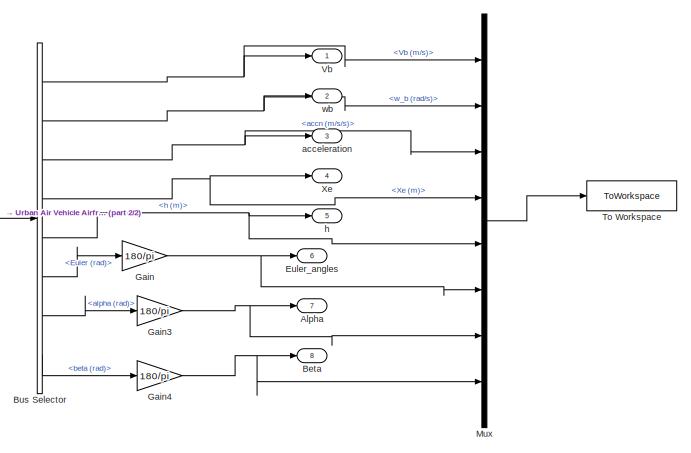
[diagram: root canvas - part 1/2, middle right region]
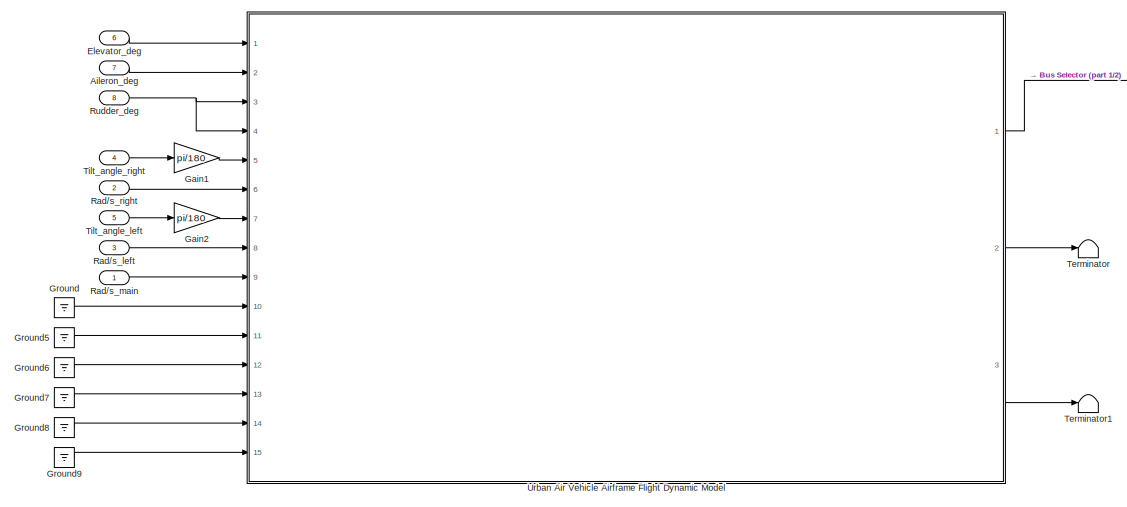
[diagram: root canvas - part 2/2, left side, full height]
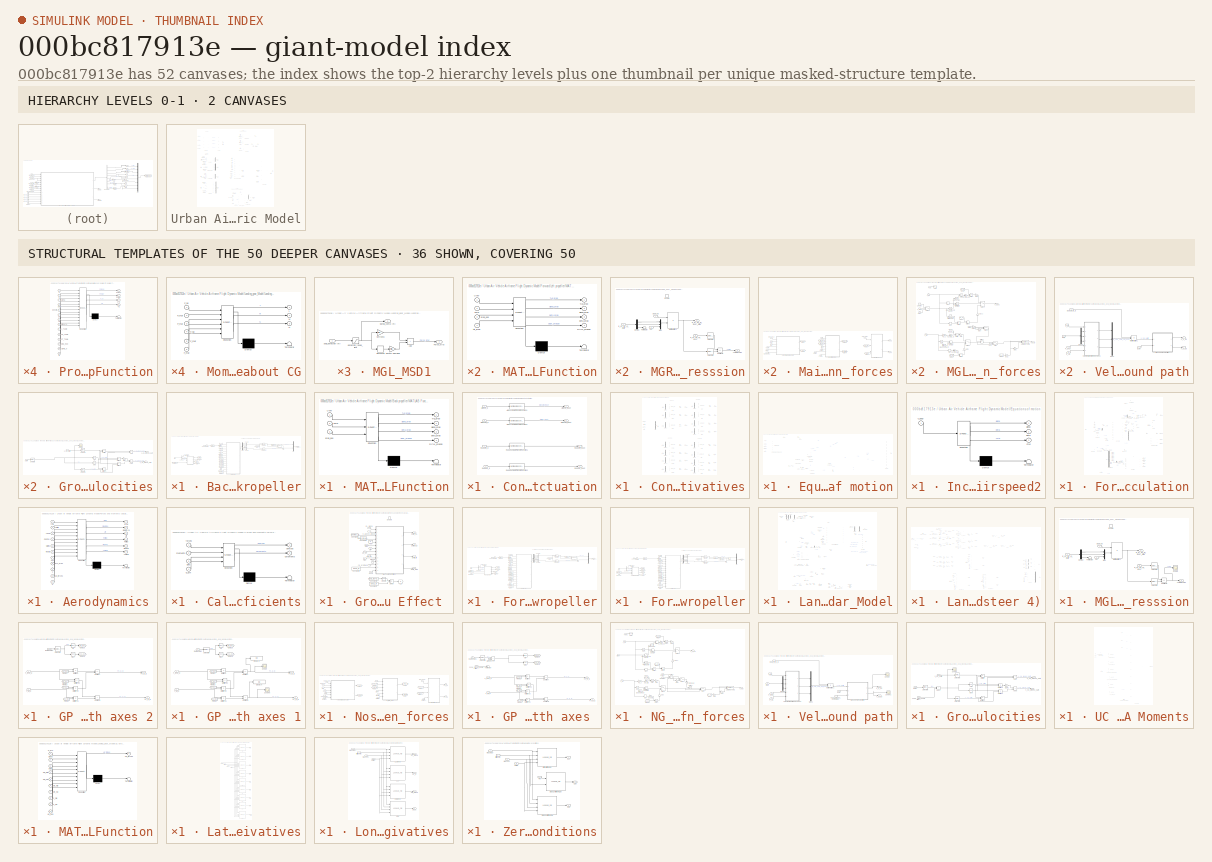
[diagram: thumbnail index - top-2 hierarchy levels (2 canvases) + 36 structural-template representatives of the remaining 50 canvases]
MODEL slx_000bc817913e
KIND model
CONFIG AbsTol = auto
CONFIG EnableMultiTasking = off
CONFIG FixedStep = 0.01
CONFIG MaxStep = auto
CONFIG MinStep = auto
CONFIG RelTol = 1e-3
CONFIG SampleTimeConstraint = Unconstrained
CONFIG SolverName = ode4
CONFIG StartTime = 0.0
CONFIG StopTime = 50
WORKSPACE source: mxarray member
WORKSPACE op_trim2: handle (value not decoded)
BLOCK [Inport] Aileron_deg
  Port = 7
BLOCK [Outport] Alpha
  Port = 7
  VectorParamsAs1DForOutWhenUnconnected = off
BLOCK [Outport] Beta
  Port = 8
  VectorParamsAs1DForOutWhenUnconnected = off
BLOCK [BusSelector] Bus Selector
  OutputSignals = Vb (m/s),w_b (rad/s),accn (m/s/s),Xe (m),h (m),Euler (rad),alpha (rad),beta (rad)
  Ports = [1, 8]
BLOCK [Inport] Elevator_deg
  Port = 6
BLOCK [Outport] Euler_angles
  Port = 6
  VectorParamsAs1DForOutWhenUnconnected = off
BLOCK [Gain] Gain
  Gain = 180/pi
BLOCK [Gain] Gain1
  Gain = pi/180
BLOCK [Gain] Gain2
  Gain = pi/180
BLOCK [Gain] Gain3
  Gain = 180/pi
BLOCK [Gain] Gain4
  Gain = 180/pi
BLOCK [Ground] Ground
BLOCK [Ground] Ground5
BLOCK [Ground] Ground6
BLOCK [Ground] Ground7
BLOCK [Ground] Ground8
BLOCK [Ground] Ground9
BLOCK [Mux] Mux
  DisplayOption = bar
  Inputs = 8
  Ports = [8, 1]
BLOCK [Inport] Rad//s_left
  Port = 3
BLOCK [Inport] Rad//s_main
BLOCK [Inport] Rad//s_right
  Port = 2
BLOCK [Inport] Rudder_deg
  Port = 8
BLOCK [Terminator] Terminator
BLOCK [Terminator] Terminator1
BLOCK [Inport] Tilt_angle_left
  Port = 5
BLOCK [Inport] Tilt_angle_right
  Port = 4
BLOCK [ToWorkspace] To Workspace
  FixptAsFi = on
  MaxDataPoints = inf
  Ports = [1]
  SampleTime = -1
  VariableName = y_output
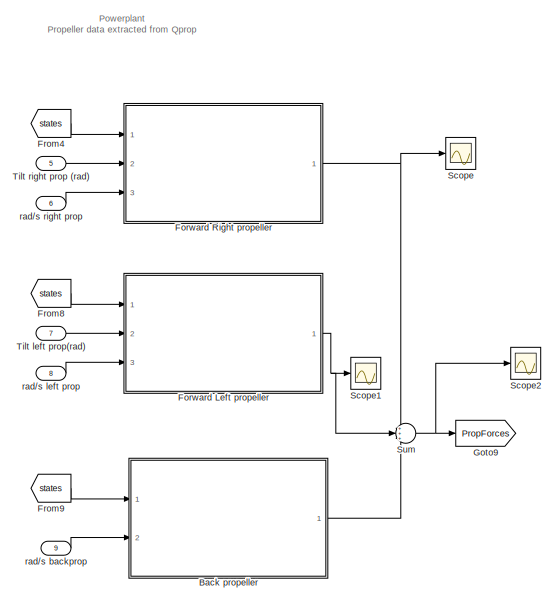
[diagram: Urban Air Vehicle Airframe Flight Dynamic Model - part 1/5, top center region]
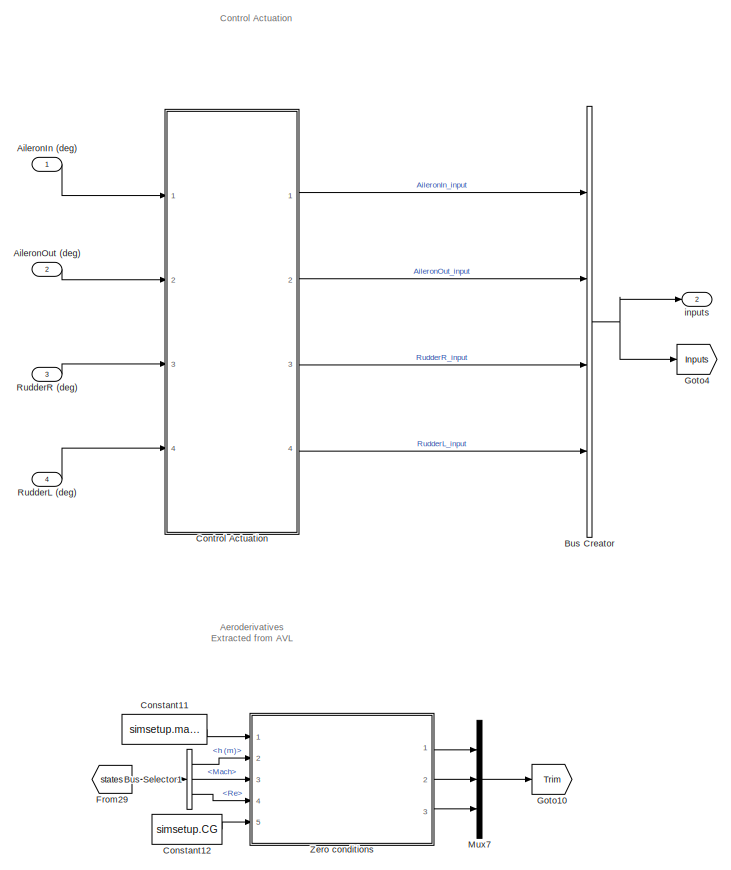
[diagram: Urban Air Vehicle Airframe Flight Dynamic Model - part 2/5, top left region]
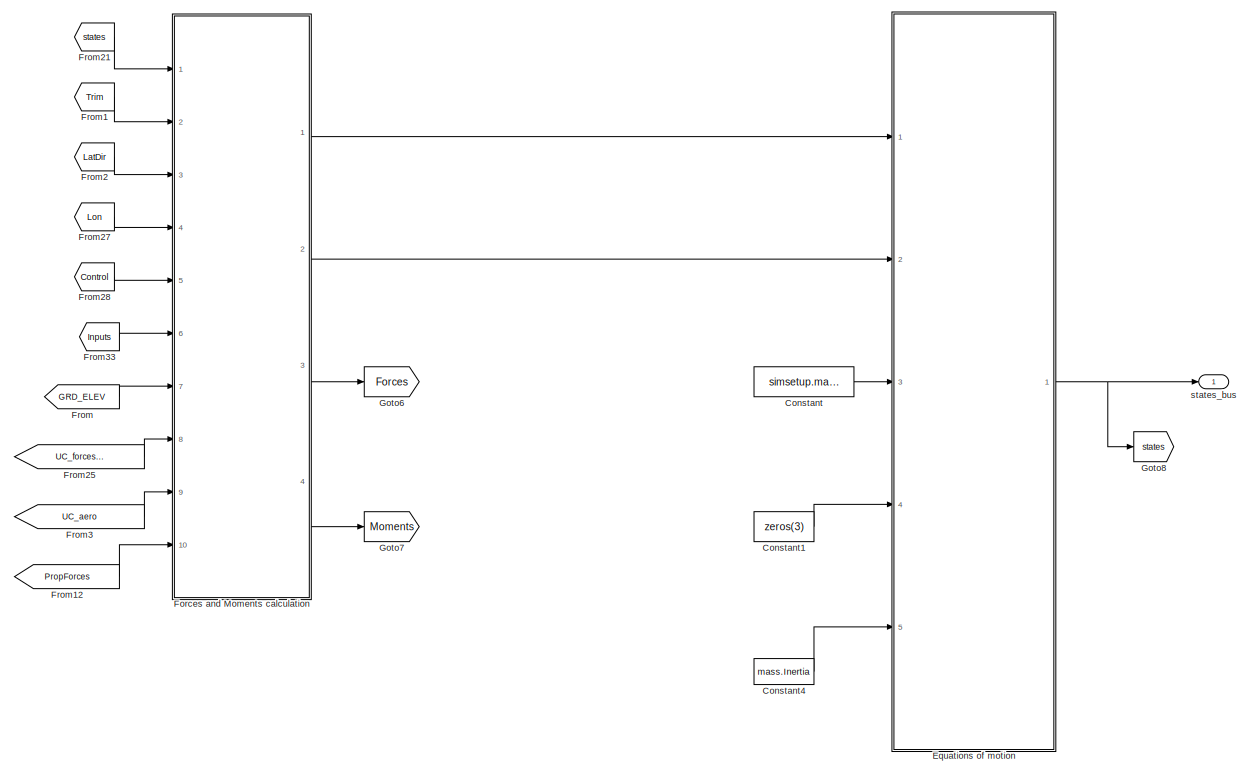
[diagram: Urban Air Vehicle Airframe Flight Dynamic Model - part 3/5, middle right region]
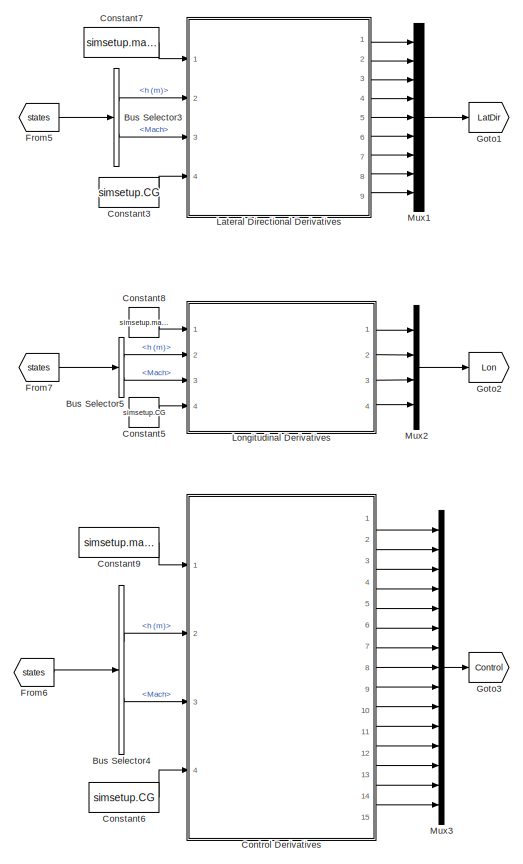
[diagram: Urban Air Vehicle Airframe Flight Dynamic Model - part 4/5, middle left region]
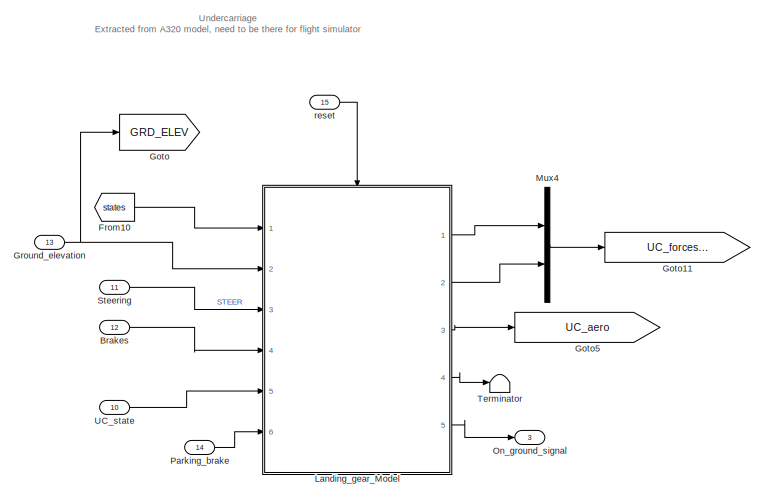
[diagram: Urban Air Vehicle Airframe Flight Dynamic Model - part 5/5, bottom center region]
BLOCK [SubSystem] Urban Air Vehicle Airframe Flight Dynamic Model
  Ports = [15, 3]
  RequestExecContextInheritance = off
BLOCK [Inport] Urban Air Vehicle Airframe Flight Dynamic Model/AileronIn (deg)
BLOCK [Inport] Urban Air Vehicle Airframe Flight Dynamic Model/AileronOut (deg)
  Port = 2
BLOCK [SubSystem] Urban Air Vehicle Airframe Flight Dynamic Model/Back propeller
  Ports = [2, 1]
  RequestExecContextInheritance = off
BLOCK [Reference] Urban Air Vehicle Airframe Flight Dynamic Model/Back propeller/3x3 Cross Product  REF=sharedutil/3x3 Cross Product
  Ports = [2, 1]
  SourceBlock = sharedutil/3x3 Cross Product
  SourceProductBaseCode = AE,PW,DR,MT,UV,VE
  SourceType = CrossProduct
BLOCK [BusCreator] Urban Air Vehicle Airframe Flight Dynamic Model/Back propeller/Bus Creator5
  DisplayOption = bar
  InheritFromInputs = on
  Inputs = 3
  Ports = [3, 1]
BLOCK [BusCreator] Urban Air Vehicle Airframe Flight Dynamic Model/Back propeller/Bus Creator6
  DisplayOption = bar
  InheritFromInputs = on
  Inputs = 3
  Ports = [3, 1]
BLOCK [BusSelector] Urban Air Vehicle Airframe Flight Dynamic Model/Back propeller/Bus Selector
  OutputSignals = rho,Vb (m/s),w_b (rad/s)
  Ports = [1, 3]
BLOCK [Constant] Urban Air Vehicle Airframe Flight Dynamic Model/Back propeller/Coaxial 
  Value = 2
BLOCK [Constant] Urban Air Vehicle Airframe Flight Dynamic Model/Back propeller/Coaxial propeller
  Value = 0
BLOCK [Constant] Urban Air Vehicle Airframe Flight Dynamic Model/Back propeller/Constant
  Value = BackProp.Ap
BLOCK [Constant] Urban Air Vehicle Airframe Flight Dynamic Model/Back propeller/Constant2
  Value = BackProp.Ap
BLOCK [Constant] Urban Air Vehicle Airframe Flight Dynamic Model/Back propeller/Constant3
  Value = BackProp.beta075
BLOCK [Constant] Urban Air Vehicle Airframe Flight Dynamic Model/Back propeller/Constant4
  Value = BackProp.Jdata
BLOCK [Constant] Urban Air Vehicle Airframe Flight Dynamic Model/Back propeller/Constant5
  Value = BackProp.CPdata
BLOCK [Constant] Urban Air Vehicle Airframe Flight Dynamic Model/Back propeller/Constant6
  Value = BackProp.CTdata
BLOCK [Constant] Urban Air Vehicle Airframe Flight Dynamic Model/Back propeller/Constant7
  Value = BackProp.solidity
BLOCK [Demux] Urban Air Vehicle Airframe Flight Dynamic Model/Back propeller/Demux
  Outputs = 6
  Ports = [1, 6]
BLOCK [Constant] Urban Air Vehicle Airframe Flight Dynamic Model/Back propeller/Diameter
  Value = BackProp.D
BLOCK [TransferFcn] Urban Air Vehicle Airframe Flight Dynamic Model/Back propeller/Engine Lag
  ContinuousStateAttributes = 'EngineLag'
  Denominator = [1 0.3]
BLOCK [Outport] Urban Air Vehicle Airframe Flight Dynamic Model/Back propeller/ForcesMoments_prop
BLOCK [Product] Urban Air Vehicle Airframe Flight Dynamic Model/Back propeller/Forces_prop to body axis
  Multiplication = Matrix(*)
  Ports = [2, 1]
BLOCK [From] Urban Air Vehicle Airframe Flight Dynamic Model/Back propeller/From
  GotoTag = TAS_prop
BLOCK [Constant] Urban Air Vehicle Airframe Flight Dynamic Model/Back propeller/From CG
  Value = BackProp.xyz
BLOCK [Constant] Urban Air Vehicle Airframe Flight Dynamic Model/Back propeller/From CG1
  Value = BackProp.xyz
BLOCK [From] Urban Air Vehicle Airframe Flight Dynamic Model/Back propeller/From11
  GotoTag = DCM_prop2b
BLOCK [From] Urban Air Vehicle Airframe Flight Dynamic Model/Back propeller/From12
  GotoTag = rho
BLOCK [From] Urban Air Vehicle Airframe Flight Dynamic Model/Back propeller/From7
  GotoTag = alpha_prop
BLOCK [From] Urban Air Vehicle Airframe Flight Dynamic Model/Back propeller/From8
  GotoTag = beta_prop
BLOCK [Goto] Urban Air Vehicle Airframe Flight Dynamic Model/Back propeller/Goto
  GotoTag = TAS_prop
BLOCK [Goto] Urban Air Vehicle Airframe Flight Dynamic Model/Back propeller/Goto1
  GotoTag = alpha_prop
BLOCK [Goto] Urban Air Vehicle Airframe Flight Dynamic Model/Back propeller/Goto2
  GotoTag = beta_prop
BLOCK [Goto] Urban Air Vehicle Airframe Flight Dynamic Model/Back propeller/Goto3
  GotoTag = DCM_prop2b
BLOCK [Goto] Urban Air Vehicle Airframe Flight Dynamic Model/Back propeller/Goto4
  GotoTag = rho
BLOCK [SubSystem] Urban Air Vehicle Airframe Flight Dynamic Model/Back propeller/MATLAB Function
  ErrorFcn = Stateflow.Translate.translate
  PermitHierarchicalResolution = ExplicitOnly
  Ports = [3, 4]
  RequestExecContextInheritance = off
  SFBlockType = MATLAB Function
  TreatAsAtomicUnit = on
BLOCK [Demux] Urban Air Vehicle Airframe Flight Dynamic Model/Back propeller/MATLAB Function/ Demux 
  Outputs = 1
  Ports = [1, 1]
BLOCK [S-Function] Urban Air Vehicle Airframe Flight Dynamic Model/Back propeller/MATLAB Function/ SFunction 
  EnableBusSupport = off
  FunctionName = sf_sfun
  PortCounts = [3 5]
  Ports = [3, 5]
  SFcnIsStateOwnerBlock = off
  SFunctionDeploymentMode = off
  Tag = Stateflow S-Function 6
BLOCK [Terminator] Urban Air Vehicle Airframe Flight Dynamic Model/Back propeller/MATLAB Function/ Terminator 
BLOCK [Outport] Urban Air Vehicle Airframe Flight Dynamic Model/Back propeller/MATLAB Function/DCM_prop2b
  Port = 4
BLOCK [Inport] Urban Air Vehicle Airframe Flight Dynamic Model/Back propeller/MATLAB Function/PQR
  Port = 2
BLOCK [Outport] Urban Air Vehicle Airframe Flight Dynamic Model/Back propeller/MATLAB Function/TAS_prop
BLOCK [Inport] Urban Air Vehicle Airframe Flight Dynamic Model/Back propeller/MATLAB Function/UVW
BLOCK [Outport] Urban Air Vehicle Airframe Flight Dynamic Model/Back propeller/MATLAB Function/alpha_prop
  Port = 2
BLOCK [Outport] Urban Air Vehicle Airframe Flight Dynamic Model/Back propeller/MATLAB Function/beta_prop
  Port = 3
BLOCK [Inport] Urban Air Vehicle Airframe Flight Dynamic Model/Back propeller/MATLAB Function/prop_pos
  Port = 3
BLOCK [Product] Urban Air Vehicle Airframe Flight Dynamic Model/Back propeller/Moments_prop to body axis
  Multiplication = Matrix(*)
  Ports = [2, 1]
BLOCK [Mux] Urban Air Vehicle Airframe Flight Dynamic Model/Back propeller/Mux
  DisplayOption = bar
  Inputs = 2
  Ports = [2, 1]
BLOCK [SubSystem] Urban Air Vehicle Airframe Flight Dynamic Model/Back propeller/Propeller Function
  ErrorFcn = Stateflow.Translate.translate
  PermitHierarchicalResolution = ExplicitOnly
  Ports = [14, 4]
  RequestExecContextInheritance = off
  SFBlockType = MATLAB Function
  TreatAsAtomicUnit = on
BLOCK [Demux] Urban Air Vehicle Airframe Flight Dynamic Model/Back propeller/Propeller Function/ Demux 
  Outputs = 1
  Ports = [1, 1]
BLOCK [S-Function] Urban Air Vehicle Airframe Flight Dynamic Model/Back propeller/Propeller Function/ SFunction 
  EnableBusSupport = off
  FunctionName = sf_sfun
  PortCounts = [14 5]
  Ports = [14, 5]
  SFcnIsStateOwnerBlock = off
  SFunctionDeploymentMode = off
  Tag = Stateflow S-Function 1
BLOCK [Terminator] Urban Air Vehicle Airframe Flight Dynamic Model/Back propeller/Propeller Function/ Terminator 
BLOCK [Inport] Urban Air Vehicle Airframe Flight Dynamic Model/Back propeller/Propeller Function/Ap
  Port = 7
BLOCK [Inport] Urban Air Vehicle Airframe Flight Dynamic Model/Back propeller/Propeller Function/CP_Table
  Port = 10
BLOCK [Inport] Urban Air Vehicle Airframe Flight Dynamic Model/Back propeller/Propeller Function/CT_Table
  Port = 11
BLOCK [Inport] Urban Air Vehicle Airframe Flight Dynamic Model/Back propeller/Propeller Function/D
  Port = 14
BLOCK [Outport] Urban Air Vehicle Airframe Flight Dynamic Model/Back propeller/Propeller Function/Forces
BLOCK [Inport] Urban Air Vehicle Airframe Flight Dynamic Model/Back propeller/Propeller Function/J_Table
  Port = 9
BLOCK [Outport] Urban Air Vehicle Airframe Flight Dynamic Model/Back propeller/Propeller Function/Power
  Port = 2
BLOCK [Inport] Urban Air Vehicle Airframe Flight Dynamic Model/Back propeller/Propeller Function/Sn
  Port = 6
BLOCK [Outport] Urban Air Vehicle Airframe Flight Dynamic Model/Back propeller/Propeller Function/TC
  Port = 4
BLOCK [Inport] Urban Air Vehicle Airframe Flight Dynamic Model/Back propeller/Propeller Function/V
BLOCK [Inport] Urban Air Vehicle Airframe Flight Dynamic Model/Back propeller/Propeller Function/alpha
  Port = 3
BLOCK [Inport] Urban Air Vehicle Airframe Flight Dynamic Model/Back propeller/Propeller Function/beta
  Port = 4
BLOCK [Inport] Urban Air Vehicle Airframe Flight Dynamic Model/Back propeller/Propeller Function/density
  Port = 5
BLOCK [Outport] Urban Air Vehicle Airframe Flight Dynamic Model/Back propeller/Propeller Function/e_p
  Port = 3
BLOCK [Inport] Urban Air Vehicle Airframe Flight Dynamic Model/Back propeller/Propeller Function/n
  Port = 2
BLOCK [Inport] Urban Air Vehicle Airframe Flight Dynamic Model/Back propeller/Propeller Function/pitch075
  Port = 8
BLOCK [Inport] Urban Air Vehicle Airframe Flight Dynamic Model/Back propeller/Propeller Function/prop_type
  Port = 12
BLOCK [Inport] Urban Air Vehicle Airframe Flight Dynamic Model/Back propeller/Propeller Function/sigma_e
  Port = 13
BLOCK [Inport] Urban Air Vehicle Airframe Flight Dynamic Model/Back propeller/States
BLOCK [Sum] Urban Air Vehicle Airframe Flight Dynamic Model/Back propeller/Sum
  Inputs = ++|
  Ports = [2, 1]
BLOCK [Inport] Urban Air Vehicle Airframe Flight Dynamic Model/Back propeller/rad//s propeller
  Port = 2
BLOCK [Gain] Urban Air Vehicle Airframe Flight Dynamic Model/Back propeller/rad//s to rps
  Gain = 1/(2*pi)
BLOCK [Saturate] Urban Air Vehicle Airframe Flight Dynamic Model/Back propeller/speed limits
  LowerLimit = -1500
  NameLocation = top
  UpperLimit = 2000
BLOCK [Inport] Urban Air Vehicle Airframe Flight Dynamic Model/Brakes
  Port = 12
BLOCK [BusCreator] Urban Air Vehicle Airframe Flight Dynamic Model/Bus Creator
  DisplayOption = bar
  InheritFromInputs = on
  Inputs = 4
  Ports = [4, 1]
BLOCK [BusSelector] Urban Air Vehicle Airframe Flight Dynamic Model/Bus Selector1
  OutputSignals = h (m),Mach,Re
  Ports = [1, 3]
BLOCK [BusSelector] Urban Air Vehicle Airframe Flight Dynamic Model/Bus Selector3
  OutputSignals = h (m),Mach
  Ports = [1, 2]
BLOCK [BusSelector] Urban Air Vehicle Airframe Flight Dynamic Model/Bus Selector4
  OutputSignals = h (m),Mach
  Ports = [1, 2]
BLOCK [BusSelector] Urban Air Vehicle Airframe Flight Dynamic Model/Bus Selector5
  OutputSignals = h (m),Mach
  Ports = [1, 2]
BLOCK [Constant] Urban Air Vehicle Airframe Flight Dynamic Model/Constant
  Value = simsetup.mass
BLOCK [Constant] Urban Air Vehicle Airframe Flight Dynamic Model/Constant1
  Value = zeros(3)
BLOCK [Constant] Urban Air Vehicle Airframe Flight Dynamic Model/Constant11
  Value = simsetup.mass
BLOCK [Constant] Urban Air Vehicle Airframe Flight Dynamic Model/Constant12
  Value = simsetup.CG
BLOCK [Constant] Urban Air Vehicle Airframe Flight Dynamic Model/Constant3
  Value = simsetup.CG
BLOCK [Constant] Urban Air Vehicle Airframe Flight Dynamic Model/Constant4
  Value = mass.Inertia
BLOCK [Constant] Urban Air Vehicle Airframe Flight Dynamic Model/Constant5
  Value = simsetup.CG
BLOCK [Constant] Urban Air Vehicle Airframe Flight Dynamic Model/Constant6
  Value = simsetup.CG
BLOCK [Constant] Urban Air Vehicle Airframe Flight Dynamic Model/Constant7
  Value = simsetup.mass
BLOCK [Constant] Urban Air Vehicle Airframe Flight Dynamic Model/Constant8
  Value = simsetup.mass
BLOCK [Constant] Urban Air Vehicle Airframe Flight Dynamic Model/Constant9
  Value = simsetup.mass
BLOCK [SubSystem] Urban Air Vehicle Airframe Flight Dynamic Model/Control Actuation
  Ports = [4, 4]
  RequestExecContextInheritance = off
BLOCK [Reference] Urban Air Vehicle Airframe Flight Dynamic Model/Control Actuation/Aileron Actuator Transfer Function1  REF=aerolibactuator/Nonlinear Second-Order Actuator
  Ports = [1, 1]
  SourceBlock = aerolibactuator/Nonlinear Second-Order Actuator
  SourceProductBaseCode = AE
  SourceType = NonlinearSecondOrderActuator
BLOCK [Reference] Urban Air Vehicle Airframe Flight Dynamic Model/Control Actuation/Aileron Actuator Transfer Function2  REF=aerolibactuator/Nonlinear Second-Order Actuator
  Ports = [1, 1]
  SourceBlock = aerolibactuator/Nonlinear Second-Order Actuator
  SourceProductBaseCode = AE
  SourceType = NonlinearSecondOrderActuator
BLOCK [Inport] Urban Air Vehicle Airframe Flight Dynamic Model/Control Actuation/AileronIn_d 
BLOCK [Outport] Urban Air Vehicle Airframe Flight Dynamic Model/Control Actuation/AileronIn_input
  VectorParamsAs1DForOutWhenUnconnected = off
BLOCK [Inport] Urban Air Vehicle Airframe Flight Dynamic Model/Control Actuation/AileronOut_d
  Port = 2
BLOCK [Outport] Urban Air Vehicle Airframe Flight Dynamic Model/Control Actuation/AileronOut_input
  Port = 2
  VectorParamsAs1DForOutWhenUnconnected = off
BLOCK [Reference] Urban Air Vehicle Airframe Flight Dynamic Model/Control Actuation/Rudder  Actuator Transfer Function1  REF=aerolibactuator/Nonlinear Second-Order Actuator
  Ports = [1, 1]
  SourceBlock = aerolibactuator/Nonlinear Second-Order Actuator
  SourceProductBaseCode = AE
  SourceType = NonlinearSecondOrderActuator
BLOCK [Reference] Urban Air Vehicle Airframe Flight Dynamic Model/Control Actuation/Rudder  Actuator Transfer Function2  REF=aerolibactuator/Nonlinear Second-Order Actuator
  Ports = [1, 1]
  SourceBlock = aerolibactuator/Nonlinear Second-Order Actuator
  SourceProductBaseCode = AE
  SourceType = NonlinearSecondOrderActuator
BLOCK [Inport] Urban Air Vehicle Airframe Flight Dynamic Model/Control Actuation/RudderL_d 
  Port = 4
BLOCK [Outport] Urban Air Vehicle Airframe Flight Dynamic Model/Control Actuation/RudderL_input
  Port = 4
  VectorParamsAs1DForOutWhenUnconnected = off
BLOCK [Inport] Urban Air Vehicle Airframe Flight Dynamic Model/Control Actuation/RudderR_d
  Port = 3
BLOCK [Outport] Urban Air Vehicle Airframe Flight Dynamic Model/Control Actuation/RudderR_input
  Port = 3
  VectorParamsAs1DForOutWhenUnconnected = off
BLOCK [SubSystem] Urban Air Vehicle Airframe Flight Dynamic Model/Control Derivatives
  Ports = [4, 15]
  RequestExecContextInheritance = off
BLOCK [Inport] Urban Air Vehicle Airframe Flight Dynamic Model/Control Derivatives/Altitude (ft)
  Port = 2
BLOCK [Outport] Urban Air Vehicle Airframe Flight Dynamic Model/Control Derivatives/CD_dRl
  Port = 15
  VectorParamsAs1DForOutWhenUnconnected = off
BLOCK [Outport] Urban Air Vehicle Airframe Flight Dynamic Model/Control Derivatives/CD_dRr
  Port = 11
  VectorParamsAs1DForOutWhenUnconnected = off
BLOCK [Outport] Urban Air Vehicle Airframe Flight Dynamic Model/Control Derivatives/CD_dinA
  Port = 3
  VectorParamsAs1DForOutWhenUnconnected = off
BLOCK [Outport] Urban Air Vehicle Airframe Flight Dynamic Model/Control Derivatives/CD_doutA
  Port = 7
  VectorParamsAs1DForOutWhenUnconnected = off
BLOCK [Lookup_n-D] Urban Air Vehicle Airframe Flight Dynamic Model/Control Derivatives/CDdRl
  BreakpointsForDimension1 = initialise.mass
  BreakpointsForDimension2 = initialise.Altitude
  BreakpointsForDimension3 = initialise.MLUT
  BreakpointsForDimension4 = initialise.CG
  InputPortMap = u0,u1,u2,u3
  InternalRulePriority = Speed
  NumberOfTableDimensions = 4
  Ports = [4, 1]
  RndMeth = Simplest
  Table = initialise.CDdRl
BLOCK [Lookup_n-D] Urban Air Vehicle Airframe Flight Dynamic Model/Control Derivatives/CDdRr
  BreakpointsForDimension1 = initialise.mass
  BreakpointsForDimension2 = initialise.Altitude
  BreakpointsForDimension3 = initialise.MLUT
  BreakpointsForDimension4 = initialise.CG
  InputPortMap = u0,u1,u2,u3
  InternalRulePriority = Speed
  NumberOfTableDimensions = 4
  Ports = [4, 1]
  RndMeth = Simplest
  Table = initialise.CDdRr
BLOCK [Lookup_n-D] Urban Air Vehicle Airframe Flight Dynamic Model/Control Derivatives/CDdinA
  BreakpointsForDimension1 = initialise.mass
  BreakpointsForDimension2 = initialise.Altitude
  BreakpointsForDimension3 = initialise.MLUT
  BreakpointsForDimension4 = initialise.CG
  InputPortMap = u0,u1,u2,u3
  InternalRulePriority = Speed
  NumberOfTableDimensions = 4
  Ports = [4, 1]
  RndMeth = Simplest
  Table = initialise.CDdinA
BLOCK [Lookup_n-D] Urban Air Vehicle Airframe Flight Dynamic Model/Control Derivatives/CDdoutA
  BreakpointsForDimension1 = initialise.mass
  BreakpointsForDimension2 = initialise.Altitude
  BreakpointsForDimension3 = initialise.MLUT
  BreakpointsForDimension4 = initialise.CG
  InputPortMap = u0,u1,u2,u3
  InternalRulePriority = Speed
  NumberOfTableDimensions = 4
  Ports = [4, 1]
  RndMeth = Simplest
  Table = initialise.CDdoutA
BLOCK [Inport] Urban Air Vehicle Airframe Flight Dynamic Model/Control Derivatives/CG (m)
  Port = 4
BLOCK [Outport] Urban Air Vehicle Airframe Flight Dynamic Model/Control Derivatives/CL_dinA
  VectorParamsAs1DForOutWhenUnconnected = off
BLOCK [Lookup_n-D] Urban Air Vehicle Airframe Flight Dynamic Model/Control Derivatives/CLdinA
  BreakpointsForDimension1 = initialise.mass
  BreakpointsForDimension2 = initialise.Altitude
  BreakpointsForDimension3 = initialise.MLUT
  BreakpointsForDimension4 = initialise.CG
  InputPortMap = u0,u1,u2,u3
  InternalRulePriority = Speed
  NumberOfTableDimensions = 4
  Ports = [4, 1]
  RndMeth = Simplest
  Table = initialise.CLdinA
BLOCK [Outport] Urban Air Vehicle Airframe Flight Dynamic Model/Control Derivatives/CY_dRl
  Port = 12
  VectorParamsAs1DForOutWhenUnconnected = off
BLOCK [Outport] Urban Air Vehicle Airframe Flight Dynamic Model/Control Derivatives/CY_dRr
  Port = 8
  VectorParamsAs1DForOutWhenUnconnected = off
BLOCK [Outport] Urban Air Vehicle Airframe Flight Dynamic Model/Control Derivatives/CY_doutA
  Port = 4
  VectorParamsAs1DForOutWhenUnconnected = off
BLOCK [Lookup_n-D] Urban Air Vehicle Airframe Flight Dynamic Model/Control Derivatives/CYdRl
  BreakpointsForDimension1 = initialise.mass
  BreakpointsForDimension2 = initialise.Altitude
  BreakpointsForDimension3 = initialise.MLUT
  BreakpointsForDimension4 = initialise.CG
  InputPortMap = u0,u1,u2,u3
  InternalRulePriority = Speed
  NumberOfTableDimensions = 4
  Ports = [4, 1]
  RndMeth = Simplest
  Table = initialise.CYdRl
BLOCK [Lookup_n-D] Urban Air Vehicle Airframe Flight Dynamic Model/Control Derivatives/CYdRr
  BreakpointsForDimension1 = initialise.mass
  BreakpointsForDimension2 = initialise.Altitude
  BreakpointsForDimension3 = initialise.MLUT
  BreakpointsForDimension4 = initialise.CG
  InputPortMap = u0,u1,u2,u3
  InternalRulePriority = Speed
  NumberOfTableDimensions = 4
  Ports = [4, 1]
  RndMeth = Simplest
  Table = initialise.CYdRr
BLOCK [Lookup_n-D] Urban Air Vehicle Airframe Flight Dynamic Model/Control Derivatives/CYdoutA
  BreakpointsForDimension1 = initialise.mass
  BreakpointsForDimension2 = initialise.Altitude
  BreakpointsForDimension3 = initialise.MLUT
  BreakpointsForDimension4 = initialise.CG
  InputPortMap = u0,u1,u2,u3
  InternalRulePriority = Speed
  NumberOfTableDimensions = 4
  Ports = [4, 1]
  RndMeth = Simplest
  Table = initialise.CYdoutA
BLOCK [Outport] Urban Air Vehicle Airframe Flight Dynamic Model/Control Derivatives/Cl_dRl
  Port = 13
  VectorParamsAs1DForOutWhenUnconnected = off
BLOCK [Outport] Urban Air Vehicle Airframe Flight Dynamic Model/Control Derivatives/Cl_dRr
  Port = 9
  VectorParamsAs1DForOutWhenUnconnected = off
BLOCK [Outport] Urban Air Vehicle Airframe Flight Dynamic Model/Control Derivatives/Cl_doutA
  Port = 5
  VectorParamsAs1DForOutWhenUnconnected = off
BLOCK [Lookup_n-D] Urban Air Vehicle Airframe Flight Dynamic Model/Control Derivatives/CldRl
  BreakpointsForDimension1 = initialise.mass
  BreakpointsForDimension2 = initialise.Altitude
  BreakpointsForDimension3 = initialise.MLUT
  BreakpointsForDimension4 = initialise.CG
  InputPortMap = u0,u1,u2,u3
  InternalRulePriority = Speed
  NumberOfTableDimensions = 4
  Ports = [4, 1]
  RndMeth = Simplest
  Table = initialise.CldRl
BLOCK [Lookup_n-D] Urban Air Vehicle Airframe Flight Dynamic Model/Control Derivatives/CldRr
  BreakpointsForDimension1 = initialise.mass
  BreakpointsForDimension2 = initialise.Altitude
  BreakpointsForDimension3 = initialise.MLUT
  BreakpointsForDimension4 = initialise.CG
  InputPortMap = u0,u1,u2,u3
  InternalRulePriority = Speed
  NumberOfTableDimensions = 4
  Ports = [4, 1]
  RndMeth = Simplest
  Table = initialise.CldRr
BLOCK [Lookup_n-D] Urban Air Vehicle Airframe Flight Dynamic Model/Control Derivatives/CldoutA
  BreakpointsForDimension1 = initialise.mass
  BreakpointsForDimension2 = initialise.Altitude
  BreakpointsForDimension3 = initialise.MLUT
  BreakpointsForDimension4 = initialise.CG
  InputPortMap = u0,u1,u2,u3
  InternalRulePriority = Speed
  NumberOfTableDimensions = 4
  Ports = [4, 1]
  RndMeth = Simplest
  Table = initialise.CldoutA
BLOCK [Outport] Urban Air Vehicle Airframe Flight Dynamic Model/Control Derivatives/Cm_dinA
  Port = 2
  VectorParamsAs1DForOutWhenUnconnected = off
BLOCK [Lookup_n-D] Urban Air Vehicle Airframe Flight Dynamic Model/Control Derivatives/CmdinA
  BreakpointsForDimension1 = initialise.mass
  BreakpointsForDimension2 = initialise.Altitude
  BreakpointsForDimension3 = initialise.MLUT
  BreakpointsForDimension4 = initialise.CG
  InputPortMap = u0,u1,u2,u3
  InternalRulePriority = Speed
  NumberOfTableDimensions = 4
  Ports = [4, 1]
  RndMeth = Simplest
  Table = initialise.CmdinA
BLOCK [Outport] Urban Air Vehicle Airframe Flight Dynamic Model/Control Derivatives/Cn_dRl
  Port = 14
  VectorParamsAs1DForOutWhenUnconnected = off
BLOCK [Outport] Urban Air Vehicle Airframe Flight Dynamic Model/Control Derivatives/Cn_dRr
  Port = 10
  VectorParamsAs1DForOutWhenUnconnected = off
BLOCK [Outport] Urban Air Vehicle Airframe Flight Dynamic Model/Control Derivatives/Cn_doutA
  Port = 6
  VectorParamsAs1DForOutWhenUnconnected = off
BLOCK [Lookup_n-D] Urban Air Vehicle Airframe Flight Dynamic Model/Control Derivatives/CndRl
  BreakpointsForDimension1 = initialise.mass
  BreakpointsForDimension2 = initialise.Altitude
  BreakpointsForDimension3 = initialise.MLUT
  BreakpointsForDimension4 = initialise.CG
  InputPortMap = u0,u1,u2,u3
  InternalRulePriority = Speed
  NumberOfTableDimensions = 4
  Ports = [4, 1]
  RndMeth = Simplest
  Table = initialise.CndRl
BLOCK [Lookup_n-D] Urban Air Vehicle Airframe Flight Dynamic Model/Control Derivatives/CndRr
  BreakpointsForDimension1 = initialise.mass
  BreakpointsForDimension2 = initialise.Altitude
  BreakpointsForDimension3 = initialise.MLUT
  BreakpointsForDimension4 = initialise.CG
  InputPortMap = u0,u1,u2,u3
  InternalRulePriority = Speed
  NumberOfTableDimensions = 4
  Ports = [4, 1]
  RndMeth = Simplest
  Table = initialise.CndRr
BLOCK [Lookup_n-D] Urban Air Vehicle Airframe Flight Dynamic Model/Control Derivatives/CndoutA
  BreakpointsForDimension1 = initialise.mass
  BreakpointsForDimension2 = initialise.Altitude
  BreakpointsForDimension3 = initialise.MLUT
  BreakpointsForDimension4 = initialise.CG
  InputPortMap = u0,u1,u2,u3
  InternalRulePriority = Speed
  NumberOfTableDimensions = 4
  Ports = [4, 1]
  RndMeth = Simplest
  Table = initialise.CndoutA
BLOCK [Demux] Urban Air Vehicle Airframe Flight Dynamic Model/Control Derivatives/Demux1
  Ports = [1, 4]
BLOCK [Demux] Urban Air Vehicle Airframe Flight Dynamic Model/Control Derivatives/Demux10
  Ports = [1, 4]
BLOCK [Demux] Urban Air Vehicle Airframe Flight Dynamic Model/Control Derivatives/Demux11
  Ports = [1, 4]
BLOCK [Demux] Urban Air Vehicle Airframe Flight Dynamic Model/Control Derivatives/Demux12
  Ports = [1, 4]
BLOCK [Demux] Urban Air Vehicle Airframe Flight Dynamic Model/Control Derivatives/Demux13
  Ports = [1, 4]
BLOCK [Demux] Urban Air Vehicle Airframe Flight Dynamic Model/Control Derivatives/Demux14
  Ports = [1, 4]
BLOCK [Demux] Urban Air Vehicle Airframe Flight Dynamic Model/Control Derivatives/Demux15
  Ports = [1, 4]
BLOCK [Demux] Urban Air Vehicle Airframe Flight Dynamic Model/Control Derivatives/Demux16
  Ports = [1, 4]
BLOCK [Demux] Urban Air Vehicle Airframe Flight Dynamic Model/Control Derivatives/Demux2
  Ports = [1, 4]
BLOCK [Demux] Urban Air Vehicle Airframe Flight Dynamic Model/Control Derivatives/Demux3
  Ports = [1, 4]
BLOCK [Demux] Urban Air Vehicle Airframe Flight Dynamic Model/Control Derivatives/Demux4
  Ports = [1, 4]
BLOCK [Demux] Urban Air Vehicle Airframe Flight Dynamic Model/Control Derivatives/Demux6
  Ports = [1, 4]
BLOCK [Demux] Urban Air Vehicle Airframe Flight Dynamic Model/Control Derivatives/Demux7
  Ports = [1, 4]
BLOCK [Demux] Urban Air Vehicle Airframe Flight Dynamic Model/Control Derivatives/Demux8
  Ports = [1, 4]
BLOCK [Demux] Urban Air Vehicle Airframe Flight Dynamic Model/Control Derivatives/Demux9
  Ports = [1, 4]
BLOCK [From] Urban Air Vehicle Airframe Flight Dynamic Model/Control Derivatives/From1
BLOCK [From] Urban Air Vehicle Airframe Flight Dynamic Model/Control Derivatives/From10
BLOCK [From] Urban Air Vehicle Airframe Flight Dynamic Model/Control Derivatives/From11
BLOCK [From] Urban Air Vehicle Airframe Flight Dynamic Model/Control Derivatives/From12
BLOCK [From] Urban Air Vehicle Airframe Flight Dynamic Model/Control Derivatives/From13
BLOCK [From] Urban Air Vehicle Airframe Flight Dynamic Model/Control Derivatives/From14
BLOCK [From] Urban Air Vehicle Airframe Flight Dynamic Model/Control Derivatives/From15
BLOCK [From] Urban Air Vehicle Airframe Flight Dynamic Model/Control Derivatives/From16
BLOCK [From] Urban Air Vehicle Airframe Flight Dynamic Model/Control Derivatives/From2
BLOCK [From] Urban Air Vehicle Airframe Flight Dynamic Model/Control Derivatives/From3
BLOCK [From] Urban Air Vehicle Airframe Flight Dynamic Model/Control Derivatives/From4
BLOCK [From] Urban Air Vehicle Airframe Flight Dynamic Model/Control Derivatives/From6
BLOCK [From] Urban Air Vehicle Airframe Flight Dynamic Model/Control Derivatives/From7
BLOCK [From] Urban Air Vehicle Airframe Flight Dynamic Model/Control Derivatives/From8
BLOCK [From] Urban Air Vehicle Airframe Flight Dynamic Model/Control Derivatives/From9
BLOCK [Gain] Urban Air Vehicle Airframe Flight Dynamic Model/Control Derivatives/Gain1
  Gain = 180/pi
BLOCK [Gain] Urban Air Vehicle Airframe Flight Dynamic Model/Control Derivatives/Gain10
  Gain = 180/pi
BLOCK [Gain] Urban Air Vehicle Airframe Flight Dynamic Model/Control Derivatives/Gain11
  Gain = 180/pi
BLOCK [Gain] Urban Air Vehicle Airframe Flight Dynamic Model/Control Derivatives/Gain12
  Gain = 180/pi
BLOCK [Gain] Urban Air Vehicle Airframe Flight Dynamic Model/Control Derivatives/Gain13
  Gain = 180/pi
BLOCK [Gain] Urban Air Vehicle Airframe Flight Dynamic Model/Control Derivatives/Gain14
  Gain = 180/pi
BLOCK [Gain] Urban Air Vehicle Airframe Flight Dynamic Model/Control Derivatives/Gain15
  Gain = 180/pi
BLOCK [Gain] Urban Air Vehicle Airframe Flight Dynamic Model/Control Derivatives/Gain16
  Gain = 180/pi
BLOCK [Gain] Urban Air Vehicle Airframe Flight Dynamic Model/Control Derivatives/Gain2
  Gain = 180/pi
BLOCK [Gain] Urban Air Vehicle Airframe Flight Dynamic Model/Control Derivatives/Gain3
  Gain = 180/pi
BLOCK [Gain] Urban Air Vehicle Airframe Flight Dynamic Model/Control Derivatives/Gain4
  Gain = 180/pi
BLOCK [Gain] Urban Air Vehicle Airframe Flight Dynamic Model/Control Derivatives/Gain5
  Gain = 180/pi
BLOCK [Gain] Urban Air Vehicle Airframe Flight Dynamic Model/Control Derivatives/Gain6
  Gain = 180/pi
BLOCK [Gain] Urban Air Vehicle Airframe Flight Dynamic Model/Control Derivatives/Gain8
  Gain = 180/pi
BLOCK [Gain] Urban Air Vehicle Airframe Flight Dynamic Model/Control Derivatives/Gain9
  Gain = 180/pi
BLOCK [Goto] Urban Air Vehicle Airframe Flight Dynamic Model/Control Derivatives/Goto
BLOCK [Inport] Urban Air Vehicle Airframe Flight Dynamic Model/Control Derivatives/Mach no.
  Port = 3
BLOCK [Inport] Urban Air Vehicle Airframe Flight Dynamic Model/Control Derivatives/Mass (kg)
BLOCK [Mux] Urban Air Vehicle Airframe Flight Dynamic Model/Control Derivatives/Mux
  DisplayOption = bar
  Ports = [4, 1]
BLOCK [SubSystem] Urban Air Vehicle Airframe Flight Dynamic Model/Equations of motion
  Ports = [5, 1]
  RequestExecContextInheritance = off
BLOCK [BusCreator] Urban Air Vehicle Airframe Flight Dynamic Model/Equations of motion/Bus Creator
  DisplayOption = bar
  InheritFromInputs = on
  Inputs = 18
  Ports = [18, 1]
BLOCK [Constant] Urban Air Vehicle Airframe Flight Dynamic Model/Equations of motion/Constant
  Value = 0
BLOCK [Reference] Urban Air Vehicle Airframe Flight Dynamic Model/Equations of motion/Custom Variable Mass 6DOF (Euler Angles)  REF=shared6dof/6DOF (Euler Angles)
  Ports = [5, 8]
  SourceBlock = shared6dof/6DOF (Euler Angles)
  SourceProductBaseCode = AE,PW,DR,MT,UV,VE
  SourceType = 6DOF EoM (Body Axis)
BLOCK [Product] Urban Air Vehicle Airframe Flight Dynamic Model/Equations of motion/Divide
  Inputs = **/
  Ports = [3, 1]
BLOCK [Reference] Urban Air Vehicle Airframe Flight Dynamic Model/Equations of motion/Dynamic Pressure  REF=aerolibasang/Dynamic Pressure
  Ports = [2, 1]
  SourceBlock = aerolibasang/Dynamic Pressure
  SourceProductBaseCode = AE
  SourceType = Dynamic Pressure
BLOCK [Lookup_n-D] Urban Air Vehicle Airframe Flight Dynamic Model/Equations of motion/Dynamic Viscosity
  BreakpointsForDimension1 = initialise.alt
  BreakpointsForDimension2 = initialise.Altitude
  BreakpointsForDimension3 = initialise.MLUT
  BreakpointsForDimension4 = initialise.CG
  InputPortMap = u0
  InternalRulePriority = Speed
  NumberOfTableDimensions = 1
  Ports = [1, 1]
  RndMeth = Simplest
  Table = initialise.dyn_visc
BLOCK [Reference] Urban Air Vehicle Airframe Flight Dynamic Model/Equations of motion/Flat Earth to LLA1  REF=aerolibtransform2/Flat Earth to LLA
  Ports = [2, 2]
  SourceBlock = aerolibtransform2/Flat Earth to LLA
  SourceProductBaseCode = AE
  SourceType = Flat Earth to LLA
BLOCK [Inport] Urban Air Vehicle Airframe Flight Dynamic Model/Equations of motion/Fxyz (N)
BLOCK [Gain] Urban Air Vehicle Airframe Flight Dynamic Model/Equations of motion/Gain
  Gain = -1
BLOCK [Inport] Urban Air Vehicle Airframe Flight Dynamic Model/Equations of motion/I (kgm2)
  Port = 5
BLOCK [Reference] Urban Air Vehicle Airframe Flight Dynamic Model/Equations of motion/ISA Atmosphere Model  REF=aerolibatmos2/ISA Atmosphere Model
  Ports = [1, 4]
  SourceBlock = aerolibatmos2/ISA Atmosphere Model
  SourceProductBaseCode = AE
  SourceType = International Standard Atmosphere Model
BLOCK [SubSystem] Urban Air Vehicle Airframe Flight Dynamic Model/Equations of motion/Incidence, Sideslip, & Airspeed2
  ErrorFcn = Stateflow.Translate.translate
  PermitHierarchicalResolution = ExplicitOnly
  Ports = [1, 3]
  RequestExecContextInheritance = off
  SFBlockType = MATLAB Function
  TreatAsAtomicUnit = on
BLOCK [Demux] Urban Air Vehicle Airframe Flight Dynamic Model/Equations of motion/Incidence, Sideslip, & Airspeed2/ Demux 
  Outputs = 1
  Ports = [1, 1]
BLOCK [S-Function] Urban Air Vehicle Airframe Flight Dynamic Model/Equations of motion/Incidence, Sideslip, & Airspeed2/ SFunction 
  EnableBusSupport = off
  FunctionName = sf_sfun
  PortCounts = [1 4]
  Ports = [1, 4]
  SFcnIsStateOwnerBlock = off
  SFunctionDeploymentMode = off
  Tag = Stateflow S-Function 7
BLOCK [Terminator] Urban Air Vehicle Airframe Flight Dynamic Model/Equations of motion/Incidence, Sideslip, & Airspeed2/ Terminator 
BLOCK [Outport] Urban Air Vehicle Airframe Flight Dynamic Model/Equations of motion/Incidence, Sideslip, & Airspeed2/VTAS
  Port = 3
  VectorParamsAs1DForOutWhenUnconnected = off
BLOCK [Inport] Urban Air Vehicle Airframe Flight Dynamic Model/Equations of motion/Incidence, Sideslip, & Airspeed2/V_body
BLOCK [Outport] Urban Air Vehicle Airframe Flight Dynamic Model/Equations of motion/Incidence, Sideslip, & Airspeed2/alpha
  VectorParamsAs1DForOutWhenUnconnected = off
BLOCK [Outport] Urban Air Vehicle Airframe Flight Dynamic Model/Equations of motion/Incidence, Sideslip, & Airspeed2/beta
  Port = 2
  VectorParamsAs1DForOutWhenUnconnected = off
BLOCK [Reference] Urban Air Vehicle Airframe Flight Dynamic Model/Equations of motion/Mach Number  REF=aerolibasang/Mach Number
  Ports = [2, 1]
  SourceBlock = aerolibasang/Mach Number
  SourceProductBaseCode = AE
  SourceType = Mach Number
BLOCK [Inport] Urban Air Vehicle Airframe Flight Dynamic Model/Equations of motion/Mxyz (Nm)
  Port = 2
BLOCK [Outport] Urban Air Vehicle Airframe Flight Dynamic Model/Equations of motion/Out1
  VectorParamsAs1DForOutWhenUnconnected = off
BLOCK [Scope] Urban Air Vehicle Airframe Flight Dynamic Model/Equations of motion/Scope
  Floating = off
  NumInputPorts = 1
  Ports = [1]
  ScopeSpecificationString = Simulink.scopes.TimeScopeBlockCfg('CurrentConfiguration', extmgr.ConfigurationSet(extmgr.Configuration('Core','General UI',true),extmgr.Configuration('Core','Source UI',true),extmgr.Configuration('Sources','WiredSimulink',true,'DataLoggingVariableName','ScopeData1'),extmgr.Configuration('Visuals','Time Domain',true,'SerializedDisplays',{struct('MinYLimReal','-1613.98482','MaxYLimReal','4525.86336'...<+1443ch>
BLOCK [Scope] Urban Air Vehicle Airframe Flight Dynamic Model/Equations of motion/Scope1
  Floating = off
  NumInputPorts = 1
  Ports = [1]
  ScopeSpecificationString = Simulink.scopes.TimeScopeBlockCfg('CurrentConfiguration', extmgr.ConfigurationSet(extmgr.Configuration('Core','General UI',true),extmgr.Configuration('Core','Source UI',true),extmgr.Configuration('Sources','WiredSimulink',true,'DataLoggingVariableName','ScopeData2'),extmgr.Configuration('Visuals','Time Domain',true,'SerializedDisplays',{struct('MinYLimReal','-0.00974','MaxYLimReal','0.08769','YLab...<+1404ch>
BLOCK [Scope] Urban Air Vehicle Airframe Flight Dynamic Model/Equations of motion/Scope2
  Floating = off
  NumInputPorts = 1
  Ports = [1]
  ScopeSpecificationString = Simulink.scopes.TimeScopeBlockCfg('CurrentConfiguration', extmgr.ConfigurationSet(extmgr.Configuration('Core','General UI',true),extmgr.Configuration('Core','Source UI',true),extmgr.Configuration('Sources','WiredSimulink',true,'DataLoggingVariableName','ScopeData3'),extmgr.Configuration('Visuals','Time Domain',true,'SerializedDisplays',{struct('MinYLimReal','-9.7797','MaxYLimReal','88.01727','YLab...<+1430ch>
BLOCK [Selector] Urban Air Vehicle Airframe Flight Dynamic Model/Equations of motion/Selector
  IndexOptions = Index vector (dialog)
  Indices = 3
  InputPortWidth = 3
  OutputSizes = 1
  Ports = [1, 1]
BLOCK [Terminator] Urban Air Vehicle Airframe Flight Dynamic Model/Equations of motion/Terminator1
BLOCK [Terminator] Urban Air Vehicle Airframe Flight Dynamic Model/Equations of motion/Terminator2
BLOCK [Inport] Urban Air Vehicle Airframe Flight Dynamic Model/Equations of motion/dI//dt (kgm2//s)
  Port = 4
BLOCK [Inport] Urban Air Vehicle Airframe Flight Dynamic Model/Equations of motion/mass (kg)
  Port = 3
BLOCK [SubSystem] Urban Air Vehicle Airframe Flight Dynamic Model/Forces and Moments calculation
  Ports = [10, 4]
  RequestExecContextInheritance = off
BLOCK [SubSystem] Urban Air Vehicle Airframe Flight Dynamic Model/Forces and Moments calculation/Aerodynamics
  ErrorFcn = Stateflow.Translate.translate
  PermitHierarchicalResolution = ExplicitOnly
  Ports = [11, 6]
  RequestExecContextInheritance = off
  SFBlockType = MATLAB Function
  TreatAsAtomicUnit = on
BLOCK [Demux] Urban Air Vehicle Airframe Flight Dynamic Model/Forces and Moments calculation/Aerodynamics/ Demux 
  Outputs = 1
  Ports = [1, 1]
BLOCK [S-Function] Urban Air Vehicle Airframe Flight Dynamic Model/Forces and Moments calculation/Aerodynamics/ SFunction 
  EnableBusSupport = off
  FunctionName = sf_sfun
  PortCounts = [11 7]
  Ports = [11, 7]
  SFcnIsStateOwnerBlock = off
  SFunctionDeploymentMode = off
  Tag = Stateflow S-Function 27
BLOCK [Terminator] Urban Air Vehicle Airframe Flight Dynamic Model/Forces and Moments calculation/Aerodynamics/ Terminator 
BLOCK [Inport] Urban Air Vehicle Airframe Flight Dynamic Model/Forces and Moments calculation/Aerodynamics/Control
  Port = 4
BLOCK [Outport] Urban Air Vehicle Airframe Flight Dynamic Model/Forces and Moments calculation/Aerodynamics/Drag
  VectorParamsAs1DForOutWhenUnconnected = off
BLOCK [Inport] Urban Air Vehicle Airframe Flight Dynamic Model/Forces and Moments calculation/Aerodynamics/K
  Port = 11
BLOCK [Inport] Urban Air Vehicle Airframe Flight Dynamic Model/Forces and Moments calculation/Aerodynamics/LatDir
  Port = 2
BLOCK [Outport] Urban Air Vehicle Airframe Flight Dynamic Model/Forces and Moments calculation/Aerodynamics/Lift
  Port = 3
  VectorParamsAs1DForOutWhenUnconnected = off
BLOCK [Inport] Urban Air Vehicle Airframe Flight Dynamic Model/Forces and Moments calculation/Aerodynamics/Long
  Port = 3
BLOCK [Outport] Urban Air Vehicle Airframe Flight Dynamic Model/Forces and Moments calculation/Aerodynamics/Pitching
  Port = 5
  VectorParamsAs1DForOutWhenUnconnected = off
BLOCK [Outport] Urban Air Vehicle Airframe Flight Dynamic Model/Forces and Moments calculation/Aerodynamics/Rolling
  Port = 4
  VectorParamsAs1DForOutWhenUnconnected = off
BLOCK [Outport] Urban Air Vehicle Airframe Flight Dynamic Model/Forces and Moments calculation/Aerodynamics/Sideforce
  Port = 2
  VectorParamsAs1DForOutWhenUnconnected = off
BLOCK [Inport] Urban Air Vehicle Airframe Flight Dynamic Model/Forces and Moments calculation/Aerodynamics/Trim
BLOCK [Inport] Urban Air Vehicle Airframe Flight Dynamic Model/Forces and Moments calculation/Aerodynamics/UC_forces
  Port = 10
BLOCK [Inport] Urban Air Vehicle Airframe Flight Dynamic Model/Forces and Moments calculation/Aerodynamics/V
  Port = 9
BLOCK [Outport] Urban Air Vehicle Airframe Flight Dynamic Model/Forces and Moments calculation/Aerodynamics/Yawing
  Port = 6
  VectorParamsAs1DForOutWhenUnconnected = off
BLOCK [Inport] Urban Air Vehicle Airframe Flight Dynamic Model/Forces and Moments calculation/Aerodynamics/dyn_pres
  Port = 8
BLOCK [Inport] Urban Air Vehicle Airframe Flight Dynamic Model/Forces and Moments calculation/Aerodynamics/geo
  Port = 7
BLOCK [Inport] Urban Air Vehicle Airframe Flight Dynamic Model/Forces and Moments calculation/Aerodynamics/inputs
  Port = 6
BLOCK [Inport] Urban Air Vehicle Airframe Flight Dynamic Model/Forces and Moments calculation/Aerodynamics/states
  Port = 5
BLOCK [BusSelector] Urban Air Vehicle Airframe Flight Dynamic Model/Forces and Moments calculation/Bus Selector
  OutputSignals = alpha (rad),beta (rad),w_b (rad/s)
  Ports = [1, 3]
BLOCK [BusSelector] Urban Air Vehicle Airframe Flight Dynamic Model/Forces and Moments calculation/Bus Selector1
  OutputSignals = q_dyn (Pa),VTAS (m/s)
  Ports = [1, 2]
BLOCK [BusSelector] Urban Air Vehicle Airframe Flight Dynamic Model/Forces and Moments calculation/Bus Selector2
  OutputSignals = DCMbe,alpha (rad),beta (rad)
  Ports = [1, 3]
BLOCK [BusSelector] Urban Air Vehicle Airframe Flight Dynamic Model/Forces and Moments calculation/Bus Selector4
  OutputSignals = h (m),q_dyn (Pa),VTAS (m/s)
  Ports = [1, 3]
BLOCK [SubSystem] Urban Air Vehicle Airframe Flight Dynamic Model/Forces and Moments calculation/Calculate aero coefficients
  ErrorFcn = Stateflow.Translate.translate
  PermitHierarchicalResolution = ExplicitOnly
  Ports = [4, 2]
  RequestExecContextInheritance = off
  SFBlockType = MATLAB Function
  TreatAsAtomicUnit = on
BLOCK [Demux] Urban Air Vehicle Airframe Flight Dynamic Model/Forces and Moments calculation/Calculate aero coefficients/ Demux 
  Outputs = 1
  Ports = [1, 1]
BLOCK [S-Function] Urban Air Vehicle Airframe Flight Dynamic Model/Forces and Moments calculation/Calculate aero coefficients/ SFunction 
  EnableBusSupport = off
  FunctionName = sf_sfun
  PortCounts = [4 3]
  Ports = [4, 3]
  SFcnIsStateOwnerBlock = off
  SFunctionDeploymentMode = off
  Tag = Stateflow S-Function 16
BLOCK [Terminator] Urban Air Vehicle Airframe Flight Dynamic Model/Forces and Moments calculation/Calculate aero coefficients/ Terminator 
BLOCK [Outport] Urban Air Vehicle Airframe Flight Dynamic Model/Forces and Moments calculation/Calculate aero coefficients/CForces
  VectorParamsAs1DForOutWhenUnconnected = off
BLOCK [Outport] Urban Air Vehicle Airframe Flight Dynamic Model/Forces and Moments calculation/Calculate aero coefficients/CMoments
  Port = 2
  VectorParamsAs1DForOutWhenUnconnected = off
BLOCK [Inport] Urban Air Vehicle Airframe Flight Dynamic Model/Forces and Moments calculation/Calculate aero coefficients/forces
BLOCK [Inport] Urban Air Vehicle Airframe Flight Dynamic Model/Forces and Moments calculation/Calculate aero coefficients/geo
  Port = 3
BLOCK [Inport] Urban Air Vehicle Airframe Flight Dynamic Model/Forces and Moments calculation/Calculate aero coefficients/moments
  Port = 2
BLOCK [Inport] Urban Air Vehicle Airframe Flight Dynamic Model/Forces and Moments calculation/Calculate aero coefficients/q_dyn
  Port = 4
BLOCK [Outport] Urban Air Vehicle Airframe Flight Dynamic Model/Forces and Moments calculation/Coeff Forces
  Port = 3
  VectorParamsAs1DForOutWhenUnconnected = off
BLOCK [Outport] Urban Air Vehicle Airframe Flight Dynamic Model/Forces and Moments calculation/Coeff Moments
  Port = 4
  VectorParamsAs1DForOutWhenUnconnected = off
BLOCK [Constant] Urban Air Vehicle Airframe Flight Dynamic Model/Forces and Moments calculation/Constant
  Value = simsetup.mass
BLOCK [Constant] Urban Air Vehicle Airframe Flight Dynamic Model/Forces and Moments calculation/Constant1
  Value = geo.K
BLOCK [Constant] Urban Air Vehicle Airframe Flight Dynamic Model/Forces and Moments calculation/Constant2
  Value = [0 0 simsetup.g]
BLOCK [Constant] Urban Air Vehicle Airframe Flight Dynamic Model/Forces and Moments calculation/Constant3
  Value = 0
BLOCK [Constant] Urban Air Vehicle Airframe Flight Dynamic Model/Forces and Moments calculation/Constant4
  Value = [geo.S_w geo.mac_w (geo.b_w+geo.b_f)*2]
BLOCK [Inport] Urban Air Vehicle Airframe Flight Dynamic Model/Forces and Moments calculation/Control
  Port = 5
BLOCK [Demux] Urban Air Vehicle Airframe Flight Dynamic Model/Forces and Moments calculation/Demux
  Outputs = 13
  Ports = [1, 13]
BLOCK [Demux] Urban Air Vehicle Airframe Flight Dynamic Model/Forces and Moments calculation/Demux2
  Ports = [1, 4]
BLOCK [Reference] Urban Air Vehicle Airframe Flight Dynamic Model/Forces and Moments calculation/Direction Cosine Matrix Body to Wind  REF=aerolibtransform2/Direction Cosine Matrix
Body to Wind
  Ports = [1, 1]
  SourceBlock = aerolibtransform2/Direction Cosine Matrix\nBody to Wind
  SourceProductBaseCode = AE
  SourceType = DCM Body to Wind
BLOCK [Outport] Urban Air Vehicle Airframe Flight Dynamic Model/Forces and Moments calculation/Forces (N)
  VectorParamsAs1DForOutWhenUnconnected = off
BLOCK [From] Urban Air Vehicle Airframe Flight Dynamic Model/Forces and Moments calculation/From
BLOCK [From] Urban Air Vehicle Airframe Flight Dynamic Model/Forces and Moments calculation/From1
  GotoTag = DRAG
BLOCK [From] Urban Air Vehicle Airframe Flight Dynamic Model/Forces and Moments calculation/From3
  GotoTag = D
BLOCK [From] Urban Air Vehicle Airframe Flight Dynamic Model/Forces and Moments calculation/From4
  GotoTag = LIFT
BLOCK [From] Urban Air Vehicle Airframe Flight Dynamic Model/Forces and Moments calculation/From5
  GotoTag = Delta_Drag
BLOCK [From] Urban Air Vehicle Airframe Flight Dynamic Model/Forces and Moments calculation/From6
  GotoTag = Delta_Lift
BLOCK [Gain] Urban Air Vehicle Airframe Flight Dynamic Model/Forces and Moments calculation/Gain
  Gain = -1
BLOCK [Gain] Urban Air Vehicle Airframe Flight Dynamic Model/Forces and Moments calculation/Gain1
  Gain = -1
BLOCK [Goto] Urban Air Vehicle Airframe Flight Dynamic Model/Forces and Moments calculation/Goto
BLOCK [Goto] Urban Air Vehicle Airframe Flight Dynamic Model/Forces and Moments calculation/Goto1
  GotoTag = LIFT
BLOCK [Goto] Urban Air Vehicle Airframe Flight Dynamic Model/Forces and Moments calculation/Goto2
  GotoTag = D
BLOCK [Goto] Urban Air Vehicle Airframe Flight Dynamic Model/Forces and Moments calculation/Goto3
  GotoTag = DRAG
BLOCK [Goto] Urban Air Vehicle Airframe Flight Dynamic Model/Forces and Moments calculation/Goto4
  GotoTag = Delta_Lift
BLOCK [Goto] Urban Air Vehicle Airframe Flight Dynamic Model/Forces and Moments calculation/Goto5
  GotoTag = Delta_Drag
BLOCK [SubSystem] Urban Air Vehicle Airframe Flight Dynamic Model/Forces and Moments calculation/Ground Effect 
  Commented = on
  Ports = [9, 4, 1]
  RequestExecContextInheritance = off
BLOCK [Inport] Urban Air Vehicle Airframe Flight Dynamic Model/Forces and Moments calculation/Ground Effect /<q_dyn (Pa)>
  Port = 2
BLOCK [Goto] Urban Air Vehicle Airframe Flight Dynamic Model/Forces and Moments calculation/Ground Effect /AR
  GotoTag = C
BLOCK [Inport] Urban Air Vehicle Airframe Flight Dynamic Model/Forces and Moments calculation/Ground Effect /CL_alpha
  Port = 3
BLOCK [Inport] Urban Air Vehicle Airframe Flight Dynamic Model/Forces and Moments calculation/Ground Effect /CL_dF
  Port = 6
BLOCK [Inport] Urban Air Vehicle Airframe Flight Dynamic Model/Forces and Moments calculation/Ground Effect /Cm_dF
  Port = 7
BLOCK [Constant] Urban Air Vehicle Airframe Flight Dynamic Model/Forces and Moments calculation/Ground Effect /Constant3
  Value = geo.mac_w
BLOCK [Constant] Urban Air Vehicle Airframe Flight Dynamic Model/Forces and Moments calculation/Ground Effect /Constant5
  Value = geo.b_fus+geo.b_w
BLOCK [Constant] Urban Air Vehicle Airframe Flight Dynamic Model/Forces and Moments calculation/Ground Effect /Constant6
  Value = geo.b_fus+geo.b_w
BLOCK [Constant] Urban Air Vehicle Airframe Flight Dynamic Model/Forces and Moments calculation/Ground Effect /Constant7
  Value = geo.S_w
BLOCK [Constant] Urban Air Vehicle Airframe Flight Dynamic Model/Forces and Moments calculation/Ground Effect /Constant8
  Value = geo.S_w
BLOCK [Outport] Urban Air Vehicle Airframe Flight Dynamic Model/Forces and Moments calculation/Ground Effect /Delta_CD 
  InitialOutput = [0]
  OutputWhenDisabled = reset
  Port = 4
  VectorParamsAs1DForOutWhenUnconnected = off
BLOCK [Outport] Urban Air Vehicle Airframe Flight Dynamic Model/Forces and Moments calculation/Ground Effect /Delta_CL
  InitialOutput = [0]
  OutputWhenDisabled = reset
  Port = 3
  VectorParamsAs1DForOutWhenUnconnected = off
BLOCK [Outport] Urban Air Vehicle Airframe Flight Dynamic Model/Forces and Moments calculation/Ground Effect /Delta_drag
  InitialOutput = [0]
  OutputWhenDisabled = reset
  Port = 2
  VectorParamsAs1DForOutWhenUnconnected = off
BLOCK [Outport] Urban Air Vehicle Airframe Flight Dynamic Model/Forces and Moments calculation/Ground Effect /Delta_lift 
  InitialOutput = [0]
  OutputWhenDisabled = reset
  VectorParamsAs1DForOutWhenUnconnected = off
BLOCK [Product] Urban Air Vehicle Airframe Flight Dynamic Model/Forces and Moments calculation/Ground Effect /Divide
  Inputs = */
  Ports = [2, 1]
BLOCK [Inport] Urban Air Vehicle Airframe Flight Dynamic Model/Forces and Moments calculation/Ground Effect /Drag
  Port = 4
BLOCK [EnablePort] Urban Air Vehicle Airframe Flight Dynamic Model/Forces and Moments calculation/Ground Effect /Enable
  Ports = []
  StatesWhenEnabling = reset
BLOCK [Inport] Urban Air Vehicle Airframe Flight Dynamic Model/Forces and Moments calculation/Ground Effect /Flap
  Port = 8
BLOCK [From] Urban Air Vehicle Airframe Flight Dynamic Model/Forces and Moments calculation/Ground Effect /From
  GotoTag = C
BLOCK [Ground] Urban Air Vehicle Airframe Flight Dynamic Model/Forces and Moments calculation/Ground Effect /Ground
BLOCK [Inport] Urban Air Vehicle Airframe Flight Dynamic Model/Forces and Moments calculation/Ground Effect /Lift
  Port = 5
BLOCK [SubSystem] Urban Air Vehicle Airframe Flight Dynamic Model/Forces and Moments calculation/Ground Effect /MATLAB Function1
  ErrorFcn = Stateflow.Translate.translate
  PermitHierarchicalResolution = ExplicitOnly
  Ports = [14, 4]
  RequestExecContextInheritance = off
  SFBlockType = MATLAB Function
  TreatAsAtomicUnit = on
BLOCK [Demux] Urban Air Vehicle Airframe Flight Dynamic Model/Forces and Moments calculation/Ground Effect /MATLAB Function1/ Demux 
  Outputs = 1
  Ports = [1, 1]
BLOCK [S-Function] Urban Air Vehicle Airframe Flight Dynamic Model/Forces and Moments calculation/Ground Effect /MATLAB Function1/ SFunction 
  EnableBusSupport = off
  FunctionName = sf_sfun
  PortCounts = [14 5]
  Ports = [14, 5]
  SFcnIsStateOwnerBlock = off
  SFunctionDeploymentMode = off
  Tag = Stateflow S-Function 26
BLOCK [Terminator] Urban Air Vehicle Airframe Flight Dynamic Model/Forces and Moments calculation/Ground Effect /MATLAB Function1/ Terminator 
BLOCK [Inport] Urban Air Vehicle Airframe Flight Dynamic Model/Forces and Moments calculation/Ground Effect /MATLAB Function1/AR
  Port = 5
BLOCK [Inport] Urban Air Vehicle Airframe Flight Dynamic Model/Forces and Moments calculation/Ground Effect /MATLAB Function1/CL_dF
  Port = 8
BLOCK [Inport] Urban Air Vehicle Airframe Flight Dynamic Model/Forces and Moments calculation/Ground Effect /MATLAB Function1/Cm_dF
  Port = 9
BLOCK [Inport] Urban Air Vehicle Airframe Flight Dynamic Model/Forces and Moments calculation/Ground Effect /MATLAB Function1/Drag
  Port = 6
BLOCK [Inport] Urban Air Vehicle Airframe Flight Dynamic Model/Forces and Moments calculation/Ground Effect /MATLAB Function1/Flap
  Port = 10
BLOCK [Inport] Urban Air Vehicle Airframe Flight Dynamic Model/Forces and Moments calculation/Ground Effect /MATLAB Function1/Lift
  Port = 7
BLOCK [Inport] Urban Air Vehicle Airframe Flight Dynamic Model/Forces and Moments calculation/Ground Effect /MATLAB Function1/S_ref
  Port = 13
BLOCK [Inport] Urban Air Vehicle Airframe Flight Dynamic Model/Forces and Moments calculation/Ground Effect /MATLAB Function1/VTAS
  Port = 14
BLOCK [Inport] Urban Air Vehicle Airframe Flight Dynamic Model/Forces and Moments calculation/Ground Effect /MATLAB Function1/b
  Port = 4
BLOCK [Inport] Urban Air Vehicle Airframe Flight Dynamic Model/Forces and Moments calculation/Ground Effect /MATLAB Function1/c_bar
  Port = 3
BLOCK [Outport] Urban Air Vehicle Airframe Flight Dynamic Model/Forces and Moments calculation/Ground Effect /MATLAB Function1/delta_CD
  Port = 2
  VectorParamsAs1DForOutWhenUnconnected = off
BLOCK [Outport] Urban Air Vehicle Airframe Flight Dynamic Model/Forces and Moments calculation/Ground Effect /MATLAB Function1/delta_CL
  VectorParamsAs1DForOutWhenUnconnected = off
BLOCK [Outport] Urban Air Vehicle Airframe Flight Dynamic Model/Forces and Moments calculation/Ground Effect /MATLAB Function1/delta_Drag
  Port = 4
  VectorParamsAs1DForOutWhenUnconnected = off
BLOCK [Outport] Urban Air Vehicle Airframe Flight Dynamic Model/Forces and Moments calculation/Ground Effect /MATLAB Function1/delta_Lift
  Port = 3
  VectorParamsAs1DForOutWhenUnconnected = off
BLOCK [Inport] Urban Air Vehicle Airframe Flight Dynamic Model/Forces and Moments calculation/Ground Effect /MATLAB Function1/height_above_ground
  Port = 2
BLOCK [Inport] Urban Air Vehicle Airframe Flight Dynamic Model/Forces and Moments calculation/Ground Effect /MATLAB Function1/lift_curve_slope
BLOCK [Inport] Urban Air Vehicle Airframe Flight Dynamic Model/Forces and Moments calculation/Ground Effect /MATLAB Function1/q_dyn
  Port = 12
BLOCK [Inport] Urban Air Vehicle Airframe Flight Dynamic Model/Forces and Moments calculation/Ground Effect /MATLAB Function1/wing_thickness
  Port = 11
BLOCK [Math] Urban Air Vehicle Airframe Flight Dynamic Model/Forces and Moments calculation/Ground Effect /Square
  Operator = square
  Ports = [1, 1]
  SignedPower = on
BLOCK [Inport] Urban Air Vehicle Airframe Flight Dynamic Model/Forces and Moments calculation/Ground Effect /VTAS
  Port = 9
BLOCK [Inport] Urban Air Vehicle Airframe Flight Dynamic Model/Forces and Moments calculation/Ground Effect /h_above_ground
BLOCK [Ground] Urban Air Vehicle Airframe Flight Dynamic Model/Forces and Moments calculation/Ground1
BLOCK [Ground] Urban Air Vehicle Airframe Flight Dynamic Model/Forces and Moments calculation/Ground2
BLOCK [Inport] Urban Air Vehicle Airframe Flight Dynamic Model/Forces and Moments calculation/Ground_Elevation
  Port = 7
BLOCK [Inport] Urban Air Vehicle Airframe Flight Dynamic Model/Forces and Moments calculation/LatDir
  Port = 3
BLOCK [Inport] Urban Air Vehicle Airframe Flight Dynamic Model/Forces and Moments calculation/Long
  Port = 4
BLOCK [Outport] Urban Air Vehicle Airframe Flight Dynamic Model/Forces and Moments calculation/Moments (Nm)
  Port = 2
  VectorParamsAs1DForOutWhenUnconnected = off
BLOCK [Mux] Urban Air Vehicle Airframe Flight Dynamic Model/Forces and Moments calculation/Mux
  DisplayOption = bar
  Inputs = 2
  Ports = [2, 1]
BLOCK [Mux] Urban Air Vehicle Airframe Flight Dynamic Model/Forces and Moments calculation/Mux5
  DisplayOption = bar
  Inputs = 3
  Ports = [3, 1]
BLOCK [Mux] Urban Air Vehicle Airframe Flight Dynamic Model/Forces and Moments calculation/Mux8
  DisplayOption = bar
  Inputs = 3
  Ports = [3, 1]
BLOCK [Product] Urban Air Vehicle Airframe Flight Dynamic Model/Forces and Moments calculation/Product
  Ports = [2, 1]
BLOCK [Product] Urban Air Vehicle Airframe Flight Dynamic Model/Forces and Moments calculation/Product1
  Multiplication = Matrix(*)
  Ports = [2, 1]
BLOCK [Product] Urban Air Vehicle Airframe Flight Dynamic Model/Forces and Moments calculation/Product2
  Multiplication = Matrix(*)
  Ports = [2, 1]
BLOCK [Inport] Urban Air Vehicle Airframe Flight Dynamic Model/Forces and Moments calculation/PropForces
  Port = 10
BLOCK [Selector] Urban Air Vehicle Airframe Flight Dynamic Model/Forces and Moments calculation/Propeller Forces
  IndexOptions = Index vector (dialog)
  Indices = [1 2 3]
  InputPortWidth = 6
  OutputSizes = 1
  Ports = [1, 1]
BLOCK [Selector] Urban Air Vehicle Airframe Flight Dynamic Model/Forces and Moments calculation/Propeller Moments
  IndexOptions = Index vector (dialog)
  Indices = [4 5 6]
  InputPortWidth = 6
  OutputSizes = 1
  Ports = [1, 1]
BLOCK [Selector] Urban Air Vehicle Airframe Flight Dynamic Model/Forces and Moments calculation/Selector1
  IndexOptions = Index vector (dialog)
  Indices = [4 5 6]
  InputPortWidth = 6
  OutputSizes = 1
  Ports = [1, 1]
BLOCK [Selector] Urban Air Vehicle Airframe Flight Dynamic Model/Forces and Moments calculation/Selector2
  IndexOptions = Index vector (dialog)
  Indices = [1 2 3]
  InputPortWidth = 6
  OutputSizes = 1
  Ports = [1, 1]
BLOCK [Inport] Urban Air Vehicle Airframe Flight Dynamic Model/Forces and Moments calculation/States
BLOCK [Sum] Urban Air Vehicle Airframe Flight Dynamic Model/Forces and Moments calculation/Subtract
  IconShape = rectangular
  Inputs = +-
  Ports = [2, 1]
BLOCK [Sum] Urban Air Vehicle Airframe Flight Dynamic Model/Forces and Moments calculation/Sum
  Inputs = +++
  Ports = [3, 1]
BLOCK [Sum] Urban Air Vehicle Airframe Flight Dynamic Model/Forces and Moments calculation/Sum1
  Inputs = ++|
  Ports = [2, 1]
BLOCK [Sum] Urban Air Vehicle Airframe Flight Dynamic Model/Forces and Moments calculation/Sum2
  Inputs = ++|
  Ports = [2, 1]
BLOCK [Sum] Urban Air Vehicle Airframe Flight Dynamic Model/Forces and Moments calculation/Sum3
  Inputs = |++
  Ports = [2, 1]
BLOCK [Sum] Urban Air Vehicle Airframe Flight Dynamic Model/Forces and Moments calculation/Sum4
  Inputs = |++
  Ports = [2, 1]
BLOCK [Sum] Urban Air Vehicle Airframe Flight Dynamic Model/Forces and Moments calculation/Sum5
  Inputs = |++
  Ports = [2, 1]
BLOCK [Switch] Urban Air Vehicle Airframe Flight Dynamic Model/Forces and Moments calculation/Switch
  InputSameDT = off
  SaturateOnIntegerOverflow = off
BLOCK [Switch] Urban Air Vehicle Airframe Flight Dynamic Model/Forces and Moments calculation/Switch1
  Criteria = u2 > Threshold
  InputSameDT = off
  SaturateOnIntegerOverflow = off
  Threshold = 1
BLOCK [Terminator] Urban Air Vehicle Airframe Flight Dynamic Model/Forces and Moments calculation/Terminator
BLOCK [Terminator] Urban Air Vehicle Airframe Flight Dynamic Model/Forces and Moments calculation/Terminator1
BLOCK [Terminator] Urban Air Vehicle Airframe Flight Dynamic Model/Forces and Moments calculation/Terminator10
BLOCK [Terminator] Urban Air Vehicle Airframe Flight Dynamic Model/Forces and Moments calculation/Terminator11
BLOCK [Terminator] Urban Air Vehicle Airframe Flight Dynamic Model/Forces and Moments calculation/Terminator12
BLOCK [Terminator] Urban Air Vehicle Airframe Flight Dynamic Model/Forces and Moments calculation/Terminator13
BLOCK [Terminator] Urban Air Vehicle Airframe Flight Dynamic Model/Forces and Moments calculation/Terminator14
BLOCK [Terminator] Urban Air Vehicle Airframe Flight Dynamic Model/Forces and Moments calculation/Terminator15
BLOCK [Terminator] Urban Air Vehicle Airframe Flight Dynamic Model/Forces and Moments calculation/Terminator2
BLOCK [Terminator] Urban Air Vehicle Airframe Flight Dynamic Model/Forces and Moments calculation/Terminator3
BLOCK [Terminator] Urban Air Vehicle Airframe Flight Dynamic Model/Forces and Moments calculation/Terminator4
BLOCK [Terminator] Urban Air Vehicle Airframe Flight Dynamic Model/Forces and Moments calculation/Terminator5
BLOCK [Terminator] Urban Air Vehicle Airframe Flight Dynamic Model/Forces and Moments calculation/Terminator6
BLOCK [Terminator] Urban Air Vehicle Airframe Flight Dynamic Model/Forces and Moments calculation/Terminator7
BLOCK [Terminator] Urban Air Vehicle Airframe Flight Dynamic Model/Forces and Moments calculation/Terminator8
BLOCK [Terminator] Urban Air Vehicle Airframe Flight Dynamic Model/Forces and Moments calculation/Terminator9
BLOCK [Math] Urban Air Vehicle Airframe Flight Dynamic Model/Forces and Moments calculation/Transpose
  NameLocation = left
  Operator = transpose
  Ports = [1, 1]
  SignedPower = on
BLOCK [Inport] Urban Air Vehicle Airframe Flight Dynamic Model/Forces and Moments calculation/Trim
  Port = 2
BLOCK [Inport] Urban Air Vehicle Airframe Flight Dynamic Model/Forces and Moments calculation/UC_Aero
  Port = 9
BLOCK [Inport] Urban Air Vehicle Airframe Flight Dynamic Model/Forces and Moments calculation/UC_forces_moments
  Port = 8
BLOCK [Concatenate] Urban Air Vehicle Airframe Flight Dynamic Model/Forces and Moments calculation/Vector Concatenate
  NumInputs = 3
  Ports = [3, 1]
BLOCK [Inport] Urban Air Vehicle Airframe Flight Dynamic Model/Forces and Moments calculation/inputs
  Port = 6
BLOCK [SubSystem] Urban Air Vehicle Airframe Flight Dynamic Model/Forward Left propeller
  Ports = [3, 1]
  RequestExecContextInheritance = off
BLOCK [Reference] Urban Air Vehicle Airframe Flight Dynamic Model/Forward Left propeller/3x3 Cross Product  REF=sharedutil/3x3 Cross Product
  Ports = [2, 1]
  SourceBlock = sharedutil/3x3 Cross Product
  SourceProductBaseCode = AE,PW,DR,MT,UV,VE
  SourceType = CrossProduct
BLOCK [BusCreator] Urban Air Vehicle Airframe Flight Dynamic Model/Forward Left propeller/Bus Creator5
  DisplayOption = bar
  InheritFromInputs = on
  Inputs = 3
  Ports = [3, 1]
BLOCK [BusCreator] Urban Air Vehicle Airframe Flight Dynamic Model/Forward Left propeller/Bus Creator6
  DisplayOption = bar
  InheritFromInputs = on
  Inputs = 3
  Ports = [3, 1]
BLOCK [BusSelector] Urban Air Vehicle Airframe Flight Dynamic Model/Forward Left propeller/Bus Selector
  OutputSignals = rho,Vb (m/s),w_b (rad/s)
  Ports = [1, 3]
BLOCK [Constant] Urban Air Vehicle Airframe Flight Dynamic Model/Forward Left propeller/Coaxial 
  Value = 2
BLOCK [Constant] Urban Air Vehicle Airframe Flight Dynamic Model/Forward Left propeller/Coaxial propeller
  Value = 0
BLOCK [Constant] Urban Air Vehicle Airframe Flight Dynamic Model/Forward Left propeller/Constant
  Value = ForwProp.Ap
BLOCK [Constant] Urban Air Vehicle Airframe Flight Dynamic Model/Forward Left propeller/Constant2
  Value = ForwProp.Ap
BLOCK [Constant] Urban Air Vehicle Airframe Flight Dynamic Model/Forward Left propeller/Constant3
  Value = ForwProp.beta075
BLOCK [Constant] Urban Air Vehicle Airframe Flight Dynamic Model/Forward Left propeller/Constant4
  Value = ForwProp.Jdata
BLOCK [Constant] Urban Air Vehicle Airframe Flight Dynamic Model/Forward Left propeller/Constant5
  Value = ForwProp.CPdata
BLOCK [Constant] Urban Air Vehicle Airframe Flight Dynamic Model/Forward Left propeller/Constant6
  Value = ForwProp.CTdata
BLOCK [Constant] Urban Air Vehicle Airframe Flight Dynamic Model/Forward Left propeller/Constant7
  Value = ForwProp.solidity
BLOCK [Demux] Urban Air Vehicle Airframe Flight Dynamic Model/Forward Left propeller/Demux
  Outputs = 6
  Ports = [1, 6]
BLOCK [Constant] Urban Air Vehicle Airframe Flight Dynamic Model/Forward Left propeller/Diameter
  Value = ForwProp.D
BLOCK [TransferFcn] Urban Air Vehicle Airframe Flight Dynamic Model/Forward Left propeller/Engine Lag
  ContinuousStateAttributes = 'EngineLag'
  Denominator = [1 0.3]
BLOCK [Outport] Urban Air Vehicle Airframe Flight Dynamic Model/Forward Left propeller/ForcesMoments_prop
BLOCK [Product] Urban Air Vehicle Airframe Flight Dynamic Model/Forward Left propeller/Forces_prop to body axis
  Multiplication = Matrix(*)
  Ports = [2, 1]
BLOCK [From] Urban Air Vehicle Airframe Flight Dynamic Model/Forward Left propeller/From
  GotoTag = TAS_prop
BLOCK [Constant] Urban Air Vehicle Airframe Flight Dynamic Model/Forward Left propeller/From CG
  Value = ForwProp.xyzleft
BLOCK [Constant] Urban Air Vehicle Airframe Flight Dynamic Model/Forward Left propeller/From CG1
  Value = ForwProp.xyzleft
BLOCK [From] Urban Air Vehicle Airframe Flight Dynamic Model/Forward Left propeller/From11
  GotoTag = DCM_prop2b
BLOCK [From] Urban Air Vehicle Airframe Flight Dynamic Model/Forward Left propeller/From12
  GotoTag = rho
BLOCK [From] Urban Air Vehicle Airframe Flight Dynamic Model/Forward Left propeller/From7
  GotoTag = alpha_prop
BLOCK [From] Urban Air Vehicle Airframe Flight Dynamic Model/Forward Left propeller/From8
  GotoTag = beta_prop
BLOCK [Goto] Urban Air Vehicle Airframe Flight Dynamic Model/Forward Left propeller/Goto
  GotoTag = TAS_prop
BLOCK [Goto] Urban Air Vehicle Airframe Flight Dynamic Model/Forward Left propeller/Goto1
  GotoTag = alpha_prop
BLOCK [Goto] Urban Air Vehicle Airframe Flight Dynamic Model/Forward Left propeller/Goto2
  GotoTag = beta_prop
BLOCK [Goto] Urban Air Vehicle Airframe Flight Dynamic Model/Forward Left propeller/Goto3
  GotoTag = DCM_prop2b
BLOCK [Goto] Urban Air Vehicle Airframe Flight Dynamic Model/Forward Left propeller/Goto4
  GotoTag = rho
BLOCK [SubSystem] Urban Air Vehicle Airframe Flight Dynamic Model/Forward Left propeller/MATLAB Function
  ErrorFcn = Stateflow.Translate.translate
  PermitHierarchicalResolution = ExplicitOnly
  Ports = [4, 4]
  RequestExecContextInheritance = off
  SFBlockType = MATLAB Function
  TreatAsAtomicUnit = on
BLOCK [Demux] Urban Air Vehicle Airframe Flight Dynamic Model/Forward Left propeller/MATLAB Function/ Demux 
  Outputs = 1
  Ports = [1, 1]
BLOCK [S-Function] Urban Air Vehicle Airframe Flight Dynamic Model/Forward Left propeller/MATLAB Function/ SFunction 
  EnableBusSupport = off
  FunctionName = sf_sfun
  PortCounts = [4 5]
  Ports = [4, 5]
  SFcnIsStateOwnerBlock = off
  SFunctionDeploymentMode = off
  Tag = Stateflow S-Function 3
BLOCK [Terminator] Urban Air Vehicle Airframe Flight Dynamic Model/Forward Left propeller/MATLAB Function/ Terminator 
BLOCK [Outport] Urban Air Vehicle Airframe Flight Dynamic Model/Forward Left propeller/MATLAB Function/DCM_prop2b
  Port = 4
BLOCK [Inport] Urban Air Vehicle Airframe Flight Dynamic Model/Forward Left propeller/MATLAB Function/PQR
  Port = 2
BLOCK [Outport] Urban Air Vehicle Airframe Flight Dynamic Model/Forward Left propeller/MATLAB Function/TAS_prop
BLOCK [Inport] Urban Air Vehicle Airframe Flight Dynamic Model/Forward Left propeller/MATLAB Function/UVW
BLOCK [Outport] Urban Air Vehicle Airframe Flight Dynamic Model/Forward Left propeller/MATLAB Function/alpha_prop
  Port = 2
BLOCK [Outport] Urban Air Vehicle Airframe Flight Dynamic Model/Forward Left propeller/MATLAB Function/beta_prop
  Port = 3
BLOCK [Inport] Urban Air Vehicle Airframe Flight Dynamic Model/Forward Left propeller/MATLAB Function/prop_pos
  Port = 3
BLOCK [Inport] Urban Air Vehicle Airframe Flight Dynamic Model/Forward Left propeller/MATLAB Function/tilt_prop
  Port = 4
BLOCK [Product] Urban Air Vehicle Airframe Flight Dynamic Model/Forward Left propeller/Moments_prop to body axis
  Multiplication = Matrix(*)
  Ports = [2, 1]
BLOCK [Mux] Urban Air Vehicle Airframe Flight Dynamic Model/Forward Left propeller/Mux
  DisplayOption = bar
  Inputs = 2
  Ports = [2, 1]
BLOCK [SubSystem] Urban Air Vehicle Airframe Flight Dynamic Model/Forward Left propeller/Propeller Function
  ErrorFcn = Stateflow.Translate.translate
  PermitHierarchicalResolution = ExplicitOnly
  Ports = [14, 4]
  RequestExecContextInheritance = off
  SFBlockType = MATLAB Function
  TreatAsAtomicUnit = on
BLOCK [Demux] Urban Air Vehicle Airframe Flight Dynamic Model/Forward Left propeller/Propeller Function/ Demux 
  Outputs = 1
  Ports = [1, 1]
BLOCK [S-Function] Urban Air Vehicle Airframe Flight Dynamic Model/Forward Left propeller/Propeller Function/ SFunction 
  EnableBusSupport = off
  FunctionName = sf_sfun
  PortCounts = [14 5]
  Ports = [14, 5]
  SFcnIsStateOwnerBlock = off
  SFunctionDeploymentMode = off
  Tag = Stateflow S-Function 5
BLOCK [Terminator] Urban Air Vehicle Airframe Flight Dynamic Model/Forward Left propeller/Propeller Function/ Terminator 
BLOCK [Inport] Urban Air Vehicle Airframe Flight Dynamic Model/Forward Left propeller/Propeller Function/Ap
  Port = 7
BLOCK [Inport] Urban Air Vehicle Airframe Flight Dynamic Model/Forward Left propeller/Propeller Function/CP_Table
  Port = 10
BLOCK [Inport] Urban Air Vehicle Airframe Flight Dynamic Model/Forward Left propeller/Propeller Function/CT_Table
  Port = 11
BLOCK [Inport] Urban Air Vehicle Airframe Flight Dynamic Model/Forward Left propeller/Propeller Function/D
  Port = 14
BLOCK [Outport] Urban Air Vehicle Airframe Flight Dynamic Model/Forward Left propeller/Propeller Function/Forces
BLOCK [Inport] Urban Air Vehicle Airframe Flight Dynamic Model/Forward Left propeller/Propeller Function/J_Table
  Port = 9
BLOCK [Outport] Urban Air Vehicle Airframe Flight Dynamic Model/Forward Left propeller/Propeller Function/Power
  Port = 2
BLOCK [Inport] Urban Air Vehicle Airframe Flight Dynamic Model/Forward Left propeller/Propeller Function/Sn
  Port = 6
BLOCK [Outport] Urban Air Vehicle Airframe Flight Dynamic Model/Forward Left propeller/Propeller Function/TC
  Port = 4
BLOCK [Inport] Urban Air Vehicle Airframe Flight Dynamic Model/Forward Left propeller/Propeller Function/V
BLOCK [Inport] Urban Air Vehicle Airframe Flight Dynamic Model/Forward Left propeller/Propeller Function/alpha
  Port = 3
BLOCK [Inport] Urban Air Vehicle Airframe Flight Dynamic Model/Forward Left propeller/Propeller Function/beta
  Port = 4
BLOCK [Inport] Urban Air Vehicle Airframe Flight Dynamic Model/Forward Left propeller/Propeller Function/density
  Port = 5
BLOCK [Outport] Urban Air Vehicle Airframe Flight Dynamic Model/Forward Left propeller/Propeller Function/e_p
  Port = 3
BLOCK [Inport] Urban Air Vehicle Airframe Flight Dynamic Model/Forward Left propeller/Propeller Function/n
  Port = 2
BLOCK [Inport] Urban Air Vehicle Airframe Flight Dynamic Model/Forward Left propeller/Propeller Function/pitch075
  Port = 8
BLOCK [Inport] Urban Air Vehicle Airframe Flight Dynamic Model/Forward Left propeller/Propeller Function/prop_type
  Port = 12
BLOCK [Inport] Urban Air Vehicle Airframe Flight Dynamic Model/Forward Left propeller/Propeller Function/sigma_e
  Port = 13
BLOCK [Inport] Urban Air Vehicle Airframe Flight Dynamic Model/Forward Left propeller/States
BLOCK [Sum] Urban Air Vehicle Airframe Flight Dynamic Model/Forward Left propeller/Sum
  Inputs = ++|
  Ports = [2, 1]
BLOCK [Inport] Urban Air Vehicle Airframe Flight Dynamic Model/Forward Left propeller/rad//s propeller
  Port = 3
BLOCK [Gain] Urban Air Vehicle Airframe Flight Dynamic Model/Forward Left propeller/rad//s to rps
  Gain = 1/(2*pi)
BLOCK [Saturate] Urban Air Vehicle Airframe Flight Dynamic Model/Forward Left propeller/speed limits
  LowerLimit = -1500
  NameLocation = top
  UpperLimit = 2000
BLOCK [Inport] Urban Air Vehicle Airframe Flight Dynamic Model/Forward Left propeller/tilt angle propeller
  Port = 2
BLOCK [SubSystem] Urban Air Vehicle Airframe Flight Dynamic Model/Forward Right propeller
  Ports = [3, 1]
  RequestExecContextInheritance = off
BLOCK [Reference] Urban Air Vehicle Airframe Flight Dynamic Model/Forward Right propeller/3x3 Cross Product  REF=sharedutil/3x3 Cross Product
  Ports = [2, 1]
  SourceBlock = sharedutil/3x3 Cross Product
  SourceProductBaseCode = AE,PW,DR,MT,UV,VE
  SourceType = CrossProduct
BLOCK [BusCreator] Urban Air Vehicle Airframe Flight Dynamic Model/Forward Right propeller/Bus Creator5
  DisplayOption = bar
  InheritFromInputs = on
  Inputs = 3
  Ports = [3, 1]
BLOCK [BusCreator] Urban Air Vehicle Airframe Flight Dynamic Model/Forward Right propeller/Bus Creator6
  DisplayOption = bar
  InheritFromInputs = on
  Inputs = 3
  Ports = [3, 1]
BLOCK [BusSelector] Urban Air Vehicle Airframe Flight Dynamic Model/Forward Right propeller/Bus Selector
  OutputSignals = rho,Vb (m/s),w_b (rad/s)
  Ports = [1, 3]
BLOCK [Constant] Urban Air Vehicle Airframe Flight Dynamic Model/Forward Right propeller/Coaxial 
  Value = 2
BLOCK [Constant] Urban Air Vehicle Airframe Flight Dynamic Model/Forward Right propeller/Coaxial propeller
  Value = 0
BLOCK [Constant] Urban Air Vehicle Airframe Flight Dynamic Model/Forward Right propeller/Constant
  Value = ForwProp.Ap
BLOCK [Constant] Urban Air Vehicle Airframe Flight Dynamic Model/Forward Right propeller/Constant2
  Value = ForwProp.Ap
BLOCK [Constant] Urban Air Vehicle Airframe Flight Dynamic Model/Forward Right propeller/Constant3
  Value = ForwProp.beta075
BLOCK [Constant] Urban Air Vehicle Airframe Flight Dynamic Model/Forward Right propeller/Constant4
  Value = ForwProp.Jdata
BLOCK [Constant] Urban Air Vehicle Airframe Flight Dynamic Model/Forward Right propeller/Constant5
  Value = ForwProp.CPdata
BLOCK [Constant] Urban Air Vehicle Airframe Flight Dynamic Model/Forward Right propeller/Constant6
  Value = ForwProp.CTdata
BLOCK [Constant] Urban Air Vehicle Airframe Flight Dynamic Model/Forward Right propeller/Constant7
  Value = ForwProp.solidity
BLOCK [SubSystem] Urban Air Vehicle Airframe Flight Dynamic Model/Forward Right propeller/Conversion to propeller axes
  ErrorFcn = Stateflow.Translate.translate
  PermitHierarchicalResolution = ExplicitOnly
  Ports = [4, 4]
  RequestExecContextInheritance = off
  SFBlockType = MATLAB Function
  TreatAsAtomicUnit = on
BLOCK [Demux] Urban Air Vehicle Airframe Flight Dynamic Model/Forward Right propeller/Conversion to propeller axes/ Demux 
  Outputs = 1
  Ports = [1, 1]
BLOCK [S-Function] Urban Air Vehicle Airframe Flight Dynamic Model/Forward Right propeller/Conversion to propeller axes/ SFunction 
  EnableBusSupport = off
  FunctionName = sf_sfun
  PortCounts = [4 5]
  Ports = [4, 5]
  SFcnIsStateOwnerBlock = off
  SFunctionDeploymentMode = off
  Tag = Stateflow S-Function 4
BLOCK [Terminator] Urban Air Vehicle Airframe Flight Dynamic Model/Forward Right propeller/Conversion to propeller axes/ Terminator 
BLOCK [Outport] Urban Air Vehicle Airframe Flight Dynamic Model/Forward Right propeller/Conversion to propeller axes/DCM_prop2b
  Port = 4
BLOCK [Inport] Urban Air Vehicle Airframe Flight Dynamic Model/Forward Right propeller/Conversion to propeller axes/PQR
  Port = 2
BLOCK [Outport] Urban Air Vehicle Airframe Flight Dynamic Model/Forward Right propeller/Conversion to propeller axes/TAS_prop
BLOCK [Inport] Urban Air Vehicle Airframe Flight Dynamic Model/Forward Right propeller/Conversion to propeller axes/UVW
BLOCK [Outport] Urban Air Vehicle Airframe Flight Dynamic Model/Forward Right propeller/Conversion to propeller axes/alpha_prop
  Port = 2
BLOCK [Outport] Urban Air Vehicle Airframe Flight Dynamic Model/Forward Right propeller/Conversion to propeller axes/beta_prop
  Port = 3
BLOCK [Inport] Urban Air Vehicle Airframe Flight Dynamic Model/Forward Right propeller/Conversion to propeller axes/prop_pos
  Port = 3
BLOCK [Inport] Urban Air Vehicle Airframe Flight Dynamic Model/Forward Right propeller/Conversion to propeller axes/tilt_prop
  Port = 4
BLOCK [Demux] Urban Air Vehicle Airframe Flight Dynamic Model/Forward Right propeller/Demux
  Outputs = 6
  Ports = [1, 6]
BLOCK [Constant] Urban Air Vehicle Airframe Flight Dynamic Model/Forward Right propeller/Diameter
  Value = ForwProp.D
BLOCK [TransferFcn] Urban Air Vehicle Airframe Flight Dynamic Model/Forward Right propeller/Engine Lag
  ContinuousStateAttributes = 'EngineLag'
  Denominator = [1 0.3]
BLOCK [Outport] Urban Air Vehicle Airframe Flight Dynamic Model/Forward Right propeller/ForcesMoments_prop
BLOCK [Product] Urban Air Vehicle Airframe Flight Dynamic Model/Forward Right propeller/Forces_prop to body axis
  Multiplication = Matrix(*)
  Ports = [2, 1]
BLOCK [From] Urban Air Vehicle Airframe Flight Dynamic Model/Forward Right propeller/From
  GotoTag = TAS_prop
BLOCK [Constant] Urban Air Vehicle Airframe Flight Dynamic Model/Forward Right propeller/From CG
  Value = ForwProp.xyzright
BLOCK [Constant] Urban Air Vehicle Airframe Flight Dynamic Model/Forward Right propeller/From CG1
  Value = ForwProp.xyzright
BLOCK [From] Urban Air Vehicle Airframe Flight Dynamic Model/Forward Right propeller/From11
  GotoTag = DCM_prop2b
BLOCK [From] Urban Air Vehicle Airframe Flight Dynamic Model/Forward Right propeller/From12
  GotoTag = rho
BLOCK [From] Urban Air Vehicle Airframe Flight Dynamic Model/Forward Right propeller/From7
  GotoTag = alpha_prop
BLOCK [From] Urban Air Vehicle Airframe Flight Dynamic Model/Forward Right propeller/From8
  GotoTag = beta_prop
BLOCK [Goto] Urban Air Vehicle Airframe Flight Dynamic Model/Forward Right propeller/Goto
  GotoTag = TAS_prop
BLOCK [Goto] Urban Air Vehicle Airframe Flight Dynamic Model/Forward Right propeller/Goto1
  GotoTag = alpha_prop
BLOCK [Goto] Urban Air Vehicle Airframe Flight Dynamic Model/Forward Right propeller/Goto2
  GotoTag = beta_prop
BLOCK [Goto] Urban Air Vehicle Airframe Flight Dynamic Model/Forward Right propeller/Goto3
  GotoTag = DCM_prop2b
BLOCK [Goto] Urban Air Vehicle Airframe Flight Dynamic Model/Forward Right propeller/Goto4
  GotoTag = rho
BLOCK [Product] Urban Air Vehicle Airframe Flight Dynamic Model/Forward Right propeller/Moments_prop to body axis
  Multiplication = Matrix(*)
  Ports = [2, 1]
BLOCK [Mux] Urban Air Vehicle Airframe Flight Dynamic Model/Forward Right propeller/Mux
  DisplayOption = bar
  Inputs = 2
  Ports = [2, 1]
BLOCK [SubSystem] Urban Air Vehicle Airframe Flight Dynamic Model/Forward Right propeller/Propeller Function
  ErrorFcn = Stateflow.Translate.translate
  PermitHierarchicalResolution = ExplicitOnly
  Ports = [14, 4]
  RequestExecContextInheritance = off
  SFBlockType = MATLAB Function
  TreatAsAtomicUnit = on
BLOCK [Demux] Urban Air Vehicle Airframe Flight Dynamic Model/Forward Right propeller/Propeller Function/ Demux 
  Outputs = 1
  Ports = [1, 1]
BLOCK [S-Function] Urban Air Vehicle Airframe Flight Dynamic Model/Forward Right propeller/Propeller Function/ SFunction 
  EnableBusSupport = off
  FunctionName = sf_sfun
  PortCounts = [14 5]
  Ports = [14, 5]
  SFcnIsStateOwnerBlock = off
  SFunctionDeploymentMode = off
  Tag = Stateflow S-Function 8
BLOCK [Terminator] Urban Air Vehicle Airframe Flight Dynamic Model/Forward Right propeller/Propeller Function/ Terminator 
BLOCK [Inport] Urban Air Vehicle Airframe Flight Dynamic Model/Forward Right propeller/Propeller Function/Ap
  Port = 7
BLOCK [Inport] Urban Air Vehicle Airframe Flight Dynamic Model/Forward Right propeller/Propeller Function/CP_Table
  Port = 10
BLOCK [Inport] Urban Air Vehicle Airframe Flight Dynamic Model/Forward Right propeller/Propeller Function/CT_Table
  Port = 11
BLOCK [Inport] Urban Air Vehicle Airframe Flight Dynamic Model/Forward Right propeller/Propeller Function/D
  Port = 14
BLOCK [Outport] Urban Air Vehicle Airframe Flight Dynamic Model/Forward Right propeller/Propeller Function/Forces
BLOCK [Inport] Urban Air Vehicle Airframe Flight Dynamic Model/Forward Right propeller/Propeller Function/J_Table
  Port = 9
BLOCK [Outport] Urban Air Vehicle Airframe Flight Dynamic Model/Forward Right propeller/Propeller Function/Power
  Port = 2
BLOCK [Inport] Urban Air Vehicle Airframe Flight Dynamic Model/Forward Right propeller/Propeller Function/Sn
  Port = 6
BLOCK [Outport] Urban Air Vehicle Airframe Flight Dynamic Model/Forward Right propeller/Propeller Function/TC
  Port = 4
BLOCK [Inport] Urban Air Vehicle Airframe Flight Dynamic Model/Forward Right propeller/Propeller Function/V
BLOCK [Inport] Urban Air Vehicle Airframe Flight Dynamic Model/Forward Right propeller/Propeller Function/alpha
  Port = 3
BLOCK [Inport] Urban Air Vehicle Airframe Flight Dynamic Model/Forward Right propeller/Propeller Function/beta
  Port = 4
BLOCK [Inport] Urban Air Vehicle Airframe Flight Dynamic Model/Forward Right propeller/Propeller Function/density
  Port = 5
BLOCK [Outport] Urban Air Vehicle Airframe Flight Dynamic Model/Forward Right propeller/Propeller Function/e_p
  Port = 3
BLOCK [Inport] Urban Air Vehicle Airframe Flight Dynamic Model/Forward Right propeller/Propeller Function/n
  Port = 2
BLOCK [Inport] Urban Air Vehicle Airframe Flight Dynamic Model/Forward Right propeller/Propeller Function/pitch075
  Port = 8
BLOCK [Inport] Urban Air Vehicle Airframe Flight Dynamic Model/Forward Right propeller/Propeller Function/prop_type
  Port = 12
BLOCK [Inport] Urban Air Vehicle Airframe Flight Dynamic Model/Forward Right propeller/Propeller Function/sigma_e
  Port = 13
BLOCK [Scope] Urban Air Vehicle Airframe Flight Dynamic Model/Forward Right propeller/Scope6
  Floating = off
  NumInputPorts = 1
  Ports = [1]
  ScopeSpecificationString = Simulink.scopes.TimeScopeBlockCfg('CurrentConfiguration', extmgr.ConfigurationSet(extmgr.Configuration('Core','General UI',true),extmgr.Configuration('Core','Source UI',true),extmgr.Configuration('Sources','WiredSimulink',true,'DataLoggingVariableName','ScopeData4'),extmgr.Configuration('Visuals','Time Domain',true,'SerializedDisplays',{struct('MinYLimReal','-64710.36675','MaxYLimReal','12073.8243...<+1479ch>
BLOCK [Inport] Urban Air Vehicle Airframe Flight Dynamic Model/Forward Right propeller/States
BLOCK [Sum] Urban Air Vehicle Airframe Flight Dynamic Model/Forward Right propeller/Sum
  Inputs = ++|
  Ports = [2, 1]
BLOCK [Inport] Urban Air Vehicle Airframe Flight Dynamic Model/Forward Right propeller/rad//s propeller
  Port = 3
BLOCK [Gain] Urban Air Vehicle Airframe Flight Dynamic Model/Forward Right propeller/rad//s to rps
  Gain = 1/(2*pi)
BLOCK [Saturate] Urban Air Vehicle Airframe Flight Dynamic Model/Forward Right propeller/speed limits
  LowerLimit = -1500
  NameLocation = top
  UpperLimit = 2000
BLOCK [Inport] Urban Air Vehicle Airframe Flight Dynamic Model/Forward Right propeller/tilt angle propeller
  Port = 2
BLOCK [From] Urban Air Vehicle Airframe Flight Dynamic Model/From
  GotoTag = GRD_ELEV
BLOCK [From] Urban Air Vehicle Airframe Flight Dynamic Model/From1
  GotoTag = Trim
BLOCK [From] Urban Air Vehicle Airframe Flight Dynamic Model/From10
  GotoTag = states
BLOCK [From] Urban Air Vehicle Airframe Flight Dynamic Model/From12
  GotoTag = PropForces
BLOCK [From] Urban Air Vehicle Airframe Flight Dynamic Model/From2
  GotoTag = LatDir
BLOCK [From] Urban Air Vehicle Airframe Flight Dynamic Model/From21
  GotoTag = states
BLOCK [From] Urban Air Vehicle Airframe Flight Dynamic Model/From25
  GotoTag = UC_forces_moments
BLOCK [From] Urban Air Vehicle Airframe Flight Dynamic Model/From27
  GotoTag = Lon
BLOCK [From] Urban Air Vehicle Airframe Flight Dynamic Model/From28
  GotoTag = Control
BLOCK [From] Urban Air Vehicle Airframe Flight Dynamic Model/From29
  GotoTag = states
BLOCK [From] Urban Air Vehicle Airframe Flight Dynamic Model/From3
  GotoTag = UC_aero
BLOCK [From] Urban Air Vehicle Airframe Flight Dynamic Model/From33
  GotoTag = Inputs
BLOCK [From] Urban Air Vehicle Airframe Flight Dynamic Model/From4
  GotoTag = states
BLOCK [From] Urban Air Vehicle Airframe Flight Dynamic Model/From5
  GotoTag = states
BLOCK [From] Urban Air Vehicle Airframe Flight Dynamic Model/From6
  GotoTag = states
BLOCK [From] Urban Air Vehicle Airframe Flight Dynamic Model/From7
  GotoTag = states
BLOCK [From] Urban Air Vehicle Airframe Flight Dynamic Model/From8
  GotoTag = states
BLOCK [From] Urban Air Vehicle Airframe Flight Dynamic Model/From9
  GotoTag = states
BLOCK [Goto] Urban Air Vehicle Airframe Flight Dynamic Model/Goto
  GotoTag = GRD_ELEV
BLOCK [Goto] Urban Air Vehicle Airframe Flight Dynamic Model/Goto1
  GotoTag = LatDir
BLOCK [Goto] Urban Air Vehicle Airframe Flight Dynamic Model/Goto10
  GotoTag = Trim
BLOCK [Goto] Urban Air Vehicle Airframe Flight Dynamic Model/Goto11
  GotoTag = UC_forces_moments
BLOCK [Goto] Urban Air Vehicle Airframe Flight Dynamic Model/Goto2
  GotoTag = Lon
BLOCK [Goto] Urban Air Vehicle Airframe Flight Dynamic Model/Goto3
  GotoTag = Control
BLOCK [Goto] Urban Air Vehicle Airframe Flight Dynamic Model/Goto4
  GotoTag = Inputs
BLOCK [Goto] Urban Air Vehicle Airframe Flight Dynamic Model/Goto5
  GotoTag = UC_aero
BLOCK [Goto] Urban Air Vehicle Airframe Flight Dynamic Model/Goto6
  GotoTag = Forces
BLOCK [Goto] Urban Air Vehicle Airframe Flight Dynamic Model/Goto7
  GotoTag = Moments
BLOCK [Goto] Urban Air Vehicle Airframe Flight Dynamic Model/Goto8
  GotoTag = states
BLOCK [Goto] Urban Air Vehicle Airframe Flight Dynamic Model/Goto9
  GotoTag = PropForces
BLOCK [Inport] Urban Air Vehicle Airframe Flight Dynamic Model/Ground_elevation
  Port = 13
BLOCK [SubSystem] Urban Air Vehicle Airframe Flight Dynamic Model/Landing_gear_Model
  Commented = on
  Ports = [6, 5, 0, 0, 0, 0, 0, 0, 1]
  RequestExecContextInheritance = off
BLOCK [Sum] Urban Air Vehicle Airframe Flight Dynamic Model/Landing_gear_Model/Add
  IconShape = rectangular
  Ports = [2, 1]
BLOCK [Inport] Urban Air Vehicle Airframe Flight Dynamic Model/Landing_gear_Model/Braking
  Port = 4
BLOCK [BusCreator] Urban Air Vehicle Airframe Flight Dynamic Model/Landing_gear_Model/Bus Creator
  DisplayOption = bar
  InheritFromInputs = on
  Inputs = 7
  Ports = [7, 1]
BLOCK [BusSelector] Urban Air Vehicle Airframe Flight Dynamic Model/Landing_gear_Model/Bus Selector1
  OutputSignals = h (m),DCMbe,w_b (rad/s),Vb (m/s),Euler (rad),VTAS (m/s),beta (rad)
  Ports = [1, 7]
BLOCK [BusSelector] Urban Air Vehicle Airframe Flight Dynamic Model/Landing_gear_Model/Bus Selector2
  OutputSignals = w_b (rad/s)
  Ports = [1, 1]
BLOCK [BusSelector] Urban Air Vehicle Airframe Flight Dynamic Model/Landing_gear_Model/Bus Selector6
  OutputSignals = alpha (rad),Re,q_dyn (Pa),beta (rad)
  Ports = [1, 4]
BLOCK [Constant] Urban Air Vehicle Airframe Flight Dynamic Model/Landing_gear_Model/Constant
  Value = 0
BLOCK [Constant] Urban Air Vehicle Airframe Flight Dynamic Model/Landing_gear_Model/Constant1
  Value = 0
BLOCK [Constant] Urban Air Vehicle Airframe Flight Dynamic Model/Landing_gear_Model/Constant2
BLOCK [DataTypeConversion] Urban Air Vehicle Airframe Flight Dynamic Model/Landing_gear_Model/Data Type Conversion3
  OutDataTypeStr = double
  RndMeth = Floor
  SaturateOnIntegerOverflow = off
BLOCK [Demux] Urban Air Vehicle Airframe Flight Dynamic Model/Landing_gear_Model/Demux
  Outputs = 2
  Ports = [1, 2]
BLOCK [Demux] Urban Air Vehicle Airframe Flight Dynamic Model/Landing_gear_Model/Demux1
  Outputs = 3
  Ports = [1, 3]
BLOCK [Demux] Urban Air Vehicle Airframe Flight Dynamic Model/Landing_gear_Model/Demux4
  Outputs = 3
  Ports = [1, 3]
BLOCK [Demux] Urban Air Vehicle Airframe Flight Dynamic Model/Landing_gear_Model/Demux5
  Outputs = 3
  Ports = [1, 3]
BLOCK [From] Urban Air Vehicle Airframe Flight Dynamic Model/Landing_gear_Model/From1
  GotoTag = Euler_angles
BLOCK [From] Urban Air Vehicle Airframe Flight Dynamic Model/Landing_gear_Model/From10
  GotoTag = Beta
BLOCK [From] Urban Air Vehicle Airframe Flight Dynamic Model/Landing_gear_Model/From13
  GotoTag = VTAS
BLOCK [From] Urban Air Vehicle Airframe Flight Dynamic Model/Landing_gear_Model/From2
BLOCK [From] Urban Air Vehicle Airframe Flight Dynamic Model/Landing_gear_Model/From3
  GotoTag = DCM_B_to_E
BLOCK [From] Urban Air Vehicle Airframe Flight Dynamic Model/Landing_gear_Model/From4
  GotoTag = landing_gear_travel
BLOCK [From] Urban Air Vehicle Airframe Flight Dynamic Model/Landing_gear_Model/From5
  GotoTag = Steer_angle_rad
BLOCK [From] Urban Air Vehicle Airframe Flight Dynamic Model/Landing_gear_Model/From6
  GotoTag = Beta_rad
BLOCK [Inport] Urban Air Vehicle Airframe Flight Dynamic Model/Landing_gear_Model/GND_Elevation
  NameLocation = top
  Port = 2
BLOCK [Gain] Urban Air Vehicle Airframe Flight Dynamic Model/Landing_gear_Model/Gain1
  Gain = 0.5
BLOCK [Gain] Urban Air Vehicle Airframe Flight Dynamic Model/Landing_gear_Model/Gain3
  Gain = pi/180
BLOCK [Gain] Urban Air Vehicle Airframe Flight Dynamic Model/Landing_gear_Model/Gain4
  Gain = 30
BLOCK [Gain] Urban Air Vehicle Airframe Flight Dynamic Model/Landing_gear_Model/Gain5
  Gain = 1/30
BLOCK [Gain] Urban Air Vehicle Airframe Flight Dynamic Model/Landing_gear_Model/Gain6
  Gain = pi/180
  NameLocation = left
BLOCK [Gain] Urban Air Vehicle Airframe Flight Dynamic Model/Landing_gear_Model/Gain7
  Gain = 180/pi
BLOCK [Outport] Urban Air Vehicle Airframe Flight Dynamic Model/Landing_gear_Model/Gear_Forces
  VectorParamsAs1DForOutWhenUnconnected = off
BLOCK [Outport] Urban Air Vehicle Airframe Flight Dynamic Model/Landing_gear_Model/Gear_Moments
  Port = 2
  VectorParamsAs1DForOutWhenUnconnected = off
BLOCK [Goto] Urban Air Vehicle Airframe Flight Dynamic Model/Landing_gear_Model/Goto
  GotoTag = Euler_angles
BLOCK [Goto] Urban Air Vehicle Airframe Flight Dynamic Model/Landing_gear_Model/Goto1
  GotoTag = DCM_B_to_E
BLOCK [Goto] Urban Air Vehicle Airframe Flight Dynamic Model/Landing_gear_Model/Goto2
BLOCK [Goto] Urban Air Vehicle Airframe Flight Dynamic Model/Landing_gear_Model/Goto4
  GotoTag = landing_gear_travel
BLOCK [Goto] Urban Air Vehicle Airframe Flight Dynamic Model/Landing_gear_Model/Goto5
  GotoTag = Steer_angle_rad
BLOCK [Goto] Urban Air Vehicle Airframe Flight Dynamic Model/Landing_gear_Model/Goto6
  GotoTag = Beta_rad
BLOCK [Goto] Urban Air Vehicle Airframe Flight Dynamic Model/Landing_gear_Model/Goto7
  GotoTag = VTAS
BLOCK [Goto] Urban Air Vehicle Airframe Flight Dynamic Model/Landing_gear_Model/Goto8
  GotoTag = Beta
BLOCK [Ground] Urban Air Vehicle Airframe Flight Dynamic Model/Landing_gear_Model/Ground
BLOCK [Ground] Urban Air Vehicle Airframe Flight Dynamic Model/Landing_gear_Model/Ground1
BLOCK [Ground] Urban Air Vehicle Airframe Flight Dynamic Model/Landing_gear_Model/Ground4
BLOCK [Reference] Urban Air Vehicle Airframe Flight Dynamic Model/Landing_gear_Model/Invert 3x3 Matrix1  REF=aerolibutil/Invert 
3x3 Matrix
  Ports = [1, 1]
  SourceBlock = aerolibutil/Invert \n3x3 Matrix
  SourceProductBaseCode = AE
  SourceType = Invert 3x3 Matrix
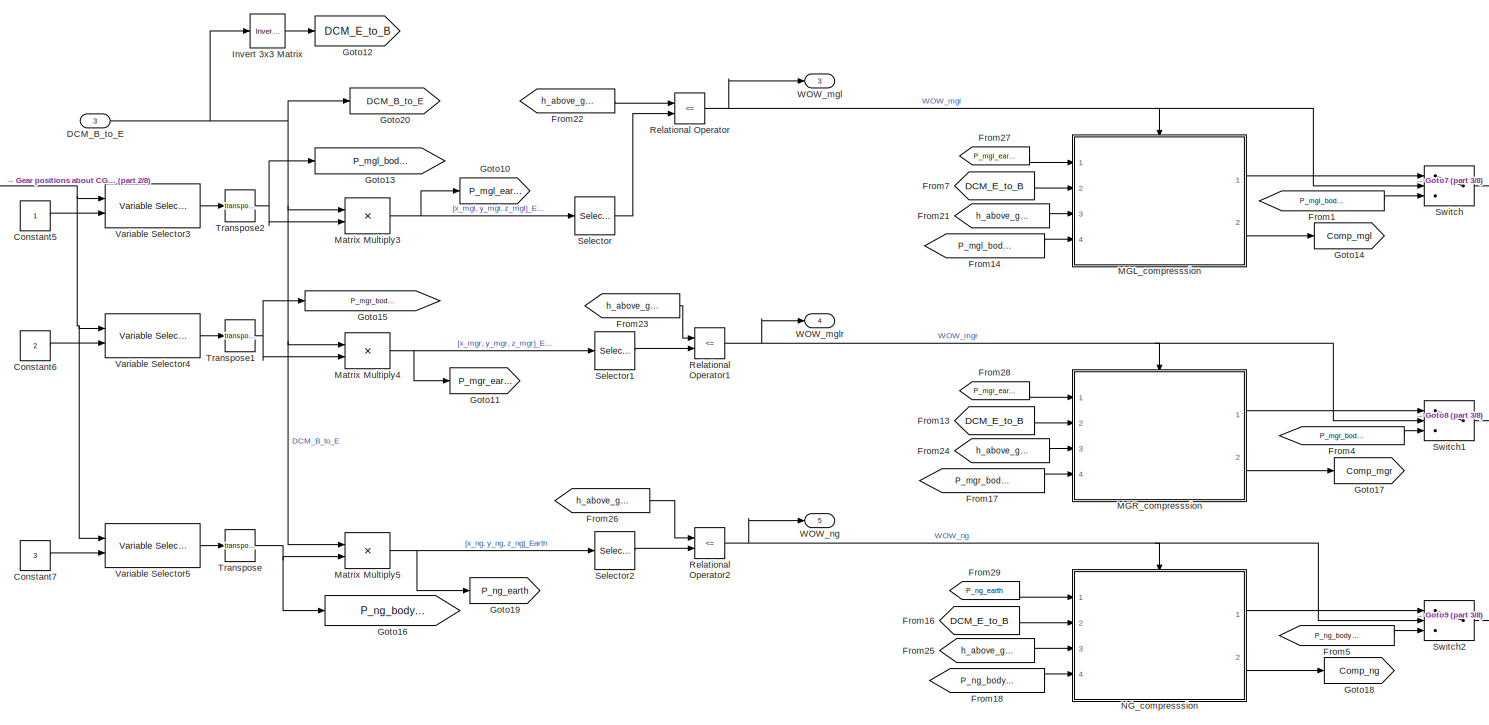
[diagram: Urban Air Vehicle Airframe Flight Dynamic Model/Landing_gear_Model/Landing Gear (with steer 4) - part 1/8, top left region]
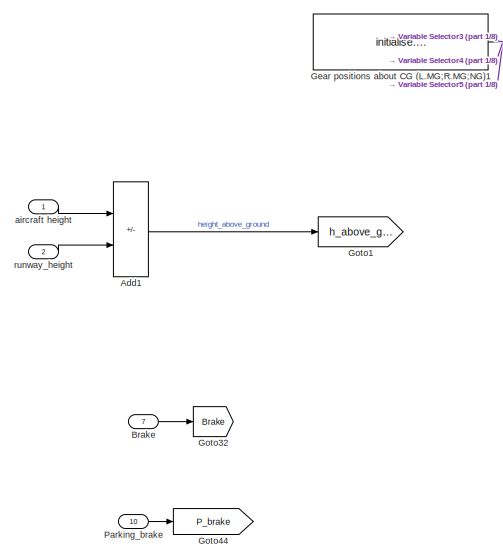
[diagram: Urban Air Vehicle Airframe Flight Dynamic Model/Landing_gear_Model/Landing Gear (with steer 4) - part 2/8, top left region]
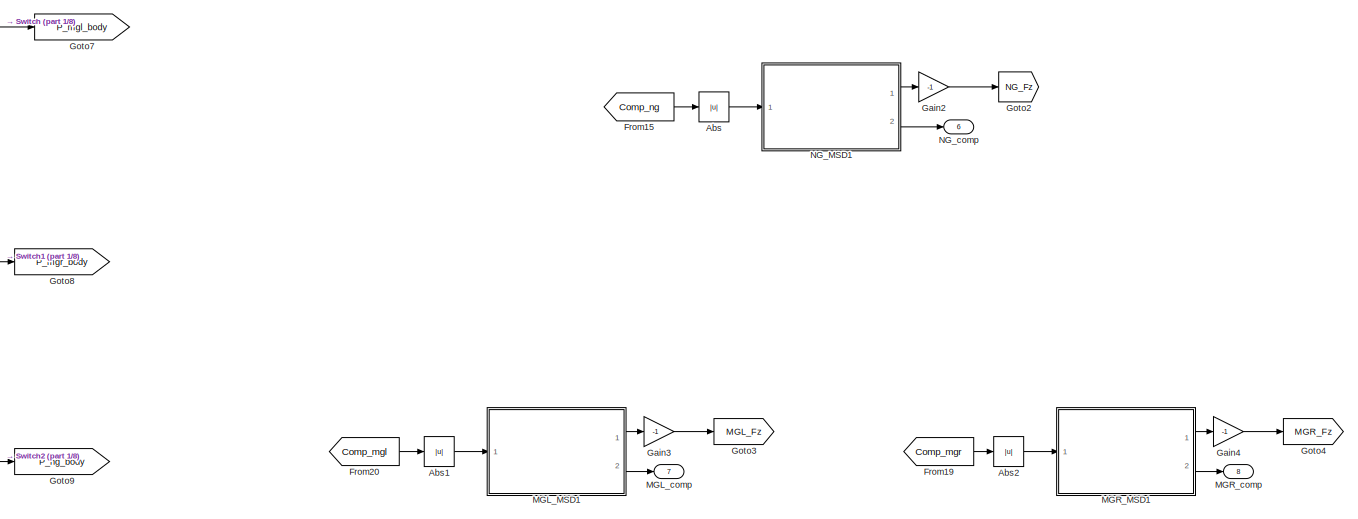
[diagram: Urban Air Vehicle Airframe Flight Dynamic Model/Landing_gear_Model/Landing Gear (with steer 4) - part 3/8, top center region]
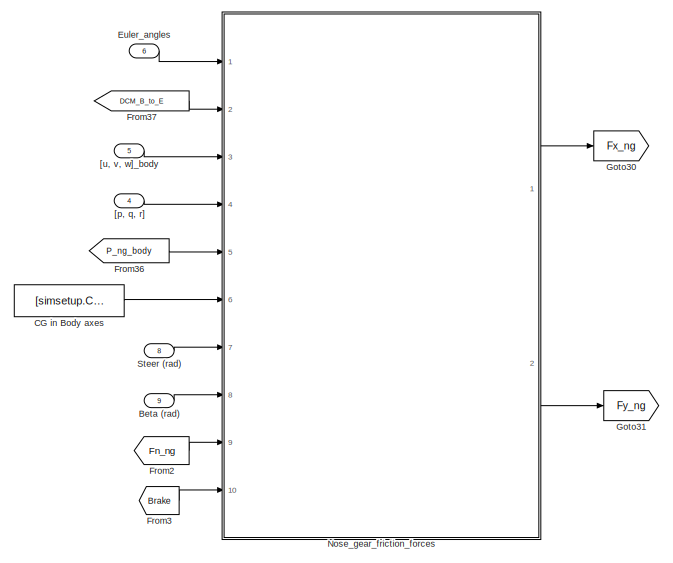
[diagram: Urban Air Vehicle Airframe Flight Dynamic Model/Landing_gear_Model/Landing Gear (with steer 4) - part 4/8, central region]
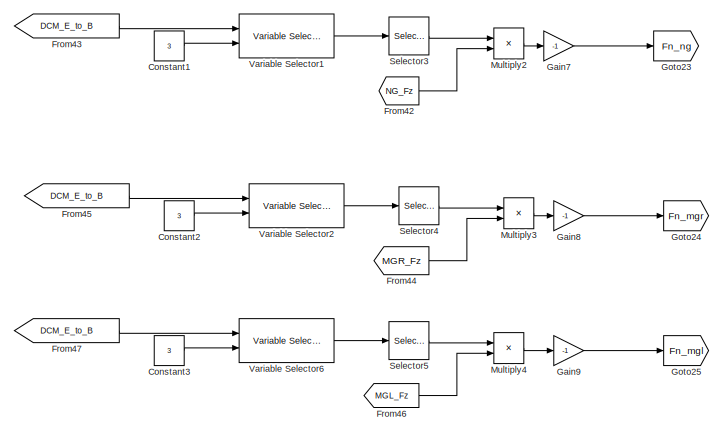
[diagram: Urban Air Vehicle Airframe Flight Dynamic Model/Landing_gear_Model/Landing Gear (with steer 4) - part 5/8, middle left region]
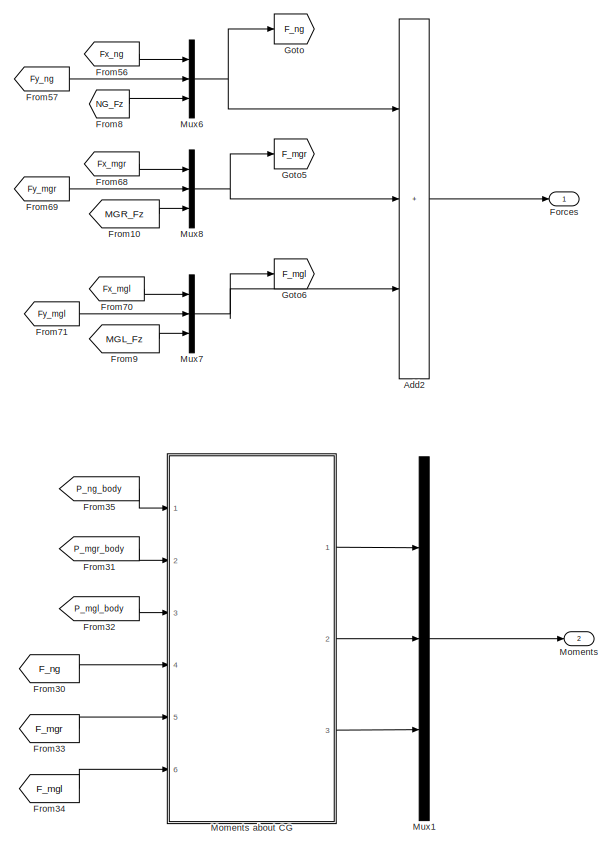
[diagram: Urban Air Vehicle Airframe Flight Dynamic Model/Landing_gear_Model/Landing Gear (with steer 4) - part 6/8, bottom right region]
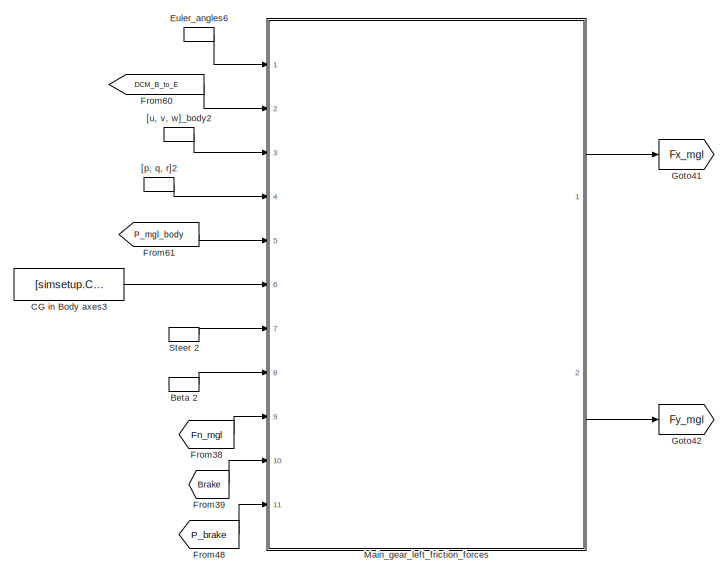
[diagram: Urban Air Vehicle Airframe Flight Dynamic Model/Landing_gear_Model/Landing Gear (with steer 4) - part 7/8, bottom center region]
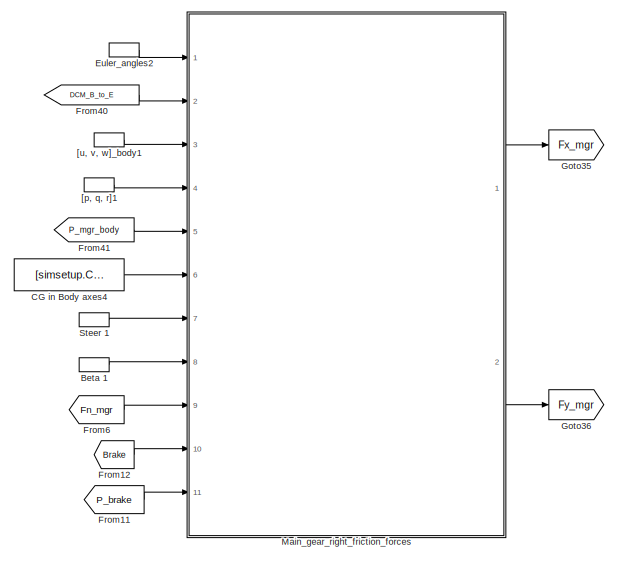
[diagram: Urban Air Vehicle Airframe Flight Dynamic Model/Landing_gear_Model/Landing Gear (with steer 4) - part 8/8, bottom center region]
BLOCK [SubSystem] Urban Air Vehicle Airframe Flight Dynamic Model/Landing_gear_Model/Landing Gear (with steer 4)
  Ports = [10, 8]
  RequestExecContextInheritance = off
BLOCK [Abs] Urban Air Vehicle Airframe Flight Dynamic Model/Landing_gear_Model/Landing Gear (with steer 4)/Abs
  SaturateOnIntegerOverflow = off
BLOCK [Abs] Urban Air Vehicle Airframe Flight Dynamic Model/Landing_gear_Model/Landing Gear (with steer 4)/Abs1
  SaturateOnIntegerOverflow = off
BLOCK [Abs] Urban Air Vehicle Airframe Flight Dynamic Model/Landing_gear_Model/Landing Gear (with steer 4)/Abs2
  SaturateOnIntegerOverflow = off
BLOCK [Sum] Urban Air Vehicle Airframe Flight Dynamic Model/Landing_gear_Model/Landing Gear (with steer 4)/Add1
  IconShape = rectangular
  Inputs = +-
  Ports = [2, 1]
BLOCK [Sum] Urban Air Vehicle Airframe Flight Dynamic Model/Landing_gear_Model/Landing Gear (with steer 4)/Add2
  IconShape = rectangular
  Inputs = +++
  Ports = [3, 1]
BLOCK [Inport] Urban Air Vehicle Airframe Flight Dynamic Model/Landing_gear_Model/Landing Gear (with steer 4)/Beta (rad) 
  Port = 9
BLOCK [InportShadow] Urban Air Vehicle Airframe Flight Dynamic Model/Landing_gear_Model/Landing Gear (with steer 4)/Beta 1
  Port = 9
BLOCK [InportShadow] Urban Air Vehicle Airframe Flight Dynamic Model/Landing_gear_Model/Landing Gear (with steer 4)/Beta 2
  Port = 9
BLOCK [Inport] Urban Air Vehicle Airframe Flight Dynamic Model/Landing_gear_Model/Landing Gear (with steer 4)/Brake 
  Port = 7
BLOCK [Constant] Urban Air Vehicle Airframe Flight Dynamic Model/Landing_gear_Model/Landing Gear (with steer 4)/CG in Body axes
  Value = [simsetup.CG, 0, 0]
BLOCK [Constant] Urban Air Vehicle Airframe Flight Dynamic Model/Landing_gear_Model/Landing Gear (with steer 4)/CG in Body axes3
  Value = [simsetup.CG, 0, 0]
BLOCK [Constant] Urban Air Vehicle Airframe Flight Dynamic Model/Landing_gear_Model/Landing Gear (with steer 4)/CG in Body axes4
  Value = [simsetup.CG, 0, 0]
BLOCK [Constant] Urban Air Vehicle Airframe Flight Dynamic Model/Landing_gear_Model/Landing Gear (with steer 4)/Constant1
  Value = 3
BLOCK [Constant] Urban Air Vehicle Airframe Flight Dynamic Model/Landing_gear_Model/Landing Gear (with steer 4)/Constant2
  Value = 3
BLOCK [Constant] Urban Air Vehicle Airframe Flight Dynamic Model/Landing_gear_Model/Landing Gear (with steer 4)/Constant3
  Value = 3
BLOCK [Constant] Urban Air Vehicle Airframe Flight Dynamic Model/Landing_gear_Model/Landing Gear (with steer 4)/Constant5
BLOCK [Constant] Urban Air Vehicle Airframe Flight Dynamic Model/Landing_gear_Model/Landing Gear (with steer 4)/Constant6
  Value = 2
BLOCK [Constant] Urban Air Vehicle Airframe Flight Dynamic Model/Landing_gear_Model/Landing Gear (with steer 4)/Constant7
  Value = 3
BLOCK [Inport] Urban Air Vehicle Airframe Flight Dynamic Model/Landing_gear_Model/Landing Gear (with steer 4)/DCM_B_to_E
  Port = 3
BLOCK [Inport] Urban Air Vehicle Airframe Flight Dynamic Model/Landing_gear_Model/Landing Gear (with steer 4)/Euler_angles
  Port = 6
BLOCK [InportShadow] Urban Air Vehicle Airframe Flight Dynamic Model/Landing_gear_Model/Landing Gear (with steer 4)/Euler_angles2
  Port = 6
BLOCK [InportShadow] Urban Air Vehicle Airframe Flight Dynamic Model/Landing_gear_Model/Landing Gear (with steer 4)/Euler_angles6
  Port = 6
BLOCK [Outport] Urban Air Vehicle Airframe Flight Dynamic Model/Landing_gear_Model/Landing Gear (with steer 4)/Forces 
  VectorParamsAs1DForOutWhenUnconnected = off
BLOCK [From] Urban Air Vehicle Airframe Flight Dynamic Model/Landing_gear_Model/Landing Gear (with steer 4)/From1
  GotoTag = P_mgl_body_Full_ext
BLOCK [From] Urban Air Vehicle Airframe Flight Dynamic Model/Landing_gear_Model/Landing Gear (with steer 4)/From10
  GotoTag = MGR_Fz
BLOCK [From] Urban Air Vehicle Airframe Flight Dynamic Model/Landing_gear_Model/Landing Gear (with steer 4)/From11
  GotoTag = P_brake
BLOCK [From] Urban Air Vehicle Airframe Flight Dynamic Model/Landing_gear_Model/Landing Gear (with steer 4)/From12
  GotoTag = Brake
BLOCK [From] Urban Air Vehicle Airframe Flight Dynamic Model/Landing_gear_Model/Landing Gear (with steer 4)/From13
  GotoTag = DCM_E_to_B
BLOCK [From] Urban Air Vehicle Airframe Flight Dynamic Model/Landing_gear_Model/Landing Gear (with steer 4)/From14
  GotoTag = P_mgl_body_Full_ext
BLOCK [From] Urban Air Vehicle Airframe Flight Dynamic Model/Landing_gear_Model/Landing Gear (with steer 4)/From15
  GotoTag = Comp_ng
BLOCK [From] Urban Air Vehicle Airframe Flight Dynamic Model/Landing_gear_Model/Landing Gear (with steer 4)/From16
  GotoTag = DCM_E_to_B
BLOCK [From] Urban Air Vehicle Airframe Flight Dynamic Model/Landing_gear_Model/Landing Gear (with steer 4)/From17
  GotoTag = P_mgr_body_Full_ext
BLOCK [From] Urban Air Vehicle Airframe Flight Dynamic Model/Landing_gear_Model/Landing Gear (with steer 4)/From18
  GotoTag = P_ng_body_Full_ext
BLOCK [From] Urban Air Vehicle Airframe Flight Dynamic Model/Landing_gear_Model/Landing Gear (with steer 4)/From19
  GotoTag = Comp_mgr
BLOCK [From] Urban Air Vehicle Airframe Flight Dynamic Model/Landing_gear_Model/Landing Gear (with steer 4)/From2
  GotoTag = Fn_ng
BLOCK [From] Urban Air Vehicle Airframe Flight Dynamic Model/Landing_gear_Model/Landing Gear (with steer 4)/From20
  GotoTag = Comp_mgl
BLOCK [From] Urban Air Vehicle Airframe Flight Dynamic Model/Landing_gear_Model/Landing Gear (with steer 4)/From21
  GotoTag = h_above_grnd
BLOCK [From] Urban Air Vehicle Airframe Flight Dynamic Model/Landing_gear_Model/Landing Gear (with steer 4)/From22
  GotoTag = h_above_grnd
BLOCK [From] Urban Air Vehicle Airframe Flight Dynamic Model/Landing_gear_Model/Landing Gear (with steer 4)/From23
  GotoTag = h_above_grnd
BLOCK [From] Urban Air Vehicle Airframe Flight Dynamic Model/Landing_gear_Model/Landing Gear (with steer 4)/From24
  GotoTag = h_above_grnd
BLOCK [From] Urban Air Vehicle Airframe Flight Dynamic Model/Landing_gear_Model/Landing Gear (with steer 4)/From25
  GotoTag = h_above_grnd
BLOCK [From] Urban Air Vehicle Airframe Flight Dynamic Model/Landing_gear_Model/Landing Gear (with steer 4)/From26
  GotoTag = h_above_grnd
BLOCK [From] Urban Air Vehicle Airframe Flight Dynamic Model/Landing_gear_Model/Landing Gear (with steer 4)/From27
  GotoTag = P_mgl_earth
BLOCK [From] Urban Air Vehicle Airframe Flight Dynamic Model/Landing_gear_Model/Landing Gear (with steer 4)/From28
  GotoTag = P_mgr_earth
BLOCK [From] Urban Air Vehicle Airframe Flight Dynamic Model/Landing_gear_Model/Landing Gear (with steer 4)/From29
  GotoTag = P_ng_earth
BLOCK [From] Urban Air Vehicle Airframe Flight Dynamic Model/Landing_gear_Model/Landing Gear (with steer 4)/From3
  GotoTag = Brake
BLOCK [From] Urban Air Vehicle Airframe Flight Dynamic Model/Landing_gear_Model/Landing Gear (with steer 4)/From30
  GotoTag = F_ng
BLOCK [From] Urban Air Vehicle Airframe Flight Dynamic Model/Landing_gear_Model/Landing Gear (with steer 4)/From31
  GotoTag = P_mgr_body
BLOCK [From] Urban Air Vehicle Airframe Flight Dynamic Model/Landing_gear_Model/Landing Gear (with steer 4)/From32
  GotoTag = P_mgl_body
BLOCK [From] Urban Air Vehicle Airframe Flight Dynamic Model/Landing_gear_Model/Landing Gear (with steer 4)/From33
  GotoTag = F_mgr
BLOCK [From] Urban Air Vehicle Airframe Flight Dynamic Model/Landing_gear_Model/Landing Gear (with steer 4)/From34
  GotoTag = F_mgl
BLOCK [From] Urban Air Vehicle Airframe Flight Dynamic Model/Landing_gear_Model/Landing Gear (with steer 4)/From35
  GotoTag = P_ng_body
BLOCK [From] Urban Air Vehicle Airframe Flight Dynamic Model/Landing_gear_Model/Landing Gear (with steer 4)/From36
  GotoTag = P_ng_body
BLOCK [From] Urban Air Vehicle Airframe Flight Dynamic Model/Landing_gear_Model/Landing Gear (with steer 4)/From37
  GotoTag = DCM_B_to_E
BLOCK [From] Urban Air Vehicle Airframe Flight Dynamic Model/Landing_gear_Model/Landing Gear (with steer 4)/From38
  GotoTag = Fn_mgl
BLOCK [From] Urban Air Vehicle Airframe Flight Dynamic Model/Landing_gear_Model/Landing Gear (with steer 4)/From39
  GotoTag = Brake
BLOCK [From] Urban Air Vehicle Airframe Flight Dynamic Model/Landing_gear_Model/Landing Gear (with steer 4)/From4
  GotoTag = P_mgr_body_Full_ext
BLOCK [From] Urban Air Vehicle Airframe Flight Dynamic Model/Landing_gear_Model/Landing Gear (with steer 4)/From40
  GotoTag = DCM_B_to_E
BLOCK [From] Urban Air Vehicle Airframe Flight Dynamic Model/Landing_gear_Model/Landing Gear (with steer 4)/From41
  GotoTag = P_mgr_body
BLOCK [From] Urban Air Vehicle Airframe Flight Dynamic Model/Landing_gear_Model/Landing Gear (with steer 4)/From42
  GotoTag = NG_Fz
BLOCK [From] Urban Air Vehicle Airframe Flight Dynamic Model/Landing_gear_Model/Landing Gear (with steer 4)/From43
  GotoTag = DCM_E_to_B
BLOCK [From] Urban Air Vehicle Airframe Flight Dynamic Model/Landing_gear_Model/Landing Gear (with steer 4)/From44
  GotoTag = MGR_Fz
BLOCK [From] Urban Air Vehicle Airframe Flight Dynamic Model/Landing_gear_Model/Landing Gear (with steer 4)/From45
  GotoTag = DCM_E_to_B
BLOCK [From] Urban Air Vehicle Airframe Flight Dynamic Model/Landing_gear_Model/Landing Gear (with steer 4)/From46
  GotoTag = MGL_Fz
BLOCK [From] Urban Air Vehicle Airframe Flight Dynamic Model/Landing_gear_Model/Landing Gear (with steer 4)/From47
  GotoTag = DCM_E_to_B
BLOCK [From] Urban Air Vehicle Airframe Flight Dynamic Model/Landing_gear_Model/Landing Gear (with steer 4)/From48
  GotoTag = P_brake
BLOCK [From] Urban Air Vehicle Airframe Flight Dynamic Model/Landing_gear_Model/Landing Gear (with steer 4)/From5
  GotoTag = P_ng_body_Full_ext
BLOCK [From] Urban Air Vehicle Airframe Flight Dynamic Model/Landing_gear_Model/Landing Gear (with steer 4)/From56
  GotoTag = Fx_ng
BLOCK [From] Urban Air Vehicle Airframe Flight Dynamic Model/Landing_gear_Model/Landing Gear (with steer 4)/From57
  GotoTag = Fy_ng
BLOCK [From] Urban Air Vehicle Airframe Flight Dynamic Model/Landing_gear_Model/Landing Gear (with steer 4)/From6
  GotoTag = Fn_mgr
BLOCK [From] Urban Air Vehicle Airframe Flight Dynamic Model/Landing_gear_Model/Landing Gear (with steer 4)/From60
  GotoTag = DCM_B_to_E
BLOCK [From] Urban Air Vehicle Airframe Flight Dynamic Model/Landing_gear_Model/Landing Gear (with steer 4)/From61
  GotoTag = P_mgl_body
BLOCK [From] Urban Air Vehicle Airframe Flight Dynamic Model/Landing_gear_Model/Landing Gear (with steer 4)/From68
  GotoTag = Fx_mgr
BLOCK [From] Urban Air Vehicle Airframe Flight Dynamic Model/Landing_gear_Model/Landing Gear (with steer 4)/From69
  GotoTag = Fy_mgr
BLOCK [From] Urban Air Vehicle Airframe Flight Dynamic Model/Landing_gear_Model/Landing Gear (with steer 4)/From7
  GotoTag = DCM_E_to_B
BLOCK [From] Urban Air Vehicle Airframe Flight Dynamic Model/Landing_gear_Model/Landing Gear (with steer 4)/From70
  GotoTag = Fx_mgl
BLOCK [From] Urban Air Vehicle Airframe Flight Dynamic Model/Landing_gear_Model/Landing Gear (with steer 4)/From71
  GotoTag = Fy_mgl
BLOCK [From] Urban Air Vehicle Airframe Flight Dynamic Model/Landing_gear_Model/Landing Gear (with steer 4)/From8
  GotoTag = NG_Fz
BLOCK [From] Urban Air Vehicle Airframe Flight Dynamic Model/Landing_gear_Model/Landing Gear (with steer 4)/From9
  GotoTag = MGL_Fz
BLOCK [Gain] Urban Air Vehicle Airframe Flight Dynamic Model/Landing_gear_Model/Landing Gear (with steer 4)/Gain2
  Gain = -1
BLOCK [Gain] Urban Air Vehicle Airframe Flight Dynamic Model/Landing_gear_Model/Landing Gear (with steer 4)/Gain3
  Gain = -1
BLOCK [Gain] Urban Air Vehicle Airframe Flight Dynamic Model/Landing_gear_Model/Landing Gear (with steer 4)/Gain4
  Gain = -1
BLOCK [Gain] Urban Air Vehicle Airframe Flight Dynamic Model/Landing_gear_Model/Landing Gear (with steer 4)/Gain7
  Gain = -1
BLOCK [Gain] Urban Air Vehicle Airframe Flight Dynamic Model/Landing_gear_Model/Landing Gear (with steer 4)/Gain8
  Gain = -1
BLOCK [Gain] Urban Air Vehicle Airframe Flight Dynamic Model/Landing_gear_Model/Landing Gear (with steer 4)/Gain9
  Gain = -1
BLOCK [Constant] Urban Air Vehicle Airframe Flight Dynamic Model/Landing_gear_Model/Landing Gear (with steer 4)/Gear positions about CG (L.MG;R.MG;NG)1
  Value = initialise.landinggear.gear_positions
BLOCK [Goto] Urban Air Vehicle Airframe Flight Dynamic Model/Landing_gear_Model/Landing Gear (with steer 4)/Goto
  GotoTag = F_ng
BLOCK [Goto] Urban Air Vehicle Airframe Flight Dynamic Model/Landing_gear_Model/Landing Gear (with steer 4)/Goto1
  GotoTag = h_above_grnd
BLOCK [Goto] Urban Air Vehicle Airframe Flight Dynamic Model/Landing_gear_Model/Landing Gear (with steer 4)/Goto10
  GotoTag = P_mgl_earth
BLOCK [Goto] Urban Air Vehicle Airframe Flight Dynamic Model/Landing_gear_Model/Landing Gear (with steer 4)/Goto11
  GotoTag = P_mgr_earth
BLOCK [Goto] Urban Air Vehicle Airframe Flight Dynamic Model/Landing_gear_Model/Landing Gear (with steer 4)/Goto12
  GotoTag = DCM_E_to_B
BLOCK [Goto] Urban Air Vehicle Airframe Flight Dynamic Model/Landing_gear_Model/Landing Gear (with steer 4)/Goto13
  GotoTag = P_mgl_body_Full_ext
BLOCK [Goto] Urban Air Vehicle Airframe Flight Dynamic Model/Landing_gear_Model/Landing Gear (with steer 4)/Goto14
  GotoTag = Comp_mgl
BLOCK [Goto] Urban Air Vehicle Airframe Flight Dynamic Model/Landing_gear_Model/Landing Gear (with steer 4)/Goto15
  GotoTag = P_mgr_body_Full_ext
BLOCK [Goto] Urban Air Vehicle Airframe Flight Dynamic Model/Landing_gear_Model/Landing Gear (with steer 4)/Goto16
  GotoTag = P_ng_body_Full_ext
BLOCK [Goto] Urban Air Vehicle Airframe Flight Dynamic Model/Landing_gear_Model/Landing Gear (with steer 4)/Goto17
  GotoTag = Comp_mgr
BLOCK [Goto] Urban Air Vehicle Airframe Flight Dynamic Model/Landing_gear_Model/Landing Gear (with steer 4)/Goto18
  GotoTag = Comp_ng
BLOCK [Goto] Urban Air Vehicle Airframe Flight Dynamic Model/Landing_gear_Model/Landing Gear (with steer 4)/Goto19
  GotoTag = P_ng_earth
BLOCK [Goto] Urban Air Vehicle Airframe Flight Dynamic Model/Landing_gear_Model/Landing Gear (with steer 4)/Goto2
  GotoTag = NG_Fz
BLOCK [Goto] Urban Air Vehicle Airframe Flight Dynamic Model/Landing_gear_Model/Landing Gear (with steer 4)/Goto20
  GotoTag = DCM_B_to_E
BLOCK [Goto] Urban Air Vehicle Airframe Flight Dynamic Model/Landing_gear_Model/Landing Gear (with steer 4)/Goto23
  GotoTag = Fn_ng
BLOCK [Goto] Urban Air Vehicle Airframe Flight Dynamic Model/Landing_gear_Model/Landing Gear (with steer 4)/Goto24
  GotoTag = Fn_mgr
BLOCK [Goto] Urban Air Vehicle Airframe Flight Dynamic Model/Landing_gear_Model/Landing Gear (with steer 4)/Goto25
  GotoTag = Fn_mgl
BLOCK [Goto] Urban Air Vehicle Airframe Flight Dynamic Model/Landing_gear_Model/Landing Gear (with steer 4)/Goto3
  GotoTag = MGL_Fz
BLOCK [Goto] Urban Air Vehicle Airframe Flight Dynamic Model/Landing_gear_Model/Landing Gear (with steer 4)/Goto30
  GotoTag = Fx_ng
BLOCK [Goto] Urban Air Vehicle Airframe Flight Dynamic Model/Landing_gear_Model/Landing Gear (with steer 4)/Goto31
  GotoTag = Fy_ng
BLOCK [Goto] Urban Air Vehicle Airframe Flight Dynamic Model/Landing_gear_Model/Landing Gear (with steer 4)/Goto32
  GotoTag = Brake
BLOCK [Goto] Urban Air Vehicle Airframe Flight Dynamic Model/Landing_gear_Model/Landing Gear (with steer 4)/Goto35
  GotoTag = Fx_mgr
BLOCK [Goto] Urban Air Vehicle Airframe Flight Dynamic Model/Landing_gear_Model/Landing Gear (with steer 4)/Goto36
  GotoTag = Fy_mgr
BLOCK [Goto] Urban Air Vehicle Airframe Flight Dynamic Model/Landing_gear_Model/Landing Gear (with steer 4)/Goto4
  GotoTag = MGR_Fz
BLOCK [Goto] Urban Air Vehicle Airframe Flight Dynamic Model/Landing_gear_Model/Landing Gear (with steer 4)/Goto41
  GotoTag = Fx_mgl
BLOCK [Goto] Urban Air Vehicle Airframe Flight Dynamic Model/Landing_gear_Model/Landing Gear (with steer 4)/Goto42
  GotoTag = Fy_mgl
BLOCK [Goto] Urban Air Vehicle Airframe Flight Dynamic Model/Landing_gear_Model/Landing Gear (with steer 4)/Goto44
  GotoTag = P_brake
BLOCK [Goto] Urban Air Vehicle Airframe Flight Dynamic Model/Landing_gear_Model/Landing Gear (with steer 4)/Goto5
  GotoTag = F_mgr
BLOCK [Goto] Urban Air Vehicle Airframe Flight Dynamic Model/Landing_gear_Model/Landing Gear (with steer 4)/Goto6
  GotoTag = F_mgl
BLOCK [Goto] Urban Air Vehicle Airframe Flight Dynamic Model/Landing_gear_Model/Landing Gear (with steer 4)/Goto7
  GotoTag = P_mgl_body
BLOCK [Goto] Urban Air Vehicle Airframe Flight Dynamic Model/Landing_gear_Model/Landing Gear (with steer 4)/Goto8
  GotoTag = P_mgr_body
BLOCK [Goto] Urban Air Vehicle Airframe Flight Dynamic Model/Landing_gear_Model/Landing Gear (with steer 4)/Goto9
  GotoTag = P_ng_body
BLOCK [Reference] Urban Air Vehicle Airframe Flight Dynamic Model/Landing_gear_Model/Landing Gear (with steer 4)/Invert 3x3 Matrix  REF=aerolibutil/Invert 
3x3 Matrix
  Ports = [1, 1]
  SourceBlock = aerolibutil/Invert \n3x3 Matrix
  SourceProductBaseCode = AE
  SourceType = Invert 3x3 Matrix
BLOCK [SubSystem] Urban Air Vehicle Airframe Flight Dynamic Model/Landing_gear_Model/Landing Gear (with steer 4)/MGL_MSD1
  Ports = [1, 2]
  RequestExecContextInheritance = off
BLOCK [Sum] Urban Air Vehicle Airframe Flight Dynamic Model/Landing_gear_Model/Landing Gear (with steer 4)/MGL_MSD1/Add
  IconShape = rectangular
  Ports = [2, 1]
BLOCK [Derivative] Urban Air Vehicle Airframe Flight Dynamic Model/Landing_gear_Model/Landing Gear (with steer 4)/MGL_MSD1/Derivative
BLOCK [Outport] Urban Air Vehicle Airframe Flight Dynamic Model/Landing_gear_Model/Landing Gear (with steer 4)/MGL_MSD1/Force_strut
  VectorParamsAs1DForOutWhenUnconnected = off
BLOCK [Outport] Urban Air Vehicle Airframe Flight Dynamic Model/Landing_gear_Model/Landing Gear (with steer 4)/MGL_MSD1/Spring_comp (m)
  Port = 2
  VectorParamsAs1DForOutWhenUnconnected = off
BLOCK [Gain] Urban Air Vehicle Airframe Flight Dynamic Model/Landing_gear_Model/Landing Gear (with steer 4)/MGL_MSD1/Stiffness
  Gain = initialise.landinggear.K
BLOCK [Gain] Urban Air Vehicle Airframe Flight Dynamic Model/Landing_gear_Model/Landing Gear (with steer 4)/MGL_MSD1/Viscous Damping
  Gain = initialise.landinggear.C
BLOCK [Inport] Urban Air Vehicle Airframe Flight Dynamic Model/Landing_gear_Model/Landing Gear (with steer 4)/MGL_MSD1/axial_deflection (m) 
BLOCK [Saturate] Urban Air Vehicle Airframe Flight Dynamic Model/Landing_gear_Model/Landing Gear (with steer 4)/MGL_MSD1/deflection_range_limit
  LowerLimit = 0
  UpperLimit = 1.5
BLOCK [Outport] Urban Air Vehicle Airframe Flight Dynamic Model/Landing_gear_Model/Landing Gear (with steer 4)/MGL_comp
  Port = 7
  VectorParamsAs1DForOutWhenUnconnected = off
BLOCK [SubSystem] Urban Air Vehicle Airframe Flight Dynamic Model/Landing_gear_Model/Landing Gear (with steer 4)/MGL_compresssion
  Ports = [4, 2, 1]
  RequestExecContextInheritance = off
BLOCK [Inport] Urban Air Vehicle Airframe Flight Dynamic Model/Landing_gear_Model/Landing Gear (with steer 4)/MGL_compresssion/DCM_eb 
  Port = 2
BLOCK [Demux] Urban Air Vehicle Airframe Flight Dynamic Model/Landing_gear_Model/Landing Gear (with steer 4)/MGL_compresssion/Demux
  Outputs = 3
  Ports = [1, 3]
BLOCK [EnablePort] Urban Air Vehicle Airframe Flight Dynamic Model/Landing_gear_Model/Landing Gear (with steer 4)/MGL_compresssion/Enable
  Ports = []
  StatesWhenEnabling = reset
BLOCK [Product] Urban Air Vehicle Airframe Flight Dynamic Model/Landing_gear_Model/Landing Gear (with steer 4)/MGL_compresssion/Matrix Multiply1
  Multiplication = Matrix(*)
  Ports = [2, 1]
BLOCK [Mux] Urban Air Vehicle Airframe Flight Dynamic Model/Landing_gear_Model/Landing Gear (with steer 4)/MGL_compresssion/Mux
  DisplayOption = bar
  Inputs = 3
  Ports = [3, 1]
BLOCK [Scope] Urban Air Vehicle Airframe Flight Dynamic Model/Landing_gear_Model/Landing Gear (with steer 4)/MGL_compresssion/Scope
  Floating = off
  NumInputPorts = 1
  Ports = [1]
  ScopeSpecificationString = Simulink.scopes.TimeScopeBlockCfg('CurrentConfiguration', extmgr.ConfigurationSet(extmgr.Configuration('Core','General UI',true),extmgr.Configuration('Core','Source UI',true),extmgr.Configuration('Sources','WiredSimulink',true,'DataLoggingVariableName','ScopeData10'),extmgr.Configuration('Visuals','Time Domain',true,'SerializedDisplays',{struct('MinYLimReal','-0.03312','MaxYLimReal','0.29807','YLa...<+1431ch>
BLOCK [Selector] Urban Air Vehicle Airframe Flight Dynamic Model/Landing_gear_Model/Landing Gear (with steer 4)/MGL_compresssion/Selector3
  IndexOptions = Index vector (dialog)
  Indices = 3
  InputPortWidth = 3
  OutputSizes = 1
  Ports = [1, 1]
BLOCK [Selector] Urban Air Vehicle Airframe Flight Dynamic Model/Landing_gear_Model/Landing Gear (with steer 4)/MGL_compresssion/Selector4
  IndexOptions = Index vector (dialog)
  Indices = 3
  InputPortWidth = 3
  OutputSizes = 1
  Ports = [1, 1]
BLOCK [Sum] Urban Air Vehicle Airframe Flight Dynamic Model/Landing_gear_Model/Landing Gear (with steer 4)/MGL_compresssion/Subtract2
  IconShape = rectangular
  Inputs = +-
  Ports = [2, 1]
BLOCK [Terminator] Urban Air Vehicle Airframe Flight Dynamic Model/Landing_gear_Model/Landing Gear (with steer 4)/MGL_compresssion/Terminator
BLOCK [Inport] Urban Air Vehicle Airframe Flight Dynamic Model/Landing_gear_Model/Landing Gear (with steer 4)/MGL_compresssion/[x_g, y_g, z_g]_Body
  Port = 4
BLOCK [Outport] Urban Air Vehicle Airframe Flight Dynamic Model/Landing_gear_Model/Landing Gear (with steer 4)/MGL_compresssion/[x_g, y_g, z_g]_Body_prime
  VectorParamsAs1DForOutWhenUnconnected = off
BLOCK [Inport] Urban Air Vehicle Airframe Flight Dynamic Model/Landing_gear_Model/Landing Gear (with steer 4)/MGL_compresssion/[x_g, y_g, z_g]_Earth
BLOCK [Outport] Urban Air Vehicle Airframe Flight Dynamic Model/Landing_gear_Model/Landing Gear (with steer 4)/MGL_compresssion/compression
  InitialOutput = [0]
  OutputWhenDisabled = reset
  Port = 2
  VectorParamsAs1DForOutWhenUnconnected = off
BLOCK [Inport] Urban Air Vehicle Airframe Flight Dynamic Model/Landing_gear_Model/Landing Gear (with steer 4)/MGL_compresssion/h-hr 
  Port = 3
BLOCK [SubSystem] Urban Air Vehicle Airframe Flight Dynamic Model/Landing_gear_Model/Landing Gear (with steer 4)/MGR_MSD1
  Ports = [1, 2]
  RequestExecContextInheritance = off
BLOCK [Sum] Urban Air Vehicle Airframe Flight Dynamic Model/Landing_gear_Model/Landing Gear (with steer 4)/MGR_MSD1/Add
  IconShape = rectangular
  Ports = [2, 1]
BLOCK [Derivative] Urban Air Vehicle Airframe Flight Dynamic Model/Landing_gear_Model/Landing Gear (with steer 4)/MGR_MSD1/Derivative
BLOCK [Outport] Urban Air Vehicle Airframe Flight Dynamic Model/Landing_gear_Model/Landing Gear (with steer 4)/MGR_MSD1/Force_strut
  VectorParamsAs1DForOutWhenUnconnected = off
BLOCK [Outport] Urban Air Vehicle Airframe Flight Dynamic Model/Landing_gear_Model/Landing Gear (with steer 4)/MGR_MSD1/Spring_comp (m)
  Port = 2
  VectorParamsAs1DForOutWhenUnconnected = off
BLOCK [Gain] Urban Air Vehicle Airframe Flight Dynamic Model/Landing_gear_Model/Landing Gear (with steer 4)/MGR_MSD1/Stiffness
  Gain = initialise.landinggear.K
BLOCK [Gain] Urban Air Vehicle Airframe Flight Dynamic Model/Landing_gear_Model/Landing Gear (with steer 4)/MGR_MSD1/Viscous Damping
  Gain = initialise.landinggear.C
BLOCK [Inport] Urban Air Vehicle Airframe Flight Dynamic Model/Landing_gear_Model/Landing Gear (with steer 4)/MGR_MSD1/axial_deflection (m) 
BLOCK [Saturate] Urban Air Vehicle Airframe Flight Dynamic Model/Landing_gear_Model/Landing Gear (with steer 4)/MGR_MSD1/deflection_range_limit
  LowerLimit = 0
  UpperLimit = 1.5
BLOCK [Outport] Urban Air Vehicle Airframe Flight Dynamic Model/Landing_gear_Model/Landing Gear (with steer 4)/MGR_comp
  Port = 8
  VectorParamsAs1DForOutWhenUnconnected = off
BLOCK [SubSystem] Urban Air Vehicle Airframe Flight Dynamic Model/Landing_gear_Model/Landing Gear (with steer 4)/MGR_compresssion
  Ports = [4, 2, 1]
  RequestExecContextInheritance = off
BLOCK [Inport] Urban Air Vehicle Airframe Flight Dynamic Model/Landing_gear_Model/Landing Gear (with steer 4)/MGR_compresssion/DCM_eb 
  Port = 2
BLOCK [Demux] Urban Air Vehicle Airframe Flight Dynamic Model/Landing_gear_Model/Landing Gear (with steer 4)/MGR_compresssion/Demux
  Outputs = 3
  Ports = [1, 3]
BLOCK [EnablePort] Urban Air Vehicle Airframe Flight Dynamic Model/Landing_gear_Model/Landing Gear (with steer 4)/MGR_compresssion/Enable
  Ports = []
  StatesWhenEnabling = reset
BLOCK [Product] Urban Air Vehicle Airframe Flight Dynamic Model/Landing_gear_Model/Landing Gear (with steer 4)/MGR_compresssion/Matrix Multiply1
  Multiplication = Matrix(*)
  Ports = [2, 1]
BLOCK [Mux] Urban Air Vehicle Airframe Flight Dynamic Model/Landing_gear_Model/Landing Gear (with steer 4)/MGR_compresssion/Mux
  DisplayOption = bar
  Inputs = 3
  Ports = [3, 1]
BLOCK [Selector] Urban Air Vehicle Airframe Flight Dynamic Model/Landing_gear_Model/Landing Gear (with steer 4)/MGR_compresssion/Selector3
  IndexOptions = Index vector (dialog)
  Indices = 3
  InputPortWidth = 3
  OutputSizes = 1
  Ports = [1, 1]
BLOCK [Selector] Urban Air Vehicle Airframe Flight Dynamic Model/Landing_gear_Model/Landing Gear (with steer 4)/MGR_compresssion/Selector4
  IndexOptions = Index vector (dialog)
  Indices = 3
  InputPortWidth = 3
  OutputSizes = 1
  Ports = [1, 1]
BLOCK [Sum] Urban Air Vehicle Airframe Flight Dynamic Model/Landing_gear_Model/Landing Gear (with steer 4)/MGR_compresssion/Subtract2
  IconShape = rectangular
  Inputs = +-
  Ports = [2, 1]
BLOCK [Terminator] Urban Air Vehicle Airframe Flight Dynamic Model/Landing_gear_Model/Landing Gear (with steer 4)/MGR_compresssion/Terminator
BLOCK [Inport] Urban Air Vehicle Airframe Flight Dynamic Model/Landing_gear_Model/Landing Gear (with steer 4)/MGR_compresssion/[x_g, y_g, z_g]_Body
  Port = 4
BLOCK [Outport] Urban Air Vehicle Airframe Flight Dynamic Model/Landing_gear_Model/Landing Gear (with steer 4)/MGR_compresssion/[x_g, y_g, z_g]_Body_prime
  VectorParamsAs1DForOutWhenUnconnected = off
BLOCK [Inport] Urban Air Vehicle Airframe Flight Dynamic Model/Landing_gear_Model/Landing Gear (with steer 4)/MGR_compresssion/[x_g, y_g, z_g]_Earth
BLOCK [Outport] Urban Air Vehicle Airframe Flight Dynamic Model/Landing_gear_Model/Landing Gear (with steer 4)/MGR_compresssion/compression
  InitialOutput = [0]
  OutputWhenDisabled = reset
  Port = 2
  VectorParamsAs1DForOutWhenUnconnected = off
BLOCK [Inport] Urban Air Vehicle Airframe Flight Dynamic Model/Landing_gear_Model/Landing Gear (with steer 4)/MGR_compresssion/h-hr 
  Port = 3
BLOCK [SubSystem] Urban Air Vehicle Airframe Flight Dynamic Model/Landing_gear_Model/Landing Gear (with steer 4)/Main_gear_left_friction_forces
  Ports = [11, 2]
  RequestExecContextInheritance = off
BLOCK [Inport] Urban Air Vehicle Airframe Flight Dynamic Model/Landing_gear_Model/Landing Gear (with steer 4)/Main_gear_left_friction_forces/Beta (rad) 
  Port = 8
BLOCK [Inport] Urban Air Vehicle Airframe Flight Dynamic Model/Landing_gear_Model/Landing Gear (with steer 4)/Main_gear_left_friction_forces/Brake
  Port = 10
BLOCK [Inport] Urban Air Vehicle Airframe Flight Dynamic Model/Landing_gear_Model/Landing Gear (with steer 4)/Main_gear_left_friction_forces/DCM_B_to_E
  Port = 2
BLOCK [Inport] Urban Air Vehicle Airframe Flight Dynamic Model/Landing_gear_Model/Landing Gear (with steer 4)/Main_gear_left_friction_forces/Euler_angles
BLOCK [InportShadow] Urban Air Vehicle Airframe Flight Dynamic Model/Landing_gear_Model/Landing Gear (with steer 4)/Main_gear_left_friction_forces/Euler_angles1
BLOCK [Inport] Urban Air Vehicle Airframe Flight Dynamic Model/Landing_gear_Model/Landing Gear (with steer 4)/Main_gear_left_friction_forces/Fn_g
  Port = 9
BLOCK [From] Urban Air Vehicle Airframe Flight Dynamic Model/Landing_gear_Model/Landing Gear (with steer 4)/Main_gear_left_friction_forces/From63
  GotoTag = u_mgl_gp
BLOCK [From] Urban Air Vehicle Airframe Flight Dynamic Model/Landing_gear_Model/Landing Gear (with steer 4)/Main_gear_left_friction_forces/From64
  GotoTag = v_mgl_gp
BLOCK [From] Urban Air Vehicle Airframe Flight Dynamic Model/Landing_gear_Model/Landing Gear (with steer 4)/Main_gear_left_friction_forces/From66
  GotoTag = F_long_mgl
BLOCK [From] Urban Air Vehicle Airframe Flight Dynamic Model/Landing_gear_Model/Landing Gear (with steer 4)/Main_gear_left_friction_forces/From67
  GotoTag = F_lat_mgl
BLOCK [Outport] Urban Air Vehicle Airframe Flight Dynamic Model/Landing_gear_Model/Landing Gear (with steer 4)/Main_gear_left_friction_forces/Fx_g_E
  VectorParamsAs1DForOutWhenUnconnected = off
BLOCK [Outport] Urban Air Vehicle Airframe Flight Dynamic Model/Landing_gear_Model/Landing Gear (with steer 4)/Main_gear_left_friction_forces/Fy_g_E
  Port = 2
  VectorParamsAs1DForOutWhenUnconnected = off
BLOCK [SubSystem] Urban Air Vehicle Airframe Flight Dynamic Model/Landing_gear_Model/Landing Gear (with steer 4)/Main_gear_left_friction_forces/GP to Earth axes 2
  Ports = [3, 2]
  RequestExecContextInheritance = off
BLOCK [Inport] Urban Air Vehicle Airframe Flight Dynamic Model/Landing_gear_Model/Landing Gear (with steer 4)/Main_gear_left_friction_forces/GP to Earth axes 2/Euler Angles
BLOCK [Inport] Urban Air Vehicle Airframe Flight Dynamic Model/Landing_gear_Model/Landing Gear (with steer 4)/Main_gear_left_friction_forces/GP to Earth axes 2/F_lat_g
  Port = 3
BLOCK [Inport] Urban Air Vehicle Airframe Flight Dynamic Model/Landing_gear_Model/Landing Gear (with steer 4)/Main_gear_left_friction_forces/GP to Earth axes 2/F_long_g
  Port = 2
BLOCK [From] Urban Air Vehicle Airframe Flight Dynamic Model/Landing_gear_Model/Landing Gear (with steer 4)/Main_gear_left_friction_forces/GP to Earth axes 2/From52
  GotoTag = cos_psi
BLOCK [From] Urban Air Vehicle Airframe Flight Dynamic Model/Landing_gear_Model/Landing Gear (with steer 4)/Main_gear_left_friction_forces/GP to Earth axes 2/From53
  GotoTag = sin_psi
BLOCK [From] Urban Air Vehicle Airframe Flight Dynamic Model/Landing_gear_Model/Landing Gear (with steer 4)/Main_gear_left_friction_forces/GP to Earth axes 2/From54
  GotoTag = cos_psi
BLOCK [From] Urban Air Vehicle Airframe Flight Dynamic Model/Landing_gear_Model/Landing Gear (with steer 4)/Main_gear_left_friction_forces/GP to Earth axes 2/From55
  GotoTag = sin_psi
BLOCK [Outport] Urban Air Vehicle Airframe Flight Dynamic Model/Landing_gear_Model/Landing Gear (with steer 4)/Main_gear_left_friction_forces/GP to Earth axes 2/Fx_g_E
  VectorParamsAs1DForOutWhenUnconnected = off
BLOCK [Outport] Urban Air Vehicle Airframe Flight Dynamic Model/Landing_gear_Model/Landing Gear (with steer 4)/Main_gear_left_friction_forces/GP to Earth axes 2/Fy_g_E
  Port = 2
  VectorParamsAs1DForOutWhenUnconnected = off
BLOCK [Goto] Urban Air Vehicle Airframe Flight Dynamic Model/Landing_gear_Model/Landing Gear (with steer 4)/Main_gear_left_friction_forces/GP to Earth axes 2/Goto28
  GotoTag = cos_psi
BLOCK [Goto] Urban Air Vehicle Airframe Flight Dynamic Model/Landing_gear_Model/Landing Gear (with steer 4)/Main_gear_left_friction_forces/GP to Earth axes 2/Goto29
  GotoTag = sin_psi
BLOCK [Product] Urban Air Vehicle Airframe Flight Dynamic Model/Landing_gear_Model/Landing Gear (with steer 4)/Main_gear_left_friction_forces/GP to Earth axes 2/Multiply10
  Ports = [2, 1]
BLOCK [Product] Urban Air Vehicle Airframe Flight Dynamic Model/Landing_gear_Model/Landing Gear (with steer 4)/Main_gear_left_friction_forces/GP to Earth axes 2/Multiply11
  Ports = [2, 1]
BLOCK [Product] Urban Air Vehicle Airframe Flight Dynamic Model/Landing_gear_Model/Landing Gear (with steer 4)/Main_gear_left_friction_forces/GP to Earth axes 2/Multiply12
  Ports = [2, 1]
BLOCK [Product] Urban Air Vehicle Airframe Flight Dynamic Model/Landing_gear_Model/Landing Gear (with steer 4)/Main_gear_left_friction_forces/GP to Earth axes 2/Multiply9
  Ports = [2, 1]
BLOCK [Selector] Urban Air Vehicle Airframe Flight Dynamic Model/Landing_gear_Model/Landing Gear (with steer 4)/Main_gear_left_friction_forces/GP to Earth axes 2/Selector6
  IndexOptions = Index vector (dialog)
  Indices = 3
  InputPortWidth = 3
  OutputSizes = 1
  Ports = [1, 1]
BLOCK [Trigonometry] Urban Air Vehicle Airframe Flight Dynamic Model/Landing_gear_Model/Landing Gear (with steer 4)/Main_gear_left_friction_forces/GP to Earth axes 2/Sin
  Ports = [1, 1]
BLOCK [Trigonometry] Urban Air Vehicle Airframe Flight Dynamic Model/Landing_gear_Model/Landing Gear (with steer 4)/Main_gear_left_friction_forces/GP to Earth axes 2/Sin1
  Operator = cos
  Ports = [1, 1]
BLOCK [Sum] Urban Air Vehicle Airframe Flight Dynamic Model/Landing_gear_Model/Landing Gear (with steer 4)/Main_gear_left_friction_forces/GP to Earth axes 2/Subtract
  IconShape = rectangular
  Inputs = +-
  Ports = [2, 1]
BLOCK [Sum] Urban Air Vehicle Airframe Flight Dynamic Model/Landing_gear_Model/Landing Gear (with steer 4)/Main_gear_left_friction_forces/GP to Earth axes 2/Subtract1
  IconShape = rectangular
  Ports = [2, 1]
BLOCK [Goto] Urban Air Vehicle Airframe Flight Dynamic Model/Landing_gear_Model/Landing Gear (with steer 4)/Main_gear_left_friction_forces/Goto37
  GotoTag = u_mgl_gp
BLOCK [Goto] Urban Air Vehicle Airframe Flight Dynamic Model/Landing_gear_Model/Landing Gear (with steer 4)/Main_gear_left_friction_forces/Goto38
  GotoTag = v_mgl_gp
BLOCK [Goto] Urban Air Vehicle Airframe Flight Dynamic Model/Landing_gear_Model/Landing Gear (with steer 4)/Main_gear_left_friction_forces/Goto39
  GotoTag = F_long_mgl
BLOCK [Goto] Urban Air Vehicle Airframe Flight Dynamic Model/Landing_gear_Model/Landing Gear (with steer 4)/Main_gear_left_friction_forces/Goto40
  GotoTag = F_lat_mgl
BLOCK [SubSystem] Urban Air Vehicle Airframe Flight Dynamic Model/Landing_gear_Model/Landing Gear (with steer 4)/Main_gear_left_friction_forces/MGL_friction_forces
  Ports = [7, 2]
  RequestExecContextInheritance = off
BLOCK [Gain] Urban Air Vehicle Airframe Flight Dynamic Model/Landing_gear_Model/Landing Gear (with steer 4)/Main_gear_left_friction_forces/MGL_friction_forces/1//V_K
  Gain = 1/20
BLOCK [Abs] Urban Air Vehicle Airframe Flight Dynamic Model/Landing_gear_Model/Landing Gear (with steer 4)/Main_gear_left_friction_forces/MGL_friction_forces/Abs3
  SaturateOnIntegerOverflow = off
BLOCK [Abs] Urban Air Vehicle Airframe Flight Dynamic Model/Landing_gear_Model/Landing Gear (with steer 4)/Main_gear_left_friction_forces/MGL_friction_forces/Abs4
  SaturateOnIntegerOverflow = off
BLOCK [Inport] Urban Air Vehicle Airframe Flight Dynamic Model/Landing_gear_Model/Landing Gear (with steer 4)/Main_gear_left_friction_forces/MGL_friction_forces/Beta 
  Port = 5
BLOCK [Inport] Urban Air Vehicle Airframe Flight Dynamic Model/Landing_gear_Model/Landing Gear (with steer 4)/Main_gear_left_friction_forces/MGL_friction_forces/Brake
  Port = 4
BLOCK [Lookup] Urban Air Vehicle Airframe Flight Dynamic Model/Landing_gear_Model/Landing Gear (with steer 4)/Main_gear_left_friction_forces/MGL_friction_forces/Brakes Kinetic Friction Coef1
  InputValues = [0 1 2]
  SaturateOnIntegerOverflow = off
  Table = [0.1 0.5 0.8]
BLOCK [Lookup] Urban Air Vehicle Airframe Flight Dynamic Model/Landing_gear_Model/Landing Gear (with steer 4)/Main_gear_left_friction_forces/MGL_friction_forces/Brakes Threshold Velocity1
  InputValues = [0 1 2]
  SaturateOnIntegerOverflow = off
  Table = [0.5, 0.04, 0.04]
BLOCK [Constant] Urban Air Vehicle Airframe Flight Dynamic Model/Landing_gear_Model/Landing Gear (with steer 4)/Main_gear_left_friction_forces/MGL_friction_forces/Breaksout Velocity
  Value = initialise.landinggear.maingear.breakout_vel_lat
BLOCK [Constant] Urban Air Vehicle Airframe Flight Dynamic Model/Landing_gear_Model/Landing Gear (with steer 4)/Main_gear_left_friction_forces/MGL_friction_forces/Constant
  Value = 2
BLOCK [Outport] Urban Air Vehicle Airframe Flight Dynamic Model/Landing_gear_Model/Landing Gear (with steer 4)/Main_gear_left_friction_forces/MGL_friction_forces/F_g_lat
  Port = 2
  VectorParamsAs1DForOutWhenUnconnected = off
BLOCK [Outport] Urban Air Vehicle Airframe Flight Dynamic Model/Landing_gear_Model/Landing Gear (with steer 4)/Main_gear_left_friction_forces/MGL_friction_forces/F_g_long
  VectorParamsAs1DForOutWhenUnconnected = off
BLOCK [Inport] Urban Air Vehicle Airframe Flight Dynamic Model/Landing_gear_Model/Landing Gear (with steer 4)/Main_gear_left_friction_forces/MGL_friction_forces/Fn_g 
BLOCK [From] Urban Air Vehicle Airframe Flight Dynamic Model/Landing_gear_Model/Landing Gear (with steer 4)/Main_gear_left_friction_forces/MGL_friction_forces/From1
  GotoTag = Fn_g
BLOCK [From] Urban Air Vehicle Airframe Flight Dynamic Model/Landing_gear_Model/Landing Gear (with steer 4)/Main_gear_left_friction_forces/MGL_friction_forces/From2
  GotoTag = Fn_g
BLOCK [From] Urban Air Vehicle Airframe Flight Dynamic Model/Landing_gear_Model/Landing Gear (with steer 4)/Main_gear_left_friction_forces/MGL_friction_forces/From40
  GotoTag = Fn_g
BLOCK [From] Urban Air Vehicle Airframe Flight Dynamic Model/Landing_gear_Model/Landing Gear (with steer 4)/Main_gear_left_friction_forces/MGL_friction_forces/From41
  GotoTag = Fn_g
BLOCK [From] Urban Air Vehicle Airframe Flight Dynamic Model/Landing_gear_Model/Landing Gear (with steer 4)/Main_gear_left_friction_forces/MGL_friction_forces/From49
  GotoTag = Fn_g
BLOCK [Gain] Urban Air Vehicle Airframe Flight Dynamic Model/Landing_gear_Model/Landing Gear (with steer 4)/Main_gear_left_friction_forces/MGL_friction_forces/Gain
  Gain = -1
BLOCK [Gain] Urban Air Vehicle Airframe Flight Dynamic Model/Landing_gear_Model/Landing Gear (with steer 4)/Main_gear_left_friction_forces/MGL_friction_forces/Gain1
  Gain = 2
BLOCK [Gain] Urban Air Vehicle Airframe Flight Dynamic Model/Landing_gear_Model/Landing Gear (with steer 4)/Main_gear_left_friction_forces/MGL_friction_forces/Gain10
  Gain = -1
  NameLocation = right
BLOCK [Gain] Urban Air Vehicle Airframe Flight Dynamic Model/Landing_gear_Model/Landing Gear (with steer 4)/Main_gear_left_friction_forces/MGL_friction_forces/Gain2
  Gain = 0.6
BLOCK [Gain] Urban Air Vehicle Airframe Flight Dynamic Model/Landing_gear_Model/Landing Gear (with steer 4)/Main_gear_left_friction_forces/MGL_friction_forces/Gain3
  Gain = -1
BLOCK [Gain] Urban Air Vehicle Airframe Flight Dynamic Model/Landing_gear_Model/Landing Gear (with steer 4)/Main_gear_left_friction_forces/MGL_friction_forces/Gain4
  Gain = -1
BLOCK [Gain] Urban Air Vehicle Airframe Flight Dynamic Model/Landing_gear_Model/Landing Gear (with steer 4)/Main_gear_left_friction_forces/MGL_friction_forces/Gain5
  Gain = -1
BLOCK [Gain] Urban Air Vehicle Airframe Flight Dynamic Model/Landing_gear_Model/Landing Gear (with steer 4)/Main_gear_left_friction_forces/MGL_friction_forces/Gain6
  Gain = -1
  NameLocation = right
BLOCK [Goto] Urban Air Vehicle Airframe Flight Dynamic Model/Landing_gear_Model/Landing Gear (with steer 4)/Main_gear_left_friction_forces/MGL_friction_forces/Goto
  GotoTag = Fn_g
BLOCK [Math] Urban Air Vehicle Airframe Flight Dynamic Model/Landing_gear_Model/Landing Gear (with steer 4)/Main_gear_left_friction_forces/MGL_friction_forces/Math Function
  Operator = reciprocal
  Ports = [1, 1]
  SignedPower = on
BLOCK [Product] Urban Air Vehicle Airframe Flight Dynamic Model/Landing_gear_Model/Landing Gear (with steer 4)/Main_gear_left_friction_forces/MGL_friction_forces/Multiply
  Ports = [2, 1]
BLOCK [Product] Urban Air Vehicle Airframe Flight Dynamic Model/Landing_gear_Model/Landing Gear (with steer 4)/Main_gear_left_friction_forces/MGL_friction_forces/Multiply1
  Ports = [2, 1]
BLOCK [Product] Urban Air Vehicle Airframe Flight Dynamic Model/Landing_gear_Model/Landing Gear (with steer 4)/Main_gear_left_friction_forces/MGL_friction_forces/Multiply2
  Ports = [2, 1]
BLOCK [Product] Urban Air Vehicle Airframe Flight Dynamic Model/Landing_gear_Model/Landing Gear (with steer 4)/Main_gear_left_friction_forces/MGL_friction_forces/Multiply5
  Ports = [2, 1]
BLOCK [Product] Urban Air Vehicle Airframe Flight Dynamic Model/Landing_gear_Model/Landing Gear (with steer 4)/Main_gear_left_friction_forces/MGL_friction_forces/Multiply6
  Ports = [2, 1]
BLOCK [Product] Urban Air Vehicle Airframe Flight Dynamic Model/Landing_gear_Model/Landing Gear (with steer 4)/Main_gear_left_friction_forces/MGL_friction_forces/Multiply7
  Ports = [2, 1]
BLOCK [Product] Urban Air Vehicle Airframe Flight Dynamic Model/Landing_gear_Model/Landing Gear (with steer 4)/Main_gear_left_friction_forces/MGL_friction_forces/Multiply8
  Ports = [2, 1]
BLOCK [Inport] Urban Air Vehicle Airframe Flight Dynamic Model/Landing_gear_Model/Landing Gear (with steer 4)/Main_gear_left_friction_forces/MGL_friction_forces/P_brake
  Port = 7
BLOCK [RelationalOperator] Urban Air Vehicle Airframe Flight Dynamic Model/Landing_gear_Model/Landing Gear (with steer 4)/Main_gear_left_friction_forces/MGL_friction_forces/Relational Operator3
  InputSameDT = off
  Operator = <=
  OutDataTypeStr = boolean
  Ports = [2, 1]
  RndMeth = Simplest
BLOCK [RelationalOperator] Urban Air Vehicle Airframe Flight Dynamic Model/Landing_gear_Model/Landing Gear (with steer 4)/Main_gear_left_friction_forces/MGL_friction_forces/Relational Operator4
  InputSameDT = off
  Operator = <=
  OutDataTypeStr = boolean
  Ports = [2, 1]
  RndMeth = Simplest
BLOCK [Reference] Urban Air Vehicle Airframe Flight Dynamic Model/Landing_gear_Model/Landing Gear (with steer 4)/Main_gear_left_friction_forces/MGL_friction_forces/Saturation Dynamic  REF=simulink/Discontinuities/Saturation
Dynamic
  Ports = [3, 1]
  SourceBlock = simulink/Discontinuities/Saturation\nDynamic
  SourceProductBaseCode = SL
  SourceType = Saturation Dynamic
BLOCK [Signum] Urban Air Vehicle Airframe Flight Dynamic Model/Landing_gear_Model/Landing Gear (with steer 4)/Main_gear_left_friction_forces/MGL_friction_forces/Sign
BLOCK [Signum] Urban Air Vehicle Airframe Flight Dynamic Model/Landing_gear_Model/Landing Gear (with steer 4)/Main_gear_left_friction_forces/MGL_friction_forces/Sign1
BLOCK [Inport] Urban Air Vehicle Airframe Flight Dynamic Model/Landing_gear_Model/Landing Gear (with steer 4)/Main_gear_left_friction_forces/MGL_friction_forces/Steer 1
  Port = 6
BLOCK [Switch] Urban Air Vehicle Airframe Flight Dynamic Model/Landing_gear_Model/Landing Gear (with steer 4)/Main_gear_left_friction_forces/MGL_friction_forces/Switch
  Criteria = u2 ~= 0
  InputSameDT = off
  SaturateOnIntegerOverflow = off
BLOCK [Switch] Urban Air Vehicle Airframe Flight Dynamic Model/Landing_gear_Model/Landing Gear (with steer 4)/Main_gear_left_friction_forces/MGL_friction_forces/Switch1
  InputSameDT = off
  SaturateOnIntegerOverflow = off
BLOCK [Switch] Urban Air Vehicle Airframe Flight Dynamic Model/Landing_gear_Model/Landing Gear (with steer 4)/Main_gear_left_friction_forces/MGL_friction_forces/Switch3
  Criteria = u2 ~= 0
  InputSameDT = off
  SaturateOnIntegerOverflow = off
BLOCK [Switch] Urban Air Vehicle Airframe Flight Dynamic Model/Landing_gear_Model/Landing Gear (with steer 4)/Main_gear_left_friction_forces/MGL_friction_forces/Switch4
  Criteria = u2 ~= 0
  InputSameDT = off
  SaturateOnIntegerOverflow = off
BLOCK [Switch] Urban Air Vehicle Airframe Flight Dynamic Model/Landing_gear_Model/Landing Gear (with steer 4)/Main_gear_left_friction_forces/MGL_friction_forces/Switch5
  Criteria = u2 ~= 0
  InputSameDT = off
  SaturateOnIntegerOverflow = off
BLOCK [Gain] Urban Air Vehicle Airframe Flight Dynamic Model/Landing_gear_Model/Landing Gear (with steer 4)/Main_gear_left_friction_forces/MGL_friction_forces/mu_kinetic_lat
  Gain = initialise.landinggear.maingear.mu_kinetic_lat
BLOCK [Gain] Urban Air Vehicle Airframe Flight Dynamic Model/Landing_gear_Model/Landing Gear (with steer 4)/Main_gear_left_friction_forces/MGL_friction_forces/mu_static_lat
  Gain = initialise.landinggear.maingear.mu_static_lat
BLOCK [Gain] Urban Air Vehicle Airframe Flight Dynamic Model/Landing_gear_Model/Landing Gear (with steer 4)/Main_gear_left_friction_forces/MGL_friction_forces/mu_static_long
  Gain = initialise.landinggear.maingear.mu_static_long
BLOCK [Inport] Urban Air Vehicle Airframe Flight Dynamic Model/Landing_gear_Model/Landing Gear (with steer 4)/Main_gear_left_friction_forces/MGL_friction_forces/u_gp
  Port = 2
BLOCK [Inport] Urban Air Vehicle Airframe Flight Dynamic Model/Landing_gear_Model/Landing Gear (with steer 4)/Main_gear_left_friction_forces/MGL_friction_forces/v_gp
  Port = 3
BLOCK [Inport] Urban Air Vehicle Airframe Flight Dynamic Model/Landing_gear_Model/Landing Gear (with steer 4)/Main_gear_left_friction_forces/P_CG
  Port = 6
BLOCK [Inport] Urban Air Vehicle Airframe Flight Dynamic Model/Landing_gear_Model/Landing Gear (with steer 4)/Main_gear_left_friction_forces/P_brake
  Port = 11
BLOCK [Inport] Urban Air Vehicle Airframe Flight Dynamic Model/Landing_gear_Model/Landing Gear (with steer 4)/Main_gear_left_friction_forces/P_gear
  Port = 5
BLOCK [Inport] Urban Air Vehicle Airframe Flight Dynamic Model/Landing_gear_Model/Landing Gear (with steer 4)/Main_gear_left_friction_forces/Steer (rad) 
  Port = 7
BLOCK [SubSystem] Urban Air Vehicle Airframe Flight Dynamic Model/Landing_gear_Model/Landing Gear (with steer 4)/Main_gear_left_friction_forces/Velocity at MGL in ground path
  Ports = [6, 2]
  RequestExecContextInheritance = off
BLOCK [Inport] Urban Air Vehicle Airframe Flight Dynamic Model/Landing_gear_Model/Landing Gear (with steer 4)/Main_gear_left_friction_forces/Velocity at MGL in ground path/DCM_B_to_E
BLOCK [Demux] Urban Air Vehicle Airframe Flight Dynamic Model/Landing_gear_Model/Landing Gear (with steer 4)/Main_gear_left_friction_forces/Velocity at MGL in ground path/Demux
  Outputs = 3
  Ports = [1, 3]
BLOCK [Inport] Urban Air Vehicle Airframe Flight Dynamic Model/Landing_gear_Model/Landing Gear (with steer 4)/Main_gear_left_friction_forces/Velocity at MGL in ground path/Euler
  Port = 6
BLOCK [SubSystem] Urban Air Vehicle Airframe Flight Dynamic Model/Landing_gear_Model/Landing Gear (with steer 4)/Main_gear_left_friction_forces/Velocity at MGL in ground path/Ground Path Velocities
  Ports = [2, 2]
  RequestExecContextInheritance = off
BLOCK [Sum] Urban Air Vehicle Airframe Flight Dynamic Model/Landing_gear_Model/Landing Gear (with steer 4)/Main_gear_left_friction_forces/Velocity at MGL in ground path/Ground Path Velocities/Add
  IconShape = rectangular
  Ports = [2, 1]
BLOCK [Sum] Urban Air Vehicle Airframe Flight Dynamic Model/Landing_gear_Model/Landing Gear (with steer 4)/Main_gear_left_friction_forces/Velocity at MGL in ground path/Ground Path Velocities/Add3
  IconShape = rectangular
  Ports = [2, 1]
BLOCK [Inport] Urban Air Vehicle Airframe Flight Dynamic Model/Landing_gear_Model/Landing Gear (with steer 4)/Main_gear_left_friction_forces/Velocity at MGL in ground path/Ground Path Velocities/Euler 
  Port = 2
BLOCK [Gain] Urban Air Vehicle Airframe Flight Dynamic Model/Landing_gear_Model/Landing Gear (with steer 4)/Main_gear_left_friction_forces/Velocity at MGL in ground path/Ground Path Velocities/Gain1
  Gain = -1
BLOCK [Product] Urban Air Vehicle Airframe Flight Dynamic Model/Landing_gear_Model/Landing Gear (with steer 4)/Main_gear_left_friction_forces/Velocity at MGL in ground path/Ground Path Velocities/Multiply
  Ports = [2, 1]
BLOCK [Product] Urban Air Vehicle Airframe Flight Dynamic Model/Landing_gear_Model/Landing Gear (with steer 4)/Main_gear_left_friction_forces/Velocity at MGL in ground path/Ground Path Velocities/Multiply1
  Ports = [2, 1]
BLOCK [Product] Urban Air Vehicle Airframe Flight Dynamic Model/Landing_gear_Model/Landing Gear (with steer 4)/Main_gear_left_friction_forces/Velocity at MGL in ground path/Ground Path Velocities/Multiply2
  Ports = [2, 1]
BLOCK [Product] Urban Air Vehicle Airframe Flight Dynamic Model/Landing_gear_Model/Landing Gear (with steer 4)/Main_gear_left_friction_forces/Velocity at MGL in ground path/Ground Path Velocities/Multiply3
  Ports = [2, 1]
BLOCK [Scope] Urban Air Vehicle Airframe Flight Dynamic Model/Landing_gear_Model/Landing Gear (with steer 4)/Main_gear_left_friction_forces/Velocity at MGL in ground path/Ground Path Velocities/Scope
  Floating = off
  NumInputPorts = 1
  Ports = [1]
  ScopeSpecificationString = Simulink.scopes.TimeScopeBlockCfg('CurrentConfiguration', extmgr.ConfigurationSet(extmgr.Configuration('Core','General UI',true),extmgr.Configuration('Core','Source UI',true),extmgr.Configuration('Sources','WiredSimulink',true,'DataLoggingVariableName','ScopeData1'),extmgr.Configuration('Visuals','Time Domain',true,'SerializedDisplays',{struct('MinYLimReal','-31.62623','MaxYLimReal','284.62514','Y...<+1411ch>
BLOCK [Selector] Urban Air Vehicle Airframe Flight Dynamic Model/Landing_gear_Model/Landing Gear (with steer 4)/Main_gear_left_friction_forces/Velocity at MGL in ground path/Ground Path Velocities/Selector3
  IndexOptions = Index vector (dialog)
  Indices = 1
  InputPortWidth = 3
  OutputSizes = 1
  Ports = [1, 1]
BLOCK [Selector] Urban Air Vehicle Airframe Flight Dynamic Model/Landing_gear_Model/Landing Gear (with steer 4)/Main_gear_left_friction_forces/Velocity at MGL in ground path/Ground Path Velocities/Selector4
  IndexOptions = Index vector (dialog)
  Indices = 2
  InputPortWidth = 3
  OutputSizes = 1
  Ports = [1, 1]
BLOCK [Selector] Urban Air Vehicle Airframe Flight Dynamic Model/Landing_gear_Model/Landing Gear (with steer 4)/Main_gear_left_friction_forces/Velocity at MGL in ground path/Ground Path Velocities/Selector5
  IndexOptions = Index vector (dialog)
  Indices = 3
  InputPortWidth = 3
  OutputSizes = 1
  Ports = [1, 1]
BLOCK [Trigonometry] Urban Air Vehicle Airframe Flight Dynamic Model/Landing_gear_Model/Landing Gear (with steer 4)/Main_gear_left_friction_forces/Velocity at MGL in ground path/Ground Path Velocities/Sin
  Ports = [1, 1]
BLOCK [Trigonometry] Urban Air Vehicle Airframe Flight Dynamic Model/Landing_gear_Model/Landing Gear (with steer 4)/Main_gear_left_friction_forces/Velocity at MGL in ground path/Ground Path Velocities/Sin1
  Operator = cos
  Ports = [1, 1]
BLOCK [Inport] Urban Air Vehicle Airframe Flight Dynamic Model/Landing_gear_Model/Landing Gear (with steer 4)/Main_gear_left_friction_forces/Velocity at MGL in ground path/Ground Path Velocities/V_ng_earth
BLOCK [Outport] Urban Air Vehicle Airframe Flight Dynamic Model/Landing_gear_Model/Landing Gear (with steer 4)/Main_gear_left_friction_forces/Velocity at MGL in ground path/Ground Path Velocities/u_ng_ground_path
  VectorParamsAs1DForOutWhenUnconnected = off
BLOCK [Outport] Urban Air Vehicle Airframe Flight Dynamic Model/Landing_gear_Model/Landing Gear (with steer 4)/Main_gear_left_friction_forces/Velocity at MGL in ground path/Ground Path Velocities/v_ng_ground_path
  Port = 2
  VectorParamsAs1DForOutWhenUnconnected = off
BLOCK [Product] Urban Air Vehicle Airframe Flight Dynamic Model/Landing_gear_Model/Landing Gear (with steer 4)/Main_gear_left_friction_forces/Velocity at MGL in ground path/Matrix Multiply1
  Multiplication = Matrix(*)
  Ports = [2, 1]
BLOCK [Mux] Urban Air Vehicle Airframe Flight Dynamic Model/Landing_gear_Model/Landing Gear (with steer 4)/Main_gear_left_friction_forces/Velocity at MGL in ground path/Mux2
  DisplayOption = bar
  Inputs = 3
  Ports = [3, 1]
BLOCK [Inport] Urban Air Vehicle Airframe Flight Dynamic Model/Landing_gear_Model/Landing Gear (with steer 4)/Main_gear_left_friction_forces/Velocity at MGL in ground path/P_cg
  Port = 5
BLOCK [Inport] Urban Air Vehicle Airframe Flight Dynamic Model/Landing_gear_Model/Landing Gear (with steer 4)/Main_gear_left_friction_forces/Velocity at MGL in ground path/P_gear
  Port = 4
BLOCK [Inport] Urban Air Vehicle Airframe Flight Dynamic Model/Landing_gear_Model/Landing Gear (with steer 4)/Main_gear_left_friction_forces/Velocity at MGL in ground path/V_b
  Port = 2
BLOCK [SubSystem] Urban Air Vehicle Airframe Flight Dynamic Model/Landing_gear_Model/Landing Gear (with steer 4)/Main_gear_left_friction_forces/Velocity at MGL in ground path/Velocity at gear in body axes
  ErrorFcn = Stateflow.Translate.translate
  PermitHierarchicalResolution = ExplicitOnly
  Ports = [6, 3]
  RequestExecContextInheritance = off
  SFBlockType = MATLAB Function
  TreatAsAtomicUnit = on
BLOCK [Demux] Urban Air Vehicle Airframe Flight Dynamic Model/Landing_gear_Model/Landing Gear (with steer 4)/Main_gear_left_friction_forces/Velocity at MGL in ground path/Velocity at gear in body axes/ Demux 
  Outputs = 1
  Ports = [1, 1]
BLOCK [S-Function] Urban Air Vehicle Airframe Flight Dynamic Model/Landing_gear_Model/Landing Gear (with steer 4)/Main_gear_left_friction_forces/Velocity at MGL in ground path/Velocity at gear in body axes/ SFunction 
  EnableBusSupport = off
  FunctionName = sf_sfun
  PortCounts = [6 4]
  Ports = [6, 4]
  SFcnIsStateOwnerBlock = off
  SFunctionDeploymentMode = off
  Tag = Stateflow S-Function 33
BLOCK [Terminator] Urban Air Vehicle Airframe Flight Dynamic Model/Landing_gear_Model/Landing Gear (with steer 4)/Main_gear_left_friction_forces/Velocity at MGL in ground path/Velocity at gear in body axes/ Terminator 
BLOCK [Inport] Urban Air Vehicle Airframe Flight Dynamic Model/Landing_gear_Model/Landing Gear (with steer 4)/Main_gear_left_friction_forces/Velocity at MGL in ground path/Velocity at gear in body axes/P_cg
  Port = 6
BLOCK [Inport] Urban Air Vehicle Airframe Flight Dynamic Model/Landing_gear_Model/Landing Gear (with steer 4)/Main_gear_left_friction_forces/Velocity at MGL in ground path/Velocity at gear in body axes/P_g
  Port = 5
BLOCK [Inport] Urban Air Vehicle Airframe Flight Dynamic Model/Landing_gear_Model/Landing Gear (with steer 4)/Main_gear_left_friction_forces/Velocity at MGL in ground path/Velocity at gear in body axes/V_b
BLOCK [Inport] Urban Air Vehicle Airframe Flight Dynamic Model/Landing_gear_Model/Landing Gear (with steer 4)/Main_gear_left_friction_forces/Velocity at MGL in ground path/Velocity at gear in body axes/p
  Port = 2
BLOCK [Inport] Urban Air Vehicle Airframe Flight Dynamic Model/Landing_gear_Model/Landing Gear (with steer 4)/Main_gear_left_friction_forces/Velocity at MGL in ground path/Velocity at gear in body axes/q
  Port = 3
BLOCK [Inport] Urban Air Vehicle Airframe Flight Dynamic Model/Landing_gear_Model/Landing Gear (with steer 4)/Main_gear_left_friction_forces/Velocity at MGL in ground path/Velocity at gear in body axes/r
  Port = 4
BLOCK [Outport] Urban Air Vehicle Airframe Flight Dynamic Model/Landing_gear_Model/Landing Gear (with steer 4)/Main_gear_left_friction_forces/Velocity at MGL in ground path/Velocity at gear in body axes/u_g
  VectorParamsAs1DForOutWhenUnconnected = off
BLOCK [Outport] Urban Air Vehicle Airframe Flight Dynamic Model/Landing_gear_Model/Landing Gear (with steer 4)/Main_gear_left_friction_forces/Velocity at MGL in ground path/Velocity at gear in body axes/v_g
  Port = 2
  VectorParamsAs1DForOutWhenUnconnected = off
BLOCK [Outport] Urban Air Vehicle Airframe Flight Dynamic Model/Landing_gear_Model/Landing Gear (with steer 4)/Main_gear_left_friction_forces/Velocity at MGL in ground path/Velocity at gear in body axes/w_g
  Port = 3
  VectorParamsAs1DForOutWhenUnconnected = off
BLOCK [Inport] Urban Air Vehicle Airframe Flight Dynamic Model/Landing_gear_Model/Landing Gear (with steer 4)/Main_gear_left_friction_forces/Velocity at MGL in ground path/[p, q, r]
  Port = 3
BLOCK [Outport] Urban Air Vehicle Airframe Flight Dynamic Model/Landing_gear_Model/Landing Gear (with steer 4)/Main_gear_left_friction_forces/Velocity at MGL in ground path/u_g_gp
  VectorParamsAs1DForOutWhenUnconnected = off
BLOCK [Outport] Urban Air Vehicle Airframe Flight Dynamic Model/Landing_gear_Model/Landing Gear (with steer 4)/Main_gear_left_friction_forces/Velocity at MGL in ground path/v_g_gp
  Port = 2
  VectorParamsAs1DForOutWhenUnconnected = off
BLOCK [Inport] Urban Air Vehicle Airframe Flight Dynamic Model/Landing_gear_Model/Landing Gear (with steer 4)/Main_gear_left_friction_forces/[p, q, r]
  Port = 4
BLOCK [Inport] Urban Air Vehicle Airframe Flight Dynamic Model/Landing_gear_Model/Landing Gear (with steer 4)/Main_gear_left_friction_forces/[u, v, w]
  Port = 3
BLOCK [SubSystem] Urban Air Vehicle Airframe Flight Dynamic Model/Landing_gear_Model/Landing Gear (with steer 4)/Main_gear_right_friction_forces
  Ports = [11, 2]
  RequestExecContextInheritance = off
BLOCK [Inport] Urban Air Vehicle Airframe Flight Dynamic Model/Landing_gear_Model/Landing Gear (with steer 4)/Main_gear_right_friction_forces/Beta (rad) 
  Port = 8
BLOCK [Inport] Urban Air Vehicle Airframe Flight Dynamic Model/Landing_gear_Model/Landing Gear (with steer 4)/Main_gear_right_friction_forces/Brake
  Port = 10
BLOCK [Inport] Urban Air Vehicle Airframe Flight Dynamic Model/Landing_gear_Model/Landing Gear (with steer 4)/Main_gear_right_friction_forces/DCM_B_to_E
  Port = 2
BLOCK [Inport] Urban Air Vehicle Airframe Flight Dynamic Model/Landing_gear_Model/Landing Gear (with steer 4)/Main_gear_right_friction_forces/Euler_angles
BLOCK [InportShadow] Urban Air Vehicle Airframe Flight Dynamic Model/Landing_gear_Model/Landing Gear (with steer 4)/Main_gear_right_friction_forces/Euler_angles1
BLOCK [Inport] Urban Air Vehicle Airframe Flight Dynamic Model/Landing_gear_Model/Landing Gear (with steer 4)/Main_gear_right_friction_forces/Fn_g
  Port = 9
BLOCK [From] Urban Air Vehicle Airframe Flight Dynamic Model/Landing_gear_Model/Landing Gear (with steer 4)/Main_gear_right_friction_forces/From52
  GotoTag = u_mgr_gp
BLOCK [From] Urban Air Vehicle Airframe Flight Dynamic Model/Landing_gear_Model/Landing Gear (with steer 4)/Main_gear_right_friction_forces/From53
  GotoTag = v_mgr_gp
BLOCK [From] Urban Air Vehicle Airframe Flight Dynamic Model/Landing_gear_Model/Landing Gear (with steer 4)/Main_gear_right_friction_forces/From58
  GotoTag = F_long_mgr
BLOCK [From] Urban Air Vehicle Airframe Flight Dynamic Model/Landing_gear_Model/Landing Gear (with steer 4)/Main_gear_right_friction_forces/From59
  GotoTag = F_lat_mgr
BLOCK [Outport] Urban Air Vehicle Airframe Flight Dynamic Model/Landing_gear_Model/Landing Gear (with steer 4)/Main_gear_right_friction_forces/Fx_g_E
  VectorParamsAs1DForOutWhenUnconnected = off
BLOCK [Outport] Urban Air Vehicle Airframe Flight Dynamic Model/Landing_gear_Model/Landing Gear (with steer 4)/Main_gear_right_friction_forces/Fy_g_E
  Port = 2
  VectorParamsAs1DForOutWhenUnconnected = off
BLOCK [SubSystem] Urban Air Vehicle Airframe Flight Dynamic Model/Landing_gear_Model/Landing Gear (with steer 4)/Main_gear_right_friction_forces/GP to Earth axes 1
  Ports = [3, 2]
  RequestExecContextInheritance = off
BLOCK [Display] Urban Air Vehicle Airframe Flight Dynamic Model/Landing_gear_Model/Landing Gear (with steer 4)/Main_gear_right_friction_forces/GP to Earth axes 1/Display5
  Decimation = 1
  Ports = [1]
BLOCK [Display] Urban Air Vehicle Airframe Flight Dynamic Model/Landing_gear_Model/Landing Gear (with steer 4)/Main_gear_right_friction_forces/GP to Earth axes 1/Display6
  Decimation = 1
  Ports = [1]
BLOCK [Inport] Urban Air Vehicle Airframe Flight Dynamic Model/Landing_gear_Model/Landing Gear (with steer 4)/Main_gear_right_friction_forces/GP to Earth axes 1/Euler Angles
BLOCK [Inport] Urban Air Vehicle Airframe Flight Dynamic Model/Landing_gear_Model/Landing Gear (with steer 4)/Main_gear_right_friction_forces/GP to Earth axes 1/F_lat_g
  Port = 3
BLOCK [Inport] Urban Air Vehicle Airframe Flight Dynamic Model/Landing_gear_Model/Landing Gear (with steer 4)/Main_gear_right_friction_forces/GP to Earth axes 1/F_long_g
  Port = 2
BLOCK [From] Urban Air Vehicle Airframe Flight Dynamic Model/Landing_gear_Model/Landing Gear (with steer 4)/Main_gear_right_friction_forces/GP to Earth axes 1/From52
  GotoTag = cos_psi
BLOCK [From] Urban Air Vehicle Airframe Flight Dynamic Model/Landing_gear_Model/Landing Gear (with steer 4)/Main_gear_right_friction_forces/GP to Earth axes 1/From53
  GotoTag = sin_psi
BLOCK [From] Urban Air Vehicle Airframe Flight Dynamic Model/Landing_gear_Model/Landing Gear (with steer 4)/Main_gear_right_friction_forces/GP to Earth axes 1/From54
  GotoTag = cos_psi
BLOCK [From] Urban Air Vehicle Airframe Flight Dynamic Model/Landing_gear_Model/Landing Gear (with steer 4)/Main_gear_right_friction_forces/GP to Earth axes 1/From55
  GotoTag = sin_psi
BLOCK [Outport] Urban Air Vehicle Airframe Flight Dynamic Model/Landing_gear_Model/Landing Gear (with steer 4)/Main_gear_right_friction_forces/GP to Earth axes 1/Fx_g_E
  VectorParamsAs1DForOutWhenUnconnected = off
BLOCK [Outport] Urban Air Vehicle Airframe Flight Dynamic Model/Landing_gear_Model/Landing Gear (with steer 4)/Main_gear_right_friction_forces/GP to Earth axes 1/Fy_g_E
  Port = 2
  VectorParamsAs1DForOutWhenUnconnected = off
BLOCK [Goto] Urban Air Vehicle Airframe Flight Dynamic Model/Landing_gear_Model/Landing Gear (with steer 4)/Main_gear_right_friction_forces/GP to Earth axes 1/Goto28
  GotoTag = cos_psi
BLOCK [Goto] Urban Air Vehicle Airframe Flight Dynamic Model/Landing_gear_Model/Landing Gear (with steer 4)/Main_gear_right_friction_forces/GP to Earth axes 1/Goto29
  GotoTag = sin_psi
BLOCK [Product] Urban Air Vehicle Airframe Flight Dynamic Model/Landing_gear_Model/Landing Gear (with steer 4)/Main_gear_right_friction_forces/GP to Earth axes 1/Multiply10
  Ports = [2, 1]
BLOCK [Product] Urban Air Vehicle Airframe Flight Dynamic Model/Landing_gear_Model/Landing Gear (with steer 4)/Main_gear_right_friction_forces/GP to Earth axes 1/Multiply11
  Ports = [2, 1]
BLOCK [Product] Urban Air Vehicle Airframe Flight Dynamic Model/Landing_gear_Model/Landing Gear (with steer 4)/Main_gear_right_friction_forces/GP to Earth axes 1/Multiply12
  Ports = [2, 1]
BLOCK [Product] Urban Air Vehicle Airframe Flight Dynamic Model/Landing_gear_Model/Landing Gear (with steer 4)/Main_gear_right_friction_forces/GP to Earth axes 1/Multiply9
  Ports = [2, 1]
BLOCK [Scope] Urban Air Vehicle Airframe Flight Dynamic Model/Landing_gear_Model/Landing Gear (with steer 4)/Main_gear_right_friction_forces/GP to Earth axes 1/Scope
  Floating = off
  NumInputPorts = 1
  Ports = [1]
  ScopeSpecificationString = Simulink.scopes.TimeScopeBlockCfg('CurrentConfiguration', extmgr.ConfigurationSet(extmgr.Configuration('Core','General UI',true),extmgr.Configuration('Core','Source UI',true),extmgr.Configuration('Sources','WiredSimulink',true,'DataLoggingVariableName','ScopeData2'),extmgr.Configuration('Visuals','Time Domain',true,'SerializedDisplays',{struct('MinYLimReal','-909918324188.0426','MaxYLimReal','5459...<+1447ch>
BLOCK [Scope] Urban Air Vehicle Airframe Flight Dynamic Model/Landing_gear_Model/Landing Gear (with steer 4)/Main_gear_right_friction_forces/GP to Earth axes 1/Scope5
  Floating = off
  NumInputPorts = 1
  Ports = [1]
  ScopeSpecificationString = Simulink.scopes.TimeScopeBlockCfg('CurrentConfiguration', extmgr.ConfigurationSet(extmgr.Configuration('Core','General UI',true),extmgr.Configuration('Core','Source UI',true),extmgr.Configuration('Sources','WiredSimulink',true,'DataLoggingVariableName','ScopeData3'),extmgr.Configuration('Visuals','Time Domain',true,'SerializedDisplays',{struct('MinYLimReal','-1.00000','MaxYLimReal','1.00000','YLab...<+1365ch>
BLOCK [Selector] Urban Air Vehicle Airframe Flight Dynamic Model/Landing_gear_Model/Landing Gear (with steer 4)/Main_gear_right_friction_forces/GP to Earth axes 1/Selector6
  IndexOptions = Index vector (dialog)
  Indices = 3
  InputPortWidth = 3
  OutputSizes = 1
  Ports = [1, 1]
BLOCK [Trigonometry] Urban Air Vehicle Airframe Flight Dynamic Model/Landing_gear_Model/Landing Gear (with steer 4)/Main_gear_right_friction_forces/GP to Earth axes 1/Sin
  Ports = [1, 1]
BLOCK [Trigonometry] Urban Air Vehicle Airframe Flight Dynamic Model/Landing_gear_Model/Landing Gear (with steer 4)/Main_gear_right_friction_forces/GP to Earth axes 1/Sin1
  Operator = cos
  Ports = [1, 1]
BLOCK [Sum] Urban Air Vehicle Airframe Flight Dynamic Model/Landing_gear_Model/Landing Gear (with steer 4)/Main_gear_right_friction_forces/GP to Earth axes 1/Subtract
  IconShape = rectangular
  Inputs = +-
  Ports = [2, 1]
BLOCK [Sum] Urban Air Vehicle Airframe Flight Dynamic Model/Landing_gear_Model/Landing Gear (with steer 4)/Main_gear_right_friction_forces/GP to Earth axes 1/Subtract1
  IconShape = rectangular
  Ports = [2, 1]
BLOCK [Goto] Urban Air Vehicle Airframe Flight Dynamic Model/Landing_gear_Model/Landing Gear (with steer 4)/Main_gear_right_friction_forces/Goto28
  GotoTag = u_mgr_gp
BLOCK [Goto] Urban Air Vehicle Airframe Flight Dynamic Model/Landing_gear_Model/Landing Gear (with steer 4)/Main_gear_right_friction_forces/Goto29
  GotoTag = v_mgr_gp
BLOCK [Goto] Urban Air Vehicle Airframe Flight Dynamic Model/Landing_gear_Model/Landing Gear (with steer 4)/Main_gear_right_friction_forces/Goto33
  GotoTag = F_long_mgr
BLOCK [Goto] Urban Air Vehicle Airframe Flight Dynamic Model/Landing_gear_Model/Landing Gear (with steer 4)/Main_gear_right_friction_forces/Goto34
  GotoTag = F_lat_mgr
BLOCK [SubSystem] Urban Air Vehicle Airframe Flight Dynamic Model/Landing_gear_Model/Landing Gear (with steer 4)/Main_gear_right_friction_forces/MGR_friction_forces
  Ports = [7, 2]
  RequestExecContextInheritance = off
BLOCK [Gain] Urban Air Vehicle Airframe Flight Dynamic Model/Landing_gear_Model/Landing Gear (with steer 4)/Main_gear_right_friction_forces/MGR_friction_forces/1//V_K
  Gain = 1/20
BLOCK [Abs] Urban Air Vehicle Airframe Flight Dynamic Model/Landing_gear_Model/Landing Gear (with steer 4)/Main_gear_right_friction_forces/MGR_friction_forces/Abs3
  SaturateOnIntegerOverflow = off
BLOCK [Abs] Urban Air Vehicle Airframe Flight Dynamic Model/Landing_gear_Model/Landing Gear (with steer 4)/Main_gear_right_friction_forces/MGR_friction_forces/Abs4
  SaturateOnIntegerOverflow = off
BLOCK [Inport] Urban Air Vehicle Airframe Flight Dynamic Model/Landing_gear_Model/Landing Gear (with steer 4)/Main_gear_right_friction_forces/MGR_friction_forces/Beta 
  Port = 5
BLOCK [Inport] Urban Air Vehicle Airframe Flight Dynamic Model/Landing_gear_Model/Landing Gear (with steer 4)/Main_gear_right_friction_forces/MGR_friction_forces/Brake
  Port = 4
BLOCK [Lookup] Urban Air Vehicle Airframe Flight Dynamic Model/Landing_gear_Model/Landing Gear (with steer 4)/Main_gear_right_friction_forces/MGR_friction_forces/Brakes Kinetic Friction Coef2
  InputValues = [0 1 2]
  SaturateOnIntegerOverflow = off
  Table = [0.1 0.5 0.8]
BLOCK [Lookup] Urban Air Vehicle Airframe Flight Dynamic Model/Landing_gear_Model/Landing Gear (with steer 4)/Main_gear_right_friction_forces/MGR_friction_forces/Brakes Threshold Velocity2
  InputValues = [0 1 2]
  SaturateOnIntegerOverflow = off
  Table = [0.5, 0.04, 0.04]
BLOCK [Constant] Urban Air Vehicle Airframe Flight Dynamic Model/Landing_gear_Model/Landing Gear (with steer 4)/Main_gear_right_friction_forces/MGR_friction_forces/Breaksout Velocity
  Value = initialise.landinggear.maingear.breakout_vel_lat
BLOCK [Constant] Urban Air Vehicle Airframe Flight Dynamic Model/Landing_gear_Model/Landing Gear (with steer 4)/Main_gear_right_friction_forces/MGR_friction_forces/Constant
  Value = 2
BLOCK [Outport] Urban Air Vehicle Airframe Flight Dynamic Model/Landing_gear_Model/Landing Gear (with steer 4)/Main_gear_right_friction_forces/MGR_friction_forces/F_g_lat
  Port = 2
  VectorParamsAs1DForOutWhenUnconnected = off
BLOCK [Outport] Urban Air Vehicle Airframe Flight Dynamic Model/Landing_gear_Model/Landing Gear (with steer 4)/Main_gear_right_friction_forces/MGR_friction_forces/F_g_long
  VectorParamsAs1DForOutWhenUnconnected = off
BLOCK [Inport] Urban Air Vehicle Airframe Flight Dynamic Model/Landing_gear_Model/Landing Gear (with steer 4)/Main_gear_right_friction_forces/MGR_friction_forces/Fn_g 
BLOCK [From] Urban Air Vehicle Airframe Flight Dynamic Model/Landing_gear_Model/Landing Gear (with steer 4)/Main_gear_right_friction_forces/MGR_friction_forces/From1
  GotoTag = Fn_g
BLOCK [From] Urban Air Vehicle Airframe Flight Dynamic Model/Landing_gear_Model/Landing Gear (with steer 4)/Main_gear_right_friction_forces/MGR_friction_forces/From2
  GotoTag = Fn_g
BLOCK [From] Urban Air Vehicle Airframe Flight Dynamic Model/Landing_gear_Model/Landing Gear (with steer 4)/Main_gear_right_friction_forces/MGR_friction_forces/From40
  GotoTag = Fn_g
BLOCK [From] Urban Air Vehicle Airframe Flight Dynamic Model/Landing_gear_Model/Landing Gear (with steer 4)/Main_gear_right_friction_forces/MGR_friction_forces/From41
  GotoTag = Fn_g
BLOCK [From] Urban Air Vehicle Airframe Flight Dynamic Model/Landing_gear_Model/Landing Gear (with steer 4)/Main_gear_right_friction_forces/MGR_friction_forces/From49
  GotoTag = Fn_g
BLOCK [Gain] Urban Air Vehicle Airframe Flight Dynamic Model/Landing_gear_Model/Landing Gear (with steer 4)/Main_gear_right_friction_forces/MGR_friction_forces/Gain
  Gain = -1
BLOCK [Gain] Urban Air Vehicle Airframe Flight Dynamic Model/Landing_gear_Model/Landing Gear (with steer 4)/Main_gear_right_friction_forces/MGR_friction_forces/Gain1
  Gain = 0.6
BLOCK [Gain] Urban Air Vehicle Airframe Flight Dynamic Model/Landing_gear_Model/Landing Gear (with steer 4)/Main_gear_right_friction_forces/MGR_friction_forces/Gain10
  Gain = -1
  NameLocation = right
BLOCK [Gain] Urban Air Vehicle Airframe Flight Dynamic Model/Landing_gear_Model/Landing Gear (with steer 4)/Main_gear_right_friction_forces/MGR_friction_forces/Gain2
  Gain = 2
BLOCK [Gain] Urban Air Vehicle Airframe Flight Dynamic Model/Landing_gear_Model/Landing Gear (with steer 4)/Main_gear_right_friction_forces/MGR_friction_forces/Gain3
  Gain = -1
BLOCK [Gain] Urban Air Vehicle Airframe Flight Dynamic Model/Landing_gear_Model/Landing Gear (with steer 4)/Main_gear_right_friction_forces/MGR_friction_forces/Gain4
  Gain = -1
BLOCK [Gain] Urban Air Vehicle Airframe Flight Dynamic Model/Landing_gear_Model/Landing Gear (with steer 4)/Main_gear_right_friction_forces/MGR_friction_forces/Gain5
  Gain = -1
BLOCK [Gain] Urban Air Vehicle Airframe Flight Dynamic Model/Landing_gear_Model/Landing Gear (with steer 4)/Main_gear_right_friction_forces/MGR_friction_forces/Gain6
  Gain = -1
  NameLocation = right
BLOCK [Goto] Urban Air Vehicle Airframe Flight Dynamic Model/Landing_gear_Model/Landing Gear (with steer 4)/Main_gear_right_friction_forces/MGR_friction_forces/Goto
  GotoTag = Fn_g
BLOCK [Math] Urban Air Vehicle Airframe Flight Dynamic Model/Landing_gear_Model/Landing Gear (with steer 4)/Main_gear_right_friction_forces/MGR_friction_forces/Math Function
  Operator = reciprocal
  Ports = [1, 1]
  SignedPower = on
BLOCK [Product] Urban Air Vehicle Airframe Flight Dynamic Model/Landing_gear_Model/Landing Gear (with steer 4)/Main_gear_right_friction_forces/MGR_friction_forces/Multiply
  Ports = [2, 1]
BLOCK [Product] Urban Air Vehicle Airframe Flight Dynamic Model/Landing_gear_Model/Landing Gear (with steer 4)/Main_gear_right_friction_forces/MGR_friction_forces/Multiply1
  Ports = [2, 1]
BLOCK [Product] Urban Air Vehicle Airframe Flight Dynamic Model/Landing_gear_Model/Landing Gear (with steer 4)/Main_gear_right_friction_forces/MGR_friction_forces/Multiply2
  Ports = [2, 1]
BLOCK [Product] Urban Air Vehicle Airframe Flight Dynamic Model/Landing_gear_Model/Landing Gear (with steer 4)/Main_gear_right_friction_forces/MGR_friction_forces/Multiply5
  Ports = [2, 1]
BLOCK [Product] Urban Air Vehicle Airframe Flight Dynamic Model/Landing_gear_Model/Landing Gear (with steer 4)/Main_gear_right_friction_forces/MGR_friction_forces/Multiply6
  Ports = [2, 1]
BLOCK [Product] Urban Air Vehicle Airframe Flight Dynamic Model/Landing_gear_Model/Landing Gear (with steer 4)/Main_gear_right_friction_forces/MGR_friction_forces/Multiply7
  Ports = [2, 1]
BLOCK [Product] Urban Air Vehicle Airframe Flight Dynamic Model/Landing_gear_Model/Landing Gear (with steer 4)/Main_gear_right_friction_forces/MGR_friction_forces/Multiply8
  Ports = [2, 1]
BLOCK [Inport] Urban Air Vehicle Airframe Flight Dynamic Model/Landing_gear_Model/Landing Gear (with steer 4)/Main_gear_right_friction_forces/MGR_friction_forces/P_brake
  Port = 7
BLOCK [RelationalOperator] Urban Air Vehicle Airframe Flight Dynamic Model/Landing_gear_Model/Landing Gear (with steer 4)/Main_gear_right_friction_forces/MGR_friction_forces/Relational Operator3
  InputSameDT = off
  Operator = <=
  OutDataTypeStr = boolean
  Ports = [2, 1]
  RndMeth = Simplest
BLOCK [RelationalOperator] Urban Air Vehicle Airframe Flight Dynamic Model/Landing_gear_Model/Landing Gear (with steer 4)/Main_gear_right_friction_forces/MGR_friction_forces/Relational Operator4
  InputSameDT = off
  Operator = <=
  OutDataTypeStr = boolean
  Ports = [2, 1]
  RndMeth = Simplest
BLOCK [Reference] Urban Air Vehicle Airframe Flight Dynamic Model/Landing_gear_Model/Landing Gear (with steer 4)/Main_gear_right_friction_forces/MGR_friction_forces/Saturation Dynamic  REF=simulink/Discontinuities/Saturation
Dynamic
  Ports = [3, 1]
  SourceBlock = simulink/Discontinuities/Saturation\nDynamic
  SourceProductBaseCode = SL
  SourceType = Saturation Dynamic
BLOCK [Signum] Urban Air Vehicle Airframe Flight Dynamic Model/Landing_gear_Model/Landing Gear (with steer 4)/Main_gear_right_friction_forces/MGR_friction_forces/Sign
BLOCK [Signum] Urban Air Vehicle Airframe Flight Dynamic Model/Landing_gear_Model/Landing Gear (with steer 4)/Main_gear_right_friction_forces/MGR_friction_forces/Sign1
BLOCK [Switch] Urban Air Vehicle Airframe Flight Dynamic Model/Landing_gear_Model/Landing Gear (with steer 4)/Main_gear_right_friction_forces/MGR_friction_forces/Switch
  Criteria = u2 ~= 0
  InputSameDT = off
  SaturateOnIntegerOverflow = off
BLOCK [Switch] Urban Air Vehicle Airframe Flight Dynamic Model/Landing_gear_Model/Landing Gear (with steer 4)/Main_gear_right_friction_forces/MGR_friction_forces/Switch1
  InputSameDT = off
  SaturateOnIntegerOverflow = off
BLOCK [Switch] Urban Air Vehicle Airframe Flight Dynamic Model/Landing_gear_Model/Landing Gear (with steer 4)/Main_gear_right_friction_forces/MGR_friction_forces/Switch3
  Criteria = u2 ~= 0
  InputSameDT = off
  SaturateOnIntegerOverflow = off
BLOCK [Switch] Urban Air Vehicle Airframe Flight Dynamic Model/Landing_gear_Model/Landing Gear (with steer 4)/Main_gear_right_friction_forces/MGR_friction_forces/Switch4
  Criteria = u2 ~= 0
  InputSameDT = off
  SaturateOnIntegerOverflow = off
BLOCK [Switch] Urban Air Vehicle Airframe Flight Dynamic Model/Landing_gear_Model/Landing Gear (with steer 4)/Main_gear_right_friction_forces/MGR_friction_forces/Switch5
  Criteria = u2 ~= 0
  InputSameDT = off
  SaturateOnIntegerOverflow = off
BLOCK [Gain] Urban Air Vehicle Airframe Flight Dynamic Model/Landing_gear_Model/Landing Gear (with steer 4)/Main_gear_right_friction_forces/MGR_friction_forces/mu_kinetic_lat
  Gain = initialise.landinggear.maingear.mu_kinetic_lat
BLOCK [Gain] Urban Air Vehicle Airframe Flight Dynamic Model/Landing_gear_Model/Landing Gear (with steer 4)/Main_gear_right_friction_forces/MGR_friction_forces/mu_static_lat
  Gain = initialise.landinggear.maingear.mu_static_lat
BLOCK [Gain] Urban Air Vehicle Airframe Flight Dynamic Model/Landing_gear_Model/Landing Gear (with steer 4)/Main_gear_right_friction_forces/MGR_friction_forces/mu_static_long
  Gain = initialise.landinggear.maingear.mu_static_long
BLOCK [Inport] Urban Air Vehicle Airframe Flight Dynamic Model/Landing_gear_Model/Landing Gear (with steer 4)/Main_gear_right_friction_forces/MGR_friction_forces/steer 
  Port = 6
BLOCK [Inport] Urban Air Vehicle Airframe Flight Dynamic Model/Landing_gear_Model/Landing Gear (with steer 4)/Main_gear_right_friction_forces/MGR_friction_forces/u_gp
  Port = 2
BLOCK [Inport] Urban Air Vehicle Airframe Flight Dynamic Model/Landing_gear_Model/Landing Gear (with steer 4)/Main_gear_right_friction_forces/MGR_friction_forces/v_gp
  Port = 3
BLOCK [Inport] Urban Air Vehicle Airframe Flight Dynamic Model/Landing_gear_Model/Landing Gear (with steer 4)/Main_gear_right_friction_forces/P_Brake
  Port = 11
BLOCK [Inport] Urban Air Vehicle Airframe Flight Dynamic Model/Landing_gear_Model/Landing Gear (with steer 4)/Main_gear_right_friction_forces/P_CG
  Port = 6
BLOCK [Inport] Urban Air Vehicle Airframe Flight Dynamic Model/Landing_gear_Model/Landing Gear (with steer 4)/Main_gear_right_friction_forces/P_gear
  Port = 5
BLOCK [Inport] Urban Air Vehicle Airframe Flight Dynamic Model/Landing_gear_Model/Landing Gear (with steer 4)/Main_gear_right_friction_forces/Steer (rad) 
  Port = 7
BLOCK [SubSystem] Urban Air Vehicle Airframe Flight Dynamic Model/Landing_gear_Model/Landing Gear (with steer 4)/Main_gear_right_friction_forces/Velocity at MGR in ground path
  Ports = [6, 2]
  RequestExecContextInheritance = off
BLOCK [Inport] Urban Air Vehicle Airframe Flight Dynamic Model/Landing_gear_Model/Landing Gear (with steer 4)/Main_gear_right_friction_forces/Velocity at MGR in ground path/DCM_B_to_E
BLOCK [Demux] Urban Air Vehicle Airframe Flight Dynamic Model/Landing_gear_Model/Landing Gear (with steer 4)/Main_gear_right_friction_forces/Velocity at MGR in ground path/Demux
  Outputs = 3
  Ports = [1, 3]
BLOCK [Inport] Urban Air Vehicle Airframe Flight Dynamic Model/Landing_gear_Model/Landing Gear (with steer 4)/Main_gear_right_friction_forces/Velocity at MGR in ground path/Euler
  Port = 6
BLOCK [SubSystem] Urban Air Vehicle Airframe Flight Dynamic Model/Landing_gear_Model/Landing Gear (with steer 4)/Main_gear_right_friction_forces/Velocity at MGR in ground path/Ground Path Velocities
  Ports = [2, 2]
  RequestExecContextInheritance = off
BLOCK [Sum] Urban Air Vehicle Airframe Flight Dynamic Model/Landing_gear_Model/Landing Gear (with steer 4)/Main_gear_right_friction_forces/Velocity at MGR in ground path/Ground Path Velocities/Add
  IconShape = rectangular
  Ports = [2, 1]
BLOCK [Sum] Urban Air Vehicle Airframe Flight Dynamic Model/Landing_gear_Model/Landing Gear (with steer 4)/Main_gear_right_friction_forces/Velocity at MGR in ground path/Ground Path Velocities/Add3
  IconShape = rectangular
  Ports = [2, 1]
BLOCK [Inport] Urban Air Vehicle Airframe Flight Dynamic Model/Landing_gear_Model/Landing Gear (with steer 4)/Main_gear_right_friction_forces/Velocity at MGR in ground path/Ground Path Velocities/Euler 
  Port = 2
BLOCK [Gain] Urban Air Vehicle Airframe Flight Dynamic Model/Landing_gear_Model/Landing Gear (with steer 4)/Main_gear_right_friction_forces/Velocity at MGR in ground path/Ground Path Velocities/Gain1
  Gain = -1
BLOCK [Product] Urban Air Vehicle Airframe Flight Dynamic Model/Landing_gear_Model/Landing Gear (with steer 4)/Main_gear_right_friction_forces/Velocity at MGR in ground path/Ground Path Velocities/Multiply
  Ports = [2, 1]
BLOCK [Product] Urban Air Vehicle Airframe Flight Dynamic Model/Landing_gear_Model/Landing Gear (with steer 4)/Main_gear_right_friction_forces/Velocity at MGR in ground path/Ground Path Velocities/Multiply1
  Ports = [2, 1]
BLOCK [Product] Urban Air Vehicle Airframe Flight Dynamic Model/Landing_gear_Model/Landing Gear (with steer 4)/Main_gear_right_friction_forces/Velocity at MGR in ground path/Ground Path Velocities/Multiply2
  Ports = [2, 1]
BLOCK [Product] Urban Air Vehicle Airframe Flight Dynamic Model/Landing_gear_Model/Landing Gear (with steer 4)/Main_gear_right_friction_forces/Velocity at MGR in ground path/Ground Path Velocities/Multiply3
  Ports = [2, 1]
BLOCK [Scope] Urban Air Vehicle Airframe Flight Dynamic Model/Landing_gear_Model/Landing Gear (with steer 4)/Main_gear_right_friction_forces/Velocity at MGR in ground path/Ground Path Velocities/Scope
  Floating = off
  NumInputPorts = 1
  Ports = [1]
  ScopeSpecificationString = Simulink.scopes.TimeScopeBlockCfg('CurrentConfiguration', extmgr.ConfigurationSet(extmgr.Configuration('Core','General UI',true),extmgr.Configuration('Core','Source UI',true),extmgr.Configuration('Sources','WiredSimulink',true,'DataLoggingVariableName','ScopeData1'),extmgr.Configuration('Visuals','Time Domain',true,'SerializedDisplays',{struct('MinYLimReal','-31.62623','MaxYLimReal','284.62514','Y...<+1411ch>
BLOCK [Selector] Urban Air Vehicle Airframe Flight Dynamic Model/Landing_gear_Model/Landing Gear (with steer 4)/Main_gear_right_friction_forces/Velocity at MGR in ground path/Ground Path Velocities/Selector3
  IndexOptions = Index vector (dialog)
  Indices = 1
  InputPortWidth = 3
  OutputSizes = 1
  Ports = [1, 1]
BLOCK [Selector] Urban Air Vehicle Airframe Flight Dynamic Model/Landing_gear_Model/Landing Gear (with steer 4)/Main_gear_right_friction_forces/Velocity at MGR in ground path/Ground Path Velocities/Selector4
  IndexOptions = Index vector (dialog)
  Indices = 2
  InputPortWidth = 3
  OutputSizes = 1
  Ports = [1, 1]
BLOCK [Selector] Urban Air Vehicle Airframe Flight Dynamic Model/Landing_gear_Model/Landing Gear (with steer 4)/Main_gear_right_friction_forces/Velocity at MGR in ground path/Ground Path Velocities/Selector5
  IndexOptions = Index vector (dialog)
  Indices = 3
  InputPortWidth = 3
  OutputSizes = 1
  Ports = [1, 1]
BLOCK [Trigonometry] Urban Air Vehicle Airframe Flight Dynamic Model/Landing_gear_Model/Landing Gear (with steer 4)/Main_gear_right_friction_forces/Velocity at MGR in ground path/Ground Path Velocities/Sin
  Ports = [1, 1]
BLOCK [Trigonometry] Urban Air Vehicle Airframe Flight Dynamic Model/Landing_gear_Model/Landing Gear (with steer 4)/Main_gear_right_friction_forces/Velocity at MGR in ground path/Ground Path Velocities/Sin1
  Operator = cos
  Ports = [1, 1]
BLOCK [Inport] Urban Air Vehicle Airframe Flight Dynamic Model/Landing_gear_Model/Landing Gear (with steer 4)/Main_gear_right_friction_forces/Velocity at MGR in ground path/Ground Path Velocities/V_ng_earth
BLOCK [Outport] Urban Air Vehicle Airframe Flight Dynamic Model/Landing_gear_Model/Landing Gear (with steer 4)/Main_gear_right_friction_forces/Velocity at MGR in ground path/Ground Path Velocities/u_ng_ground_path
  VectorParamsAs1DForOutWhenUnconnected = off
BLOCK [Outport] Urban Air Vehicle Airframe Flight Dynamic Model/Landing_gear_Model/Landing Gear (with steer 4)/Main_gear_right_friction_forces/Velocity at MGR in ground path/Ground Path Velocities/v_ng_ground_path
  Port = 2
  VectorParamsAs1DForOutWhenUnconnected = off
BLOCK [Product] Urban Air Vehicle Airframe Flight Dynamic Model/Landing_gear_Model/Landing Gear (with steer 4)/Main_gear_right_friction_forces/Velocity at MGR in ground path/Matrix Multiply1
  Multiplication = Matrix(*)
  Ports = [2, 1]
BLOCK [Mux] Urban Air Vehicle Airframe Flight Dynamic Model/Landing_gear_Model/Landing Gear (with steer 4)/Main_gear_right_friction_forces/Velocity at MGR in ground path/Mux2
  DisplayOption = bar
  Inputs = 3
  Ports = [3, 1]
BLOCK [Inport] Urban Air Vehicle Airframe Flight Dynamic Model/Landing_gear_Model/Landing Gear (with steer 4)/Main_gear_right_friction_forces/Velocity at MGR in ground path/P_cg
  Port = 5
BLOCK [Inport] Urban Air Vehicle Airframe Flight Dynamic Model/Landing_gear_Model/Landing Gear (with steer 4)/Main_gear_right_friction_forces/Velocity at MGR in ground path/P_gear
  Port = 4
BLOCK [Inport] Urban Air Vehicle Airframe Flight Dynamic Model/Landing_gear_Model/Landing Gear (with steer 4)/Main_gear_right_friction_forces/Velocity at MGR in ground path/V_b
  Port = 2
BLOCK [SubSystem] Urban Air Vehicle Airframe Flight Dynamic Model/Landing_gear_Model/Landing Gear (with steer 4)/Main_gear_right_friction_forces/Velocity at MGR in ground path/Velocity at gear in body axes
  ErrorFcn = Stateflow.Translate.translate
  PermitHierarchicalResolution = ExplicitOnly
  Ports = [6, 3]
  RequestExecContextInheritance = off
  SFBlockType = MATLAB Function
  TreatAsAtomicUnit = on
BLOCK [Demux] Urban Air Vehicle Airframe Flight Dynamic Model/Landing_gear_Model/Landing Gear (with steer 4)/Main_gear_right_friction_forces/Velocity at MGR in ground path/Velocity at gear in body axes/ Demux 
  Outputs = 1
  Ports = [1, 1]
BLOCK [S-Function] Urban Air Vehicle Airframe Flight Dynamic Model/Landing_gear_Model/Landing Gear (with steer 4)/Main_gear_right_friction_forces/Velocity at MGR in ground path/Velocity at gear in body axes/ SFunction 
  EnableBusSupport = off
  FunctionName = sf_sfun
  PortCounts = [6 4]
  Ports = [6, 4]
  SFcnIsStateOwnerBlock = off
  SFunctionDeploymentMode = off
  Tag = Stateflow S-Function 34
BLOCK [Terminator] Urban Air Vehicle Airframe Flight Dynamic Model/Landing_gear_Model/Landing Gear (with steer 4)/Main_gear_right_friction_forces/Velocity at MGR in ground path/Velocity at gear in body axes/ Terminator 
BLOCK [Inport] Urban Air Vehicle Airframe Flight Dynamic Model/Landing_gear_Model/Landing Gear (with steer 4)/Main_gear_right_friction_forces/Velocity at MGR in ground path/Velocity at gear in body axes/P_cg
  Port = 6
BLOCK [Inport] Urban Air Vehicle Airframe Flight Dynamic Model/Landing_gear_Model/Landing Gear (with steer 4)/Main_gear_right_friction_forces/Velocity at MGR in ground path/Velocity at gear in body axes/P_g
  Port = 5
BLOCK [Inport] Urban Air Vehicle Airframe Flight Dynamic Model/Landing_gear_Model/Landing Gear (with steer 4)/Main_gear_right_friction_forces/Velocity at MGR in ground path/Velocity at gear in body axes/V_b
BLOCK [Inport] Urban Air Vehicle Airframe Flight Dynamic Model/Landing_gear_Model/Landing Gear (with steer 4)/Main_gear_right_friction_forces/Velocity at MGR in ground path/Velocity at gear in body axes/p
  Port = 2
BLOCK [Inport] Urban Air Vehicle Airframe Flight Dynamic Model/Landing_gear_Model/Landing Gear (with steer 4)/Main_gear_right_friction_forces/Velocity at MGR in ground path/Velocity at gear in body axes/q
  Port = 3
BLOCK [Inport] Urban Air Vehicle Airframe Flight Dynamic Model/Landing_gear_Model/Landing Gear (with steer 4)/Main_gear_right_friction_forces/Velocity at MGR in ground path/Velocity at gear in body axes/r
  Port = 4
BLOCK [Outport] Urban Air Vehicle Airframe Flight Dynamic Model/Landing_gear_Model/Landing Gear (with steer 4)/Main_gear_right_friction_forces/Velocity at MGR in ground path/Velocity at gear in body axes/u_g
  VectorParamsAs1DForOutWhenUnconnected = off
BLOCK [Outport] Urban Air Vehicle Airframe Flight Dynamic Model/Landing_gear_Model/Landing Gear (with steer 4)/Main_gear_right_friction_forces/Velocity at MGR in ground path/Velocity at gear in body axes/v_g
  Port = 2
  VectorParamsAs1DForOutWhenUnconnected = off
BLOCK [Outport] Urban Air Vehicle Airframe Flight Dynamic Model/Landing_gear_Model/Landing Gear (with steer 4)/Main_gear_right_friction_forces/Velocity at MGR in ground path/Velocity at gear in body axes/w_g
  Port = 3
  VectorParamsAs1DForOutWhenUnconnected = off
BLOCK [Inport] Urban Air Vehicle Airframe Flight Dynamic Model/Landing_gear_Model/Landing Gear (with steer 4)/Main_gear_right_friction_forces/Velocity at MGR in ground path/[p, q, r]
  Port = 3
BLOCK [Outport] Urban Air Vehicle Airframe Flight Dynamic Model/Landing_gear_Model/Landing Gear (with steer 4)/Main_gear_right_friction_forces/Velocity at MGR in ground path/u_g_gp
  VectorParamsAs1DForOutWhenUnconnected = off
BLOCK [Outport] Urban Air Vehicle Airframe Flight Dynamic Model/Landing_gear_Model/Landing Gear (with steer 4)/Main_gear_right_friction_forces/Velocity at MGR in ground path/v_g_gp
  Port = 2
  VectorParamsAs1DForOutWhenUnconnected = off
BLOCK [Inport] Urban Air Vehicle Airframe Flight Dynamic Model/Landing_gear_Model/Landing Gear (with steer 4)/Main_gear_right_friction_forces/[p, q, r]]
  Port = 4
BLOCK [Inport] Urban Air Vehicle Airframe Flight Dynamic Model/Landing_gear_Model/Landing Gear (with steer 4)/Main_gear_right_friction_forces/[u, v, w]_body
  Port = 3
BLOCK [Product] Urban Air Vehicle Airframe Flight Dynamic Model/Landing_gear_Model/Landing Gear (with steer 4)/Matrix Multiply3
  Multiplication = Matrix(*)
  Ports = [2, 1]
BLOCK [Product] Urban Air Vehicle Airframe Flight Dynamic Model/Landing_gear_Model/Landing Gear (with steer 4)/Matrix Multiply4
  Multiplication = Matrix(*)
  Ports = [2, 1]
BLOCK [Product] Urban Air Vehicle Airframe Flight Dynamic Model/Landing_gear_Model/Landing Gear (with steer 4)/Matrix Multiply5
  Multiplication = Matrix(*)
  Ports = [2, 1]
BLOCK [Outport] Urban Air Vehicle Airframe Flight Dynamic Model/Landing_gear_Model/Landing Gear (with steer 4)/Moments
  Port = 2
  VectorParamsAs1DForOutWhenUnconnected = off
BLOCK [SubSystem] Urban Air Vehicle Airframe Flight Dynamic Model/Landing_gear_Model/Landing Gear (with steer 4)/Moments about CG
  ErrorFcn = Stateflow.Translate.translate
  PermitHierarchicalResolution = ExplicitOnly
  Ports = [6, 3]
  RequestExecContextInheritance = off
  SFBlockType = MATLAB Function
  TreatAsAtomicUnit = on
BLOCK [Demux] Urban Air Vehicle Airframe Flight Dynamic Model/Landing_gear_Model/Landing Gear (with steer 4)/Moments about CG/ Demux 
  Outputs = 1
  Ports = [1, 1]
BLOCK [S-Function] Urban Air Vehicle Airframe Flight Dynamic Model/Landing_gear_Model/Landing Gear (with steer 4)/Moments about CG/ SFunction 
  EnableBusSupport = off
  FunctionName = sf_sfun
  PortCounts = [6 4]
  Ports = [6, 4]
  SFcnIsStateOwnerBlock = off
  SFunctionDeploymentMode = off
  Tag = Stateflow S-Function 35
BLOCK [Terminator] Urban Air Vehicle Airframe Flight Dynamic Model/Landing_gear_Model/Landing Gear (with steer 4)/Moments about CG/ Terminator 
BLOCK [Inport] Urban Air Vehicle Airframe Flight Dynamic Model/Landing_gear_Model/Landing Gear (with steer 4)/Moments about CG/F_mgl
  Port = 6
BLOCK [Inport] Urban Air Vehicle Airframe Flight Dynamic Model/Landing_gear_Model/Landing Gear (with steer 4)/Moments about CG/F_mgr
  Port = 5
BLOCK [Inport] Urban Air Vehicle Airframe Flight Dynamic Model/Landing_gear_Model/Landing Gear (with steer 4)/Moments about CG/F_ng
  Port = 4
BLOCK [Outport] Urban Air Vehicle Airframe Flight Dynamic Model/Landing_gear_Model/Landing Gear (with steer 4)/Moments about CG/L
  VectorParamsAs1DForOutWhenUnconnected = off
BLOCK [Outport] Urban Air Vehicle Airframe Flight Dynamic Model/Landing_gear_Model/Landing Gear (with steer 4)/Moments about CG/M
  Port = 2
  VectorParamsAs1DForOutWhenUnconnected = off
BLOCK [Outport] Urban Air Vehicle Airframe Flight Dynamic Model/Landing_gear_Model/Landing Gear (with steer 4)/Moments about CG/N
  Port = 3
  VectorParamsAs1DForOutWhenUnconnected = off
BLOCK [Inport] Urban Air Vehicle Airframe Flight Dynamic Model/Landing_gear_Model/Landing Gear (with steer 4)/Moments about CG/P_mgl
  Port = 3
BLOCK [Inport] Urban Air Vehicle Airframe Flight Dynamic Model/Landing_gear_Model/Landing Gear (with steer 4)/Moments about CG/P_mgr
  Port = 2
BLOCK [Inport] Urban Air Vehicle Airframe Flight Dynamic Model/Landing_gear_Model/Landing Gear (with steer 4)/Moments about CG/P_ng
BLOCK [Product] Urban Air Vehicle Airframe Flight Dynamic Model/Landing_gear_Model/Landing Gear (with steer 4)/Multiply2
  Ports = [2, 1]
BLOCK [Product] Urban Air Vehicle Airframe Flight Dynamic Model/Landing_gear_Model/Landing Gear (with steer 4)/Multiply3
  Ports = [2, 1]
BLOCK [Product] Urban Air Vehicle Airframe Flight Dynamic Model/Landing_gear_Model/Landing Gear (with steer 4)/Multiply4
  Ports = [2, 1]
BLOCK [Mux] Urban Air Vehicle Airframe Flight Dynamic Model/Landing_gear_Model/Landing Gear (with steer 4)/Mux1
  DisplayOption = bar
  Inputs = 3
  Ports = [3, 1]
BLOCK [Mux] Urban Air Vehicle Airframe Flight Dynamic Model/Landing_gear_Model/Landing Gear (with steer 4)/Mux6
  DisplayOption = bar
  Inputs = 3
  Ports = [3, 1]
BLOCK [Mux] Urban Air Vehicle Airframe Flight Dynamic Model/Landing_gear_Model/Landing Gear (with steer 4)/Mux7
  DisplayOption = bar
  Inputs = 3
  Ports = [3, 1]
BLOCK [Mux] Urban Air Vehicle Airframe Flight Dynamic Model/Landing_gear_Model/Landing Gear (with steer 4)/Mux8
  DisplayOption = bar
  Inputs = 3
  Ports = [3, 1]
BLOCK [SubSystem] Urban Air Vehicle Airframe Flight Dynamic Model/Landing_gear_Model/Landing Gear (with steer 4)/NG_MSD1
  Ports = [1, 2]
  RequestExecContextInheritance = off
BLOCK [Sum] Urban Air Vehicle Airframe Flight Dynamic Model/Landing_gear_Model/Landing Gear (with steer 4)/NG_MSD1/Add
  IconShape = rectangular
  Ports = [2, 1]
BLOCK [Derivative] Urban Air Vehicle Airframe Flight Dynamic Model/Landing_gear_Model/Landing Gear (with steer 4)/NG_MSD1/Derivative
BLOCK [Outport] Urban Air Vehicle Airframe Flight Dynamic Model/Landing_gear_Model/Landing Gear (with steer 4)/NG_MSD1/Force_strut
  VectorParamsAs1DForOutWhenUnconnected = off
BLOCK [Outport] Urban Air Vehicle Airframe Flight Dynamic Model/Landing_gear_Model/Landing Gear (with steer 4)/NG_MSD1/Spring_comp (m)
  Port = 2
  VectorParamsAs1DForOutWhenUnconnected = off
BLOCK [Gain] Urban Air Vehicle Airframe Flight Dynamic Model/Landing_gear_Model/Landing Gear (with steer 4)/NG_MSD1/Stiffness
  Gain = initialise.landinggear.K
BLOCK [Gain] Urban Air Vehicle Airframe Flight Dynamic Model/Landing_gear_Model/Landing Gear (with steer 4)/NG_MSD1/Viscous Damping
  Gain = initialise.landinggear.C
BLOCK [Inport] Urban Air Vehicle Airframe Flight Dynamic Model/Landing_gear_Model/Landing Gear (with steer 4)/NG_MSD1/axial_deflection (m) 
BLOCK [Saturate] Urban Air Vehicle Airframe Flight Dynamic Model/Landing_gear_Model/Landing Gear (with steer 4)/NG_MSD1/deflection_range_limit
  LowerLimit = 0
  UpperLimit = 1.5
BLOCK [Outport] Urban Air Vehicle Airframe Flight Dynamic Model/Landing_gear_Model/Landing Gear (with steer 4)/NG_comp
  Port = 6
  VectorParamsAs1DForOutWhenUnconnected = off
BLOCK [SubSystem] Urban Air Vehicle Airframe Flight Dynamic Model/Landing_gear_Model/Landing Gear (with steer 4)/NG_compresssion
  Ports = [4, 2, 1]
  RequestExecContextInheritance = off
BLOCK [Inport] Urban Air Vehicle Airframe Flight Dynamic Model/Landing_gear_Model/Landing Gear (with steer 4)/NG_compresssion/DCM_eb 
  Port = 2
BLOCK [Demux] Urban Air Vehicle Airframe Flight Dynamic Model/Landing_gear_Model/Landing Gear (with steer 4)/NG_compresssion/Demux
  Outputs = 3
  Ports = [1, 3]
BLOCK [EnablePort] Urban Air Vehicle Airframe Flight Dynamic Model/Landing_gear_Model/Landing Gear (with steer 4)/NG_compresssion/Enable
  Ports = []
  StatesWhenEnabling = reset
BLOCK [Product] Urban Air Vehicle Airframe Flight Dynamic Model/Landing_gear_Model/Landing Gear (with steer 4)/NG_compresssion/Matrix Multiply1
  Multiplication = Matrix(*)
  Ports = [2, 1]
BLOCK [Mux] Urban Air Vehicle Airframe Flight Dynamic Model/Landing_gear_Model/Landing Gear (with steer 4)/NG_compresssion/Mux
  DisplayOption = bar
  Inputs = 3
  Ports = [3, 1]
BLOCK [Selector] Urban Air Vehicle Airframe Flight Dynamic Model/Landing_gear_Model/Landing Gear (with steer 4)/NG_compresssion/Selector3
  IndexOptions = Index vector (dialog)
  Indices = 3
  InputPortWidth = 3
  OutputSizes = 1
  Ports = [1, 1]
BLOCK [Selector] Urban Air Vehicle Airframe Flight Dynamic Model/Landing_gear_Model/Landing Gear (with steer 4)/NG_compresssion/Selector4
  IndexOptions = Index vector (dialog)
  Indices = 3
  InputPortWidth = 3
  OutputSizes = 1
  Ports = [1, 1]
BLOCK [Sum] Urban Air Vehicle Airframe Flight Dynamic Model/Landing_gear_Model/Landing Gear (with steer 4)/NG_compresssion/Subtract2
  IconShape = rectangular
  Inputs = +-
  Ports = [2, 1]
BLOCK [Terminator] Urban Air Vehicle Airframe Flight Dynamic Model/Landing_gear_Model/Landing Gear (with steer 4)/NG_compresssion/Terminator
BLOCK [Inport] Urban Air Vehicle Airframe Flight Dynamic Model/Landing_gear_Model/Landing Gear (with steer 4)/NG_compresssion/[x_g, y_g, z_g]_Body
  Port = 4
BLOCK [Outport] Urban Air Vehicle Airframe Flight Dynamic Model/Landing_gear_Model/Landing Gear (with steer 4)/NG_compresssion/[x_g, y_g, z_g]_Body_prime
  VectorParamsAs1DForOutWhenUnconnected = off
BLOCK [Inport] Urban Air Vehicle Airframe Flight Dynamic Model/Landing_gear_Model/Landing Gear (with steer 4)/NG_compresssion/[x_g, y_g, z_g]_Earth
BLOCK [Outport] Urban Air Vehicle Airframe Flight Dynamic Model/Landing_gear_Model/Landing Gear (with steer 4)/NG_compresssion/compression
  InitialOutput = [0]
  OutputWhenDisabled = reset
  Port = 2
  VectorParamsAs1DForOutWhenUnconnected = off
BLOCK [Inport] Urban Air Vehicle Airframe Flight Dynamic Model/Landing_gear_Model/Landing Gear (with steer 4)/NG_compresssion/h-hr 
  Port = 3
BLOCK [SubSystem] Urban Air Vehicle Airframe Flight Dynamic Model/Landing_gear_Model/Landing Gear (with steer 4)/Nose_gear_friction_forces
  Ports = [10, 2]
  RequestExecContextInheritance = off
BLOCK [Inport] Urban Air Vehicle Airframe Flight Dynamic Model/Landing_gear_Model/Landing Gear (with steer 4)/Nose_gear_friction_forces/Beta (rad) 
  Port = 8
BLOCK [Inport] Urban Air Vehicle Airframe Flight Dynamic Model/Landing_gear_Model/Landing Gear (with steer 4)/Nose_gear_friction_forces/Brake 
  Port = 10
BLOCK [Inport] Urban Air Vehicle Airframe Flight Dynamic Model/Landing_gear_Model/Landing Gear (with steer 4)/Nose_gear_friction_forces/DCM_B_to_E
  Port = 2
BLOCK [Inport] Urban Air Vehicle Airframe Flight Dynamic Model/Landing_gear_Model/Landing Gear (with steer 4)/Nose_gear_friction_forces/Euler_angles
BLOCK [InportShadow] Urban Air Vehicle Airframe Flight Dynamic Model/Landing_gear_Model/Landing Gear (with steer 4)/Nose_gear_friction_forces/Euler_angles1
BLOCK [Inport] Urban Air Vehicle Airframe Flight Dynamic Model/Landing_gear_Model/Landing Gear (with steer 4)/Nose_gear_friction_forces/Fn_ng
  Port = 9
BLOCK [From] Urban Air Vehicle Airframe Flight Dynamic Model/Landing_gear_Model/Landing Gear (with steer 4)/Nose_gear_friction_forces/From38
  GotoTag = u_ng_gp
BLOCK [From] Urban Air Vehicle Airframe Flight Dynamic Model/Landing_gear_Model/Landing Gear (with steer 4)/Nose_gear_friction_forces/From39
  GotoTag = v_ng_gp
BLOCK [From] Urban Air Vehicle Airframe Flight Dynamic Model/Landing_gear_Model/Landing Gear (with steer 4)/Nose_gear_friction_forces/From50
  GotoTag = F_long_ng
BLOCK [From] Urban Air Vehicle Airframe Flight Dynamic Model/Landing_gear_Model/Landing Gear (with steer 4)/Nose_gear_friction_forces/From51
  GotoTag = F_lat_ng
BLOCK [Outport] Urban Air Vehicle Airframe Flight Dynamic Model/Landing_gear_Model/Landing Gear (with steer 4)/Nose_gear_friction_forces/Fx_g_E
  VectorParamsAs1DForOutWhenUnconnected = off
BLOCK [Outport] Urban Air Vehicle Airframe Flight Dynamic Model/Landing_gear_Model/Landing Gear (with steer 4)/Nose_gear_friction_forces/Fy_g_E
  Port = 2
  VectorParamsAs1DForOutWhenUnconnected = off
BLOCK [SubSystem] Urban Air Vehicle Airframe Flight Dynamic Model/Landing_gear_Model/Landing Gear (with steer 4)/Nose_gear_friction_forces/GP to Earth axes 
  Ports = [4, 2]
  RequestExecContextInheritance = off
BLOCK [Sum] Urban Air Vehicle Airframe Flight Dynamic Model/Landing_gear_Model/Landing Gear (with steer 4)/Nose_gear_friction_forces/GP to Earth axes /Add
  IconShape = rectangular
  Ports = [2, 1]
BLOCK [Inport] Urban Air Vehicle Airframe Flight Dynamic Model/Landing_gear_Model/Landing Gear (with steer 4)/Nose_gear_friction_forces/GP to Earth axes /Euler Angles
BLOCK [Inport] Urban Air Vehicle Airframe Flight Dynamic Model/Landing_gear_Model/Landing Gear (with steer 4)/Nose_gear_friction_forces/GP to Earth axes /F_lat_g
  Port = 3
BLOCK [Inport] Urban Air Vehicle Airframe Flight Dynamic Model/Landing_gear_Model/Landing Gear (with steer 4)/Nose_gear_friction_forces/GP to Earth axes /F_long_g
  Port = 2
BLOCK [From] Urban Air Vehicle Airframe Flight Dynamic Model/Landing_gear_Model/Landing Gear (with steer 4)/Nose_gear_friction_forces/GP to Earth axes /From52
  GotoTag = cos_psi
BLOCK [From] Urban Air Vehicle Airframe Flight Dynamic Model/Landing_gear_Model/Landing Gear (with steer 4)/Nose_gear_friction_forces/GP to Earth axes /From53
  GotoTag = sin_psi
BLOCK [From] Urban Air Vehicle Airframe Flight Dynamic Model/Landing_gear_Model/Landing Gear (with steer 4)/Nose_gear_friction_forces/GP to Earth axes /From54
  GotoTag = cos_psi
BLOCK [From] Urban Air Vehicle Airframe Flight Dynamic Model/Landing_gear_Model/Landing Gear (with steer 4)/Nose_gear_friction_forces/GP to Earth axes /From55
  GotoTag = sin_psi
BLOCK [Outport] Urban Air Vehicle Airframe Flight Dynamic Model/Landing_gear_Model/Landing Gear (with steer 4)/Nose_gear_friction_forces/GP to Earth axes /Fx_g_E
  VectorParamsAs1DForOutWhenUnconnected = off
BLOCK [Outport] Urban Air Vehicle Airframe Flight Dynamic Model/Landing_gear_Model/Landing Gear (with steer 4)/Nose_gear_friction_forces/GP to Earth axes /Fy_g_E
  Port = 2
  VectorParamsAs1DForOutWhenUnconnected = off
BLOCK [Goto] Urban Air Vehicle Airframe Flight Dynamic Model/Landing_gear_Model/Landing Gear (with steer 4)/Nose_gear_friction_forces/GP to Earth axes /Goto28
  GotoTag = cos_psi
BLOCK [Goto] Urban Air Vehicle Airframe Flight Dynamic Model/Landing_gear_Model/Landing Gear (with steer 4)/Nose_gear_friction_forces/GP to Earth axes /Goto29
  GotoTag = sin_psi
BLOCK [Ground] Urban Air Vehicle Airframe Flight Dynamic Model/Landing_gear_Model/Landing Gear (with steer 4)/Nose_gear_friction_forces/GP to Earth axes /Ground
BLOCK [Product] Urban Air Vehicle Airframe Flight Dynamic Model/Landing_gear_Model/Landing Gear (with steer 4)/Nose_gear_friction_forces/GP to Earth axes /Multiply10
  Ports = [2, 1]
BLOCK [Product] Urban Air Vehicle Airframe Flight Dynamic Model/Landing_gear_Model/Landing Gear (with steer 4)/Nose_gear_friction_forces/GP to Earth axes /Multiply11
  Ports = [2, 1]
BLOCK [Product] Urban Air Vehicle Airframe Flight Dynamic Model/Landing_gear_Model/Landing Gear (with steer 4)/Nose_gear_friction_forces/GP to Earth axes /Multiply12
  Ports = [2, 1]
BLOCK [Product] Urban Air Vehicle Airframe Flight Dynamic Model/Landing_gear_Model/Landing Gear (with steer 4)/Nose_gear_friction_forces/GP to Earth axes /Multiply9
  Ports = [2, 1]
BLOCK [Selector] Urban Air Vehicle Airframe Flight Dynamic Model/Landing_gear_Model/Landing Gear (with steer 4)/Nose_gear_friction_forces/GP to Earth axes /Selector6
  IndexOptions = Index vector (dialog)
  Indices = 3
  InputPortWidth = 3
  OutputSizes = 1
  Ports = [1, 1]
BLOCK [Trigonometry] Urban Air Vehicle Airframe Flight Dynamic Model/Landing_gear_Model/Landing Gear (with steer 4)/Nose_gear_friction_forces/GP to Earth axes /Sin
  Ports = [1, 1]
BLOCK [Trigonometry] Urban Air Vehicle Airframe Flight Dynamic Model/Landing_gear_Model/Landing Gear (with steer 4)/Nose_gear_friction_forces/GP to Earth axes /Sin1
  Operator = cos
  Ports = [1, 1]
BLOCK [Sum] Urban Air Vehicle Airframe Flight Dynamic Model/Landing_gear_Model/Landing Gear (with steer 4)/Nose_gear_friction_forces/GP to Earth axes /Subtract
  IconShape = rectangular
  Inputs = +-
  Ports = [2, 1]
BLOCK [Sum] Urban Air Vehicle Airframe Flight Dynamic Model/Landing_gear_Model/Landing Gear (with steer 4)/Nose_gear_friction_forces/GP to Earth axes /Subtract1
  IconShape = rectangular
  Ports = [2, 1]
BLOCK [Terminator] Urban Air Vehicle Airframe Flight Dynamic Model/Landing_gear_Model/Landing Gear (with steer 4)/Nose_gear_friction_forces/GP to Earth axes /Terminator
BLOCK [Inport] Urban Air Vehicle Airframe Flight Dynamic Model/Landing_gear_Model/Landing Gear (with steer 4)/Nose_gear_friction_forces/GP to Earth axes /nose_wheel_angle (rad)
  Port = 4
BLOCK [Goto] Urban Air Vehicle Airframe Flight Dynamic Model/Landing_gear_Model/Landing Gear (with steer 4)/Nose_gear_friction_forces/Goto21
  GotoTag = u_ng_gp
BLOCK [Goto] Urban Air Vehicle Airframe Flight Dynamic Model/Landing_gear_Model/Landing Gear (with steer 4)/Nose_gear_friction_forces/Goto22
  GotoTag = v_ng_gp
BLOCK [Goto] Urban Air Vehicle Airframe Flight Dynamic Model/Landing_gear_Model/Landing Gear (with steer 4)/Nose_gear_friction_forces/Goto26
  GotoTag = F_long_ng
BLOCK [Goto] Urban Air Vehicle Airframe Flight Dynamic Model/Landing_gear_Model/Landing Gear (with steer 4)/Nose_gear_friction_forces/Goto27
  GotoTag = F_lat_ng
BLOCK [SubSystem] Urban Air Vehicle Airframe Flight Dynamic Model/Landing_gear_Model/Landing Gear (with steer 4)/Nose_gear_friction_forces/NG_friction_forces
  Ports = [6, 2]
  RequestExecContextInheritance = off
BLOCK [Gain] Urban Air Vehicle Airframe Flight Dynamic Model/Landing_gear_Model/Landing Gear (with steer 4)/Nose_gear_friction_forces/NG_friction_forces/1//V_K
  Gain = 1/10
BLOCK [Abs] Urban Air Vehicle Airframe Flight Dynamic Model/Landing_gear_Model/Landing Gear (with steer 4)/Nose_gear_friction_forces/NG_friction_forces/Abs3
  SaturateOnIntegerOverflow = off
BLOCK [Abs] Urban Air Vehicle Airframe Flight Dynamic Model/Landing_gear_Model/Landing Gear (with steer 4)/Nose_gear_friction_forces/NG_friction_forces/Abs4
  SaturateOnIntegerOverflow = off
BLOCK [Inport] Urban Air Vehicle Airframe Flight Dynamic Model/Landing_gear_Model/Landing Gear (with steer 4)/Nose_gear_friction_forces/NG_friction_forces/Beta (rad) 
  Port = 6
BLOCK [Inport] Urban Air Vehicle Airframe Flight Dynamic Model/Landing_gear_Model/Landing Gear (with steer 4)/Nose_gear_friction_forces/NG_friction_forces/Brake
  Port = 4
BLOCK [Lookup] Urban Air Vehicle Airframe Flight Dynamic Model/Landing_gear_Model/Landing Gear (with steer 4)/Nose_gear_friction_forces/NG_friction_forces/Brakes Kinetic Friction Coef1
  InputValues = [0 1]
  SaturateOnIntegerOverflow = off
  Table = [0.1 0.3]
BLOCK [Lookup] Urban Air Vehicle Airframe Flight Dynamic Model/Landing_gear_Model/Landing Gear (with steer 4)/Nose_gear_friction_forces/NG_friction_forces/Brakes Threshold Velocity1
  InputValues = [0 1]
  SaturateOnIntegerOverflow = off
  Table = [0.5, 0.04]
BLOCK [Constant] Urban Air Vehicle Airframe Flight Dynamic Model/Landing_gear_Model/Landing Gear (with steer 4)/Nose_gear_friction_forces/NG_friction_forces/Breakout Velocity
  Value = initialise.landinggear.nosegear.breakout_vel_lat
BLOCK [Outport] Urban Air Vehicle Airframe Flight Dynamic Model/Landing_gear_Model/Landing Gear (with steer 4)/Nose_gear_friction_forces/NG_friction_forces/F_g_lat
  Port = 2
  VectorParamsAs1DForOutWhenUnconnected = off
BLOCK [Outport] Urban Air Vehicle Airframe Flight Dynamic Model/Landing_gear_Model/Landing Gear (with steer 4)/Nose_gear_friction_forces/NG_friction_forces/F_g_long
  VectorParamsAs1DForOutWhenUnconnected = off
BLOCK [Inport] Urban Air Vehicle Airframe Flight Dynamic Model/Landing_gear_Model/Landing Gear (with steer 4)/Nose_gear_friction_forces/NG_friction_forces/Fn_ng 
BLOCK [From] Urban Air Vehicle Airframe Flight Dynamic Model/Landing_gear_Model/Landing Gear (with steer 4)/Nose_gear_friction_forces/NG_friction_forces/From1
  GotoTag = Fn_ng
BLOCK [From] Urban Air Vehicle Airframe Flight Dynamic Model/Landing_gear_Model/Landing Gear (with steer 4)/Nose_gear_friction_forces/NG_friction_forces/From2
  GotoTag = Fn_ng
BLOCK [From] Urban Air Vehicle Airframe Flight Dynamic Model/Landing_gear_Model/Landing Gear (with steer 4)/Nose_gear_friction_forces/NG_friction_forces/From40
  GotoTag = Fn_ng
BLOCK [From] Urban Air Vehicle Airframe Flight Dynamic Model/Landing_gear_Model/Landing Gear (with steer 4)/Nose_gear_friction_forces/NG_friction_forces/From41
  GotoTag = Fn_ng
BLOCK [From] Urban Air Vehicle Airframe Flight Dynamic Model/Landing_gear_Model/Landing Gear (with steer 4)/Nose_gear_friction_forces/NG_friction_forces/From49
  GotoTag = Fn_ng
BLOCK [Gain] Urban Air Vehicle Airframe Flight Dynamic Model/Landing_gear_Model/Landing Gear (with steer 4)/Nose_gear_friction_forces/NG_friction_forces/Gain
  Gain = -1
BLOCK [Gain] Urban Air Vehicle Airframe Flight Dynamic Model/Landing_gear_Model/Landing Gear (with steer 4)/Nose_gear_friction_forces/NG_friction_forces/Gain1
  Gain = -1
BLOCK [Gain] Urban Air Vehicle Airframe Flight Dynamic Model/Landing_gear_Model/Landing Gear (with steer 4)/Nose_gear_friction_forces/NG_friction_forces/Gain10
  Gain = -1
  NameLocation = right
BLOCK [Gain] Urban Air Vehicle Airframe Flight Dynamic Model/Landing_gear_Model/Landing Gear (with steer 4)/Nose_gear_friction_forces/NG_friction_forces/Gain5
  Gain = -1
BLOCK [Gain] Urban Air Vehicle Airframe Flight Dynamic Model/Landing_gear_Model/Landing Gear (with steer 4)/Nose_gear_friction_forces/NG_friction_forces/Gain6
  Gain = -1
  NameLocation = right
BLOCK [Goto] Urban Air Vehicle Airframe Flight Dynamic Model/Landing_gear_Model/Landing Gear (with steer 4)/Nose_gear_friction_forces/NG_friction_forces/Goto
  GotoTag = Fn_ng
BLOCK [Math] Urban Air Vehicle Airframe Flight Dynamic Model/Landing_gear_Model/Landing Gear (with steer 4)/Nose_gear_friction_forces/NG_friction_forces/Math Function
  Operator = reciprocal
  Ports = [1, 1]
  SignedPower = on
BLOCK [Product] Urban Air Vehicle Airframe Flight Dynamic Model/Landing_gear_Model/Landing Gear (with steer 4)/Nose_gear_friction_forces/NG_friction_forces/Multiply
  Ports = [2, 1]
BLOCK [Product] Urban Air Vehicle Airframe Flight Dynamic Model/Landing_gear_Model/Landing Gear (with steer 4)/Nose_gear_friction_forces/NG_friction_forces/Multiply1
  Ports = [2, 1]
BLOCK [Product] Urban Air Vehicle Airframe Flight Dynamic Model/Landing_gear_Model/Landing Gear (with steer 4)/Nose_gear_friction_forces/NG_friction_forces/Multiply3
  Ports = [2, 1]
BLOCK [Product] Urban Air Vehicle Airframe Flight Dynamic Model/Landing_gear_Model/Landing Gear (with steer 4)/Nose_gear_friction_forces/NG_friction_forces/Multiply5
  Ports = [2, 1]
BLOCK [Product] Urban Air Vehicle Airframe Flight Dynamic Model/Landing_gear_Model/Landing Gear (with steer 4)/Nose_gear_friction_forces/NG_friction_forces/Multiply6
  Ports = [2, 1]
BLOCK [Product] Urban Air Vehicle Airframe Flight Dynamic Model/Landing_gear_Model/Landing Gear (with steer 4)/Nose_gear_friction_forces/NG_friction_forces/Multiply7
  Ports = [2, 1]
BLOCK [Product] Urban Air Vehicle Airframe Flight Dynamic Model/Landing_gear_Model/Landing Gear (with steer 4)/Nose_gear_friction_forces/NG_friction_forces/Multiply8
  Ports = [2, 1]
BLOCK [RelationalOperator] Urban Air Vehicle Airframe Flight Dynamic Model/Landing_gear_Model/Landing Gear (with steer 4)/Nose_gear_friction_forces/NG_friction_forces/Relational Operator3
  InputSameDT = off
  Operator = <=
  OutDataTypeStr = boolean
  Ports = [2, 1]
  RndMeth = Simplest
BLOCK [RelationalOperator] Urban Air Vehicle Airframe Flight Dynamic Model/Landing_gear_Model/Landing Gear (with steer 4)/Nose_gear_friction_forces/NG_friction_forces/Relational Operator4
  InputSameDT = off
  Operator = <=
  OutDataTypeStr = boolean
  Ports = [2, 1]
  RndMeth = Simplest
BLOCK [Reference] Urban Air Vehicle Airframe Flight Dynamic Model/Landing_gear_Model/Landing Gear (with steer 4)/Nose_gear_friction_forces/NG_friction_forces/Saturation Dynamic  REF=simulink/Discontinuities/Saturation
Dynamic
  Ports = [3, 1]
  SourceBlock = simulink/Discontinuities/Saturation\nDynamic
  SourceProductBaseCode = SL
  SourceType = Saturation Dynamic
BLOCK [Signum] Urban Air Vehicle Airframe Flight Dynamic Model/Landing_gear_Model/Landing Gear (with steer 4)/Nose_gear_friction_forces/NG_friction_forces/Sign
BLOCK [Signum] Urban Air Vehicle Airframe Flight Dynamic Model/Landing_gear_Model/Landing Gear (with steer 4)/Nose_gear_friction_forces/NG_friction_forces/Sign1
BLOCK [Inport] Urban Air Vehicle Airframe Flight Dynamic Model/Landing_gear_Model/Landing Gear (with steer 4)/Nose_gear_friction_forces/NG_friction_forces/Steering (rad) 
  Port = 5
BLOCK [Gain] Urban Air Vehicle Airframe Flight Dynamic Model/Landing_gear_Model/Landing Gear (with steer 4)/Nose_gear_friction_forces/NG_friction_forces/Steering gain
  Gain = 2
  NameLocation = left
BLOCK [Sum] Urban Air Vehicle Airframe Flight Dynamic Model/Landing_gear_Model/Landing Gear (with steer 4)/Nose_gear_friction_forces/NG_friction_forces/Subtract
  IconShape = rectangular
  Inputs = -+
  Ports = [2, 1]
BLOCK [Switch] Urban Air Vehicle Airframe Flight Dynamic Model/Landing_gear_Model/Landing Gear (with steer 4)/Nose_gear_friction_forces/NG_friction_forces/Switch
  Criteria = u2 ~= 0
  InputSameDT = off
  SaturateOnIntegerOverflow = off
BLOCK [Switch] Urban Air Vehicle Airframe Flight Dynamic Model/Landing_gear_Model/Landing Gear (with steer 4)/Nose_gear_friction_forces/NG_friction_forces/Switch1
  InputSameDT = off
  SaturateOnIntegerOverflow = off
BLOCK [Switch] Urban Air Vehicle Airframe Flight Dynamic Model/Landing_gear_Model/Landing Gear (with steer 4)/Nose_gear_friction_forces/NG_friction_forces/Switch3
  Criteria = u2 ~= 0
  InputSameDT = off
  SaturateOnIntegerOverflow = off
BLOCK [Switch] Urban Air Vehicle Airframe Flight Dynamic Model/Landing_gear_Model/Landing Gear (with steer 4)/Nose_gear_friction_forces/NG_friction_forces/Switch4
  Criteria = u2 ~= 0
  InputSameDT = off
  SaturateOnIntegerOverflow = off
BLOCK [Gain] Urban Air Vehicle Airframe Flight Dynamic Model/Landing_gear_Model/Landing Gear (with steer 4)/Nose_gear_friction_forces/NG_friction_forces/gain
  Gain = 0.6
BLOCK [Gain] Urban Air Vehicle Airframe Flight Dynamic Model/Landing_gear_Model/Landing Gear (with steer 4)/Nose_gear_friction_forces/NG_friction_forces/gain1
  Gain = -1
BLOCK [Gain] Urban Air Vehicle Airframe Flight Dynamic Model/Landing_gear_Model/Landing Gear (with steer 4)/Nose_gear_friction_forces/NG_friction_forces/mu_kinetic
  Gain = initialise.landinggear.nosegear.mu_kinetic_lat
BLOCK [Gain] Urban Air Vehicle Airframe Flight Dynamic Model/Landing_gear_Model/Landing Gear (with steer 4)/Nose_gear_friction_forces/NG_friction_forces/mu_static
  Gain = initialise.landinggear.nosegear.mu_static_lat
BLOCK [Gain] Urban Air Vehicle Airframe Flight Dynamic Model/Landing_gear_Model/Landing Gear (with steer 4)/Nose_gear_friction_forces/NG_friction_forces/mu_static_B1
  Gain = initialise.landinggear.nosegear.mu_static_long
BLOCK [Inport] Urban Air Vehicle Airframe Flight Dynamic Model/Landing_gear_Model/Landing Gear (with steer 4)/Nose_gear_friction_forces/NG_friction_forces/u_gp
  Port = 2
BLOCK [Inport] Urban Air Vehicle Airframe Flight Dynamic Model/Landing_gear_Model/Landing Gear (with steer 4)/Nose_gear_friction_forces/NG_friction_forces/v_gp
  Port = 3
BLOCK [Inport] Urban Air Vehicle Airframe Flight Dynamic Model/Landing_gear_Model/Landing Gear (with steer 4)/Nose_gear_friction_forces/P_cg
  Port = 6
BLOCK [Inport] Urban Air Vehicle Airframe Flight Dynamic Model/Landing_gear_Model/Landing Gear (with steer 4)/Nose_gear_friction_forces/P_gear
  Port = 5
BLOCK [Inport] Urban Air Vehicle Airframe Flight Dynamic Model/Landing_gear_Model/Landing Gear (with steer 4)/Nose_gear_friction_forces/Steer (rad) 
  Port = 7
BLOCK [InportShadow] Urban Air Vehicle Airframe Flight Dynamic Model/Landing_gear_Model/Landing Gear (with steer 4)/Nose_gear_friction_forces/Steer (rad) _1
  Port = 7
BLOCK [InportShadow] Urban Air Vehicle Airframe Flight Dynamic Model/Landing_gear_Model/Landing Gear (with steer 4)/Nose_gear_friction_forces/Steer (rad) _2
  Port = 7
BLOCK [SubSystem] Urban Air Vehicle Airframe Flight Dynamic Model/Landing_gear_Model/Landing Gear (with steer 4)/Nose_gear_friction_forces/Velocity at NG in ground path
  Ports = [7, 2]
  RequestExecContextInheritance = off
BLOCK [Inport] Urban Air Vehicle Airframe Flight Dynamic Model/Landing_gear_Model/Landing Gear (with steer 4)/Nose_gear_friction_forces/Velocity at NG in ground path/DCM_B_to_E
BLOCK [Demux] Urban Air Vehicle Airframe Flight Dynamic Model/Landing_gear_Model/Landing Gear (with steer 4)/Nose_gear_friction_forces/Velocity at NG in ground path/Demux
  Outputs = 3
  Ports = [1, 3]
BLOCK [Inport] Urban Air Vehicle Airframe Flight Dynamic Model/Landing_gear_Model/Landing Gear (with steer 4)/Nose_gear_friction_forces/Velocity at NG in ground path/Euler
  Port = 6
BLOCK [SubSystem] Urban Air Vehicle Airframe Flight Dynamic Model/Landing_gear_Model/Landing Gear (with steer 4)/Nose_gear_friction_forces/Velocity at NG in ground path/Ground Path Velocities
  Ports = [3, 2]
  RequestExecContextInheritance = off
BLOCK [Sum] Urban Air Vehicle Airframe Flight Dynamic Model/Landing_gear_Model/Landing Gear (with steer 4)/Nose_gear_friction_forces/Velocity at NG in ground path/Ground Path Velocities/Add
  IconShape = rectangular
  Ports = [2, 1]
BLOCK [Sum] Urban Air Vehicle Airframe Flight Dynamic Model/Landing_gear_Model/Landing Gear (with steer 4)/Nose_gear_friction_forces/Velocity at NG in ground path/Ground Path Velocities/Add1
  IconShape = rectangular
  Ports = [2, 1]
BLOCK [Sum] Urban Air Vehicle Airframe Flight Dynamic Model/Landing_gear_Model/Landing Gear (with steer 4)/Nose_gear_friction_forces/Velocity at NG in ground path/Ground Path Velocities/Add3
  IconShape = rectangular
  Ports = [2, 1]
BLOCK [Inport] Urban Air Vehicle Airframe Flight Dynamic Model/Landing_gear_Model/Landing Gear (with steer 4)/Nose_gear_friction_forces/Velocity at NG in ground path/Ground Path Velocities/Euler 
  Port = 2
BLOCK [Gain] Urban Air Vehicle Airframe Flight Dynamic Model/Landing_gear_Model/Landing Gear (with steer 4)/Nose_gear_friction_forces/Velocity at NG in ground path/Ground Path Velocities/Gain1
  Gain = -1
BLOCK [Product] Urban Air Vehicle Airframe Flight Dynamic Model/Landing_gear_Model/Landing Gear (with steer 4)/Nose_gear_friction_forces/Velocity at NG in ground path/Ground Path Velocities/Multiply
  Ports = [2, 1]
BLOCK [Product] Urban Air Vehicle Airframe Flight Dynamic Model/Landing_gear_Model/Landing Gear (with steer 4)/Nose_gear_friction_forces/Velocity at NG in ground path/Ground Path Velocities/Multiply1
  Ports = [2, 1]
BLOCK [Product] Urban Air Vehicle Airframe Flight Dynamic Model/Landing_gear_Model/Landing Gear (with steer 4)/Nose_gear_friction_forces/Velocity at NG in ground path/Ground Path Velocities/Multiply2
  Ports = [2, 1]
BLOCK [Product] Urban Air Vehicle Airframe Flight Dynamic Model/Landing_gear_Model/Landing Gear (with steer 4)/Nose_gear_friction_forces/Velocity at NG in ground path/Ground Path Velocities/Multiply3
  Ports = [2, 1]
BLOCK [Scope] Urban Air Vehicle Airframe Flight Dynamic Model/Landing_gear_Model/Landing Gear (with steer 4)/Nose_gear_friction_forces/Velocity at NG in ground path/Ground Path Velocities/Scope
  Floating = off
  NumInputPorts = 1
  Ports = [1]
  ScopeSpecificationString = Simulink.scopes.TimeScopeBlockCfg('CurrentConfiguration', extmgr.ConfigurationSet(extmgr.Configuration('Core','General UI',true),extmgr.Configuration('Core','Source UI',true),extmgr.Configuration('Sources','WiredSimulink',true,'DataLoggingVariableName','ScopeData1'),extmgr.Configuration('Visuals','Time Domain',true,'SerializedDisplays',{struct('MinYLimReal','-0.50254','MaxYLimReal','4.50028','YLab...<+1399ch>
BLOCK [Selector] Urban Air Vehicle Airframe Flight Dynamic Model/Landing_gear_Model/Landing Gear (with steer 4)/Nose_gear_friction_forces/Velocity at NG in ground path/Ground Path Velocities/Selector3
  IndexOptions = Index vector (dialog)
  Indices = 1
  InputPortWidth = 3
  OutputSizes = 1
  Ports = [1, 1]
BLOCK [Selector] Urban Air Vehicle Airframe Flight Dynamic Model/Landing_gear_Model/Landing Gear (with steer 4)/Nose_gear_friction_forces/Velocity at NG in ground path/Ground Path Velocities/Selector4
  IndexOptions = Index vector (dialog)
  Indices = 2
  InputPortWidth = 3
  OutputSizes = 1
  Ports = [1, 1]
BLOCK [Selector] Urban Air Vehicle Airframe Flight Dynamic Model/Landing_gear_Model/Landing Gear (with steer 4)/Nose_gear_friction_forces/Velocity at NG in ground path/Ground Path Velocities/Selector5
  IndexOptions = Index vector (dialog)
  Indices = 3
  InputPortWidth = 3
  OutputSizes = 1
  Ports = [1, 1]
BLOCK [Trigonometry] Urban Air Vehicle Airframe Flight Dynamic Model/Landing_gear_Model/Landing Gear (with steer 4)/Nose_gear_friction_forces/Velocity at NG in ground path/Ground Path Velocities/Sin
  Ports = [1, 1]
BLOCK [Trigonometry] Urban Air Vehicle Airframe Flight Dynamic Model/Landing_gear_Model/Landing Gear (with steer 4)/Nose_gear_friction_forces/Velocity at NG in ground path/Ground Path Velocities/Sin1
  Operator = cos
  Ports = [1, 1]
BLOCK [Inport] Urban Air Vehicle Airframe Flight Dynamic Model/Landing_gear_Model/Landing Gear (with steer 4)/Nose_gear_friction_forces/Velocity at NG in ground path/Ground Path Velocities/V_ng_earth
BLOCK [Inport] Urban Air Vehicle Airframe Flight Dynamic Model/Landing_gear_Model/Landing Gear (with steer 4)/Nose_gear_friction_forces/Velocity at NG in ground path/Ground Path Velocities/node_steer_angle (rad)
  Port = 3
BLOCK [Outport] Urban Air Vehicle Airframe Flight Dynamic Model/Landing_gear_Model/Landing Gear (with steer 4)/Nose_gear_friction_forces/Velocity at NG in ground path/Ground Path Velocities/u_ng_ground_path
  VectorParamsAs1DForOutWhenUnconnected = off
BLOCK [Outport] Urban Air Vehicle Airframe Flight Dynamic Model/Landing_gear_Model/Landing Gear (with steer 4)/Nose_gear_friction_forces/Velocity at NG in ground path/Ground Path Velocities/v_ng_ground_path
  Port = 2
  VectorParamsAs1DForOutWhenUnconnected = off
BLOCK [Product] Urban Air Vehicle Airframe Flight Dynamic Model/Landing_gear_Model/Landing Gear (with steer 4)/Nose_gear_friction_forces/Velocity at NG in ground path/Matrix Multiply1
  Multiplication = Matrix(*)
  Ports = [2, 1]
BLOCK [Mux] Urban Air Vehicle Airframe Flight Dynamic Model/Landing_gear_Model/Landing Gear (with steer 4)/Nose_gear_friction_forces/Velocity at NG in ground path/Mux2
  DisplayOption = bar
  Inputs = 3
  Ports = [3, 1]
BLOCK [Inport] Urban Air Vehicle Airframe Flight Dynamic Model/Landing_gear_Model/Landing Gear (with steer 4)/Nose_gear_friction_forces/Velocity at NG in ground path/P_cg
  Port = 5
BLOCK [Inport] Urban Air Vehicle Airframe Flight Dynamic Model/Landing_gear_Model/Landing Gear (with steer 4)/Nose_gear_friction_forces/Velocity at NG in ground path/P_gear
  Port = 4
BLOCK [Scope] Urban Air Vehicle Airframe Flight Dynamic Model/Landing_gear_Model/Landing Gear (with steer 4)/Nose_gear_friction_forces/Velocity at NG in ground path/Scope
  Floating = off
  NumInputPorts = 1
  Ports = [1]
  ScopeSpecificationString = Simulink.scopes.TimeScopeBlockCfg('CurrentConfiguration', extmgr.ConfigurationSet(extmgr.Configuration('Core','General UI',true),extmgr.Configuration('Core','Source UI',true),extmgr.Configuration('Sources','WiredSimulink',true,'DataLoggingVariableName','ScopeData4'),extmgr.Configuration('Visuals','Time Domain',true,'SerializedDisplays',{struct('MinYLimReal','-0.5','MaxYLimReal','4.5','YLabelReal',...<+1399ch>
BLOCK [Scope] Urban Air Vehicle Airframe Flight Dynamic Model/Landing_gear_Model/Landing Gear (with steer 4)/Nose_gear_friction_forces/Velocity at NG in ground path/Scope1
  Floating = off
  NumInputPorts = 1
  Ports = [1]
  ScopeSpecificationString = Simulink.scopes.TimeScopeBlockCfg('CurrentConfiguration', extmgr.ConfigurationSet(extmgr.Configuration('Core','General UI',true),extmgr.Configuration('Core','Source UI',true),extmgr.Configuration('Sources','WiredSimulink',true,'DataLoggingVariableName','ScopeData5'),extmgr.Configuration('Visuals','Time Domain',true,'SerializedDisplays',{struct('MinYLimReal','-10.08227','MaxYLimReal','1.12025','YLa...<+1402ch>
BLOCK [Inport] Urban Air Vehicle Airframe Flight Dynamic Model/Landing_gear_Model/Landing Gear (with steer 4)/Nose_gear_friction_forces/Velocity at NG in ground path/V_b
  Port = 2
BLOCK [SubSystem] Urban Air Vehicle Airframe Flight Dynamic Model/Landing_gear_Model/Landing Gear (with steer 4)/Nose_gear_friction_forces/Velocity at NG in ground path/Velocity at gear in body axes
  ErrorFcn = Stateflow.Translate.translate
  PermitHierarchicalResolution = ExplicitOnly
  Ports = [6, 3]
  RequestExecContextInheritance = off
  SFBlockType = MATLAB Function
  TreatAsAtomicUnit = on
BLOCK [Demux] Urban Air Vehicle Airframe Flight Dynamic Model/Landing_gear_Model/Landing Gear (with steer 4)/Nose_gear_friction_forces/Velocity at NG in ground path/Velocity at gear in body axes/ Demux 
  Outputs = 1
  Ports = [1, 1]
BLOCK [S-Function] Urban Air Vehicle Airframe Flight Dynamic Model/Landing_gear_Model/Landing Gear (with steer 4)/Nose_gear_friction_forces/Velocity at NG in ground path/Velocity at gear in body axes/ SFunction 
  EnableBusSupport = off
  FunctionName = sf_sfun
  PortCounts = [6 4]
  Ports = [6, 4]
  SFcnIsStateOwnerBlock = off
  SFunctionDeploymentMode = off
  Tag = Stateflow S-Function 36
BLOCK [Terminator] Urban Air Vehicle Airframe Flight Dynamic Model/Landing_gear_Model/Landing Gear (with steer 4)/Nose_gear_friction_forces/Velocity at NG in ground path/Velocity at gear in body axes/ Terminator 
BLOCK [Inport] Urban Air Vehicle Airframe Flight Dynamic Model/Landing_gear_Model/Landing Gear (with steer 4)/Nose_gear_friction_forces/Velocity at NG in ground path/Velocity at gear in body axes/P_cg
  Port = 6
BLOCK [Inport] Urban Air Vehicle Airframe Flight Dynamic Model/Landing_gear_Model/Landing Gear (with steer 4)/Nose_gear_friction_forces/Velocity at NG in ground path/Velocity at gear in body axes/P_g
  Port = 5
BLOCK [Inport] Urban Air Vehicle Airframe Flight Dynamic Model/Landing_gear_Model/Landing Gear (with steer 4)/Nose_gear_friction_forces/Velocity at NG in ground path/Velocity at gear in body axes/V_b
BLOCK [Inport] Urban Air Vehicle Airframe Flight Dynamic Model/Landing_gear_Model/Landing Gear (with steer 4)/Nose_gear_friction_forces/Velocity at NG in ground path/Velocity at gear in body axes/p
  Port = 2
BLOCK [Inport] Urban Air Vehicle Airframe Flight Dynamic Model/Landing_gear_Model/Landing Gear (with steer 4)/Nose_gear_friction_forces/Velocity at NG in ground path/Velocity at gear in body axes/q
  Port = 3
BLOCK [Inport] Urban Air Vehicle Airframe Flight Dynamic Model/Landing_gear_Model/Landing Gear (with steer 4)/Nose_gear_friction_forces/Velocity at NG in ground path/Velocity at gear in body axes/r
  Port = 4
BLOCK [Outport] Urban Air Vehicle Airframe Flight Dynamic Model/Landing_gear_Model/Landing Gear (with steer 4)/Nose_gear_friction_forces/Velocity at NG in ground path/Velocity at gear in body axes/u_g
  VectorParamsAs1DForOutWhenUnconnected = off
BLOCK [Outport] Urban Air Vehicle Airframe Flight Dynamic Model/Landing_gear_Model/Landing Gear (with steer 4)/Nose_gear_friction_forces/Velocity at NG in ground path/Velocity at gear in body axes/v_g
  Port = 2
  VectorParamsAs1DForOutWhenUnconnected = off
BLOCK [Outport] Urban Air Vehicle Airframe Flight Dynamic Model/Landing_gear_Model/Landing Gear (with steer 4)/Nose_gear_friction_forces/Velocity at NG in ground path/Velocity at gear in body axes/w_g
  Port = 3
  VectorParamsAs1DForOutWhenUnconnected = off
BLOCK [Inport] Urban Air Vehicle Airframe Flight Dynamic Model/Landing_gear_Model/Landing Gear (with steer 4)/Nose_gear_friction_forces/Velocity at NG in ground path/[p, q, r]
  Port = 3
BLOCK [Inport] Urban Air Vehicle Airframe Flight Dynamic Model/Landing_gear_Model/Landing Gear (with steer 4)/Nose_gear_friction_forces/Velocity at NG in ground path/nose_wheel_steering (rad) 
  Port = 7
BLOCK [Outport] Urban Air Vehicle Airframe Flight Dynamic Model/Landing_gear_Model/Landing Gear (with steer 4)/Nose_gear_friction_forces/Velocity at NG in ground path/u_g_gp
  VectorParamsAs1DForOutWhenUnconnected = off
BLOCK [Outport] Urban Air Vehicle Airframe Flight Dynamic Model/Landing_gear_Model/Landing Gear (with steer 4)/Nose_gear_friction_forces/Velocity at NG in ground path/v_g_gp
  Port = 2
  VectorParamsAs1DForOutWhenUnconnected = off
BLOCK [Inport] Urban Air Vehicle Airframe Flight Dynamic Model/Landing_gear_Model/Landing Gear (with steer 4)/Nose_gear_friction_forces/[p, q, r]
  Port = 4
BLOCK [Inport] Urban Air Vehicle Airframe Flight Dynamic Model/Landing_gear_Model/Landing Gear (with steer 4)/Nose_gear_friction_forces/[u, v, w]_body
  Port = 3
BLOCK [Inport] Urban Air Vehicle Airframe Flight Dynamic Model/Landing_gear_Model/Landing Gear (with steer 4)/Parking_brake
  Port = 10
BLOCK [RelationalOperator] Urban Air Vehicle Airframe Flight Dynamic Model/Landing_gear_Model/Landing Gear (with steer 4)/Relational Operator
  InputSameDT = off
  Operator = <=
  OutDataTypeStr = boolean
  Ports = [2, 1]
  RndMeth = Simplest
BLOCK [RelationalOperator] Urban Air Vehicle Airframe Flight Dynamic Model/Landing_gear_Model/Landing Gear (with steer 4)/Relational Operator1
  InputSameDT = off
  Operator = <=
  OutDataTypeStr = boolean
  Ports = [2, 1]
  RndMeth = Simplest
BLOCK [RelationalOperator] Urban Air Vehicle Airframe Flight Dynamic Model/Landing_gear_Model/Landing Gear (with steer 4)/Relational Operator2
  InputSameDT = off
  Operator = <=
  OutDataTypeStr = boolean
  Ports = [2, 1]
  RndMeth = Simplest
BLOCK [Selector] Urban Air Vehicle Airframe Flight Dynamic Model/Landing_gear_Model/Landing Gear (with steer 4)/Selector
  IndexOptions = Index vector (dialog)
  Indices = 3
  InputPortWidth = 3
  OutputSizes = 1
  Ports = [1, 1]
BLOCK [Selector] Urban Air Vehicle Airframe Flight Dynamic Model/Landing_gear_Model/Landing Gear (with steer 4)/Selector1
  IndexOptions = Index vector (dialog)
  Indices = 3
  InputPortWidth = 3
  OutputSizes = 1
  Ports = [1, 1]
BLOCK [Selector] Urban Air Vehicle Airframe Flight Dynamic Model/Landing_gear_Model/Landing Gear (with steer 4)/Selector2
  IndexOptions = Index vector (dialog)
  Indices = 3
  InputPortWidth = 3
  OutputSizes = 1
  Ports = [1, 1]
BLOCK [Selector] Urban Air Vehicle Airframe Flight Dynamic Model/Landing_gear_Model/Landing Gear (with steer 4)/Selector3
  IndexOptions = Index vector (dialog)
  Indices = 3
  InputPortWidth = 3
  OutputSizes = 1
  Ports = [1, 1]
BLOCK [Selector] Urban Air Vehicle Airframe Flight Dynamic Model/Landing_gear_Model/Landing Gear (with steer 4)/Selector4
  IndexOptions = Index vector (dialog)
  Indices = 3
  InputPortWidth = 3
  OutputSizes = 1
  Ports = [1, 1]
BLOCK [Selector] Urban Air Vehicle Airframe Flight Dynamic Model/Landing_gear_Model/Landing Gear (with steer 4)/Selector5
  IndexOptions = Index vector (dialog)
  Indices = 3
  InputPortWidth = 3
  OutputSizes = 1
  Ports = [1, 1]
BLOCK [Inport] Urban Air Vehicle Airframe Flight Dynamic Model/Landing_gear_Model/Landing Gear (with steer 4)/Steer (rad) 
  Port = 8
BLOCK [InportShadow] Urban Air Vehicle Airframe Flight Dynamic Model/Landing_gear_Model/Landing Gear (with steer 4)/Steer 1
  Port = 8
BLOCK [InportShadow] Urban Air Vehicle Airframe Flight Dynamic Model/Landing_gear_Model/Landing Gear (with steer 4)/Steer 2
  NameLocation = top
  Port = 8
BLOCK [Switch] Urban Air Vehicle Airframe Flight Dynamic Model/Landing_gear_Model/Landing Gear (with steer 4)/Switch
  Criteria = u2 ~= 0
  InputSameDT = off
  SaturateOnIntegerOverflow = off
BLOCK [Switch] Urban Air Vehicle Airframe Flight Dynamic Model/Landing_gear_Model/Landing Gear (with steer 4)/Switch1
  Criteria = u2 ~= 0
  InputSameDT = off
  SaturateOnIntegerOverflow = off
BLOCK [Switch] Urban Air Vehicle Airframe Flight Dynamic Model/Landing_gear_Model/Landing Gear (with steer 4)/Switch2
  Criteria = u2 ~= 0
  InputSameDT = off
  SaturateOnIntegerOverflow = off
BLOCK [Math] Urban Air Vehicle Airframe Flight Dynamic Model/Landing_gear_Model/Landing Gear (with steer 4)/Transpose
  Operator = transpose
  Ports = [1, 1]
  SignedPower = on
BLOCK [Math] Urban Air Vehicle Airframe Flight Dynamic Model/Landing_gear_Model/Landing Gear (with steer 4)/Transpose1
  Operator = transpose
  Ports = [1, 1]
  SignedPower = on
BLOCK [Math] Urban Air Vehicle Airframe Flight Dynamic Model/Landing_gear_Model/Landing Gear (with steer 4)/Transpose2
  Operator = transpose
  Ports = [1, 1]
  SignedPower = on
BLOCK [Reference] Urban Air Vehicle Airframe Flight Dynamic Model/Landing_gear_Model/Landing Gear (with steer 4)/Variable Selector1  REF=dspindex/Variable
Selector
  Ports = [2, 1]
  SourceBlock = dspindex/Variable\nSelector
  SourceProductBaseCode = DS
  SourceType = Variable Selector
BLOCK [Reference] Urban Air Vehicle Airframe Flight Dynamic Model/Landing_gear_Model/Landing Gear (with steer 4)/Variable Selector2  REF=dspindex/Variable
Selector
  Ports = [2, 1]
  SourceBlock = dspindex/Variable\nSelector
  SourceProductBaseCode = DS
  SourceType = Variable Selector
BLOCK [Reference] Urban Air Vehicle Airframe Flight Dynamic Model/Landing_gear_Model/Landing Gear (with steer 4)/Variable Selector3  REF=dspindex/Variable
Selector
  Ports = [2, 1]
  SourceBlock = dspindex/Variable\nSelector
  SourceProductBaseCode = DS
  SourceType = Variable Selector
BLOCK [Reference] Urban Air Vehicle Airframe Flight Dynamic Model/Landing_gear_Model/Landing Gear (with steer 4)/Variable Selector4  REF=dspindex/Variable
Selector
  Ports = [2, 1]
  SourceBlock = dspindex/Variable\nSelector
  SourceProductBaseCode = DS
  SourceType = Variable Selector
BLOCK [Reference] Urban Air Vehicle Airframe Flight Dynamic Model/Landing_gear_Model/Landing Gear (with steer 4)/Variable Selector5  REF=dspindex/Variable
Selector
  Ports = [2, 1]
  SourceBlock = dspindex/Variable\nSelector
  SourceProductBaseCode = DS
  SourceType = Variable Selector
BLOCK [Reference] Urban Air Vehicle Airframe Flight Dynamic Model/Landing_gear_Model/Landing Gear (with steer 4)/Variable Selector6  REF=dspindex/Variable
Selector
  Ports = [2, 1]
  SourceBlock = dspindex/Variable\nSelector
  SourceProductBaseCode = DS
  SourceType = Variable Selector
BLOCK [Outport] Urban Air Vehicle Airframe Flight Dynamic Model/Landing_gear_Model/Landing Gear (with steer 4)/WOW_mgl
  Port = 3
  VectorParamsAs1DForOutWhenUnconnected = off
BLOCK [Outport] Urban Air Vehicle Airframe Flight Dynamic Model/Landing_gear_Model/Landing Gear (with steer 4)/WOW_mglr
  Port = 4
  VectorParamsAs1DForOutWhenUnconnected = off
BLOCK [Outport] Urban Air Vehicle Airframe Flight Dynamic Model/Landing_gear_Model/Landing Gear (with steer 4)/WOW_ng 
  Port = 5
  VectorParamsAs1DForOutWhenUnconnected = off
BLOCK [Inport] Urban Air Vehicle Airframe Flight Dynamic Model/Landing_gear_Model/Landing Gear (with steer 4)/[p, q, r]
  Port = 4
BLOCK [InportShadow] Urban Air Vehicle Airframe Flight Dynamic Model/Landing_gear_Model/Landing Gear (with steer 4)/[p, q, r]1
  Port = 4
BLOCK [InportShadow] Urban Air Vehicle Airframe Flight Dynamic Model/Landing_gear_Model/Landing Gear (with steer 4)/[p, q, r]2
  Port = 4
BLOCK [Inport] Urban Air Vehicle Airframe Flight Dynamic Model/Landing_gear_Model/Landing Gear (with steer 4)/[u, v, w]_body
  Port = 5
BLOCK [InportShadow] Urban Air Vehicle Airframe Flight Dynamic Model/Landing_gear_Model/Landing Gear (with steer 4)/[u, v, w]_body1
  Port = 5
BLOCK [InportShadow] Urban Air Vehicle Airframe Flight Dynamic Model/Landing_gear_Model/Landing Gear (with steer 4)/[u, v, w]_body2
  Port = 5
BLOCK [Inport] Urban Air Vehicle Airframe Flight Dynamic Model/Landing_gear_Model/Landing Gear (with steer 4)/aircraft height
BLOCK [Inport] Urban Air Vehicle Airframe Flight Dynamic Model/Landing_gear_Model/Landing Gear (with steer 4)/runway_height
  Port = 2
BLOCK [Product] Urban Air Vehicle Airframe Flight Dynamic Model/Landing_gear_Model/Multiply1
  Inputs = 3
  Ports = [3, 1]
BLOCK [Mux] Urban Air Vehicle Airframe Flight Dynamic Model/Landing_gear_Model/Mux1
  DisplayOption = bar
  Inputs = 3
  Ports = [3, 1]
BLOCK [Mux] Urban Air Vehicle Airframe Flight Dynamic Model/Landing_gear_Model/Mux2
  DisplayOption = bar
  Inputs = 3
  Ports = [3, 1]
BLOCK [Mux] Urban Air Vehicle Airframe Flight Dynamic Model/Landing_gear_Model/Mux3
  DisplayOption = bar
  Inputs = 3
  Ports = [3, 1]
BLOCK [Outport] Urban Air Vehicle Airframe Flight Dynamic Model/Landing_gear_Model/On_ground_signal
  Port = 5
  VectorParamsAs1DForOutWhenUnconnected = off
BLOCK [Outport] Urban Air Vehicle Airframe Flight Dynamic Model/Landing_gear_Model/Out1
  Port = 4
  VectorParamsAs1DForOutWhenUnconnected = off
BLOCK [Inport] Urban Air Vehicle Airframe Flight Dynamic Model/Landing_gear_Model/Parking_Brake
  Port = 6
BLOCK [Product] Urban Air Vehicle Airframe Flight Dynamic Model/Landing_gear_Model/Product
  Ports = [2, 1]
BLOCK [ResetPort] Urban Air Vehicle Airframe Flight Dynamic Model/Landing_gear_Model/Reset
  DisableCoverage = on
BLOCK [Reference] Urban Air Vehicle Airframe Flight Dynamic Model/Landing_gear_Model/Rotation Angles to Direction Cosine Matrix  REF=sharedtransform/Rotation Angles to
Direction Cosine Matrix
  AttributesFormatString = Rotation Order: %<rotationOrder>
  Ports = [1, 1]
  SourceBlock = sharedtransform/Rotation Angles to\nDirection Cosine Matrix
  SourceProductBaseCode = AE,PW,DR,MT,UV,VE
  SourceType = Ang2DCM
BLOCK [Selector] Urban Air Vehicle Airframe Flight Dynamic Model/Landing_gear_Model/Selector
  IndexOptions = Index vector (dialog)
  Indices = 3
  InputPortWidth = 3
  OutputSizes = 1
  Ports = [1, 1]
BLOCK [Inport] Urban Air Vehicle Airframe Flight Dynamic Model/Landing_gear_Model/States
BLOCK [Lookup] Urban Air Vehicle Airframe Flight Dynamic Model/Landing_gear_Model/Steer signal to angle (deg)
  InputValues = [-1 1]
  SaturateOnIntegerOverflow = off
  Table = [-50 50]
BLOCK [Inport] Urban Air Vehicle Airframe Flight Dynamic Model/Landing_gear_Model/Steering
  Port = 3
BLOCK [Sum] Urban Air Vehicle Airframe Flight Dynamic Model/Landing_gear_Model/Subtract
  IconShape = rectangular
  Inputs = +-
  Ports = [2, 1]
BLOCK [Switch] Urban Air Vehicle Airframe Flight Dynamic Model/Landing_gear_Model/Switch
  Criteria = u2 > Threshold
  InputSameDT = off
  SaturateOnIntegerOverflow = off
BLOCK [Switch] Urban Air Vehicle Airframe Flight Dynamic Model/Landing_gear_Model/Switch1
  InputSameDT = off
  SaturateOnIntegerOverflow = off
  Threshold = 2
BLOCK [Switch] Urban Air Vehicle Airframe Flight Dynamic Model/Landing_gear_Model/Switch2
  Criteria = u2 ~= 0
  InputSameDT = off
  SaturateOnIntegerOverflow = off
  Threshold = 2
BLOCK [Terminator] Urban Air Vehicle Airframe Flight Dynamic Model/Landing_gear_Model/Terminator
BLOCK [Terminator] Urban Air Vehicle Airframe Flight Dynamic Model/Landing_gear_Model/Terminator1
BLOCK [Terminator] Urban Air Vehicle Airframe Flight Dynamic Model/Landing_gear_Model/Terminator4
BLOCK [TransferFcn] Urban Air Vehicle Airframe Flight Dynamic Model/Landing_gear_Model/Transfer Fcn
  Denominator = [4 1]
BLOCK [SubSystem] Urban Air Vehicle Airframe Flight Dynamic Model/Landing_gear_Model/UC Aero Forces and Moments
  Ports = [5, 1]
  RequestExecContextInheritance = off
BLOCK [Reference] Urban Air Vehicle Airframe Flight Dynamic Model/Landing_gear_Model/UC Aero Forces and Moments/Angle Conversion  REF=aerolibconvert2/Angle Conversion
  Ports = [1, 1]
  SourceBlock = aerolibconvert2/Angle Conversion
  SourceProductBaseCode = AE
  SourceType = Angle Conversion
BLOCK [Lookup_n-D] Urban Air Vehicle Airframe Flight Dynamic Model/Landing_gear_Model/UC Aero Forces and Moments/CD_main_landing_gear
  BreakpointsForDimension1 = initialise.landinggear.aero.re
  BreakpointsForDimension2 = initialise.landinggear.aero.alpha
  BreakpointsForDimension3 = initialise.landinggear.aero.dflap
  BreakpointsForDimension4 = initialise.CG
  InputPortMap = u0,u1,u2
  InternalRulePriority = Speed
  NumberOfTableDimensions = 3
  Ports = [3, 1]
  RndMeth = Simplest
  Table = initialise.landinggear.aero.CD_maingear
BLOCK [Lookup_n-D] Urban Air Vehicle Airframe Flight Dynamic Model/Landing_gear_Model/UC Aero Forces and Moments/CD_main_landing_gear to calculate side force
  BreakpointsForDimension1 = initialise.landinggear.aero.re
  BreakpointsForDimension2 = initialise.landinggear.aero.alpha
  BreakpointsForDimension3 = initialise.landinggear.aero.dflap
  BreakpointsForDimension4 = initialise.CG
  InputPortMap = u0,u1,u2
  InternalRulePriority = Speed
  NumberOfTableDimensions = 3
  Ports = [3, 1]
  RndMeth = Simplest
  Table = initialise.landinggear.aero.CD_maingear
BLOCK [Lookup_n-D] Urban Air Vehicle Airframe Flight Dynamic Model/Landing_gear_Model/UC Aero Forces and Moments/CD_nose_landing_gear
  BreakpointsForDimension1 = initialise.landinggear.aero.re
  BreakpointsForDimension2 = initialise.landinggear.aero.alpha
  BreakpointsForDimension3 = initialise.landingear.dflap
  BreakpointsForDimension4 = initialise.CG
  InputPortMap = u0,u1
  InternalRulePriority = Speed
  Ports = [2, 1]
  RndMeth = Simplest
  Table = initialise.landinggear.aero.CD_nosegear
BLOCK [Lookup_n-D] Urban Air Vehicle Airframe Flight Dynamic Model/Landing_gear_Model/UC Aero Forces and Moments/CD_nose_landing_gear to calculate side force
  BreakpointsForDimension1 = initialise.landinggear.aero.re
  BreakpointsForDimension2 = initialise.landinggear.aero.alpha
  BreakpointsForDimension3 = initialise.landingear.dflap
  BreakpointsForDimension4 = initialise.CG
  InputPortMap = u0,u1
  InternalRulePriority = Speed
  Ports = [2, 1]
  RndMeth = Simplest
  Table = initialise.landinggear.aero.CD_nosegear
BLOCK [Constant] Urban Air Vehicle Airframe Flight Dynamic Model/Landing_gear_Model/UC Aero Forces and Moments/Constant1
  Value = 0
BLOCK [Constant] Urban Air Vehicle Airframe Flight Dynamic Model/Landing_gear_Model/UC Aero Forces and Moments/Gear positions about CG (L.MG;R.MG;NG)1
  Value = initialise.landinggear.gear_positions
BLOCK [SubSystem] Urban Air Vehicle Airframe Flight Dynamic Model/Landing_gear_Model/UC Aero Forces and Moments/MATLAB Function
  ErrorFcn = Stateflow.Translate.translate
  PermitHierarchicalResolution = ExplicitOnly
  Ports = [10, 1]
  RequestExecContextInheritance = off
  SFBlockType = MATLAB Function
  TreatAsAtomicUnit = on
BLOCK [Demux] Urban Air Vehicle Airframe Flight Dynamic Model/Landing_gear_Model/UC Aero Forces and Moments/MATLAB Function/ Demux 
  Outputs = 1
  Ports = [1, 1]
BLOCK [S-Function] Urban Air Vehicle Airframe Flight Dynamic Model/Landing_gear_Model/UC Aero Forces and Moments/MATLAB Function/ SFunction 
  EnableBusSupport = off
  FunctionName = sf_sfun
  PortCounts = [10 2]
  Ports = [10, 2]
  SFcnIsStateOwnerBlock = off
  SFunctionDeploymentMode = off
  Tag = Stateflow S-Function 2
BLOCK [Terminator] Urban Air Vehicle Airframe Flight Dynamic Model/Landing_gear_Model/UC Aero Forces and Moments/MATLAB Function/ Terminator 
BLOCK [Inport] Urban Air Vehicle Airframe Flight Dynamic Model/Landing_gear_Model/UC Aero Forces and Moments/MATLAB Function/CD_mg
  Port = 4
BLOCK [Inport] Urban Air Vehicle Airframe Flight Dynamic Model/Landing_gear_Model/UC Aero Forces and Moments/MATLAB Function/CD_ng
  Port = 5
BLOCK [Outport] Urban Air Vehicle Airframe Flight Dynamic Model/Landing_gear_Model/UC Aero Forces and Moments/MATLAB Function/UC_forces
  VectorParamsAs1DForOutWhenUnconnected = off
BLOCK [Inport] Urban Air Vehicle Airframe Flight Dynamic Model/Landing_gear_Model/UC Aero Forces and Moments/MATLAB Function/UC_pos
  Port = 10
BLOCK [Inport] Urban Air Vehicle Airframe Flight Dynamic Model/Landing_gear_Model/UC Aero Forces and Moments/MATLAB Function/alpha
  Port = 2
BLOCK [Inport] Urban Air Vehicle Airframe Flight Dynamic Model/Landing_gear_Model/UC Aero Forces and Moments/MATLAB Function/beta
  Port = 3
BLOCK [Inport] Urban Air Vehicle Airframe Flight Dynamic Model/Landing_gear_Model/UC Aero Forces and Moments/MATLAB Function/dfy_mg
  Port = 6
BLOCK [Inport] Urban Air Vehicle Airframe Flight Dynamic Model/Landing_gear_Model/UC Aero Forces and Moments/MATLAB Function/dfy_ng
  Port = 7
BLOCK [Inport] Urban Air Vehicle Airframe Flight Dynamic Model/Landing_gear_Model/UC Aero Forces and Moments/MATLAB Function/q_dyn
BLOCK [Inport] Urban Air Vehicle Airframe Flight Dynamic Model/Landing_gear_Model/UC Aero Forces and Moments/MATLAB Function/z_mg
  Port = 8
BLOCK [Inport] Urban Air Vehicle Airframe Flight Dynamic Model/Landing_gear_Model/UC Aero Forces and Moments/MATLAB Function/z_ng
  Port = 9
BLOCK [Inport] Urban Air Vehicle Airframe Flight Dynamic Model/Landing_gear_Model/UC Aero Forces and Moments/Re
  Port = 2
BLOCK [Outport] Urban Air Vehicle Airframe Flight Dynamic Model/Landing_gear_Model/UC Aero Forces and Moments/UC_aero_forces
  VectorParamsAs1DForOutWhenUnconnected = off
BLOCK [Inport] Urban Air Vehicle Airframe Flight Dynamic Model/Landing_gear_Model/UC Aero Forces and Moments/alpha
BLOCK [InportShadow] Urban Air Vehicle Airframe Flight Dynamic Model/Landing_gear_Model/UC Aero Forces and Moments/alpha1
BLOCK [Inport] Urban Air Vehicle Airframe Flight Dynamic Model/Landing_gear_Model/UC Aero Forces and Moments/beta
  Port = 4
BLOCK [Inport] Urban Air Vehicle Airframe Flight Dynamic Model/Landing_gear_Model/UC Aero Forces and Moments/flap_d
  Port = 5
BLOCK [Inport] Urban Air Vehicle Airframe Flight Dynamic Model/Landing_gear_Model/UC Aero Forces and Moments/q_dyn
  Port = 3
BLOCK [Lookup_n-D] Urban Air Vehicle Airframe Flight Dynamic Model/Landing_gear_Model/UC Aero Forces and Moments/z_main_landing_gear
  BreakpointsForDimension1 = initialise.landinggear.aero.re
  BreakpointsForDimension2 = initialise.landinggear.aero.alpha
  BreakpointsForDimension3 = initialise.landingear.dflap
  BreakpointsForDimension4 = initialise.CG
  InputPortMap = u0,u1
  InternalRulePriority = Speed
  Ports = [2, 1]
  RndMeth = Simplest
  Table = initialise.landinggear.aero.z_maingear
BLOCK [Lookup_n-D] Urban Air Vehicle Airframe Flight Dynamic Model/Landing_gear_Model/UC Aero Forces and Moments/z_nose_landing_gear
  BreakpointsForDimension1 = initialise.landinggear.aero.re
  BreakpointsForDimension2 = initialise.landinggear.aero.alpha
  BreakpointsForDimension3 = initialise.landingear.dflap
  BreakpointsForDimension4 = initialise.CG
  InputPortMap = u0,u1
  InternalRulePriority = Speed
  Ports = [2, 1]
  RndMeth = Simplest
  Table = initialise.landinggear.aero.z_nosegear
BLOCK [Outport] Urban Air Vehicle Airframe Flight Dynamic Model/Landing_gear_Model/UC_Aero
  Port = 3
  VectorParamsAs1DForOutWhenUnconnected = off
BLOCK [Inport] Urban Air Vehicle Airframe Flight Dynamic Model/Landing_gear_Model/UC_State
  Port = 5
BLOCK [SubSystem] Urban Air Vehicle Airframe Flight Dynamic Model/Lateral Directional Derivatives
  Ports = [4, 9]
  RequestExecContextInheritance = off
BLOCK [Inport] Urban Air Vehicle Airframe Flight Dynamic Model/Lateral Directional Derivatives/Altitude (m)
  Port = 2
BLOCK [Inport] Urban Air Vehicle Airframe Flight Dynamic Model/Lateral Directional Derivatives/CG (m)
  Port = 4
BLOCK [Outport] Urban Air Vehicle Airframe Flight Dynamic Model/Lateral Directional Derivatives/CY_b
  Port = 7
  VectorParamsAs1DForOutWhenUnconnected = off
BLOCK [Outport] Urban Air Vehicle Airframe Flight Dynamic Model/Lateral Directional Derivatives/CY_p
  Port = 5
  VectorParamsAs1DForOutWhenUnconnected = off
BLOCK [Outport] Urban Air Vehicle Airframe Flight Dynamic Model/Lateral Directional Derivatives/CY_r
  Port = 6
  VectorParamsAs1DForOutWhenUnconnected = off
BLOCK [Lookup_n-D] Urban Air Vehicle Airframe Flight Dynamic Model/Lateral Directional Derivatives/CYb
  BreakpointsForDimension1 = initialise.mass
  BreakpointsForDimension2 = initialise.Altitude
  BreakpointsForDimension3 = initialise.MLUT
  BreakpointsForDimension4 = initialise.CG
  InputPortMap = u0,u1,u2,u3
  InternalRulePriority = Speed
  NumberOfTableDimensions = 4
  Ports = [4, 1]
  RndMeth = Simplest
  Table = initialise.CYb
BLOCK [Lookup_n-D] Urban Air Vehicle Airframe Flight Dynamic Model/Lateral Directional Derivatives/CYp
  BreakpointsForDimension1 = initialise.mass
  BreakpointsForDimension2 = initialise.Altitude
  BreakpointsForDimension3 = initialise.MLUT
  BreakpointsForDimension4 = initialise.CG
  InputPortMap = u0,u1,u2,u3
  InternalRulePriority = Speed
  NumberOfTableDimensions = 4
  Ports = [4, 1]
  RndMeth = Simplest
  Table = initialise.CYp
BLOCK [Lookup_n-D] Urban Air Vehicle Airframe Flight Dynamic Model/Lateral Directional Derivatives/CYr
  BreakpointsForDimension1 = initialise.mass
  BreakpointsForDimension2 = initialise.Altitude
  BreakpointsForDimension3 = initialise.MLUT
  BreakpointsForDimension4 = initialise.CG
  InputPortMap = u0,u1,u2,u3
  InternalRulePriority = Speed
  NumberOfTableDimensions = 4
  Ports = [4, 1]
  RndMeth = Simplest
  Table = initialise.CYr
BLOCK [Outport] Urban Air Vehicle Airframe Flight Dynamic Model/Lateral Directional Derivatives/Cl_b
  Port = 8
  VectorParamsAs1DForOutWhenUnconnected = off
BLOCK [Outport] Urban Air Vehicle Airframe Flight Dynamic Model/Lateral Directional Derivatives/Cl_p
  Port = 3
  VectorParamsAs1DForOutWhenUnconnected = off
BLOCK [Outport] Urban Air Vehicle Airframe Flight Dynamic Model/Lateral Directional Derivatives/Cl_r
  Port = 4
  VectorParamsAs1DForOutWhenUnconnected = off
BLOCK [Lookup_n-D] Urban Air Vehicle Airframe Flight Dynamic Model/Lateral Directional Derivatives/Clb
  BreakpointsForDimension1 = initialise.mass
  BreakpointsForDimension2 = initialise.Altitude
  BreakpointsForDimension3 = initialise.MLUT
  BreakpointsForDimension4 = initialise.CG
  InputPortMap = u0,u1,u2,u3
  InternalRulePriority = Speed
  NumberOfTableDimensions = 4
  Ports = [4, 1]
  RndMeth = Simplest
  Table = initialise.Clb
BLOCK [Lookup_n-D] Urban Air Vehicle Airframe Flight Dynamic Model/Lateral Directional Derivatives/Clp
  BreakpointsForDimension1 = initialise.mass
  BreakpointsForDimension2 = initialise.Altitude
  BreakpointsForDimension3 = initialise.MLUT
  BreakpointsForDimension4 = initialise.CG
  InputPortMap = u0,u1,u2,u3
  InternalRulePriority = Speed
  NumberOfTableDimensions = 4
  Ports = [4, 1]
  RndMeth = Simplest
  Table = initialise.Clp
BLOCK [Lookup_n-D] Urban Air Vehicle Airframe Flight Dynamic Model/Lateral Directional Derivatives/Clr
  BreakpointsForDimension1 = initialise.mass
  BreakpointsForDimension2 = initialise.Altitude
  BreakpointsForDimension3 = initialise.MLUT
  BreakpointsForDimension4 = initialise.CG
  InputPortMap = u0,u1,u2,u3
  InternalRulePriority = Speed
  NumberOfTableDimensions = 4
  Ports = [4, 1]
  RndMeth = Simplest
  Table = initialise.Clr
BLOCK [Outport] Urban Air Vehicle Airframe Flight Dynamic Model/Lateral Directional Derivatives/Cn_b
  Port = 9
BLOCK [Outport] Urban Air Vehicle Airframe Flight Dynamic Model/Lateral Directional Derivatives/Cn_p
  VectorParamsAs1DForOutWhenUnconnected = off
BLOCK [Outport] Urban Air Vehicle Airframe Flight Dynamic Model/Lateral Directional Derivatives/Cn_r
  Port = 2
  VectorParamsAs1DForOutWhenUnconnected = off
BLOCK [Lookup_n-D] Urban Air Vehicle Airframe Flight Dynamic Model/Lateral Directional Derivatives/Cnb 
  BreakpointsForDimension1 = initialise.mass
  BreakpointsForDimension2 = initialise.Altitude
  BreakpointsForDimension3 = initialise.MLUT
  BreakpointsForDimension4 = initialise.CG
  InputPortMap = u0,u1,u2,u3
  InternalRulePriority = Speed
  NumberOfTableDimensions = 4
  Ports = [4, 1]
  RndMeth = Simplest
  Table = initialise.Cnb
BLOCK [Lookup_n-D] Urban Air Vehicle Airframe Flight Dynamic Model/Lateral Directional Derivatives/Cnp
  BreakpointsForDimension1 = initialise.mass
  BreakpointsForDimension2 = initialise.Altitude
  BreakpointsForDimension3 = initialise.MLUT
  BreakpointsForDimension4 = initialise.CG
  InputPortMap = u0,u1,u2,u3
  InternalRulePriority = Speed
  NumberOfTableDimensions = 4
  Ports = [4, 1]
  RndMeth = Simplest
  Table = initialise.Cnp
BLOCK [Lookup_n-D] Urban Air Vehicle Airframe Flight Dynamic Model/Lateral Directional Derivatives/Cnr
  BreakpointsForDimension1 = initialise.mass
  BreakpointsForDimension2 = initialise.Altitude
  BreakpointsForDimension3 = initialise.MLUT
  BreakpointsForDimension4 = initialise.CG
  InputPortMap = u0,u1,u2,u3
  InternalRulePriority = Speed
  NumberOfTableDimensions = 4
  Ports = [4, 1]
  RndMeth = Simplest
  Table = initialise.Cnr
BLOCK [Inport] Urban Air Vehicle Airframe Flight Dynamic Model/Lateral Directional Derivatives/Mach no.
  Port = 3
BLOCK [Inport] Urban Air Vehicle Airframe Flight Dynamic Model/Lateral Directional Derivatives/Mass (kg)
BLOCK [SubSystem] Urban Air Vehicle Airframe Flight Dynamic Model/Longitudinal Derivatives
  Ports = [4, 4]
  RequestExecContextInheritance = off
BLOCK [Inport] Urban Air Vehicle Airframe Flight Dynamic Model/Longitudinal Derivatives/Altitude (m)
  Port = 2
BLOCK [Inport] Urban Air Vehicle Airframe Flight Dynamic Model/Longitudinal Derivatives/CG (m)
  Port = 4
BLOCK [Outport] Urban Air Vehicle Airframe Flight Dynamic Model/Longitudinal Derivatives/CL_alpha
  VectorParamsAs1DForOutWhenUnconnected = off
BLOCK [Outport] Urban Air Vehicle Airframe Flight Dynamic Model/Longitudinal Derivatives/CL_q
  Port = 2
  VectorParamsAs1DForOutWhenUnconnected = off
BLOCK [Lookup_n-D] Urban Air Vehicle Airframe Flight Dynamic Model/Longitudinal Derivatives/CLalpha
  BreakpointsForDimension1 = initialise.mass
  BreakpointsForDimension2 = initialise.Altitude
  BreakpointsForDimension3 = initialise.MLUT
  BreakpointsForDimension4 = initialise.CG
  InputPortMap = u0,u1,u2,u3
  InternalRulePriority = Speed
  NumberOfTableDimensions = 4
  Ports = [4, 1]
  RndMeth = Simplest
  Table = initialise.CLa
BLOCK [Lookup_n-D] Urban Air Vehicle Airframe Flight Dynamic Model/Longitudinal Derivatives/CLq
  BreakpointsForDimension1 = initialise.mass
  BreakpointsForDimension2 = initialise.Altitude
  BreakpointsForDimension3 = initialise.MLUT
  BreakpointsForDimension4 = initialise.CG
  InputPortMap = u0,u1,u2,u3
  InternalRulePriority = Speed
  NumberOfTableDimensions = 4
  Ports = [4, 1]
  RndMeth = Simplest
  Table = initialise.CLq
BLOCK [Outport] Urban Air Vehicle Airframe Flight Dynamic Model/Longitudinal Derivatives/Cm_alpha
  Port = 3
  VectorParamsAs1DForOutWhenUnconnected = off
BLOCK [Outport] Urban Air Vehicle Airframe Flight Dynamic Model/Longitudinal Derivatives/Cm_q
  Port = 4
  VectorParamsAs1DForOutWhenUnconnected = off
BLOCK [Lookup_n-D] Urban Air Vehicle Airframe Flight Dynamic Model/Longitudinal Derivatives/Cmalpha
  BreakpointsForDimension1 = initialise.mass
  BreakpointsForDimension2 = initialise.Altitude
  BreakpointsForDimension3 = initialise.MLUT
  BreakpointsForDimension4 = initialise.CG
  InputPortMap = u0,u1,u2,u3
  InternalRulePriority = Speed
  NumberOfTableDimensions = 4
  Ports = [4, 1]
  RndMeth = Simplest
  Table = initialise.Cma
BLOCK [Lookup_n-D] Urban Air Vehicle Airframe Flight Dynamic Model/Longitudinal Derivatives/Cmq
  BreakpointsForDimension1 = initialise.mass
  BreakpointsForDimension2 = initialise.Altitude
  BreakpointsForDimension3 = initialise.MLUT
  BreakpointsForDimension4 = initialise.CG
  InputPortMap = u0,u1,u2,u3
  InternalRulePriority = Speed
  NumberOfTableDimensions = 4
  Ports = [4, 1]
  RndMeth = Simplest
  Table = initialise.Cmq
BLOCK [Inport] Urban Air Vehicle Airframe Flight Dynamic Model/Longitudinal Derivatives/Mach no.
  Port = 3
BLOCK [Inport] Urban Air Vehicle Airframe Flight Dynamic Model/Longitudinal Derivatives/Mass (kg)
BLOCK [Mux] Urban Air Vehicle Airframe Flight Dynamic Model/Mux1
  DisplayOption = bar
  Inputs = 9
  Ports = [9, 1]
BLOCK [Mux] Urban Air Vehicle Airframe Flight Dynamic Model/Mux2
  DisplayOption = bar
  Ports = [4, 1]
BLOCK [Mux] Urban Air Vehicle Airframe Flight Dynamic Model/Mux3
  DisplayOption = bar
  Inputs = 15
  Ports = [15, 1]
BLOCK [Mux] Urban Air Vehicle Airframe Flight Dynamic Model/Mux4
  DisplayOption = bar
  Inputs = 2
  Ports = [2, 1]
BLOCK [Mux] Urban Air Vehicle Airframe Flight Dynamic Model/Mux7
  DisplayOption = bar
  Inputs = 3
  Ports = [3, 1]
BLOCK [Outport] Urban Air Vehicle Airframe Flight Dynamic Model/On_ground_signal
  Port = 3
  VectorParamsAs1DForOutWhenUnconnected = off
BLOCK [Inport] Urban Air Vehicle Airframe Flight Dynamic Model/Parking_brake
  Port = 14
BLOCK [Inport] Urban Air Vehicle Airframe Flight Dynamic Model/RudderL (deg) 
  Port = 4
BLOCK [Inport] Urban Air Vehicle Airframe Flight Dynamic Model/RudderR (deg)
  Port = 3
BLOCK [Scope] Urban Air Vehicle Airframe Flight Dynamic Model/Scope
  Floating = off
  NumInputPorts = 1
  Ports = [1]
  ScopeSpecificationString = Simulink.scopes.TimeScopeBlockCfg('CurrentConfiguration', extmgr.ConfigurationSet(extmgr.Configuration('Core','General UI',true),extmgr.Configuration('Core','Source UI',true),extmgr.Configuration('Sources','WiredSimulink',true,'DataLoggingVariableName','ScopeData1'),extmgr.Configuration('Visuals','Time Domain',true,'SerializedDisplays',{struct('MinYLimReal','-390.00026','MaxYLimReal','1939.21261',...<+1540ch>
BLOCK [Scope] Urban Air Vehicle Airframe Flight Dynamic Model/Scope1
  Floating = off
  NumInputPorts = 1
  Ports = [1]
  ScopeSpecificationString = Simulink.scopes.TimeScopeBlockCfg('CurrentConfiguration', extmgr.ConfigurationSet(extmgr.Configuration('Core','General UI',true),extmgr.Configuration('Core','Source UI',true),extmgr.Configuration('Sources','WiredSimulink',true,'DataLoggingVariableName','ScopeData2'),extmgr.Configuration('Visuals','Time Domain',true,'SerializedDisplays',{struct('MinYLimReal','-1.00000','MaxYLimReal','1.00000','YLab...<+1518ch>
BLOCK [Scope] Urban Air Vehicle Airframe Flight Dynamic Model/Scope2
  Floating = off
  NumInputPorts = 1
  Ports = [1]
  ScopeSpecificationString = Simulink.scopes.TimeScopeBlockCfg('CurrentConfiguration', extmgr.ConfigurationSet(extmgr.Configuration('Core','General UI',true),extmgr.Configuration('Core','Source UI',true),extmgr.Configuration('Sources','WiredSimulink',true,'DataLoggingVariableName','ScopeData1'),extmgr.Configuration('Visuals','Time Domain',true,'SerializedDisplays',{struct('MinYLimReal','-12413816962991.60547','MaxYLimReal','1...<+1622ch>
BLOCK [Inport] Urban Air Vehicle Airframe Flight Dynamic Model/Steering
  Port = 11
BLOCK [Sum] Urban Air Vehicle Airframe Flight Dynamic Model/Sum
  Inputs = +++
  Ports = [3, 1]
BLOCK [Terminator] Urban Air Vehicle Airframe Flight Dynamic Model/Terminator
BLOCK [Inport] Urban Air Vehicle Airframe Flight Dynamic Model/Tilt left prop(rad)
  Port = 7
BLOCK [Inport] Urban Air Vehicle Airframe Flight Dynamic Model/Tilt right prop (rad)
  Port = 5
BLOCK [Inport] Urban Air Vehicle Airframe Flight Dynamic Model/UC_state
  Port = 10
BLOCK [SubSystem] Urban Air Vehicle Airframe Flight Dynamic Model/Zero conditions
  Ports = [5, 3]
  RequestExecContextInheritance = off
BLOCK [Inport] Urban Air Vehicle Airframe Flight Dynamic Model/Zero conditions/Altitude (m)
  Port = 2
BLOCK [Outport] Urban Air Vehicle Airframe Flight Dynamic Model/Zero conditions/CD0
  Port = 2
  VectorParamsAs1DForOutWhenUnconnected = off
BLOCK [Inport] Urban Air Vehicle Airframe Flight Dynamic Model/Zero conditions/CG (m)
  Port = 5
BLOCK [Outport] Urban Air Vehicle Airframe Flight Dynamic Model/Zero conditions/CL0
  VectorParamsAs1DForOutWhenUnconnected = off
BLOCK [Outport] Urban Air Vehicle Airframe Flight Dynamic Model/Zero conditions/CM0
  Port = 3
  VectorParamsAs1DForOutWhenUnconnected = off
BLOCK [Lookup_n-D] Urban Air Vehicle Airframe Flight Dynamic Model/Zero conditions/Drag Coefficient CD0
  BreakpointsForDimension1 = initialise.Re_range
  BreakpointsForDimension2 = initialise.Mach_range
  BreakpointsForDimension3 = initialise.MLUT
  BreakpointsForDimension4 = initialise.CG
  InputPortMap = u0,u1
  InternalRulePriority = Speed
  Ports = [2, 1]
  RndMeth = Simplest
  Table = initialise.CD0
BLOCK [Lookup_n-D] Urban Air Vehicle Airframe Flight Dynamic Model/Zero conditions/Drag Coefficient CM
  BreakpointsForDimension1 = initialise.mass
  BreakpointsForDimension2 = initialise.Altitude
  BreakpointsForDimension3 = initialise.MLUT
  BreakpointsForDimension4 = initialise.CG
  InputPortMap = u0,u1,u2,u3
  InternalRulePriority = Speed
  NumberOfTableDimensions = 4
  Ports = [4, 1]
  RndMeth = Simplest
  Table = initialise.Cm0
BLOCK [Lookup_n-D] Urban Air Vehicle Airframe Flight Dynamic Model/Zero conditions/Lift Coefficient CL
  BreakpointsForDimension1 = initialise.mass
  BreakpointsForDimension2 = initialise.Altitude
  BreakpointsForDimension3 = initialise.MLUT
  BreakpointsForDimension4 = initialise.CG
  InputPortMap = u0,u1,u2,u3
  InternalRulePriority = Speed
  NumberOfTableDimensions = 4
  Ports = [4, 1]
  RndMeth = Simplest
  Table = initialise.CL0
BLOCK [Inport] Urban Air Vehicle Airframe Flight Dynamic Model/Zero conditions/Mach no.
  Port = 3
BLOCK [Inport] Urban Air Vehicle Airframe Flight Dynamic Model/Zero conditions/Mass (kg)
BLOCK [Inport] Urban Air Vehicle Airframe Flight Dynamic Model/Zero conditions/Re
  Port = 4
BLOCK [Outport] Urban Air Vehicle Airframe Flight Dynamic Model/inputs
  Port = 2
  VectorParamsAs1DForOutWhenUnconnected = off
BLOCK [Inport] Urban Air Vehicle Airframe Flight Dynamic Model/rad//s backprop
  Port = 9
BLOCK [Inport] Urban Air Vehicle Airframe Flight Dynamic Model/rad//s left prop
  Port = 8
BLOCK [Inport] Urban Air Vehicle Airframe Flight Dynamic Model/rad//s right prop
  Port = 6
BLOCK [Inport] Urban Air Vehicle Airframe Flight Dynamic Model/reset 
  Port = 15
BLOCK [Outport] Urban Air Vehicle Airframe Flight Dynamic Model/states_bus
  VectorParamsAs1DForOutWhenUnconnected = off
BLOCK [Outport] Vb
  VectorParamsAs1DForOutWhenUnconnected = off
BLOCK [Outport] Xe
  Port = 4
  VectorParamsAs1DForOutWhenUnconnected = off
BLOCK [Outport] acceleration
  Port = 3
  VectorParamsAs1DForOutWhenUnconnected = off
BLOCK [Outport] h
  Port = 5
  VectorParamsAs1DForOutWhenUnconnected = off
BLOCK [Outport] wb
  Port = 2
  VectorParamsAs1DForOutWhenUnconnected = off
ANNOTATION Urban Air Vehicle Airframe Flight Dynamic Model: Powerplant Propeller data extracted from Qprop
ANNOTATION Urban Air Vehicle Airframe Flight Dynamic Model: Undercarriage Extracted from A320 model, need to be there for flight simulator
ANNOTATION Urban Air Vehicle Airframe Flight Dynamic Model: Aeroderivatives Extracted from AVL
ANNOTATION Urban Air Vehicle Airframe Flight Dynamic Model: Control Actuation
ANNOTATION Urban Air Vehicle Airframe Flight Dynamic Model/Back propeller: Convert from forces and moments: --from: about propeller in propeller axis --to: about CG in body axis
ANNOTATION Urban Air Vehicle Airframe Flight Dynamic Model/Control Derivatives: Aileron, Inner inA
ANNOTATION Urban Air Vehicle Airframe Flight Dynamic Model/Control Derivatives: Aileron, Outer outA
ANNOTATION Urban Air Vehicle Airframe Flight Dynamic Model/Control Derivatives: Rudder, Left Rl
ANNOTATION Urban Air Vehicle Airframe Flight Dynamic Model/Control Derivatives: Rudder, Right Rr
ANNOTATION Urban Air Vehicle Airframe Flight Dynamic Model/Forces and Moments calculation: Gravity
ANNOTATION Urban Air Vehicle Airframe Flight Dynamic Model/Forward Left propeller: Convert from forces and moments: --from: about propeller in propeller axis --to: about CG in body axis
ANNOTATION Urban Air Vehicle Airframe Flight Dynamic Model/Forward Right propeller: Convert from forces and moments: --from: about propeller in propeller axis --to: about CG in body axis
LINE Aileron_deg:1 -> Urban Air Vehicle Airframe Flight Dynamic Model:2
NET Bus Selector:1 -> Mux:1, Vb:1
NET Bus Selector:2 -> Mux:2, wb:1
NET Bus Selector:3 -> Mux:3, acceleration:1
NET Bus Selector:4 -> Mux:4, Xe:1
NET Bus Selector:5 -> Mux:5, h:1
LINE Bus Selector:6 -> Gain:1
LINE Bus Selector:7 -> Gain3:1
LINE Bus Selector:8 -> Gain4:1
LINE Elevator_deg:1 -> Urban Air Vehicle Airframe Flight Dynamic Model:1
LINE Gain1:1 -> Urban Air Vehicle Airframe Flight Dynamic Model:5
LINE Gain2:1 -> Urban Air Vehicle Airframe Flight Dynamic Model:7
NET Gain3:1 -> Alpha:1, Mux:7
NET Gain4:1 -> Beta:1, Mux:8
NET Gain:1 -> Euler_angles:1, Mux:6
LINE Ground5:1 -> Urban Air Vehicle Airframe Flight Dynamic Model:11
LINE Ground6:1 -> Urban Air Vehicle Airframe Flight Dynamic Model:12
LINE Ground7:1 -> Urban Air Vehicle Airframe Flight Dynamic Model:13
LINE Ground8:1 -> Urban Air Vehicle Airframe Flight Dynamic Model:14
LINE Ground9:1 -> Urban Air Vehicle Airframe Flight Dynamic Model:15
LINE Ground:1 -> Urban Air Vehicle Airframe Flight Dynamic Model:10
LINE Mux:1 -> To Workspace:1
LINE Rad//s_left:1 -> Urban Air Vehicle Airframe Flight Dynamic Model:8
LINE Rad//s_main:1 -> Urban Air Vehicle Airframe Flight Dynamic Model:9
LINE Rad//s_right:1 -> Urban Air Vehicle Airframe Flight Dynamic Model:6
NET Rudder_deg:1 -> Urban Air Vehicle Airframe Flight Dynamic Model:3, Urban Air Vehicle Airframe Flight Dynamic Model:4
LINE Tilt_angle_left:1 -> Gain2:1
LINE Tilt_angle_right:1 -> Gain1:1
LINE Urban Air Vehicle Airframe Flight Dynamic Model/AileronIn (deg):1 -> Urban Air Vehicle Airframe Flight Dynamic Model/Control Actuation:1
LINE Urban Air Vehicle Airframe Flight Dynamic Model/AileronOut (deg):1 -> Urban Air Vehicle Airframe Flight Dynamic Model/Control Actuation:2
LINE Urban Air Vehicle Airframe Flight Dynamic Model/Back propeller/3x3 Cross Product:1 -> Urban Air Vehicle Airframe Flight Dynamic Model/Back propeller/Sum:1
LINE Urban Air Vehicle Airframe Flight Dynamic Model/Back propeller/Bus Creator5:1 -> Urban Air Vehicle Airframe Flight Dynamic Model/Back propeller/Forces_prop to body axis:2
LINE Urban Air Vehicle Airframe Flight Dynamic Model/Back propeller/Bus Creator6:1 -> Urban Air Vehicle Airframe Flight Dynamic Model/Back propeller/Moments_prop to body axis:2
LINE Urban Air Vehicle Airframe Flight Dynamic Model/Back propeller/Bus Selector:1 -> Urban Air Vehicle Airframe Flight Dynamic Model/Back propeller/Goto4:1
LINE Urban Air Vehicle Airframe Flight Dynamic Model/Back propeller/Bus Selector:2 -> Urban Air Vehicle Airframe Flight Dynamic Model/Back propeller/MATLAB Function:1
LINE Urban Air Vehicle Airframe Flight Dynamic Model/Back propeller/Bus Selector:3 -> Urban Air Vehicle Airframe Flight Dynamic Model/Back propeller/MATLAB Function:2
LINE Urban Air Vehicle Airframe Flight Dynamic Model/Back propeller/Coaxial :1 -> Urban Air Vehicle Airframe Flight Dynamic Model/Back propeller/Propeller Function:12
LINE Urban Air Vehicle Airframe Flight Dynamic Model/Back propeller/Coaxial propeller:1 -> Urban Air Vehicle Airframe Flight Dynamic Model/Back propeller/Bus Creator6:1
LINE Urban Air Vehicle Airframe Flight Dynamic Model/Back propeller/Constant2:1 -> Urban Air Vehicle Airframe Flight Dynamic Model/Back propeller/Propeller Function:6
LINE Urban Air Vehicle Airframe Flight Dynamic Model/Back propeller/Constant3:1 -> Urban Air Vehicle Airframe Flight Dynamic Model/Back propeller/Propeller Function:8
LINE Urban Air Vehicle Airframe Flight Dynamic Model/Back propeller/Constant4:1 -> Urban Air Vehicle Airframe Flight Dynamic Model/Back propeller/Propeller Function:9
LINE Urban Air Vehicle Airframe Flight Dynamic Model/Back propeller/Constant5:1 -> Urban Air Vehicle Airframe Flight Dynamic Model/Back propeller/Propeller Function:10
LINE Urban Air Vehicle Airframe Flight Dynamic Model/Back propeller/Constant6:1 -> Urban Air Vehicle Airframe Flight Dynamic Model/Back propeller/Propeller Function:11
LINE Urban Air Vehicle Airframe Flight Dynamic Model/Back propeller/Constant7:1 -> Urban Air Vehicle Airframe Flight Dynamic Model/Back propeller/Propeller Function:13
LINE Urban Air Vehicle Airframe Flight Dynamic Model/Back propeller/Constant:1 -> Urban Air Vehicle Airframe Flight Dynamic Model/Back propeller/Propeller Function:7
LINE Urban Air Vehicle Airframe Flight Dynamic Model/Back propeller/Demux:1 -> Urban Air Vehicle Airframe Flight Dynamic Model/Back propeller/Bus Creator5:1
LINE Urban Air Vehicle Airframe Flight Dynamic Model/Back propeller/Demux:2 -> Urban Air Vehicle Airframe Flight Dynamic Model/Back propeller/Bus Creator5:2
LINE Urban Air Vehicle Airframe Flight Dynamic Model/Back propeller/Demux:3 -> Urban Air Vehicle Airframe Flight Dynamic Model/Back propeller/Bus Creator5:3
LINE Urban Air Vehicle Airframe Flight Dynamic Model/Back propeller/Demux:5 -> Urban Air Vehicle Airframe Flight Dynamic Model/Back propeller/Bus Creator6:2
LINE Urban Air Vehicle Airframe Flight Dynamic Model/Back propeller/Demux:6 -> Urban Air Vehicle Airframe Flight Dynamic Model/Back propeller/Bus Creator6:3
LINE Urban Air Vehicle Airframe Flight Dynamic Model/Back propeller/Diameter:1 -> Urban Air Vehicle Airframe Flight Dynamic Model/Back propeller/Propeller Function:14
LINE Urban Air Vehicle Airframe Flight Dynamic Model/Back propeller/Engine Lag:1 -> Urban Air Vehicle Airframe Flight Dynamic Model/Back propeller/rad//s to rps:1
NET Urban Air Vehicle Airframe Flight Dynamic Model/Back propeller/Forces_prop to body axis:1 -> Urban Air Vehicle Airframe Flight Dynamic Model/Back propeller/3x3 Cross Product:2, Urban Air Vehicle Airframe Flight Dynamic Model/Back propeller/Mux:1
LINE Urban Air Vehicle Airframe Flight Dynamic Model/Back propeller/From CG1:1 -> Urban Air Vehicle Airframe Flight Dynamic Model/Back propeller/3x3 Cross Product:1
LINE Urban Air Vehicle Airframe Flight Dynamic Model/Back propeller/From CG:1 -> Urban Air Vehicle Airframe Flight Dynamic Model/Back propeller/MATLAB Function:3
NET Urban Air Vehicle Airframe Flight Dynamic Model/Back propeller/From11:1 -> Urban Air Vehicle Airframe Flight Dynamic Model/Back propeller/Forces_prop to body axis:1, Urban Air Vehicle Airframe Flight Dynamic Model/Back propeller/Moments_prop to body axis:1
LINE Urban Air Vehicle Airframe Flight Dynamic Model/Back propeller/From12:1 -> Urban Air Vehicle Airframe Flight Dynamic Model/Back propeller/Propeller Function:5
LINE Urban Air Vehicle Airframe Flight Dynamic Model/Back propeller/From7:1 -> Urban Air Vehicle Airframe Flight Dynamic Model/Back propeller/Propeller Function:3
LINE Urban Air Vehicle Airframe Flight Dynamic Model/Back propeller/From8:1 -> Urban Air Vehicle Airframe Flight Dynamic Model/Back propeller/Propeller Function:4
LINE Urban Air Vehicle Airframe Flight Dynamic Model/Back propeller/From:1 -> Urban Air Vehicle Airframe Flight Dynamic Model/Back propeller/Propeller Function:1
LINE Urban Air Vehicle Airframe Flight Dynamic Model/Back propeller/MATLAB Function:1 -> Urban Air Vehicle Airframe Flight Dynamic Model/Back propeller/Goto:1
LINE Urban Air Vehicle Airframe Flight Dynamic Model/Back propeller/MATLAB Function:2 -> Urban Air Vehicle Airframe Flight Dynamic Model/Back propeller/Goto1:1
LINE Urban Air Vehicle Airframe Flight Dynamic Model/Back propeller/MATLAB Function:3 -> Urban Air Vehicle Airframe Flight Dynamic Model/Back propeller/Goto2:1
LINE Urban Air Vehicle Airframe Flight Dynamic Model/Back propeller/MATLAB Function:4 -> Urban Air Vehicle Airframe Flight Dynamic Model/Back propeller/Goto3:1
LINE Urban Air Vehicle Airframe Flight Dynamic Model/Back propeller/Moments_prop to body axis:1 -> Urban Air Vehicle Airframe Flight Dynamic Model/Back propeller/Sum:2
LINE Urban Air Vehicle Airframe Flight Dynamic Model/Back propeller/Mux:1 -> Urban Air Vehicle Airframe Flight Dynamic Model/Back propeller/ForcesMoments_prop:1
LINE Urban Air Vehicle Airframe Flight Dynamic Model/Back propeller/Propeller Function:1 -> Urban Air Vehicle Airframe Flight Dynamic Model/Back propeller/Demux:1
LINE Urban Air Vehicle Airframe Flight Dynamic Model/Back propeller/States:1 -> Urban Air Vehicle Airframe Flight Dynamic Model/Back propeller/Bus Selector:1
LINE Urban Air Vehicle Airframe Flight Dynamic Model/Back propeller/Sum:1 -> Urban Air Vehicle Airframe Flight Dynamic Model/Back propeller/Mux:2
LINE Urban Air Vehicle Airframe Flight Dynamic Model/Back propeller/rad//s propeller:1 -> Urban Air Vehicle Airframe Flight Dynamic Model/Back propeller/speed limits:1
LINE Urban Air Vehicle Airframe Flight Dynamic Model/Back propeller/rad//s to rps:1 -> Urban Air Vehicle Airframe Flight Dynamic Model/Back propeller/Propeller Function:2
LINE Urban Air Vehicle Airframe Flight Dynamic Model/Back propeller/speed limits:1 -> Urban Air Vehicle Airframe Flight Dynamic Model/Back propeller/Engine Lag:1
LINE Urban Air Vehicle Airframe Flight Dynamic Model/Back propeller:1 -> Urban Air Vehicle Airframe Flight Dynamic Model/Sum:3
LINE Urban Air Vehicle Airframe Flight Dynamic Model/Brakes:1 -> Urban Air Vehicle Airframe Flight Dynamic Model/Landing_gear_Model:4
NET Urban Air Vehicle Airframe Flight Dynamic Model/Bus Creator:1 -> Urban Air Vehicle Airframe Flight Dynamic Model/Goto4:1, Urban Air Vehicle Airframe Flight Dynamic Model/inputs:1
LINE Urban Air Vehicle Airframe Flight Dynamic Model/Bus Selector1:1 -> Urban Air Vehicle Airframe Flight Dynamic Model/Zero conditions:2
LINE Urban Air Vehicle Airframe Flight Dynamic Model/Bus Selector1:2 -> Urban Air Vehicle Airframe Flight Dynamic Model/Zero conditions:3
LINE Urban Air Vehicle Airframe Flight Dynamic Model/Bus Selector1:3 -> Urban Air Vehicle Airframe Flight Dynamic Model/Zero conditions:4
LINE Urban Air Vehicle Airframe Flight Dynamic Model/Bus Selector3:1 -> Urban Air Vehicle Airframe Flight Dynamic Model/Lateral Directional Derivatives:2
LINE Urban Air Vehicle Airframe Flight Dynamic Model/Bus Selector3:2 -> Urban Air Vehicle Airframe Flight Dynamic Model/Lateral Directional Derivatives:3
LINE Urban Air Vehicle Airframe Flight Dynamic Model/Bus Selector4:1 -> Urban Air Vehicle Airframe Flight Dynamic Model/Control Derivatives:2
LINE Urban Air Vehicle Airframe Flight Dynamic Model/Bus Selector4:2 -> Urban Air Vehicle Airframe Flight Dynamic Model/Control Derivatives:3
LINE Urban Air Vehicle Airframe Flight Dynamic Model/Bus Selector5:1 -> Urban Air Vehicle Airframe Flight Dynamic Model/Longitudinal Derivatives:2
LINE Urban Air Vehicle Airframe Flight Dynamic Model/Bus Selector5:2 -> Urban Air Vehicle Airframe Flight Dynamic Model/Longitudinal Derivatives:3
LINE Urban Air Vehicle Airframe Flight Dynamic Model/Constant11:1 -> Urban Air Vehicle Airframe Flight Dynamic Model/Zero conditions:1
LINE Urban Air Vehicle Airframe Flight Dynamic Model/Constant12:1 -> Urban Air Vehicle Airframe Flight Dynamic Model/Zero conditions:5
LINE Urban Air Vehicle Airframe Flight Dynamic Model/Constant1:1 -> Urban Air Vehicle Airframe Flight Dynamic Model/Equations of motion:4
LINE Urban Air Vehicle Airframe Flight Dynamic Model/Constant3:1 -> Urban Air Vehicle Airframe Flight Dynamic Model/Lateral Directional Derivatives:4
LINE Urban Air Vehicle Airframe Flight Dynamic Model/Constant4:1 -> Urban Air Vehicle Airframe Flight Dynamic Model/Equations of motion:5
LINE Urban Air Vehicle Airframe Flight Dynamic Model/Constant5:1 -> Urban Air Vehicle Airframe Flight Dynamic Model/Longitudinal Derivatives:4
LINE Urban Air Vehicle Airframe Flight Dynamic Model/Constant6:1 -> Urban Air Vehicle Airframe Flight Dynamic Model/Control Derivatives:4
LINE Urban Air Vehicle Airframe Flight Dynamic Model/Constant7:1 -> Urban Air Vehicle Airframe Flight Dynamic Model/Lateral Directional Derivatives:1
LINE Urban Air Vehicle Airframe Flight Dynamic Model/Constant8:1 -> Urban Air Vehicle Airframe Flight Dynamic Model/Longitudinal Derivatives:1
LINE Urban Air Vehicle Airframe Flight Dynamic Model/Constant9:1 -> Urban Air Vehicle Airframe Flight Dynamic Model/Control Derivatives:1
LINE Urban Air Vehicle Airframe Flight Dynamic Model/Constant:1 -> Urban Air Vehicle Airframe Flight Dynamic Model/Equations of motion:3
LINE Urban Air Vehicle Airframe Flight Dynamic Model/Control Actuation/Aileron Actuator Transfer Function1:1 -> Urban Air Vehicle Airframe Flight Dynamic Model/Control Actuation/AileronIn_input:1
LINE Urban Air Vehicle Airframe Flight Dynamic Model/Control Actuation/Aileron Actuator Transfer Function2:1 -> Urban Air Vehicle Airframe Flight Dynamic Model/Control Actuation/AileronOut_input:1
LINE Urban Air Vehicle Airframe Flight Dynamic Model/Control Actuation/AileronIn_d :1 -> Urban Air Vehicle Airframe Flight Dynamic Model/Control Actuation/Aileron Actuator Transfer Function1:1
LINE Urban Air Vehicle Airframe Flight Dynamic Model/Control Actuation/AileronOut_d:1 -> Urban Air Vehicle Airframe Flight Dynamic Model/Control Actuation/Aileron Actuator Transfer Function2:1
LINE Urban Air Vehicle Airframe Flight Dynamic Model/Control Actuation/Rudder  Actuator Transfer Function1:1 -> Urban Air Vehicle Airframe Flight Dynamic Model/Control Actuation/RudderR_input:1
LINE Urban Air Vehicle Airframe Flight Dynamic Model/Control Actuation/Rudder  Actuator Transfer Function2:1 -> Urban Air Vehicle Airframe Flight Dynamic Model/Control Actuation/RudderL_input:1
LINE Urban Air Vehicle Airframe Flight Dynamic Model/Control Actuation/RudderL_d :1 -> Urban Air Vehicle Airframe Flight Dynamic Model/Control Actuation/Rudder  Actuator Transfer Function2:1
LINE Urban Air Vehicle Airframe Flight Dynamic Model/Control Actuation/RudderR_d:1 -> Urban Air Vehicle Airframe Flight Dynamic Model/Control Actuation/Rudder  Actuator Transfer Function1:1
LINE Urban Air Vehicle Airframe Flight Dynamic Model/Control Actuation:1 -> Urban Air Vehicle Airframe Flight Dynamic Model/Bus Creator:1
LINE Urban Air Vehicle Airframe Flight Dynamic Model/Control Actuation:2 -> Urban Air Vehicle Airframe Flight Dynamic Model/Bus Creator:2
LINE Urban Air Vehicle Airframe Flight Dynamic Model/Control Actuation:3 -> Urban Air Vehicle Airframe Flight Dynamic Model/Bus Creator:3
LINE Urban Air Vehicle Airframe Flight Dynamic Model/Control Actuation:4 -> Urban Air Vehicle Airframe Flight Dynamic Model/Bus Creator:4
LINE Urban Air Vehicle Airframe Flight Dynamic Model/Control Derivatives/Altitude (ft):1 -> Urban Air Vehicle Airframe Flight Dynamic Model/Control Derivatives/Mux:2
LINE Urban Air Vehicle Airframe Flight Dynamic Model/Control Derivatives/CDdRl:1 -> Urban Air Vehicle Airframe Flight Dynamic Model/Control Derivatives/Gain10:1
LINE Urban Air Vehicle Airframe Flight Dynamic Model/Control Derivatives/CDdRr:1 -> Urban Air Vehicle Airframe Flight Dynamic Model/Control Derivatives/Gain11:1
LINE Urban Air Vehicle Airframe Flight Dynamic Model/Control Derivatives/CDdinA:1 -> Urban Air Vehicle Airframe Flight Dynamic Model/Control Derivatives/Gain12:1
LINE Urban Air Vehicle Airframe Flight Dynamic Model/Control Derivatives/CDdoutA:1 -> Urban Air Vehicle Airframe Flight Dynamic Model/Control Derivatives/Gain14:1
LINE Urban Air Vehicle Airframe Flight Dynamic Model/Control Derivatives/CG (m):1 -> Urban Air Vehicle Airframe Flight Dynamic Model/Control Derivatives/Mux:4
LINE Urban Air Vehicle Airframe Flight Dynamic Model/Control Derivatives/CLdinA:1 -> Urban Air Vehicle Airframe Flight Dynamic Model/Control Derivatives/Gain1:1
LINE Urban Air Vehicle Airframe Flight Dynamic Model/Control Derivatives/CYdRl:1 -> Urban Air Vehicle Airframe Flight Dynamic Model/Control Derivatives/Gain3:1
LINE Urban Air Vehicle Airframe Flight Dynamic Model/Control Derivatives/CYdRr:1 -> Urban Air Vehicle Airframe Flight Dynamic Model/Control Derivatives/Gain2:1
LINE Urban Air Vehicle Airframe Flight Dynamic Model/Control Derivatives/CYdoutA:1 -> Urban Air Vehicle Airframe Flight Dynamic Model/Control Derivatives/Gain13:1
LINE Urban Air Vehicle Airframe Flight Dynamic Model/Control Derivatives/CldRl:1 -> Urban Air Vehicle Airframe Flight Dynamic Model/Control Derivatives/Gain4:1
LINE Urban Air Vehicle Airframe Flight Dynamic Model/Control Derivatives/CldRr:1 -> Urban Air Vehicle Airframe Flight Dynamic Model/Control Derivatives/Gain8:1
LINE Urban Air Vehicle Airframe Flight Dynamic Model/Control Derivatives/CldoutA:1 -> Urban Air Vehicle Airframe Flight Dynamic Model/Control Derivatives/Gain15:1
LINE Urban Air Vehicle Airframe Flight Dynamic Model/Control Derivatives/CmdinA:1 -> Urban Air Vehicle Airframe Flight Dynamic Model/Control Derivatives/Gain6:1
LINE Urban Air Vehicle Airframe Flight Dynamic Model/Control Derivatives/CndRl:1 -> Urban Air Vehicle Airframe Flight Dynamic Model/Control Derivatives/Gain5:1
LINE Urban Air Vehicle Airframe Flight Dynamic Model/Control Derivatives/CndRr:1 -> Urban Air Vehicle Airframe Flight Dynamic Model/Control Derivatives/Gain9:1
LINE Urban Air Vehicle Airframe Flight Dynamic Model/Control Derivatives/CndoutA:1 -> Urban Air Vehicle Airframe Flight Dynamic Model/Control Derivatives/Gain16:1
LINE Urban Air Vehicle Airframe Flight Dynamic Model/Control Derivatives/Demux10:1 -> Urban Air Vehicle Airframe Flight Dynamic Model/Control Derivatives/CDdRl:1
LINE Urban Air Vehicle Airframe Flight Dynamic Model/Control Derivatives/Demux10:2 -> Urban Air Vehicle Airframe Flight Dynamic Model/Control Derivatives/CDdRl:2
LINE Urban Air Vehicle Airframe Flight Dynamic Model/Control Derivatives/Demux10:3 -> Urban Air Vehicle Airframe Flight Dynamic Model/Control Derivatives/CDdRl:3
LINE Urban Air Vehicle Airframe Flight Dynamic Model/Control Derivatives/Demux10:4 -> Urban Air Vehicle Airframe Flight Dynamic Model/Control Derivatives/CDdRl:4
LINE Urban Air Vehicle Airframe Flight Dynamic Model/Control Derivatives/Demux11:1 -> Urban Air Vehicle Airframe Flight Dynamic Model/Control Derivatives/CDdRr:1
LINE Urban Air Vehicle Airframe Flight Dynamic Model/Control Derivatives/Demux11:2 -> Urban Air Vehicle Airframe Flight Dynamic Model/Control Derivatives/CDdRr:2
LINE Urban Air Vehicle Airframe Flight Dynamic Model/Control Derivatives/Demux11:3 -> Urban Air Vehicle Airframe Flight Dynamic Model/Control Derivatives/CDdRr:3
LINE Urban Air Vehicle Airframe Flight Dynamic Model/Control Derivatives/Demux11:4 -> Urban Air Vehicle Airframe Flight Dynamic Model/Control Derivatives/CDdRr:4
LINE Urban Air Vehicle Airframe Flight Dynamic Model/Control Derivatives/Demux12:1 -> Urban Air Vehicle Airframe Flight Dynamic Model/Control Derivatives/CDdinA:1
LINE Urban Air Vehicle Airframe Flight Dynamic Model/Control Derivatives/Demux12:2 -> Urban Air Vehicle Airframe Flight Dynamic Model/Control Derivatives/CDdinA:2
LINE Urban Air Vehicle Airframe Flight Dynamic Model/Control Derivatives/Demux12:3 -> Urban Air Vehicle Airframe Flight Dynamic Model/Control Derivatives/CDdinA:3
LINE Urban Air Vehicle Airframe Flight Dynamic Model/Control Derivatives/Demux12:4 -> Urban Air Vehicle Airframe Flight Dynamic Model/Control Derivatives/CDdinA:4
LINE Urban Air Vehicle Airframe Flight Dynamic Model/Control Derivatives/Demux13:1 -> Urban Air Vehicle Airframe Flight Dynamic Model/Control Derivatives/CYdoutA:1
LINE Urban Air Vehicle Airframe Flight Dynamic Model/Control Derivatives/Demux13:2 -> Urban Air Vehicle Airframe Flight Dynamic Model/Control Derivatives/CYdoutA:2
LINE Urban Air Vehicle Airframe Flight Dynamic Model/Control Derivatives/Demux13:3 -> Urban Air Vehicle Airframe Flight Dynamic Model/Control Derivatives/CYdoutA:3
LINE Urban Air Vehicle Airframe Flight Dynamic Model/Control Derivatives/Demux13:4 -> Urban Air Vehicle Airframe Flight Dynamic Model/Control Derivatives/CYdoutA:4
LINE Urban Air Vehicle Airframe Flight Dynamic Model/Control Derivatives/Demux14:1 -> Urban Air Vehicle Airframe Flight Dynamic Model/Control Derivatives/CDdoutA:1
LINE Urban Air Vehicle Airframe Flight Dynamic Model/Control Derivatives/Demux14:2 -> Urban Air Vehicle Airframe Flight Dynamic Model/Control Derivatives/CDdoutA:2
LINE Urban Air Vehicle Airframe Flight Dynamic Model/Control Derivatives/Demux14:3 -> Urban Air Vehicle Airframe Flight Dynamic Model/Control Derivatives/CDdoutA:3
LINE Urban Air Vehicle Airframe Flight Dynamic Model/Control Derivatives/Demux14:4 -> Urban Air Vehicle Airframe Flight Dynamic Model/Control Derivatives/CDdoutA:4
LINE Urban Air Vehicle Airframe Flight Dynamic Model/Control Derivatives/Demux15:1 -> Urban Air Vehicle Airframe Flight Dynamic Model/Control Derivatives/CndoutA:1
LINE Urban Air Vehicle Airframe Flight Dynamic Model/Control Derivatives/Demux15:2 -> Urban Air Vehicle Airframe Flight Dynamic Model/Control Derivatives/CndoutA:2
LINE Urban Air Vehicle Airframe Flight Dynamic Model/Control Derivatives/Demux15:3 -> Urban Air Vehicle Airframe Flight Dynamic Model/Control Derivatives/CndoutA:3
LINE Urban Air Vehicle Airframe Flight Dynamic Model/Control Derivatives/Demux15:4 -> Urban Air Vehicle Airframe Flight Dynamic Model/Control Derivatives/CndoutA:4
LINE Urban Air Vehicle Airframe Flight Dynamic Model/Control Derivatives/Demux16:1 -> Urban Air Vehicle Airframe Flight Dynamic Model/Control Derivatives/CldoutA:1
LINE Urban Air Vehicle Airframe Flight Dynamic Model/Control Derivatives/Demux16:2 -> Urban Air Vehicle Airframe Flight Dynamic Model/Control Derivatives/CldoutA:2
LINE Urban Air Vehicle Airframe Flight Dynamic Model/Control Derivatives/Demux16:3 -> Urban Air Vehicle Airframe Flight Dynamic Model/Control Derivatives/CldoutA:3
LINE Urban Air Vehicle Airframe Flight Dynamic Model/Control Derivatives/Demux16:4 -> Urban Air Vehicle Airframe Flight Dynamic Model/Control Derivatives/CldoutA:4
LINE Urban Air Vehicle Airframe Flight Dynamic Model/Control Derivatives/Demux1:1 -> Urban Air Vehicle Airframe Flight Dynamic Model/Control Derivatives/CLdinA:1
LINE Urban Air Vehicle Airframe Flight Dynamic Model/Control Derivatives/Demux1:2 -> Urban Air Vehicle Airframe Flight Dynamic Model/Control Derivatives/CLdinA:2
LINE Urban Air Vehicle Airframe Flight Dynamic Model/Control Derivatives/Demux1:3 -> Urban Air Vehicle Airframe Flight Dynamic Model/Control Derivatives/CLdinA:3
LINE Urban Air Vehicle Airframe Flight Dynamic Model/Control Derivatives/Demux1:4 -> Urban Air Vehicle Airframe Flight Dynamic Model/Control Derivatives/CLdinA:4
LINE Urban Air Vehicle Airframe Flight Dynamic Model/Control Derivatives/Demux2:1 -> Urban Air Vehicle Airframe Flight Dynamic Model/Control Derivatives/CYdRr:1
LINE Urban Air Vehicle Airframe Flight Dynamic Model/Control Derivatives/Demux2:2 -> Urban Air Vehicle Airframe Flight Dynamic Model/Control Derivatives/CYdRr:2
LINE Urban Air Vehicle Airframe Flight Dynamic Model/Control Derivatives/Demux2:3 -> Urban Air Vehicle Airframe Flight Dynamic Model/Control Derivatives/CYdRr:3
LINE Urban Air Vehicle Airframe Flight Dynamic Model/Control Derivatives/Demux2:4 -> Urban Air Vehicle Airframe Flight Dynamic Model/Control Derivatives/CYdRr:4
LINE Urban Air Vehicle Airframe Flight Dynamic Model/Control Derivatives/Demux3:1 -> Urban Air Vehicle Airframe Flight Dynamic Model/Control Derivatives/CndRr:1
LINE Urban Air Vehicle Airframe Flight Dynamic Model/Control Derivatives/Demux3:2 -> Urban Air Vehicle Airframe Flight Dynamic Model/Control Derivatives/CndRr:2
LINE Urban Air Vehicle Airframe Flight Dynamic Model/Control Derivatives/Demux3:3 -> Urban Air Vehicle Airframe Flight Dynamic Model/Control Derivatives/CndRr:3
LINE Urban Air Vehicle Airframe Flight Dynamic Model/Control Derivatives/Demux3:4 -> Urban Air Vehicle Airframe Flight Dynamic Model/Control Derivatives/CndRr:4
LINE Urban Air Vehicle Airframe Flight Dynamic Model/Control Derivatives/Demux4:1 -> Urban Air Vehicle Airframe Flight Dynamic Model/Control Derivatives/CldRr:1
LINE Urban Air Vehicle Airframe Flight Dynamic Model/Control Derivatives/Demux4:2 -> Urban Air Vehicle Airframe Flight Dynamic Model/Control Derivatives/CldRr:2
LINE Urban Air Vehicle Airframe Flight Dynamic Model/Control Derivatives/Demux4:3 -> Urban Air Vehicle Airframe Flight Dynamic Model/Control Derivatives/CldRr:3
LINE Urban Air Vehicle Airframe Flight Dynamic Model/Control Derivatives/Demux4:4 -> Urban Air Vehicle Airframe Flight Dynamic Model/Control Derivatives/CldRr:4
LINE Urban Air Vehicle Airframe Flight Dynamic Model/Control Derivatives/Demux6:1 -> Urban Air Vehicle Airframe Flight Dynamic Model/Control Derivatives/CmdinA:1
LINE Urban Air Vehicle Airframe Flight Dynamic Model/Control Derivatives/Demux6:2 -> Urban Air Vehicle Airframe Flight Dynamic Model/Control Derivatives/CmdinA:2
LINE Urban Air Vehicle Airframe Flight Dynamic Model/Control Derivatives/Demux6:3 -> Urban Air Vehicle Airframe Flight Dynamic Model/Control Derivatives/CmdinA:3
LINE Urban Air Vehicle Airframe Flight Dynamic Model/Control Derivatives/Demux6:4 -> Urban Air Vehicle Airframe Flight Dynamic Model/Control Derivatives/CmdinA:4
LINE Urban Air Vehicle Airframe Flight Dynamic Model/Control Derivatives/Demux7:1 -> Urban Air Vehicle Airframe Flight Dynamic Model/Control Derivatives/CYdRl:1
LINE Urban Air Vehicle Airframe Flight Dynamic Model/Control Derivatives/Demux7:2 -> Urban Air Vehicle Airframe Flight Dynamic Model/Control Derivatives/CYdRl:2
LINE Urban Air Vehicle Airframe Flight Dynamic Model/Control Derivatives/Demux7:3 -> Urban Air Vehicle Airframe Flight Dynamic Model/Control Derivatives/CYdRl:3
LINE Urban Air Vehicle Airframe Flight Dynamic Model/Control Derivatives/Demux7:4 -> Urban Air Vehicle Airframe Flight Dynamic Model/Control Derivatives/CYdRl:4
LINE Urban Air Vehicle Airframe Flight Dynamic Model/Control Derivatives/Demux8:1 -> Urban Air Vehicle Airframe Flight Dynamic Model/Control Derivatives/CndRl:1
LINE Urban Air Vehicle Airframe Flight Dynamic Model/Control Derivatives/Demux8:2 -> Urban Air Vehicle Airframe Flight Dynamic Model/Control Derivatives/CndRl:2
LINE Urban Air Vehicle Airframe Flight Dynamic Model/Control Derivatives/Demux8:3 -> Urban Air Vehicle Airframe Flight Dynamic Model/Control Derivatives/CndRl:3
LINE Urban Air Vehicle Airframe Flight Dynamic Model/Control Derivatives/Demux8:4 -> Urban Air Vehicle Airframe Flight Dynamic Model/Control Derivatives/CndRl:4
LINE Urban Air Vehicle Airframe Flight Dynamic Model/Control Derivatives/Demux9:1 -> Urban Air Vehicle Airframe Flight Dynamic Model/Control Derivatives/CldRl:1
LINE Urban Air Vehicle Airframe Flight Dynamic Model/Control Derivatives/Demux9:2 -> Urban Air Vehicle Airframe Flight Dynamic Model/Control Derivatives/CldRl:2
LINE Urban Air Vehicle Airframe Flight Dynamic Model/Control Derivatives/Demux9:3 -> Urban Air Vehicle Airframe Flight Dynamic Model/Control Derivatives/CldRl:3
LINE Urban Air Vehicle Airframe Flight Dynamic Model/Control Derivatives/Demux9:4 -> Urban Air Vehicle Airframe Flight Dynamic Model/Control Derivatives/CldRl:4
LINE Urban Air Vehicle Airframe Flight Dynamic Model/Control Derivatives/From10:1 -> Urban Air Vehicle Airframe Flight Dynamic Model/Control Derivatives/Demux10:1
LINE Urban Air Vehicle Airframe Flight Dynamic Model/Control Derivatives/From11:1 -> Urban Air Vehicle Airframe Flight Dynamic Model/Control Derivatives/Demux11:1
LINE Urban Air Vehicle Airframe Flight Dynamic Model/Control Derivatives/From12:1 -> Urban Air Vehicle Airframe Flight Dynamic Model/Control Derivatives/Demux12:1
LINE Urban Air Vehicle Airframe Flight Dynamic Model/Control Derivatives/From13:1 -> Urban Air Vehicle Airframe Flight Dynamic Model/Control Derivatives/Demux13:1
LINE Urban Air Vehicle Airframe Flight Dynamic Model/Control Derivatives/From14:1 -> Urban Air Vehicle Airframe Flight Dynamic Model/Control Derivatives/Demux14:1
LINE Urban Air Vehicle Airframe Flight Dynamic Model/Control Derivatives/From15:1 -> Urban Air Vehicle Airframe Flight Dynamic Model/Control Derivatives/Demux15:1
LINE Urban Air Vehicle Airframe Flight Dynamic Model/Control Derivatives/From16:1 -> Urban Air Vehicle Airframe Flight Dynamic Model/Control Derivatives/Demux16:1
LINE Urban Air Vehicle Airframe Flight Dynamic Model/Control Derivatives/From1:1 -> Urban Air Vehicle Airframe Flight Dynamic Model/Control Derivatives/Demux1:1
LINE Urban Air Vehicle Airframe Flight Dynamic Model/Control Derivatives/From2:1 -> Urban Air Vehicle Airframe Flight Dynamic Model/Control Derivatives/Demux2:1
LINE Urban Air Vehicle Airframe Flight Dynamic Model/Control Derivatives/From3:1 -> Urban Air Vehicle Airframe Flight Dynamic Model/Control Derivatives/Demux3:1
LINE Urban Air Vehicle Airframe Flight Dynamic Model/Control Derivatives/From4:1 -> Urban Air Vehicle Airframe Flight Dynamic Model/Control Derivatives/Demux4:1
LINE Urban Air Vehicle Airframe Flight Dynamic Model/Control Derivatives/From6:1 -> Urban Air Vehicle Airframe Flight Dynamic Model/Control Derivatives/Demux6:1
LINE Urban Air Vehicle Airframe Flight Dynamic Model/Control Derivatives/From7:1 -> Urban Air Vehicle Airframe Flight Dynamic Model/Control Derivatives/Demux7:1
LINE Urban Air Vehicle Airframe Flight Dynamic Model/Control Derivatives/From8:1 -> Urban Air Vehicle Airframe Flight Dynamic Model/Control Derivatives/Demux8:1
LINE Urban Air Vehicle Airframe Flight Dynamic Model/Control Derivatives/From9:1 -> Urban Air Vehicle Airframe Flight Dynamic Model/Control Derivatives/Demux9:1
LINE Urban Air Vehicle Airframe Flight Dynamic Model/Control Derivatives/Gain10:1 -> Urban Air Vehicle Airframe Flight Dynamic Model/Control Derivatives/CD_dRl:1
LINE Urban Air Vehicle Airframe Flight Dynamic Model/Control Derivatives/Gain11:1 -> Urban Air Vehicle Airframe Flight Dynamic Model/Control Derivatives/CD_dRr:1
LINE Urban Air Vehicle Airframe Flight Dynamic Model/Control Derivatives/Gain12:1 -> Urban Air Vehicle Airframe Flight Dynamic Model/Control Derivatives/CD_dinA:1
LINE Urban Air Vehicle Airframe Flight Dynamic Model/Control Derivatives/Gain13:1 -> Urban Air Vehicle Airframe Flight Dynamic Model/Control Derivatives/CY_doutA:1
LINE Urban Air Vehicle Airframe Flight Dynamic Model/Control Derivatives/Gain14:1 -> Urban Air Vehicle Airframe Flight Dynamic Model/Control Derivatives/CD_doutA:1
LINE Urban Air Vehicle Airframe Flight Dynamic Model/Control Derivatives/Gain15:1 -> Urban Air Vehicle Airframe Flight Dynamic Model/Control Derivatives/Cl_doutA:1
LINE Urban Air Vehicle Airframe Flight Dynamic Model/Control Derivatives/Gain16:1 -> Urban Air Vehicle Airframe Flight Dynamic Model/Control Derivatives/Cn_doutA:1
LINE Urban Air Vehicle Airframe Flight Dynamic Model/Control Derivatives/Gain1:1 -> Urban Air Vehicle Airframe Flight Dynamic Model/Control Derivatives/CL_dinA:1
LINE Urban Air Vehicle Airframe Flight Dynamic Model/Control Derivatives/Gain2:1 -> Urban Air Vehicle Airframe Flight Dynamic Model/Control Derivatives/CY_dRr:1
LINE Urban Air Vehicle Airframe Flight Dynamic Model/Control Derivatives/Gain3:1 -> Urban Air Vehicle Airframe Flight Dynamic Model/Control Derivatives/CY_dRl:1
LINE Urban Air Vehicle Airframe Flight Dynamic Model/Control Derivatives/Gain4:1 -> Urban Air Vehicle Airframe Flight Dynamic Model/Control Derivatives/Cl_dRl:1
LINE Urban Air Vehicle Airframe Flight Dynamic Model/Control Derivatives/Gain5:1 -> Urban Air Vehicle Airframe Flight Dynamic Model/Control Derivatives/Cn_dRl:1
LINE Urban Air Vehicle Airframe Flight Dynamic Model/Control Derivatives/Gain6:1 -> Urban Air Vehicle Airframe Flight Dynamic Model/Control Derivatives/Cm_dinA:1
LINE Urban Air Vehicle Airframe Flight Dynamic Model/Control Derivatives/Gain8:1 -> Urban Air Vehicle Airframe Flight Dynamic Model/Control Derivatives/Cl_dRr:1
LINE Urban Air Vehicle Airframe Flight Dynamic Model/Control Derivatives/Gain9:1 -> Urban Air Vehicle Airframe Flight Dynamic Model/Control Derivatives/Cn_dRr:1
LINE Urban Air Vehicle Airframe Flight Dynamic Model/Control Derivatives/Mach no.:1 -> Urban Air Vehicle Airframe Flight Dynamic Model/Control Derivatives/Mux:3
LINE Urban Air Vehicle Airframe Flight Dynamic Model/Control Derivatives/Mass (kg):1 -> Urban Air Vehicle Airframe Flight Dynamic Model/Control Derivatives/Mux:1
LINE Urban Air Vehicle Airframe Flight Dynamic Model/Control Derivatives/Mux:1 -> Urban Air Vehicle Airframe Flight Dynamic Model/Control Derivatives/Goto:1
LINE Urban Air Vehicle Airframe Flight Dynamic Model/Control Derivatives:1 -> Urban Air Vehicle Airframe Flight Dynamic Model/Mux3:1
LINE Urban Air Vehicle Airframe Flight Dynamic Model/Control Derivatives:10 -> Urban Air Vehicle Airframe Flight Dynamic Model/Mux3:10
LINE Urban Air Vehicle Airframe Flight Dynamic Model/Control Derivatives:11 -> Urban Air Vehicle Airframe Flight Dynamic Model/Mux3:11
LINE Urban Air Vehicle Airframe Flight Dynamic Model/Control Derivatives:12 -> Urban Air Vehicle Airframe Flight Dynamic Model/Mux3:12
LINE Urban Air Vehicle Airframe Flight Dynamic Model/Control Derivatives:13 -> Urban Air Vehicle Airframe Flight Dynamic Model/Mux3:13
LINE Urban Air Vehicle Airframe Flight Dynamic Model/Control Derivatives:14 -> Urban Air Vehicle Airframe Flight Dynamic Model/Mux3:14
LINE Urban Air Vehicle Airframe Flight Dynamic Model/Control Derivatives:15 -> Urban Air Vehicle Airframe Flight Dynamic Model/Mux3:15
LINE Urban Air Vehicle Airframe Flight Dynamic Model/Control Derivatives:2 -> Urban Air Vehicle Airframe Flight Dynamic Model/Mux3:2
LINE Urban Air Vehicle Airframe Flight Dynamic Model/Control Derivatives:3 -> Urban Air Vehicle Airframe Flight Dynamic Model/Mux3:3
LINE Urban Air Vehicle Airframe Flight Dynamic Model/Control Derivatives:4 -> Urban Air Vehicle Airframe Flight Dynamic Model/Mux3:4
LINE Urban Air Vehicle Airframe Flight Dynamic Model/Control Derivatives:5 -> Urban Air Vehicle Airframe Flight Dynamic Model/Mux3:5
LINE Urban Air Vehicle Airframe Flight Dynamic Model/Control Derivatives:6 -> Urban Air Vehicle Airframe Flight Dynamic Model/Mux3:6
LINE Urban Air Vehicle Airframe Flight Dynamic Model/Control Derivatives:7 -> Urban Air Vehicle Airframe Flight Dynamic Model/Mux3:7
LINE Urban Air Vehicle Airframe Flight Dynamic Model/Control Derivatives:8 -> Urban Air Vehicle Airframe Flight Dynamic Model/Mux3:8
LINE Urban Air Vehicle Airframe Flight Dynamic Model/Control Derivatives:9 -> Urban Air Vehicle Airframe Flight Dynamic Model/Mux3:9
LINE Urban Air Vehicle Airframe Flight Dynamic Model/Equations of motion/Bus Creator:1 -> Urban Air Vehicle Airframe Flight Dynamic Model/Equations of motion/Out1:1
LINE Urban Air Vehicle Airframe Flight Dynamic Model/Equations of motion/Constant:1 -> Urban Air Vehicle Airframe Flight Dynamic Model/Equations of motion/Flat Earth to LLA1:2
NET Urban Air Vehicle Airframe Flight Dynamic Model/Equations of motion/Custom Variable Mass 6DOF (Euler Angles):1 -> Urban Air Vehicle Airframe Flight Dynamic Model/Equations of motion/Bus Creator:1, Urban Air Vehicle Airframe Flight Dynamic Model/Equations of motion/Scope2:1
NET Urban Air Vehicle Airframe Flight Dynamic Model/Equations of motion/Custom Variable Mass 6DOF (Euler Angles):2 -> Urban Air Vehicle Airframe Flight Dynamic Model/Equations of motion/Bus Creator:2, Urban Air Vehicle Airframe Flight Dynamic Model/Equations of motion/Flat Earth to LLA1:1, Urban Air Vehicle Airframe Flight Dynamic Model/Equations of motion/Scope:1, Urban Air Vehicle Airframe Flight Dynamic Model/Equations of motion/Selector:1
NET Urban Air Vehicle Airframe Flight Dynamic Model/Equations of motion/Custom Variable Mass 6DOF (Euler Angles):3 -> Urban Air Vehicle Airframe Flight Dynamic Model/Equations of motion/Bus Creator:3, Urban Air Vehicle Airframe Flight Dynamic Model/Equations of motion/Scope1:1
LINE Urban Air Vehicle Airframe Flight Dynamic Model/Equations of motion/Custom Variable Mass 6DOF (Euler Angles):4 -> Urban Air Vehicle Airframe Flight Dynamic Model/Equations of motion/Bus Creator:4
NET Urban Air Vehicle Airframe Flight Dynamic Model/Equations of motion/Custom Variable Mass 6DOF (Euler Angles):5 -> Urban Air Vehicle Airframe Flight Dynamic Model/Equations of motion/Bus Creator:5, Urban Air Vehicle Airframe Flight Dynamic Model/Equations of motion/Dynamic Pressure:1, Urban Air Vehicle Airframe Flight Dynamic Model/Equations of motion/Incidence, Sideslip, & Airspeed2:1, Urban Air Vehicle Airframe Flight Dynamic Model/Equations of motion/Mach Number:1
LINE Urban Air Vehicle Airframe Flight Dynamic Model/Equations of motion/Custom Variable Mass 6DOF (Euler Angles):6 -> Urban Air Vehicle Airframe Flight Dynamic Model/Equations of motion/Bus Creator:6
LINE Urban Air Vehicle Airframe Flight Dynamic Model/Equations of motion/Custom Variable Mass 6DOF (Euler Angles):7 -> Urban Air Vehicle Airframe Flight Dynamic Model/Equations of motion/Bus Creator:7
LINE Urban Air Vehicle Airframe Flight Dynamic Model/Equations of motion/Custom Variable Mass 6DOF (Euler Angles):8 -> Urban Air Vehicle Airframe Flight Dynamic Model/Equations of motion/Bus Creator:8
LINE Urban Air Vehicle Airframe Flight Dynamic Model/Equations of motion/Divide:1 -> Urban Air Vehicle Airframe Flight Dynamic Model/Equations of motion/Bus Creator:17
LINE Urban Air Vehicle Airframe Flight Dynamic Model/Equations of motion/Dynamic Pressure:1 -> Urban Air Vehicle Airframe Flight Dynamic Model/Equations of motion/Bus Creator:14
LINE Urban Air Vehicle Airframe Flight Dynamic Model/Equations of motion/Dynamic Viscosity:1 -> Urban Air Vehicle Airframe Flight Dynamic Model/Equations of motion/Divide:3
LINE Urban Air Vehicle Airframe Flight Dynamic Model/Equations of motion/Flat Earth to LLA1:1 -> Urban Air Vehicle Airframe Flight Dynamic Model/Equations of motion/Bus Creator:16
LINE Urban Air Vehicle Airframe Flight Dynamic Model/Equations of motion/Flat Earth to LLA1:2 -> Urban Air Vehicle Airframe Flight Dynamic Model/Equations of motion/Terminator1:1
LINE Urban Air Vehicle Airframe Flight Dynamic Model/Equations of motion/Fxyz (N):1 -> Urban Air Vehicle Airframe Flight Dynamic Model/Equations of motion/Custom Variable Mass 6DOF (Euler Angles):1
NET Urban Air Vehicle Airframe Flight Dynamic Model/Equations of motion/Gain:1 -> Urban Air Vehicle Airframe Flight Dynamic Model/Equations of motion/Bus Creator:15, Urban Air Vehicle Airframe Flight Dynamic Model/Equations of motion/Dynamic Viscosity:1, Urban Air Vehicle Airframe Flight Dynamic Model/Equations of motion/ISA Atmosphere Model:1
LINE Urban Air Vehicle Airframe Flight Dynamic Model/Equations of motion/I (kgm2):1 -> Urban Air Vehicle Airframe Flight Dynamic Model/Equations of motion/Custom Variable Mass 6DOF (Euler Angles):5
LINE Urban Air Vehicle Airframe Flight Dynamic Model/Equations of motion/ISA Atmosphere Model:1 -> Urban Air Vehicle Airframe Flight Dynamic Model/Equations of motion/Bus Creator:12
LINE Urban Air Vehicle Airframe Flight Dynamic Model/Equations of motion/ISA Atmosphere Model:2 -> Urban Air Vehicle Airframe Flight Dynamic Model/Equations of motion/Mach Number:2
LINE Urban Air Vehicle Airframe Flight Dynamic Model/Equations of motion/ISA Atmosphere Model:3 -> Urban Air Vehicle Airframe Flight Dynamic Model/Equations of motion/Terminator2:1
NET Urban Air Vehicle Airframe Flight Dynamic Model/Equations of motion/ISA Atmosphere Model:4 -> Urban Air Vehicle Airframe Flight Dynamic Model/Equations of motion/Bus Creator:18, Urban Air Vehicle Airframe Flight Dynamic Model/Equations of motion/Divide:2, Urban Air Vehicle Airframe Flight Dynamic Model/Equations of motion/Dynamic Pressure:2
LINE Urban Air Vehicle Airframe Flight Dynamic Model/Equations of motion/Incidence, Sideslip, & Airspeed2:1 -> Urban Air Vehicle Airframe Flight Dynamic Model/Equations of motion/Bus Creator:9
LINE Urban Air Vehicle Airframe Flight Dynamic Model/Equations of motion/Incidence, Sideslip, & Airspeed2:2 -> Urban Air Vehicle Airframe Flight Dynamic Model/Equations of motion/Bus Creator:10
NET Urban Air Vehicle Airframe Flight Dynamic Model/Equations of motion/Incidence, Sideslip, & Airspeed2:3 -> Urban Air Vehicle Airframe Flight Dynamic Model/Equations of motion/Bus Creator:11, Urban Air Vehicle Airframe Flight Dynamic Model/Equations of motion/Divide:1
LINE Urban Air Vehicle Airframe Flight Dynamic Model/Equations of motion/Mach Number:1 -> Urban Air Vehicle Airframe Flight Dynamic Model/Equations of motion/Bus Creator:13
LINE Urban Air Vehicle Airframe Flight Dynamic Model/Equations of motion/Mxyz (Nm):1 -> Urban Air Vehicle Airframe Flight Dynamic Model/Equations of motion/Custom Variable Mass 6DOF (Euler Angles):2
LINE Urban Air Vehicle Airframe Flight Dynamic Model/Equations of motion/Selector:1 -> Urban Air Vehicle Airframe Flight Dynamic Model/Equations of motion/Gain:1
LINE Urban Air Vehicle Airframe Flight Dynamic Model/Equations of motion/dI//dt (kgm2//s):1 -> Urban Air Vehicle Airframe Flight Dynamic Model/Equations of motion/Custom Variable Mass 6DOF (Euler Angles):4
LINE Urban Air Vehicle Airframe Flight Dynamic Model/Equations of motion/mass (kg):1 -> Urban Air Vehicle Airframe Flight Dynamic Model/Equations of motion/Custom Variable Mass 6DOF (Euler Angles):3
NET Urban Air Vehicle Airframe Flight Dynamic Model/Equations of motion:1 -> Urban Air Vehicle Airframe Flight Dynamic Model/Goto8:1, Urban Air Vehicle Airframe Flight Dynamic Model/states_bus:1
NET Urban Air Vehicle Airframe Flight Dynamic Model/Forces and Moments calculation/Aerodynamics:1 -> Urban Air Vehicle Airframe Flight Dynamic Model/Forces and Moments calculation/Goto3:1, Urban Air Vehicle Airframe Flight Dynamic Model/Forces and Moments calculation/Sum4:1
LINE Urban Air Vehicle Airframe Flight Dynamic Model/Forces and Moments calculation/Aerodynamics:2 -> Urban Air Vehicle Airframe Flight Dynamic Model/Forces and Moments calculation/Vector Concatenate:2
NET Urban Air Vehicle Airframe Flight Dynamic Model/Forces and Moments calculation/Aerodynamics:3 -> Urban Air Vehicle Airframe Flight Dynamic Model/Forces and Moments calculation/Goto1:1, Urban Air Vehicle Airframe Flight Dynamic Model/Forces and Moments calculation/Sum5:1
LINE Urban Air Vehicle Airframe Flight Dynamic Model/Forces and Moments calculation/Aerodynamics:4 -> Urban Air Vehicle Airframe Flight Dynamic Model/Forces and Moments calculation/Mux8:1
LINE Urban Air Vehicle Airframe Flight Dynamic Model/Forces and Moments calculation/Aerodynamics:5 -> Urban Air Vehicle Airframe Flight Dynamic Model/Forces and Moments calculation/Mux8:2
LINE Urban Air Vehicle Airframe Flight Dynamic Model/Forces and Moments calculation/Aerodynamics:6 -> Urban Air Vehicle Airframe Flight Dynamic Model/Forces and Moments calculation/Mux8:3
NET Urban Air Vehicle Airframe Flight Dynamic Model/Forces and Moments calculation/Bus Selector1:1 -> Urban Air Vehicle Airframe Flight Dynamic Model/Forces and Moments calculation/Aerodynamics:8, Urban Air Vehicle Airframe Flight Dynamic Model/Forces and Moments calculation/Calculate aero coefficients:4
LINE Urban Air Vehicle Airframe Flight Dynamic Model/Forces and Moments calculation/Bus Selector1:2 -> Urban Air Vehicle Airframe Flight Dynamic Model/Forces and Moments calculation/Aerodynamics:9
LINE Urban Air Vehicle Airframe Flight Dynamic Model/Forces and Moments calculation/Bus Selector2:1 -> Urban Air Vehicle Airframe Flight Dynamic Model/Forces and Moments calculation/Product1:1
LINE Urban Air Vehicle Airframe Flight Dynamic Model/Forces and Moments calculation/Bus Selector2:2 -> Urban Air Vehicle Airframe Flight Dynamic Model/Forces and Moments calculation/Mux:1
LINE Urban Air Vehicle Airframe Flight Dynamic Model/Forces and Moments calculation/Bus Selector2:3 -> Urban Air Vehicle Airframe Flight Dynamic Model/Forces and Moments calculation/Mux:2
LINE Urban Air Vehicle Airframe Flight Dynamic Model/Forces and Moments calculation/Bus Selector4:1 -> Urban Air Vehicle Airframe Flight Dynamic Model/Forces and Moments calculation/Subtract:1
LINE Urban Air Vehicle Airframe Flight Dynamic Model/Forces and Moments calculation/Bus Selector4:2 -> Urban Air Vehicle Airframe Flight Dynamic Model/Forces and Moments calculation/Ground Effect :2
LINE Urban Air Vehicle Airframe Flight Dynamic Model/Forces and Moments calculation/Bus Selector4:3 -> Urban Air Vehicle Airframe Flight Dynamic Model/Forces and Moments calculation/Ground Effect :9
LINE Urban Air Vehicle Airframe Flight Dynamic Model/Forces and Moments calculation/Bus Selector:1 -> Urban Air Vehicle Airframe Flight Dynamic Model/Forces and Moments calculation/Mux5:1
LINE Urban Air Vehicle Airframe Flight Dynamic Model/Forces and Moments calculation/Bus Selector:2 -> Urban Air Vehicle Airframe Flight Dynamic Model/Forces and Moments calculation/Mux5:2
LINE Urban Air Vehicle Airframe Flight Dynamic Model/Forces and Moments calculation/Bus Selector:3 -> Urban Air Vehicle Airframe Flight Dynamic Model/Forces and Moments calculation/Mux5:3
LINE Urban Air Vehicle Airframe Flight Dynamic Model/Forces and Moments calculation/Calculate aero coefficients:1 -> Urban Air Vehicle Airframe Flight Dynamic Model/Forces and Moments calculation/Coeff Forces:1
LINE Urban Air Vehicle Airframe Flight Dynamic Model/Forces and Moments calculation/Calculate aero coefficients:2 -> Urban Air Vehicle Airframe Flight Dynamic Model/Forces and Moments calculation/Coeff Moments:1
LINE Urban Air Vehicle Airframe Flight Dynamic Model/Forces and Moments calculation/Constant1:1 -> Urban Air Vehicle Airframe Flight Dynamic Model/Forces and Moments calculation/Aerodynamics:11
LINE Urban Air Vehicle Airframe Flight Dynamic Model/Forces and Moments calculation/Constant2:1 -> Urban Air Vehicle Airframe Flight Dynamic Model/Forces and Moments calculation/Product:2
LINE Urban Air Vehicle Airframe Flight Dynamic Model/Forces and Moments calculation/Constant3:1 -> Urban Air Vehicle Airframe Flight Dynamic Model/Forces and Moments calculation/Ground Effect :8
NET Urban Air Vehicle Airframe Flight Dynamic Model/Forces and Moments calculation/Constant4:1 -> Urban Air Vehicle Airframe Flight Dynamic Model/Forces and Moments calculation/Aerodynamics:7, Urban Air Vehicle Airframe Flight Dynamic Model/Forces and Moments calculation/Calculate aero coefficients:3
LINE Urban Air Vehicle Airframe Flight Dynamic Model/Forces and Moments calculation/Constant:1 -> Urban Air Vehicle Airframe Flight Dynamic Model/Forces and Moments calculation/Product:1
NET Urban Air Vehicle Airframe Flight Dynamic Model/Forces and Moments calculation/Control:1 -> Urban Air Vehicle Airframe Flight Dynamic Model/Forces and Moments calculation/Aerodynamics:4, Urban Air Vehicle Airframe Flight Dynamic Model/Forces and Moments calculation/Goto:1
LINE Urban Air Vehicle Airframe Flight Dynamic Model/Forces and Moments calculation/Demux2:1 -> Urban Air Vehicle Airframe Flight Dynamic Model/Forces and Moments calculation/Ground Effect :3
LINE Urban Air Vehicle Airframe Flight Dynamic Model/Forces and Moments calculation/Demux2:2 -> Urban Air Vehicle Airframe Flight Dynamic Model/Forces and Moments calculation/Terminator15:1
LINE Urban Air Vehicle Airframe Flight Dynamic Model/Forces and Moments calculation/Demux2:3 -> Urban Air Vehicle Airframe Flight Dynamic Model/Forces and Moments calculation/Terminator14:1
LINE Urban Air Vehicle Airframe Flight Dynamic Model/Forces and Moments calculation/Demux2:4 -> Urban Air Vehicle Airframe Flight Dynamic Model/Forces and Moments calculation/Terminator13:1
LINE Urban Air Vehicle Airframe Flight Dynamic Model/Forces and Moments calculation/Demux:1 -> Urban Air Vehicle Airframe Flight Dynamic Model/Forces and Moments calculation/Terminator12:1
LINE Urban Air Vehicle Airframe Flight Dynamic Model/Forces and Moments calculation/Demux:10 -> Urban Air Vehicle Airframe Flight Dynamic Model/Forces and Moments calculation/Terminator1:1
LINE Urban Air Vehicle Airframe Flight Dynamic Model/Forces and Moments calculation/Demux:11 -> Urban Air Vehicle Airframe Flight Dynamic Model/Forces and Moments calculation/Ground Effect :6
LINE Urban Air Vehicle Airframe Flight Dynamic Model/Forces and Moments calculation/Demux:12 -> Urban Air Vehicle Airframe Flight Dynamic Model/Forces and Moments calculation/Ground Effect :7
LINE Urban Air Vehicle Airframe Flight Dynamic Model/Forces and Moments calculation/Demux:13 -> Urban Air Vehicle Airframe Flight Dynamic Model/Forces and Moments calculation/Terminator11:1
LINE Urban Air Vehicle Airframe Flight Dynamic Model/Forces and Moments calculation/Demux:2 -> Urban Air Vehicle Airframe Flight Dynamic Model/Forces and Moments calculation/Terminator9:1
LINE Urban Air Vehicle Airframe Flight Dynamic Model/Forces and Moments calculation/Demux:3 -> Urban Air Vehicle Airframe Flight Dynamic Model/Forces and Moments calculation/Terminator8:1
LINE Urban Air Vehicle Airframe Flight Dynamic Model/Forces and Moments calculation/Demux:4 -> Urban Air Vehicle Airframe Flight Dynamic Model/Forces and Moments calculation/Terminator7:1
LINE Urban Air Vehicle Airframe Flight Dynamic Model/Forces and Moments calculation/Demux:5 -> Urban Air Vehicle Airframe Flight Dynamic Model/Forces and Moments calculation/Terminator6:1
LINE Urban Air Vehicle Airframe Flight Dynamic Model/Forces and Moments calculation/Demux:6 -> Urban Air Vehicle Airframe Flight Dynamic Model/Forces and Moments calculation/Terminator5:1
LINE Urban Air Vehicle Airframe Flight Dynamic Model/Forces and Moments calculation/Demux:7 -> Urban Air Vehicle Airframe Flight Dynamic Model/Forces and Moments calculation/Terminator4:1
LINE Urban Air Vehicle Airframe Flight Dynamic Model/Forces and Moments calculation/Demux:8 -> Urban Air Vehicle Airframe Flight Dynamic Model/Forces and Moments calculation/Terminator3:1
LINE Urban Air Vehicle Airframe Flight Dynamic Model/Forces and Moments calculation/Demux:9 -> Urban Air Vehicle Airframe Flight Dynamic Model/Forces and Moments calculation/Terminator2:1
LINE Urban Air Vehicle Airframe Flight Dynamic Model/Forces and Moments calculation/Direction Cosine Matrix Body to Wind:1 -> Urban Air Vehicle Airframe Flight Dynamic Model/Forces and Moments calculation/Transpose:1
LINE Urban Air Vehicle Airframe Flight Dynamic Model/Forces and Moments calculation/From1:1 -> Urban Air Vehicle Airframe Flight Dynamic Model/Forces and Moments calculation/Ground Effect :4
LINE Urban Air Vehicle Airframe Flight Dynamic Model/Forces and Moments calculation/From3:1 -> Urban Air Vehicle Airframe Flight Dynamic Model/Forces and Moments calculation/Demux2:1
LINE Urban Air Vehicle Airframe Flight Dynamic Model/Forces and Moments calculation/From4:1 -> Urban Air Vehicle Airframe Flight Dynamic Model/Forces and Moments calculation/Ground Effect :5
LINE Urban Air Vehicle Airframe Flight Dynamic Model/Forces and Moments calculation/From5:1 -> Urban Air Vehicle Airframe Flight Dynamic Model/Forces and Moments calculation/Sum4:2
LINE Urban Air Vehicle Airframe Flight Dynamic Model/Forces and Moments calculation/From6:1 -> Urban Air Vehicle Airframe Flight Dynamic Model/Forces and Moments calculation/Sum5:2
LINE Urban Air Vehicle Airframe Flight Dynamic Model/Forces and Moments calculation/From:1 -> Urban Air Vehicle Airframe Flight Dynamic Model/Forces and Moments calculation/Demux:1
LINE Urban Air Vehicle Airframe Flight Dynamic Model/Forces and Moments calculation/Gain1:1 -> Urban Air Vehicle Airframe Flight Dynamic Model/Forces and Moments calculation/Vector Concatenate:1
LINE Urban Air Vehicle Airframe Flight Dynamic Model/Forces and Moments calculation/Gain:1 -> Urban Air Vehicle Airframe Flight Dynamic Model/Forces and Moments calculation/Vector Concatenate:3
LINE Urban Air Vehicle Airframe Flight Dynamic Model/Forces and Moments calculation/Ground Effect /<q_dyn (Pa)>:1 -> Urban Air Vehicle Airframe Flight Dynamic Model/Forces and Moments calculation/Ground Effect /MATLAB Function1:12
LINE Urban Air Vehicle Airframe Flight Dynamic Model/Forces and Moments calculation/Ground Effect /CL_alpha:1 -> Urban Air Vehicle Airframe Flight Dynamic Model/Forces and Moments calculation/Ground Effect /MATLAB Function1:1
LINE Urban Air Vehicle Airframe Flight Dynamic Model/Forces and Moments calculation/Ground Effect /CL_dF:1 -> Urban Air Vehicle Airframe Flight Dynamic Model/Forces and Moments calculation/Ground Effect /MATLAB Function1:8
LINE Urban Air Vehicle Airframe Flight Dynamic Model/Forces and Moments calculation/Ground Effect /Cm_dF:1 -> Urban Air Vehicle Airframe Flight Dynamic Model/Forces and Moments calculation/Ground Effect /MATLAB Function1:9
LINE Urban Air Vehicle Airframe Flight Dynamic Model/Forces and Moments calculation/Ground Effect /Constant3:1 -> Urban Air Vehicle Airframe Flight Dynamic Model/Forces and Moments calculation/Ground Effect /MATLAB Function1:3
LINE Urban Air Vehicle Airframe Flight Dynamic Model/Forces and Moments calculation/Ground Effect /Constant5:1 -> Urban Air Vehicle Airframe Flight Dynamic Model/Forces and Moments calculation/Ground Effect /MATLAB Function1:4
LINE Urban Air Vehicle Airframe Flight Dynamic Model/Forces and Moments calculation/Ground Effect /Constant6:1 -> Urban Air Vehicle Airframe Flight Dynamic Model/Forces and Moments calculation/Ground Effect /Square:1
LINE Urban Air Vehicle Airframe Flight Dynamic Model/Forces and Moments calculation/Ground Effect /Constant7:1 -> Urban Air Vehicle Airframe Flight Dynamic Model/Forces and Moments calculation/Ground Effect /Divide:2
LINE Urban Air Vehicle Airframe Flight Dynamic Model/Forces and Moments calculation/Ground Effect /Constant8:1 -> Urban Air Vehicle Airframe Flight Dynamic Model/Forces and Moments calculation/Ground Effect /MATLAB Function1:13
LINE Urban Air Vehicle Airframe Flight Dynamic Model/Forces and Moments calculation/Ground Effect /Divide:1 -> Urban Air Vehicle Airframe Flight Dynamic Model/Forces and Moments calculation/Ground Effect /AR:1
LINE Urban Air Vehicle Airframe Flight Dynamic Model/Forces and Moments calculation/Ground Effect /Drag:1 -> Urban Air Vehicle Airframe Flight Dynamic Model/Forces and Moments calculation/Ground Effect /MATLAB Function1:6
LINE Urban Air Vehicle Airframe Flight Dynamic Model/Forces and Moments calculation/Ground Effect /Flap:1 -> Urban Air Vehicle Airframe Flight Dynamic Model/Forces and Moments calculation/Ground Effect /MATLAB Function1:10
LINE Urban Air Vehicle Airframe Flight Dynamic Model/Forces and Moments calculation/Ground Effect /From:1 -> Urban Air Vehicle Airframe Flight Dynamic Model/Forces and Moments calculation/Ground Effect /MATLAB Function1:5
LINE Urban Air Vehicle Airframe Flight Dynamic Model/Forces and Moments calculation/Ground Effect /Ground:1 -> Urban Air Vehicle Airframe Flight Dynamic Model/Forces and Moments calculation/Ground Effect /MATLAB Function1:11
LINE Urban Air Vehicle Airframe Flight Dynamic Model/Forces and Moments calculation/Ground Effect /Lift:1 -> Urban Air Vehicle Airframe Flight Dynamic Model/Forces and Moments calculation/Ground Effect /MATLAB Function1:7
LINE Urban Air Vehicle Airframe Flight Dynamic Model/Forces and Moments calculation/Ground Effect /MATLAB Function1:1 -> Urban Air Vehicle Airframe Flight Dynamic Model/Forces and Moments calculation/Ground Effect /Delta_CL:1
LINE Urban Air Vehicle Airframe Flight Dynamic Model/Forces and Moments calculation/Ground Effect /MATLAB Function1:2 -> Urban Air Vehicle Airframe Flight Dynamic Model/Forces and Moments calculation/Ground Effect /Delta_CD :1
LINE Urban Air Vehicle Airframe Flight Dynamic Model/Forces and Moments calculation/Ground Effect /MATLAB Function1:3 -> Urban Air Vehicle Airframe Flight Dynamic Model/Forces and Moments calculation/Ground Effect /Delta_lift :1
LINE Urban Air Vehicle Airframe Flight Dynamic Model/Forces and Moments calculation/Ground Effect /MATLAB Function1:4 -> Urban Air Vehicle Airframe Flight Dynamic Model/Forces and Moments calculation/Ground Effect /Delta_drag:1
LINE Urban Air Vehicle Airframe Flight Dynamic Model/Forces and Moments calculation/Ground Effect /Square:1 -> Urban Air Vehicle Airframe Flight Dynamic Model/Forces and Moments calculation/Ground Effect /Divide:1
LINE Urban Air Vehicle Airframe Flight Dynamic Model/Forces and Moments calculation/Ground Effect /VTAS:1 -> Urban Air Vehicle Airframe Flight Dynamic Model/Forces and Moments calculation/Ground Effect /MATLAB Function1:14
LINE Urban Air Vehicle Airframe Flight Dynamic Model/Forces and Moments calculation/Ground Effect /h_above_ground:1 -> Urban Air Vehicle Airframe Flight Dynamic Model/Forces and Moments calculation/Ground Effect /MATLAB Function1:2
LINE Urban Air Vehicle Airframe Flight Dynamic Model/Forces and Moments calculation/Ground Effect :1 -> Urban Air Vehicle Airframe Flight Dynamic Model/Forces and Moments calculation/Goto4:1
LINE Urban Air Vehicle Airframe Flight Dynamic Model/Forces and Moments calculation/Ground Effect :2 -> Urban Air Vehicle Airframe Flight Dynamic Model/Forces and Moments calculation/Goto5:1
LINE Urban Air Vehicle Airframe Flight Dynamic Model/Forces and Moments calculation/Ground Effect :3 -> Urban Air Vehicle Airframe Flight Dynamic Model/Forces and Moments calculation/Terminator:1
LINE Urban Air Vehicle Airframe Flight Dynamic Model/Forces and Moments calculation/Ground Effect :4 -> Urban Air Vehicle Airframe Flight Dynamic Model/Forces and Moments calculation/Terminator10:1
LINE Urban Air Vehicle Airframe Flight Dynamic Model/Forces and Moments calculation/Ground1:1 -> Urban Air Vehicle Airframe Flight Dynamic Model/Forces and Moments calculation/Switch:3
LINE Urban Air Vehicle Airframe Flight Dynamic Model/Forces and Moments calculation/Ground2:1 -> Urban Air Vehicle Airframe Flight Dynamic Model/Forces and Moments calculation/Switch1:3
LINE Urban Air Vehicle Airframe Flight Dynamic Model/Forces and Moments calculation/Ground_Elevation:1 -> Urban Air Vehicle Airframe Flight Dynamic Model/Forces and Moments calculation/Subtract:2
LINE Urban Air Vehicle Airframe Flight Dynamic Model/Forces and Moments calculation/LatDir:1 -> Urban Air Vehicle Airframe Flight Dynamic Model/Forces and Moments calculation/Aerodynamics:2
NET Urban Air Vehicle Airframe Flight Dynamic Model/Forces and Moments calculation/Long:1 -> Urban Air Vehicle Airframe Flight Dynamic Model/Forces and Moments calculation/Aerodynamics:3, Urban Air Vehicle Airframe Flight Dynamic Model/Forces and Moments calculation/Goto2:1
LINE Urban Air Vehicle Airframe Flight Dynamic Model/Forces and Moments calculation/Mux5:1 -> Urban Air Vehicle Airframe Flight Dynamic Model/Forces and Moments calculation/Aerodynamics:5
NET Urban Air Vehicle Airframe Flight Dynamic Model/Forces and Moments calculation/Mux8:1 -> Urban Air Vehicle Airframe Flight Dynamic Model/Forces and Moments calculation/Calculate aero coefficients:2, Urban Air Vehicle Airframe Flight Dynamic Model/Forces and Moments calculation/Sum1:2
LINE Urban Air Vehicle Airframe Flight Dynamic Model/Forces and Moments calculation/Mux:1 -> Urban Air Vehicle Airframe Flight Dynamic Model/Forces and Moments calculation/Direction Cosine Matrix Body to Wind:1
LINE Urban Air Vehicle Airframe Flight Dynamic Model/Forces and Moments calculation/Product1:1 -> Urban Air Vehicle Airframe Flight Dynamic Model/Forces and Moments calculation/Sum:2
LINE Urban Air Vehicle Airframe Flight Dynamic Model/Forces and Moments calculation/Product2:1 -> Urban Air Vehicle Airframe Flight Dynamic Model/Forces and Moments calculation/Sum:3
LINE Urban Air Vehicle Airframe Flight Dynamic Model/Forces and Moments calculation/Product:1 -> Urban Air Vehicle Airframe Flight Dynamic Model/Forces and Moments calculation/Product1:2
NET Urban Air Vehicle Airframe Flight Dynamic Model/Forces and Moments calculation/PropForces:1 -> Urban Air Vehicle Airframe Flight Dynamic Model/Forces and Moments calculation/Propeller Forces:1, Urban Air Vehicle Airframe Flight Dynamic Model/Forces and Moments calculation/Propeller Moments:1
LINE Urban Air Vehicle Airframe Flight Dynamic Model/Forces and Moments calculation/Propeller Forces:1 -> Urban Air Vehicle Airframe Flight Dynamic Model/Forces and Moments calculation/Sum:1
LINE Urban Air Vehicle Airframe Flight Dynamic Model/Forces and Moments calculation/Propeller Moments:1 -> Urban Air Vehicle Airframe Flight Dynamic Model/Forces and Moments calculation/Sum1:1
LINE Urban Air Vehicle Airframe Flight Dynamic Model/Forces and Moments calculation/Selector1:1 -> Urban Air Vehicle Airframe Flight Dynamic Model/Forces and Moments calculation/Sum2:1
LINE Urban Air Vehicle Airframe Flight Dynamic Model/Forces and Moments calculation/Selector2:1 -> Urban Air Vehicle Airframe Flight Dynamic Model/Forces and Moments calculation/Sum3:2
NET Urban Air Vehicle Airframe Flight Dynamic Model/Forces and Moments calculation/States:1 -> Urban Air Vehicle Airframe Flight Dynamic Model/Forces and Moments calculation/Bus Selector1:1, Urban Air Vehicle Airframe Flight Dynamic Model/Forces and Moments calculation/Bus Selector2:1, Urban Air Vehicle Airframe Flight Dynamic Model/Forces and Moments calculation/Bus Selector4:1, Urban Air Vehicle Airframe Flight Dynamic Model/Forces and Moments calculation/Bus Selector:1
NET Urban Air Vehicle Airframe Flight Dynamic Model/Forces and Moments calculation/Subtract:1 -> Urban Air Vehicle Airframe Flight Dynamic Model/Forces and Moments calculation/Switch1:1, Urban Air Vehicle Airframe Flight Dynamic Model/Forces and Moments calculation/Switch1:2, Urban Air Vehicle Airframe Flight Dynamic Model/Forces and Moments calculation/Switch:1, Urban Air Vehicle Airframe Flight Dynamic Model/Forces and Moments calculation/Switch:2
LINE Urban Air Vehicle Airframe Flight Dynamic Model/Forces and Moments calculation/Sum1:1 -> Urban Air Vehicle Airframe Flight Dynamic Model/Forces and Moments calculation/Sum2:2
LINE Urban Air Vehicle Airframe Flight Dynamic Model/Forces and Moments calculation/Sum2:1 -> Urban Air Vehicle Airframe Flight Dynamic Model/Forces and Moments calculation/Moments (Nm):1
LINE Urban Air Vehicle Airframe Flight Dynamic Model/Forces and Moments calculation/Sum3:1 -> Urban Air Vehicle Airframe Flight Dynamic Model/Forces and Moments calculation/Forces (N):1
LINE Urban Air Vehicle Airframe Flight Dynamic Model/Forces and Moments calculation/Sum4:1 -> Urban Air Vehicle Airframe Flight Dynamic Model/Forces and Moments calculation/Gain1:1
LINE Urban Air Vehicle Airframe Flight Dynamic Model/Forces and Moments calculation/Sum5:1 -> Urban Air Vehicle Airframe Flight Dynamic Model/Forces and Moments calculation/Gain:1
LINE Urban Air Vehicle Airframe Flight Dynamic Model/Forces and Moments calculation/Sum:1 -> Urban Air Vehicle Airframe Flight Dynamic Model/Forces and Moments calculation/Sum3:1
LINE Urban Air Vehicle Airframe Flight Dynamic Model/Forces and Moments calculation/Switch1:1 -> Urban Air Vehicle Airframe Flight Dynamic Model/Forces and Moments calculation/Ground Effect :enable
LINE Urban Air Vehicle Airframe Flight Dynamic Model/Forces and Moments calculation/Switch:1 -> Urban Air Vehicle Airframe Flight Dynamic Model/Forces and Moments calculation/Ground Effect :1
LINE Urban Air Vehicle Airframe Flight Dynamic Model/Forces and Moments calculation/Transpose:1 -> Urban Air Vehicle Airframe Flight Dynamic Model/Forces and Moments calculation/Product2:1
LINE Urban Air Vehicle Airframe Flight Dynamic Model/Forces and Moments calculation/Trim:1 -> Urban Air Vehicle Airframe Flight Dynamic Model/Forces and Moments calculation/Aerodynamics:1
LINE Urban Air Vehicle Airframe Flight Dynamic Model/Forces and Moments calculation/UC_Aero:1 -> Urban Air Vehicle Airframe Flight Dynamic Model/Forces and Moments calculation/Aerodynamics:10
NET Urban Air Vehicle Airframe Flight Dynamic Model/Forces and Moments calculation/UC_forces_moments:1 -> Urban Air Vehicle Airframe Flight Dynamic Model/Forces and Moments calculation/Selector1:1, Urban Air Vehicle Airframe Flight Dynamic Model/Forces and Moments calculation/Selector2:1
NET Urban Air Vehicle Airframe Flight Dynamic Model/Forces and Moments calculation/Vector Concatenate:1 -> Urban Air Vehicle Airframe Flight Dynamic Model/Forces and Moments calculation/Calculate aero coefficients:1, Urban Air Vehicle Airframe Flight Dynamic Model/Forces and Moments calculation/Product2:2
LINE Urban Air Vehicle Airframe Flight Dynamic Model/Forces and Moments calculation/inputs:1 -> Urban Air Vehicle Airframe Flight Dynamic Model/Forces and Moments calculation/Aerodynamics:6
LINE Urban Air Vehicle Airframe Flight Dynamic Model/Forces and Moments calculation:1 -> Urban Air Vehicle Airframe Flight Dynamic Model/Equations of motion:1
LINE Urban Air Vehicle Airframe Flight Dynamic Model/Forces and Moments calculation:2 -> Urban Air Vehicle Airframe Flight Dynamic Model/Equations of motion:2
LINE Urban Air Vehicle Airframe Flight Dynamic Model/Forces and Moments calculation:3 -> Urban Air Vehicle Airframe Flight Dynamic Model/Goto6:1
LINE Urban Air Vehicle Airframe Flight Dynamic Model/Forces and Moments calculation:4 -> Urban Air Vehicle Airframe Flight Dynamic Model/Goto7:1
LINE Urban Air Vehicle Airframe Flight Dynamic Model/Forward Left propeller/3x3 Cross Product:1 -> Urban Air Vehicle Airframe Flight Dynamic Model/Forward Left propeller/Sum:1
LINE Urban Air Vehicle Airframe Flight Dynamic Model/Forward Left propeller/Bus Creator5:1 -> Urban Air Vehicle Airframe Flight Dynamic Model/Forward Left propeller/Forces_prop to body axis:2
LINE Urban Air Vehicle Airframe Flight Dynamic Model/Forward Left propeller/Bus Creator6:1 -> Urban Air Vehicle Airframe Flight Dynamic Model/Forward Left propeller/Moments_prop to body axis:2
LINE Urban Air Vehicle Airframe Flight Dynamic Model/Forward Left propeller/Bus Selector:1 -> Urban Air Vehicle Airframe Flight Dynamic Model/Forward Left propeller/Goto4:1
LINE Urban Air Vehicle Airframe Flight Dynamic Model/Forward Left propeller/Bus Selector:2 -> Urban Air Vehicle Airframe Flight Dynamic Model/Forward Left propeller/MATLAB Function:1
LINE Urban Air Vehicle Airframe Flight Dynamic Model/Forward Left propeller/Bus Selector:3 -> Urban Air Vehicle Airframe Flight Dynamic Model/Forward Left propeller/MATLAB Function:2
LINE Urban Air Vehicle Airframe Flight Dynamic Model/Forward Left propeller/Coaxial :1 -> Urban Air Vehicle Airframe Flight Dynamic Model/Forward Left propeller/Propeller Function:12
LINE Urban Air Vehicle Airframe Flight Dynamic Model/Forward Left propeller/Coaxial propeller:1 -> Urban Air Vehicle Airframe Flight Dynamic Model/Forward Left propeller/Bus Creator6:1
LINE Urban Air Vehicle Airframe Flight Dynamic Model/Forward Left propeller/Constant2:1 -> Urban Air Vehicle Airframe Flight Dynamic Model/Forward Left propeller/Propeller Function:6
LINE Urban Air Vehicle Airframe Flight Dynamic Model/Forward Left propeller/Constant3:1 -> Urban Air Vehicle Airframe Flight Dynamic Model/Forward Left propeller/Propeller Function:8
LINE Urban Air Vehicle Airframe Flight Dynamic Model/Forward Left propeller/Constant4:1 -> Urban Air Vehicle Airframe Flight Dynamic Model/Forward Left propeller/Propeller Function:9
LINE Urban Air Vehicle Airframe Flight Dynamic Model/Forward Left propeller/Constant5:1 -> Urban Air Vehicle Airframe Flight Dynamic Model/Forward Left propeller/Propeller Function:10
LINE Urban Air Vehicle Airframe Flight Dynamic Model/Forward Left propeller/Constant6:1 -> Urban Air Vehicle Airframe Flight Dynamic Model/Forward Left propeller/Propeller Function:11
LINE Urban Air Vehicle Airframe Flight Dynamic Model/Forward Left propeller/Constant7:1 -> Urban Air Vehicle Airframe Flight Dynamic Model/Forward Left propeller/Propeller Function:13
LINE Urban Air Vehicle Airframe Flight Dynamic Model/Forward Left propeller/Constant:1 -> Urban Air Vehicle Airframe Flight Dynamic Model/Forward Left propeller/Propeller Function:7
LINE Urban Air Vehicle Airframe Flight Dynamic Model/Forward Left propeller/Demux:1 -> Urban Air Vehicle Airframe Flight Dynamic Model/Forward Left propeller/Bus Creator5:1
LINE Urban Air Vehicle Airframe Flight Dynamic Model/Forward Left propeller/Demux:2 -> Urban Air Vehicle Airframe Flight Dynamic Model/Forward Left propeller/Bus Creator5:2
LINE Urban Air Vehicle Airframe Flight Dynamic Model/Forward Left propeller/Demux:3 -> Urban Air Vehicle Airframe Flight Dynamic Model/Forward Left propeller/Bus Creator5:3
LINE Urban Air Vehicle Airframe Flight Dynamic Model/Forward Left propeller/Demux:5 -> Urban Air Vehicle Airframe Flight Dynamic Model/Forward Left propeller/Bus Creator6:2
LINE Urban Air Vehicle Airframe Flight Dynamic Model/Forward Left propeller/Demux:6 -> Urban Air Vehicle Airframe Flight Dynamic Model/Forward Left propeller/Bus Creator6:3
LINE Urban Air Vehicle Airframe Flight Dynamic Model/Forward Left propeller/Diameter:1 -> Urban Air Vehicle Airframe Flight Dynamic Model/Forward Left propeller/Propeller Function:14
LINE Urban Air Vehicle Airframe Flight Dynamic Model/Forward Left propeller/Engine Lag:1 -> Urban Air Vehicle Airframe Flight Dynamic Model/Forward Left propeller/rad//s to rps:1
NET Urban Air Vehicle Airframe Flight Dynamic Model/Forward Left propeller/Forces_prop to body axis:1 -> Urban Air Vehicle Airframe Flight Dynamic Model/Forward Left propeller/3x3 Cross Product:2, Urban Air Vehicle Airframe Flight Dynamic Model/Forward Left propeller/Mux:1
LINE Urban Air Vehicle Airframe Flight Dynamic Model/Forward Left propeller/From CG1:1 -> Urban Air Vehicle Airframe Flight Dynamic Model/Forward Left propeller/3x3 Cross Product:1
LINE Urban Air Vehicle Airframe Flight Dynamic Model/Forward Left propeller/From CG:1 -> Urban Air Vehicle Airframe Flight Dynamic Model/Forward Left propeller/MATLAB Function:3
NET Urban Air Vehicle Airframe Flight Dynamic Model/Forward Left propeller/From11:1 -> Urban Air Vehicle Airframe Flight Dynamic Model/Forward Left propeller/Forces_prop to body axis:1, Urban Air Vehicle Airframe Flight Dynamic Model/Forward Left propeller/Moments_prop to body axis:1
LINE Urban Air Vehicle Airframe Flight Dynamic Model/Forward Left propeller/From12:1 -> Urban Air Vehicle Airframe Flight Dynamic Model/Forward Left propeller/Propeller Function:5
LINE Urban Air Vehicle Airframe Flight Dynamic Model/Forward Left propeller/From7:1 -> Urban Air Vehicle Airframe Flight Dynamic Model/Forward Left propeller/Propeller Function:3
LINE Urban Air Vehicle Airframe Flight Dynamic Model/Forward Left propeller/From8:1 -> Urban Air Vehicle Airframe Flight Dynamic Model/Forward Left propeller/Propeller Function:4
LINE Urban Air Vehicle Airframe Flight Dynamic Model/Forward Left propeller/From:1 -> Urban Air Vehicle Airframe Flight Dynamic Model/Forward Left propeller/Propeller Function:1
LINE Urban Air Vehicle Airframe Flight Dynamic Model/Forward Left propeller/MATLAB Function:1 -> Urban Air Vehicle Airframe Flight Dynamic Model/Forward Left propeller/Goto:1
LINE Urban Air Vehicle Airframe Flight Dynamic Model/Forward Left propeller/MATLAB Function:2 -> Urban Air Vehicle Airframe Flight Dynamic Model/Forward Left propeller/Goto1:1
LINE Urban Air Vehicle Airframe Flight Dynamic Model/Forward Left propeller/MATLAB Function:3 -> Urban Air Vehicle Airframe Flight Dynamic Model/Forward Left propeller/Goto2:1
LINE Urban Air Vehicle Airframe Flight Dynamic Model/Forward Left propeller/MATLAB Function:4 -> Urban Air Vehicle Airframe Flight Dynamic Model/Forward Left propeller/Goto3:1
LINE Urban Air Vehicle Airframe Flight Dynamic Model/Forward Left propeller/Moments_prop to body axis:1 -> Urban Air Vehicle Airframe Flight Dynamic Model/Forward Left propeller/Sum:2
LINE Urban Air Vehicle Airframe Flight Dynamic Model/Forward Left propeller/Mux:1 -> Urban Air Vehicle Airframe Flight Dynamic Model/Forward Left propeller/ForcesMoments_prop:1
LINE Urban Air Vehicle Airframe Flight Dynamic Model/Forward Left propeller/Propeller Function:1 -> Urban Air Vehicle Airframe Flight Dynamic Model/Forward Left propeller/Demux:1
LINE Urban Air Vehicle Airframe Flight Dynamic Model/Forward Left propeller/States:1 -> Urban Air Vehicle Airframe Flight Dynamic Model/Forward Left propeller/Bus Selector:1
LINE Urban Air Vehicle Airframe Flight Dynamic Model/Forward Left propeller/Sum:1 -> Urban Air Vehicle Airframe Flight Dynamic Model/Forward Left propeller/Mux:2
LINE Urban Air Vehicle Airframe Flight Dynamic Model/Forward Left propeller/rad//s propeller:1 -> Urban Air Vehicle Airframe Flight Dynamic Model/Forward Left propeller/speed limits:1
LINE Urban Air Vehicle Airframe Flight Dynamic Model/Forward Left propeller/rad//s to rps:1 -> Urban Air Vehicle Airframe Flight Dynamic Model/Forward Left propeller/Propeller Function:2
LINE Urban Air Vehicle Airframe Flight Dynamic Model/Forward Left propeller/speed limits:1 -> Urban Air Vehicle Airframe Flight Dynamic Model/Forward Left propeller/Engine Lag:1
LINE Urban Air Vehicle Airframe Flight Dynamic Model/Forward Left propeller/tilt angle propeller:1 -> Urban Air Vehicle Airframe Flight Dynamic Model/Forward Left propeller/MATLAB Function:4
NET Urban Air Vehicle Airframe Flight Dynamic Model/Forward Left propeller:1 -> Urban Air Vehicle Airframe Flight Dynamic Model/Scope1:1, Urban Air Vehicle Airframe Flight Dynamic Model/Sum:2
NET Urban Air Vehicle Airframe Flight Dynamic Model/Forward Right propeller/3x3 Cross Product:1 -> Urban Air Vehicle Airframe Flight Dynamic Model/Forward Right propeller/Scope6:1, Urban Air Vehicle Airframe Flight Dynamic Model/Forward Right propeller/Sum:1
LINE Urban Air Vehicle Airframe Flight Dynamic Model/Forward Right propeller/Bus Creator5:1 -> Urban Air Vehicle Airframe Flight Dynamic Model/Forward Right propeller/Forces_prop to body axis:2
LINE Urban Air Vehicle Airframe Flight Dynamic Model/Forward Right propeller/Bus Creator6:1 -> Urban Air Vehicle Airframe Flight Dynamic Model/Forward Right propeller/Moments_prop to body axis:2
LINE Urban Air Vehicle Airframe Flight Dynamic Model/Forward Right propeller/Bus Selector:1 -> Urban Air Vehicle Airframe Flight Dynamic Model/Forward Right propeller/Goto4:1
LINE Urban Air Vehicle Airframe Flight Dynamic Model/Forward Right propeller/Bus Selector:2 -> Urban Air Vehicle Airframe Flight Dynamic Model/Forward Right propeller/Conversion to propeller axes:1
LINE Urban Air Vehicle Airframe Flight Dynamic Model/Forward Right propeller/Bus Selector:3 -> Urban Air Vehicle Airframe Flight Dynamic Model/Forward Right propeller/Conversion to propeller axes:2
LINE Urban Air Vehicle Airframe Flight Dynamic Model/Forward Right propeller/Coaxial :1 -> Urban Air Vehicle Airframe Flight Dynamic Model/Forward Right propeller/Propeller Function:12
LINE Urban Air Vehicle Airframe Flight Dynamic Model/Forward Right propeller/Coaxial propeller:1 -> Urban Air Vehicle Airframe Flight Dynamic Model/Forward Right propeller/Bus Creator6:1
LINE Urban Air Vehicle Airframe Flight Dynamic Model/Forward Right propeller/Constant2:1 -> Urban Air Vehicle Airframe Flight Dynamic Model/Forward Right propeller/Propeller Function:6
LINE Urban Air Vehicle Airframe Flight Dynamic Model/Forward Right propeller/Constant3:1 -> Urban Air Vehicle Airframe Flight Dynamic Model/Forward Right propeller/Propeller Function:8
LINE Urban Air Vehicle Airframe Flight Dynamic Model/Forward Right propeller/Constant4:1 -> Urban Air Vehicle Airframe Flight Dynamic Model/Forward Right propeller/Propeller Function:9
LINE Urban Air Vehicle Airframe Flight Dynamic Model/Forward Right propeller/Constant5:1 -> Urban Air Vehicle Airframe Flight Dynamic Model/Forward Right propeller/Propeller Function:10
LINE Urban Air Vehicle Airframe Flight Dynamic Model/Forward Right propeller/Constant6:1 -> Urban Air Vehicle Airframe Flight Dynamic Model/Forward Right propeller/Propeller Function:11
LINE Urban Air Vehicle Airframe Flight Dynamic Model/Forward Right propeller/Constant7:1 -> Urban Air Vehicle Airframe Flight Dynamic Model/Forward Right propeller/Propeller Function:13
LINE Urban Air Vehicle Airframe Flight Dynamic Model/Forward Right propeller/Constant:1 -> Urban Air Vehicle Airframe Flight Dynamic Model/Forward Right propeller/Propeller Function:7
LINE Urban Air Vehicle Airframe Flight Dynamic Model/Forward Right propeller/Conversion to propeller axes:1 -> Urban Air Vehicle Airframe Flight Dynamic Model/Forward Right propeller/Goto:1
LINE Urban Air Vehicle Airframe Flight Dynamic Model/Forward Right propeller/Conversion to propeller axes:2 -> Urban Air Vehicle Airframe Flight Dynamic Model/Forward Right propeller/Goto1:1
LINE Urban Air Vehicle Airframe Flight Dynamic Model/Forward Right propeller/Conversion to propeller axes:3 -> Urban Air Vehicle Airframe Flight Dynamic Model/Forward Right propeller/Goto2:1
LINE Urban Air Vehicle Airframe Flight Dynamic Model/Forward Right propeller/Conversion to propeller axes:4 -> Urban Air Vehicle Airframe Flight Dynamic Model/Forward Right propeller/Goto3:1
LINE Urban Air Vehicle Airframe Flight Dynamic Model/Forward Right propeller/Demux:1 -> Urban Air Vehicle Airframe Flight Dynamic Model/Forward Right propeller/Bus Creator5:1
LINE Urban Air Vehicle Airframe Flight Dynamic Model/Forward Right propeller/Demux:2 -> Urban Air Vehicle Airframe Flight Dynamic Model/Forward Right propeller/Bus Creator5:2
LINE Urban Air Vehicle Airframe Flight Dynamic Model/Forward Right propeller/Demux:3 -> Urban Air Vehicle Airframe Flight Dynamic Model/Forward Right propeller/Bus Creator5:3
LINE Urban Air Vehicle Airframe Flight Dynamic Model/Forward Right propeller/Demux:5 -> Urban Air Vehicle Airframe Flight Dynamic Model/Forward Right propeller/Bus Creator6:2
LINE Urban Air Vehicle Airframe Flight Dynamic Model/Forward Right propeller/Demux:6 -> Urban Air Vehicle Airframe Flight Dynamic Model/Forward Right propeller/Bus Creator6:3
LINE Urban Air Vehicle Airframe Flight Dynamic Model/Forward Right propeller/Diameter:1 -> Urban Air Vehicle Airframe Flight Dynamic Model/Forward Right propeller/Propeller Function:14
LINE Urban Air Vehicle Airframe Flight Dynamic Model/Forward Right propeller/Engine Lag:1 -> Urban Air Vehicle Airframe Flight Dynamic Model/Forward Right propeller/rad//s to rps:1
NET Urban Air Vehicle Airframe Flight Dynamic Model/Forward Right propeller/Forces_prop to body axis:1 -> Urban Air Vehicle Airframe Flight Dynamic Model/Forward Right propeller/3x3 Cross Product:2, Urban Air Vehicle Airframe Flight Dynamic Model/Forward Right propeller/Mux:1
LINE Urban Air Vehicle Airframe Flight Dynamic Model/Forward Right propeller/From CG1:1 -> Urban Air Vehicle Airframe Flight Dynamic Model/Forward Right propeller/3x3 Cross Product:1
LINE Urban Air Vehicle Airframe Flight Dynamic Model/Forward Right propeller/From CG:1 -> Urban Air Vehicle Airframe Flight Dynamic Model/Forward Right propeller/Conversion to propeller axes:3
NET Urban Air Vehicle Airframe Flight Dynamic Model/Forward Right propeller/From11:1 -> Urban Air Vehicle Airframe Flight Dynamic Model/Forward Right propeller/Forces_prop to body axis:1, Urban Air Vehicle Airframe Flight Dynamic Model/Forward Right propeller/Moments_prop to body axis:1
LINE Urban Air Vehicle Airframe Flight Dynamic Model/Forward Right propeller/From12:1 -> Urban Air Vehicle Airframe Flight Dynamic Model/Forward Right propeller/Propeller Function:5
LINE Urban Air Vehicle Airframe Flight Dynamic Model/Forward Right propeller/From7:1 -> Urban Air Vehicle Airframe Flight Dynamic Model/Forward Right propeller/Propeller Function:3
LINE Urban Air Vehicle Airframe Flight Dynamic Model/Forward Right propeller/From8:1 -> Urban Air Vehicle Airframe Flight Dynamic Model/Forward Right propeller/Propeller Function:4
LINE Urban Air Vehicle Airframe Flight Dynamic Model/Forward Right propeller/From:1 -> Urban Air Vehicle Airframe Flight Dynamic Model/Forward Right propeller/Propeller Function:1
LINE Urban Air Vehicle Airframe Flight Dynamic Model/Forward Right propeller/Moments_prop to body axis:1 -> Urban Air Vehicle Airframe Flight Dynamic Model/Forward Right propeller/Sum:2
LINE Urban Air Vehicle Airframe Flight Dynamic Model/Forward Right propeller/Mux:1 -> Urban Air Vehicle Airframe Flight Dynamic Model/Forward Right propeller/ForcesMoments_prop:1
LINE Urban Air Vehicle Airframe Flight Dynamic Model/Forward Right propeller/Propeller Function:1 -> Urban Air Vehicle Airframe Flight Dynamic Model/Forward Right propeller/Demux:1
LINE Urban Air Vehicle Airframe Flight Dynamic Model/Forward Right propeller/States:1 -> Urban Air Vehicle Airframe Flight Dynamic Model/Forward Right propeller/Bus Selector:1
LINE Urban Air Vehicle Airframe Flight Dynamic Model/Forward Right propeller/Sum:1 -> Urban Air Vehicle Airframe Flight Dynamic Model/Forward Right propeller/Mux:2
LINE Urban Air Vehicle Airframe Flight Dynamic Model/Forward Right propeller/rad//s propeller:1 -> Urban Air Vehicle Airframe Flight Dynamic Model/Forward Right propeller/speed limits:1
LINE Urban Air Vehicle Airframe Flight Dynamic Model/Forward Right propeller/rad//s to rps:1 -> Urban Air Vehicle Airframe Flight Dynamic Model/Forward Right propeller/Propeller Function:2
LINE Urban Air Vehicle Airframe Flight Dynamic Model/Forward Right propeller/speed limits:1 -> Urban Air Vehicle Airframe Flight Dynamic Model/Forward Right propeller/Engine Lag:1
LINE Urban Air Vehicle Airframe Flight Dynamic Model/Forward Right propeller/tilt angle propeller:1 -> Urban Air Vehicle Airframe Flight Dynamic Model/Forward Right propeller/Conversion to propeller axes:4
NET Urban Air Vehicle Airframe Flight Dynamic Model/Forward Right propeller:1 -> Urban Air Vehicle Airframe Flight Dynamic Model/Scope:1, Urban Air Vehicle Airframe Flight Dynamic Model/Sum:1
LINE Urban Air Vehicle Airframe Flight Dynamic Model/From10:1 -> Urban Air Vehicle Airframe Flight Dynamic Model/Landing_gear_Model:1
LINE Urban Air Vehicle Airframe Flight Dynamic Model/From12:1 -> Urban Air Vehicle Airframe Flight Dynamic Model/Forces and Moments calculation:10
LINE Urban Air Vehicle Airframe Flight Dynamic Model/From1:1 -> Urban Air Vehicle Airframe Flight Dynamic Model/Forces and Moments calculation:2
LINE Urban Air Vehicle Airframe Flight Dynamic Model/From21:1 -> Urban Air Vehicle Airframe Flight Dynamic Model/Forces and Moments calculation:1
LINE Urban Air Vehicle Airframe Flight Dynamic Model/From25:1 -> Urban Air Vehicle Airframe Flight Dynamic Model/Forces and Moments calculation:8
LINE Urban Air Vehicle Airframe Flight Dynamic Model/From27:1 -> Urban Air Vehicle Airframe Flight Dynamic Model/Forces and Moments calculation:4
LINE Urban Air Vehicle Airframe Flight Dynamic Model/From28:1 -> Urban Air Vehicle Airframe Flight Dynamic Model/Forces and Moments calculation:5
LINE Urban Air Vehicle Airframe Flight Dynamic Model/From29:1 -> Urban Air Vehicle Airframe Flight Dynamic Model/Bus Selector1:1
LINE Urban Air Vehicle Airframe Flight Dynamic Model/From2:1 -> Urban Air Vehicle Airframe Flight Dynamic Model/Forces and Moments calculation:3
LINE Urban Air Vehicle Airframe Flight Dynamic Model/From33:1 -> Urban Air Vehicle Airframe Flight Dynamic Model/Forces and Moments calculation:6
LINE Urban Air Vehicle Airframe Flight Dynamic Model/From3:1 -> Urban Air Vehicle Airframe Flight Dynamic Model/Forces and Moments calculation:9
LINE Urban Air Vehicle Airframe Flight Dynamic Model/From4:1 -> Urban Air Vehicle Airframe Flight Dynamic Model/Forward Right propeller:1
LINE Urban Air Vehicle Airframe Flight Dynamic Model/From5:1 -> Urban Air Vehicle Airframe Flight Dynamic Model/Bus Selector3:1
LINE Urban Air Vehicle Airframe Flight Dynamic Model/From6:1 -> Urban Air Vehicle Airframe Flight Dynamic Model/Bus Selector4:1
LINE Urban Air Vehicle Airframe Flight Dynamic Model/From7:1 -> Urban Air Vehicle Airframe Flight Dynamic Model/Bus Selector5:1
LINE Urban Air Vehicle Airframe Flight Dynamic Model/From8:1 -> Urban Air Vehicle Airframe Flight Dynamic Model/Forward Left propeller:1
LINE Urban Air Vehicle Airframe Flight Dynamic Model/From9:1 -> Urban Air Vehicle Airframe Flight Dynamic Model/Back propeller:1
LINE Urban Air Vehicle Airframe Flight Dynamic Model/From:1 -> Urban Air Vehicle Airframe Flight Dynamic Model/Forces and Moments calculation:7
NET Urban Air Vehicle Airframe Flight Dynamic Model/Ground_elevation:1 -> Urban Air Vehicle Airframe Flight Dynamic Model/Goto:1, Urban Air Vehicle Airframe Flight Dynamic Model/Landing_gear_Model:2
LINE Urban Air Vehicle Airframe Flight Dynamic Model/Landing_gear_Model/Add:1 -> Urban Air Vehicle Airframe Flight Dynamic Model/Landing_gear_Model/Gain1:1
LINE Urban Air Vehicle Airframe Flight Dynamic Model/Landing_gear_Model/Braking:1 -> Urban Air Vehicle Airframe Flight Dynamic Model/Landing_gear_Model/Demux:1
LINE Urban Air Vehicle Airframe Flight Dynamic Model/Landing_gear_Model/Bus Creator:1 -> Urban Air Vehicle Airframe Flight Dynamic Model/Landing_gear_Model/Out1:1
LINE Urban Air Vehicle Airframe Flight Dynamic Model/Landing_gear_Model/Bus Selector1:1 -> Urban Air Vehicle Airframe Flight Dynamic Model/Landing_gear_Model/Landing Gear (with steer 4):1
LINE Urban Air Vehicle Airframe Flight Dynamic Model/Landing_gear_Model/Bus Selector1:2 -> Urban Air Vehicle Airframe Flight Dynamic Model/Landing_gear_Model/Terminator:1
LINE Urban Air Vehicle Airframe Flight Dynamic Model/Landing_gear_Model/Bus Selector1:3 -> Urban Air Vehicle Airframe Flight Dynamic Model/Landing_gear_Model/Landing Gear (with steer 4):4
LINE Urban Air Vehicle Airframe Flight Dynamic Model/Landing_gear_Model/Bus Selector1:4 -> Urban Air Vehicle Airframe Flight Dynamic Model/Landing_gear_Model/Landing Gear (with steer 4):5
LINE Urban Air Vehicle Airframe Flight Dynamic Model/Landing_gear_Model/Bus Selector1:5 -> Urban Air Vehicle Airframe Flight Dynamic Model/Landing_gear_Model/Goto:1
LINE Urban Air Vehicle Airframe Flight Dynamic Model/Landing_gear_Model/Bus Selector1:6 -> Urban Air Vehicle Airframe Flight Dynamic Model/Landing_gear_Model/Goto7:1
LINE Urban Air Vehicle Airframe Flight Dynamic Model/Landing_gear_Model/Bus Selector1:7 -> Urban Air Vehicle Airframe Flight Dynamic Model/Landing_gear_Model/Goto8:1
LINE Urban Air Vehicle Airframe Flight Dynamic Model/Landing_gear_Model/Bus Selector2:1 -> Urban Air Vehicle Airframe Flight Dynamic Model/Landing_gear_Model/Selector:1
LINE Urban Air Vehicle Airframe Flight Dynamic Model/Landing_gear_Model/Bus Selector6:1 -> Urban Air Vehicle Airframe Flight Dynamic Model/Landing_gear_Model/UC Aero Forces and Moments:1
LINE Urban Air Vehicle Airframe Flight Dynamic Model/Landing_gear_Model/Bus Selector6:2 -> Urban Air Vehicle Airframe Flight Dynamic Model/Landing_gear_Model/UC Aero Forces and Moments:2
LINE Urban Air Vehicle Airframe Flight Dynamic Model/Landing_gear_Model/Bus Selector6:3 -> Urban Air Vehicle Airframe Flight Dynamic Model/Landing_gear_Model/UC Aero Forces and Moments:3
LINE Urban Air Vehicle Airframe Flight Dynamic Model/Landing_gear_Model/Bus Selector6:4 -> Urban Air Vehicle Airframe Flight Dynamic Model/Landing_gear_Model/UC Aero Forces and Moments:4
LINE Urban Air Vehicle Airframe Flight Dynamic Model/Landing_gear_Model/Constant1:1 -> Urban Air Vehicle Airframe Flight Dynamic Model/Landing_gear_Model/Switch:3
LINE Urban Air Vehicle Airframe Flight Dynamic Model/Landing_gear_Model/Constant2:1 -> Urban Air Vehicle Airframe Flight Dynamic Model/Landing_gear_Model/Switch:1
LINE Urban Air Vehicle Airframe Flight Dynamic Model/Landing_gear_Model/Constant:1 -> Urban Air Vehicle Airframe Flight Dynamic Model/Landing_gear_Model/UC Aero Forces and Moments:5
LINE Urban Air Vehicle Airframe Flight Dynamic Model/Landing_gear_Model/Data Type Conversion3:1 -> Urban Air Vehicle Airframe Flight Dynamic Model/Landing_gear_Model/Transfer Fcn:1
LINE Urban Air Vehicle Airframe Flight Dynamic Model/Landing_gear_Model/Demux1:1 -> Urban Air Vehicle Airframe Flight Dynamic Model/Landing_gear_Model/Mux1:1
LINE Urban Air Vehicle Airframe Flight Dynamic Model/Landing_gear_Model/Demux1:2 -> Urban Air Vehicle Airframe Flight Dynamic Model/Landing_gear_Model/Mux1:2
LINE Urban Air Vehicle Airframe Flight Dynamic Model/Landing_gear_Model/Demux1:3 -> Urban Air Vehicle Airframe Flight Dynamic Model/Landing_gear_Model/Mux1:3
LINE Urban Air Vehicle Airframe Flight Dynamic Model/Landing_gear_Model/Demux4:1 -> Urban Air Vehicle Airframe Flight Dynamic Model/Landing_gear_Model/Mux2:1
LINE Urban Air Vehicle Airframe Flight Dynamic Model/Landing_gear_Model/Demux4:2 -> Urban Air Vehicle Airframe Flight Dynamic Model/Landing_gear_Model/Mux2:2
LINE Urban Air Vehicle Airframe Flight Dynamic Model/Landing_gear_Model/Demux4:3 -> Urban Air Vehicle Airframe Flight Dynamic Model/Landing_gear_Model/Terminator1:1
LINE Urban Air Vehicle Airframe Flight Dynamic Model/Landing_gear_Model/Demux5:1 -> Urban Air Vehicle Airframe Flight Dynamic Model/Landing_gear_Model/Mux3:3
LINE Urban Air Vehicle Airframe Flight Dynamic Model/Landing_gear_Model/Demux5:2 -> Urban Air Vehicle Airframe Flight Dynamic Model/Landing_gear_Model/Mux3:2
LINE Urban Air Vehicle Airframe Flight Dynamic Model/Landing_gear_Model/Demux5:3 -> Urban Air Vehicle Airframe Flight Dynamic Model/Landing_gear_Model/Mux3:1
LINE Urban Air Vehicle Airframe Flight Dynamic Model/Landing_gear_Model/Demux:1 -> Urban Air Vehicle Airframe Flight Dynamic Model/Landing_gear_Model/Add:1
LINE Urban Air Vehicle Airframe Flight Dynamic Model/Landing_gear_Model/Demux:2 -> Urban Air Vehicle Airframe Flight Dynamic Model/Landing_gear_Model/Add:2
LINE Urban Air Vehicle Airframe Flight Dynamic Model/Landing_gear_Model/From10:1 -> Urban Air Vehicle Airframe Flight Dynamic Model/Landing_gear_Model/Switch2:1
LINE Urban Air Vehicle Airframe Flight Dynamic Model/Landing_gear_Model/From13:1 -> Urban Air Vehicle Airframe Flight Dynamic Model/Landing_gear_Model/Switch1:2
LINE Urban Air Vehicle Airframe Flight Dynamic Model/Landing_gear_Model/From1:1 -> Urban Air Vehicle Airframe Flight Dynamic Model/Landing_gear_Model/Demux4:1
LINE Urban Air Vehicle Airframe Flight Dynamic Model/Landing_gear_Model/From2:1 -> Urban Air Vehicle Airframe Flight Dynamic Model/Landing_gear_Model/Landing Gear (with steer 4):6
LINE Urban Air Vehicle Airframe Flight Dynamic Model/Landing_gear_Model/From3:1 -> Urban Air Vehicle Airframe Flight Dynamic Model/Landing_gear_Model/Landing Gear (with steer 4):3
LINE Urban Air Vehicle Airframe Flight Dynamic Model/Landing_gear_Model/From4:1 -> Urban Air Vehicle Airframe Flight Dynamic Model/Landing_gear_Model/Bus Creator:1
LINE Urban Air Vehicle Airframe Flight Dynamic Model/Landing_gear_Model/From5:1 -> Urban Air Vehicle Airframe Flight Dynamic Model/Landing_gear_Model/Landing Gear (with steer 4):8
LINE Urban Air Vehicle Airframe Flight Dynamic Model/Landing_gear_Model/From6:1 -> Urban Air Vehicle Airframe Flight Dynamic Model/Landing_gear_Model/Landing Gear (with steer 4):9
LINE Urban Air Vehicle Airframe Flight Dynamic Model/Landing_gear_Model/GND_Elevation:1 -> Urban Air Vehicle Airframe Flight Dynamic Model/Landing_gear_Model/Landing Gear (with steer 4):2
LINE Urban Air Vehicle Airframe Flight Dynamic Model/Landing_gear_Model/Gain1:1 -> Urban Air Vehicle Airframe Flight Dynamic Model/Landing_gear_Model/Landing Gear (with steer 4):7
LINE Urban Air Vehicle Airframe Flight Dynamic Model/Landing_gear_Model/Gain3:1 -> Urban Air Vehicle Airframe Flight Dynamic Model/Landing_gear_Model/Switch1:1
LINE Urban Air Vehicle Airframe Flight Dynamic Model/Landing_gear_Model/Gain4:1 -> Urban Air Vehicle Airframe Flight Dynamic Model/Landing_gear_Model/Gain6:1
LINE Urban Air Vehicle Airframe Flight Dynamic Model/Landing_gear_Model/Gain5:1 -> Urban Air Vehicle Airframe Flight Dynamic Model/Landing_gear_Model/Steer signal to angle (deg):1
LINE Urban Air Vehicle Airframe Flight Dynamic Model/Landing_gear_Model/Gain6:1 -> Urban Air Vehicle Airframe Flight Dynamic Model/Landing_gear_Model/Subtract:1
LINE Urban Air Vehicle Airframe Flight Dynamic Model/Landing_gear_Model/Gain7:1 -> Urban Air Vehicle Airframe Flight Dynamic Model/Landing_gear_Model/Gain5:1
LINE Urban Air Vehicle Airframe Flight Dynamic Model/Landing_gear_Model/Ground1:1 -> Urban Air Vehicle Airframe Flight Dynamic Model/Landing_gear_Model/Switch1:3
LINE Urban Air Vehicle Airframe Flight Dynamic Model/Landing_gear_Model/Ground4:1 -> Urban Air Vehicle Airframe Flight Dynamic Model/Landing_gear_Model/Switch2:3
LINE Urban Air Vehicle Airframe Flight Dynamic Model/Landing_gear_Model/Ground:1 -> Urban Air Vehicle Airframe Flight Dynamic Model/Landing_gear_Model/Mux2:3
LINE Urban Air Vehicle Airframe Flight Dynamic Model/Landing_gear_Model/Invert 3x3 Matrix1:1 -> Urban Air Vehicle Airframe Flight Dynamic Model/Landing_gear_Model/Goto1:1
LINE Urban Air Vehicle Airframe Flight Dynamic Model/Landing_gear_Model/Landing Gear (with steer 4)/Abs1:1 -> Urban Air Vehicle Airframe Flight Dynamic Model/Landing_gear_Model/Landing Gear (with steer 4)/MGL_MSD1:1
LINE Urban Air Vehicle Airframe Flight Dynamic Model/Landing_gear_Model/Landing Gear (with steer 4)/Abs2:1 -> Urban Air Vehicle Airframe Flight Dynamic Model/Landing_gear_Model/Landing Gear (with steer 4)/MGR_MSD1:1
LINE Urban Air Vehicle Airframe Flight Dynamic Model/Landing_gear_Model/Landing Gear (with steer 4)/Abs:1 -> Urban Air Vehicle Airframe Flight Dynamic Model/Landing_gear_Model/Landing Gear (with steer 4)/NG_MSD1:1
LINE Urban Air Vehicle Airframe Flight Dynamic Model/Landing_gear_Model/Landing Gear (with steer 4)/Add1:1 -> Urban Air Vehicle Airframe Flight Dynamic Model/Landing_gear_Model/Landing Gear (with steer 4)/Goto1:1
LINE Urban Air Vehicle Airframe Flight Dynamic Model/Landing_gear_Model/Landing Gear (with steer 4)/Add2:1 -> Urban Air Vehicle Airframe Flight Dynamic Model/Landing_gear_Model/Landing Gear (with steer 4)/Forces :1
LINE Urban Air Vehicle Airframe Flight Dynamic Model/Landing_gear_Model/Landing Gear (with steer 4)/Beta (rad) :1 -> Urban Air Vehicle Airframe Flight Dynamic Model/Landing_gear_Model/Landing Gear (with steer 4)/Nose_gear_friction_forces:8
LINE Urban Air Vehicle Airframe Flight Dynamic Model/Landing_gear_Model/Landing Gear (with steer 4)/Beta 1:1 -> Urban Air Vehicle Airframe Flight Dynamic Model/Landing_gear_Model/Landing Gear (with steer 4)/Main_gear_right_friction_forces:8
LINE Urban Air Vehicle Airframe Flight Dynamic Model/Landing_gear_Model/Landing Gear (with steer 4)/Beta 2:1 -> Urban Air Vehicle Airframe Flight Dynamic Model/Landing_gear_Model/Landing Gear (with steer 4)/Main_gear_left_friction_forces:8
LINE Urban Air Vehicle Airframe Flight Dynamic Model/Landing_gear_Model/Landing Gear (with steer 4)/Brake :1 -> Urban Air Vehicle Airframe Flight Dynamic Model/Landing_gear_Model/Landing Gear (with steer 4)/Goto32:1
LINE Urban Air Vehicle Airframe Flight Dynamic Model/Landing_gear_Model/Landing Gear (with steer 4)/CG in Body axes3:1 -> Urban Air Vehicle Airframe Flight Dynamic Model/Landing_gear_Model/Landing Gear (with steer 4)/Main_gear_left_friction_forces:6
LINE Urban Air Vehicle Airframe Flight Dynamic Model/Landing_gear_Model/Landing Gear (with steer 4)/CG in Body axes4:1 -> Urban Air Vehicle Airframe Flight Dynamic Model/Landing_gear_Model/Landing Gear (with steer 4)/Main_gear_right_friction_forces:6
LINE Urban Air Vehicle Airframe Flight Dynamic Model/Landing_gear_Model/Landing Gear (with steer 4)/CG in Body axes:1 -> Urban Air Vehicle Airframe Flight Dynamic Model/Landing_gear_Model/Landing Gear (with steer 4)/Nose_gear_friction_forces:6
LINE Urban Air Vehicle Airframe Flight Dynamic Model/Landing_gear_Model/Landing Gear (with steer 4)/Constant1:1 -> Urban Air Vehicle Airframe Flight Dynamic Model/Landing_gear_Model/Landing Gear (with steer 4)/Variable Selector1:2
LINE Urban Air Vehicle Airframe Flight Dynamic Model/Landing_gear_Model/Landing Gear (with steer 4)/Constant2:1 -> Urban Air Vehicle Airframe Flight Dynamic Model/Landing_gear_Model/Landing Gear (with steer 4)/Variable Selector2:2
LINE Urban Air Vehicle Airframe Flight Dynamic Model/Landing_gear_Model/Landing Gear (with steer 4)/Constant3:1 -> Urban Air Vehicle Airframe Flight Dynamic Model/Landing_gear_Model/Landing Gear (with steer 4)/Variable Selector6:2
LINE Urban Air Vehicle Airframe Flight Dynamic Model/Landing_gear_Model/Landing Gear (with steer 4)/Constant5:1 -> Urban Air Vehicle Airframe Flight Dynamic Model/Landing_gear_Model/Landing Gear (with steer 4)/Variable Selector3:2
LINE Urban Air Vehicle Airframe Flight Dynamic Model/Landing_gear_Model/Landing Gear (with steer 4)/Constant6:1 -> Urban Air Vehicle Airframe Flight Dynamic Model/Landing_gear_Model/Landing Gear (with steer 4)/Variable Selector4:2
LINE Urban Air Vehicle Airframe Flight Dynamic Model/Landing_gear_Model/Landing Gear (with steer 4)/Constant7:1 -> Urban Air Vehicle Airframe Flight Dynamic Model/Landing_gear_Model/Landing Gear (with steer 4)/Variable Selector5:2
NET Urban Air Vehicle Airframe Flight Dynamic Model/Landing_gear_Model/Landing Gear (with steer 4)/DCM_B_to_E:1 -> Urban Air Vehicle Airframe Flight Dynamic Model/Landing_gear_Model/Landing Gear (with steer 4)/Goto20:1, Urban Air Vehicle Airframe Flight Dynamic Model/Landing_gear_Model/Landing Gear (with steer 4)/Invert 3x3 Matrix:1, Urban Air Vehicle Airframe Flight Dynamic Model/Landing_gear_Model/Landing Gear (with steer 4)/Matrix Multiply3:1, Urban Air Vehicle Airframe Flight Dynamic Model/Landing_gear_Model/Landing Gear (with steer 4)/Matrix Multiply4:1, Urban Air Vehicle Airframe Flight Dynamic Model/Landing_gear_Model/Landing Gear (with steer 4)/Matrix Multiply5:1
LINE Urban Air Vehicle Airframe Flight Dynamic Model/Landing_gear_Model/Landing Gear (with steer 4)/Euler_angles2:1 -> Urban Air Vehicle Airframe Flight Dynamic Model/Landing_gear_Model/Landing Gear (with steer 4)/Main_gear_right_friction_forces:1
LINE Urban Air Vehicle Airframe Flight Dynamic Model/Landing_gear_Model/Landing Gear (with steer 4)/Euler_angles6:1 -> Urban Air Vehicle Airframe Flight Dynamic Model/Landing_gear_Model/Landing Gear (with steer 4)/Main_gear_left_friction_forces:1
LINE Urban Air Vehicle Airframe Flight Dynamic Model/Landing_gear_Model/Landing Gear (with steer 4)/Euler_angles:1 -> Urban Air Vehicle Airframe Flight Dynamic Model/Landing_gear_Model/Landing Gear (with steer 4)/Nose_gear_friction_forces:1
LINE Urban Air Vehicle Airframe Flight Dynamic Model/Landing_gear_Model/Landing Gear (with steer 4)/From10:1 -> Urban Air Vehicle Airframe Flight Dynamic Model/Landing_gear_Model/Landing Gear (with steer 4)/Mux8:3
LINE Urban Air Vehicle Airframe Flight Dynamic Model/Landing_gear_Model/Landing Gear (with steer 4)/From11:1 -> Urban Air Vehicle Airframe Flight Dynamic Model/Landing_gear_Model/Landing Gear (with steer 4)/Main_gear_right_friction_forces:11
LINE Urban Air Vehicle Airframe Flight Dynamic Model/Landing_gear_Model/Landing Gear (with steer 4)/From12:1 -> Urban Air Vehicle Airframe Flight Dynamic Model/Landing_gear_Model/Landing Gear (with steer 4)/Main_gear_right_friction_forces:10
LINE Urban Air Vehicle Airframe Flight Dynamic Model/Landing_gear_Model/Landing Gear (with steer 4)/From13:1 -> Urban Air Vehicle Airframe Flight Dynamic Model/Landing_gear_Model/Landing Gear (with steer 4)/MGR_compresssion:2
LINE Urban Air Vehicle Airframe Flight Dynamic Model/Landing_gear_Model/Landing Gear (with steer 4)/From14:1 -> Urban Air Vehicle Airframe Flight Dynamic Model/Landing_gear_Model/Landing Gear (with steer 4)/MGL_compresssion:4
LINE Urban Air Vehicle Airframe Flight Dynamic Model/Landing_gear_Model/Landing Gear (with steer 4)/From15:1 -> Urban Air Vehicle Airframe Flight Dynamic Model/Landing_gear_Model/Landing Gear (with steer 4)/Abs:1
LINE Urban Air Vehicle Airframe Flight Dynamic Model/Landing_gear_Model/Landing Gear (with steer 4)/From16:1 -> Urban Air Vehicle Airframe Flight Dynamic Model/Landing_gear_Model/Landing Gear (with steer 4)/NG_compresssion:2
LINE Urban Air Vehicle Airframe Flight Dynamic Model/Landing_gear_Model/Landing Gear (with steer 4)/From17:1 -> Urban Air Vehicle Airframe Flight Dynamic Model/Landing_gear_Model/Landing Gear (with steer 4)/MGR_compresssion:4
LINE Urban Air Vehicle Airframe Flight Dynamic Model/Landing_gear_Model/Landing Gear (with steer 4)/From18:1 -> Urban Air Vehicle Airframe Flight Dynamic Model/Landing_gear_Model/Landing Gear (with steer 4)/NG_compresssion:4
LINE Urban Air Vehicle Airframe Flight Dynamic Model/Landing_gear_Model/Landing Gear (with steer 4)/From19:1 -> Urban Air Vehicle Airframe Flight Dynamic Model/Landing_gear_Model/Landing Gear (with steer 4)/Abs2:1
LINE Urban Air Vehicle Airframe Flight Dynamic Model/Landing_gear_Model/Landing Gear (with steer 4)/From1:1 -> Urban Air Vehicle Airframe Flight Dynamic Model/Landing_gear_Model/Landing Gear (with steer 4)/Switch:3
LINE Urban Air Vehicle Airframe Flight Dynamic Model/Landing_gear_Model/Landing Gear (with steer 4)/From20:1 -> Urban Air Vehicle Airframe Flight Dynamic Model/Landing_gear_Model/Landing Gear (with steer 4)/Abs1:1
LINE Urban Air Vehicle Airframe Flight Dynamic Model/Landing_gear_Model/Landing Gear (with steer 4)/From21:1 -> Urban Air Vehicle Airframe Flight Dynamic Model/Landing_gear_Model/Landing Gear (with steer 4)/MGL_compresssion:3
LINE Urban Air Vehicle Airframe Flight Dynamic Model/Landing_gear_Model/Landing Gear (with steer 4)/From22:1 -> Urban Air Vehicle Airframe Flight Dynamic Model/Landing_gear_Model/Landing Gear (with steer 4)/Relational Operator:1
LINE Urban Air Vehicle Airframe Flight Dynamic Model/Landing_gear_Model/Landing Gear (with steer 4)/From23:1 -> Urban Air Vehicle Airframe Flight Dynamic Model/Landing_gear_Model/Landing Gear (with steer 4)/Relational Operator1:1
LINE Urban Air Vehicle Airframe Flight Dynamic Model/Landing_gear_Model/Landing Gear (with steer 4)/From24:1 -> Urban Air Vehicle Airframe Flight Dynamic Model/Landing_gear_Model/Landing Gear (with steer 4)/MGR_compresssion:3
LINE Urban Air Vehicle Airframe Flight Dynamic Model/Landing_gear_Model/Landing Gear (with steer 4)/From25:1 -> Urban Air Vehicle Airframe Flight Dynamic Model/Landing_gear_Model/Landing Gear (with steer 4)/NG_compresssion:3
LINE Urban Air Vehicle Airframe Flight Dynamic Model/Landing_gear_Model/Landing Gear (with steer 4)/From26:1 -> Urban Air Vehicle Airframe Flight Dynamic Model/Landing_gear_Model/Landing Gear (with steer 4)/Relational Operator2:1
LINE Urban Air Vehicle Airframe Flight Dynamic Model/Landing_gear_Model/Landing Gear (with steer 4)/From27:1 -> Urban Air Vehicle Airframe Flight Dynamic Model/Landing_gear_Model/Landing Gear (with steer 4)/MGL_compresssion:1
LINE Urban Air Vehicle Airframe Flight Dynamic Model/Landing_gear_Model/Landing Gear (with steer 4)/From28:1 -> Urban Air Vehicle Airframe Flight Dynamic Model/Landing_gear_Model/Landing Gear (with steer 4)/MGR_compresssion:1
LINE Urban Air Vehicle Airframe Flight Dynamic Model/Landing_gear_Model/Landing Gear (with steer 4)/From29:1 -> Urban Air Vehicle Airframe Flight Dynamic Model/Landing_gear_Model/Landing Gear (with steer 4)/NG_compresssion:1
LINE Urban Air Vehicle Airframe Flight Dynamic Model/Landing_gear_Model/Landing Gear (with steer 4)/From2:1 -> Urban Air Vehicle Airframe Flight Dynamic Model/Landing_gear_Model/Landing Gear (with steer 4)/Nose_gear_friction_forces:9
LINE Urban Air Vehicle Airframe Flight Dynamic Model/Landing_gear_Model/Landing Gear (with steer 4)/From30:1 -> Urban Air Vehicle Airframe Flight Dynamic Model/Landing_gear_Model/Landing Gear (with steer 4)/Moments about CG:4
LINE Urban Air Vehicle Airframe Flight Dynamic Model/Landing_gear_Model/Landing Gear (with steer 4)/From31:1 -> Urban Air Vehicle Airframe Flight Dynamic Model/Landing_gear_Model/Landing Gear (with steer 4)/Moments about CG:2
LINE Urban Air Vehicle Airframe Flight Dynamic Model/Landing_gear_Model/Landing Gear (with steer 4)/From32:1 -> Urban Air Vehicle Airframe Flight Dynamic Model/Landing_gear_Model/Landing Gear (with steer 4)/Moments about CG:3
LINE Urban Air Vehicle Airframe Flight Dynamic Model/Landing_gear_Model/Landing Gear (with steer 4)/From33:1 -> Urban Air Vehicle Airframe Flight Dynamic Model/Landing_gear_Model/Landing Gear (with steer 4)/Moments about CG:5
LINE Urban Air Vehicle Airframe Flight Dynamic Model/Landing_gear_Model/Landing Gear (with steer 4)/From34:1 -> Urban Air Vehicle Airframe Flight Dynamic Model/Landing_gear_Model/Landing Gear (with steer 4)/Moments about CG:6
LINE Urban Air Vehicle Airframe Flight Dynamic Model/Landing_gear_Model/Landing Gear (with steer 4)/From35:1 -> Urban Air Vehicle Airframe Flight Dynamic Model/Landing_gear_Model/Landing Gear (with steer 4)/Moments about CG:1
LINE Urban Air Vehicle Airframe Flight Dynamic Model/Landing_gear_Model/Landing Gear (with steer 4)/From36:1 -> Urban Air Vehicle Airframe Flight Dynamic Model/Landing_gear_Model/Landing Gear (with steer 4)/Nose_gear_friction_forces:5
LINE Urban Air Vehicle Airframe Flight Dynamic Model/Landing_gear_Model/Landing Gear (with steer 4)/From37:1 -> Urban Air Vehicle Airframe Flight Dynamic Model/Landing_gear_Model/Landing Gear (with steer 4)/Nose_gear_friction_forces:2
LINE Urban Air Vehicle Airframe Flight Dynamic Model/Landing_gear_Model/Landing Gear (with steer 4)/From38:1 -> Urban Air Vehicle Airframe Flight Dynamic Model/Landing_gear_Model/Landing Gear (with steer 4)/Main_gear_left_friction_forces:9
LINE Urban Air Vehicle Airframe Flight Dynamic Model/Landing_gear_Model/Landing Gear (with steer 4)/From39:1 -> Urban Air Vehicle Airframe Flight Dynamic Model/Landing_gear_Model/Landing Gear (with steer 4)/Main_gear_left_friction_forces:10
LINE Urban Air Vehicle Airframe Flight Dynamic Model/Landing_gear_Model/Landing Gear (with steer 4)/From3:1 -> Urban Air Vehicle Airframe Flight Dynamic Model/Landing_gear_Model/Landing Gear (with steer 4)/Nose_gear_friction_forces:10
LINE Urban Air Vehicle Airframe Flight Dynamic Model/Landing_gear_Model/Landing Gear (with steer 4)/From40:1 -> Urban Air Vehicle Airframe Flight Dynamic Model/Landing_gear_Model/Landing Gear (with steer 4)/Main_gear_right_friction_forces:2
LINE Urban Air Vehicle Airframe Flight Dynamic Model/Landing_gear_Model/Landing Gear (with steer 4)/From41:1 -> Urban Air Vehicle Airframe Flight Dynamic Model/Landing_gear_Model/Landing Gear (with steer 4)/Main_gear_right_friction_forces:5
LINE Urban Air Vehicle Airframe Flight Dynamic Model/Landing_gear_Model/Landing Gear (with steer 4)/From42:1 -> Urban Air Vehicle Airframe Flight Dynamic Model/Landing_gear_Model/Landing Gear (with steer 4)/Multiply2:2
LINE Urban Air Vehicle Airframe Flight Dynamic Model/Landing_gear_Model/Landing Gear (with steer 4)/From43:1 -> Urban Air Vehicle Airframe Flight Dynamic Model/Landing_gear_Model/Landing Gear (with steer 4)/Variable Selector1:1
LINE Urban Air Vehicle Airframe Flight Dynamic Model/Landing_gear_Model/Landing Gear (with steer 4)/From44:1 -> Urban Air Vehicle Airframe Flight Dynamic Model/Landing_gear_Model/Landing Gear (with steer 4)/Multiply3:2
LINE Urban Air Vehicle Airframe Flight Dynamic Model/Landing_gear_Model/Landing Gear (with steer 4)/From45:1 -> Urban Air Vehicle Airframe Flight Dynamic Model/Landing_gear_Model/Landing Gear (with steer 4)/Variable Selector2:1
LINE Urban Air Vehicle Airframe Flight Dynamic Model/Landing_gear_Model/Landing Gear (with steer 4)/From46:1 -> Urban Air Vehicle Airframe Flight Dynamic Model/Landing_gear_Model/Landing Gear (with steer 4)/Multiply4:2
LINE Urban Air Vehicle Airframe Flight Dynamic Model/Landing_gear_Model/Landing Gear (with steer 4)/From47:1 -> Urban Air Vehicle Airframe Flight Dynamic Model/Landing_gear_Model/Landing Gear (with steer 4)/Variable Selector6:1
LINE Urban Air Vehicle Airframe Flight Dynamic Model/Landing_gear_Model/Landing Gear (with steer 4)/From48:1 -> Urban Air Vehicle Airframe Flight Dynamic Model/Landing_gear_Model/Landing Gear (with steer 4)/Main_gear_left_friction_forces:11
LINE Urban Air Vehicle Airframe Flight Dynamic Model/Landing_gear_Model/Landing Gear (with steer 4)/From4:1 -> Urban Air Vehicle Airframe Flight Dynamic Model/Landing_gear_Model/Landing Gear (with steer 4)/Switch1:3
LINE Urban Air Vehicle Airframe Flight Dynamic Model/Landing_gear_Model/Landing Gear (with steer 4)/From56:1 -> Urban Air Vehicle Airframe Flight Dynamic Model/Landing_gear_Model/Landing Gear (with steer 4)/Mux6:1
LINE Urban Air Vehicle Airframe Flight Dynamic Model/Landing_gear_Model/Landing Gear (with steer 4)/From57:1 -> Urban Air Vehicle Airframe Flight Dynamic Model/Landing_gear_Model/Landing Gear (with steer 4)/Mux6:2
LINE Urban Air Vehicle Airframe Flight Dynamic Model/Landing_gear_Model/Landing Gear (with steer 4)/From5:1 -> Urban Air Vehicle Airframe Flight Dynamic Model/Landing_gear_Model/Landing Gear (with steer 4)/Switch2:3
LINE Urban Air Vehicle Airframe Flight Dynamic Model/Landing_gear_Model/Landing Gear (with steer 4)/From60:1 -> Urban Air Vehicle Airframe Flight Dynamic Model/Landing_gear_Model/Landing Gear (with steer 4)/Main_gear_left_friction_forces:2
LINE Urban Air Vehicle Airframe Flight Dynamic Model/Landing_gear_Model/Landing Gear (with steer 4)/From61:1 -> Urban Air Vehicle Airframe Flight Dynamic Model/Landing_gear_Model/Landing Gear (with steer 4)/Main_gear_left_friction_forces:5
LINE Urban Air Vehicle Airframe Flight Dynamic Model/Landing_gear_Model/Landing Gear (with steer 4)/From68:1 -> Urban Air Vehicle Airframe Flight Dynamic Model/Landing_gear_Model/Landing Gear (with steer 4)/Mux8:1
LINE Urban Air Vehicle Airframe Flight Dynamic Model/Landing_gear_Model/Landing Gear (with steer 4)/From69:1 -> Urban Air Vehicle Airframe Flight Dynamic Model/Landing_gear_Model/Landing Gear (with steer 4)/Mux8:2
LINE Urban Air Vehicle Airframe Flight Dynamic Model/Landing_gear_Model/Landing Gear (with steer 4)/From6:1 -> Urban Air Vehicle Airframe Flight Dynamic Model/Landing_gear_Model/Landing Gear (with steer 4)/Main_gear_right_friction_forces:9
LINE Urban Air Vehicle Airframe Flight Dynamic Model/Landing_gear_Model/Landing Gear (with steer 4)/From70:1 -> Urban Air Vehicle Airframe Flight Dynamic Model/Landing_gear_Model/Landing Gear (with steer 4)/Mux7:1
LINE Urban Air Vehicle Airframe Flight Dynamic Model/Landing_gear_Model/Landing Gear (with steer 4)/From71:1 -> Urban Air Vehicle Airframe Flight Dynamic Model/Landing_gear_Model/Landing Gear (with steer 4)/Mux7:2
LINE Urban Air Vehicle Airframe Flight Dynamic Model/Landing_gear_Model/Landing Gear (with steer 4)/From7:1 -> Urban Air Vehicle Airframe Flight Dynamic Model/Landing_gear_Model/Landing Gear (with steer 4)/MGL_compresssion:2
LINE Urban Air Vehicle Airframe Flight Dynamic Model/Landing_gear_Model/Landing Gear (with steer 4)/From8:1 -> Urban Air Vehicle Airframe Flight Dynamic Model/Landing_gear_Model/Landing Gear (with steer 4)/Mux6:3
LINE Urban Air Vehicle Airframe Flight Dynamic Model/Landing_gear_Model/Landing Gear (with steer 4)/From9:1 -> Urban Air Vehicle Airframe Flight Dynamic Model/Landing_gear_Model/Landing Gear (with steer 4)/Mux7:3
LINE Urban Air Vehicle Airframe Flight Dynamic Model/Landing_gear_Model/Landing Gear (with steer 4)/Gain2:1 -> Urban Air Vehicle Airframe Flight Dynamic Model/Landing_gear_Model/Landing Gear (with steer 4)/Goto2:1
LINE Urban Air Vehicle Airframe Flight Dynamic Model/Landing_gear_Model/Landing Gear (with steer 4)/Gain3:1 -> Urban Air Vehicle Airframe Flight Dynamic Model/Landing_gear_Model/Landing Gear (with steer 4)/Goto3:1
LINE Urban Air Vehicle Airframe Flight Dynamic Model/Landing_gear_Model/Landing Gear (with steer 4)/Gain4:1 -> Urban Air Vehicle Airframe Flight Dynamic Model/Landing_gear_Model/Landing Gear (with steer 4)/Goto4:1
LINE Urban Air Vehicle Airframe Flight Dynamic Model/Landing_gear_Model/Landing Gear (with steer 4)/Gain7:1 -> Urban Air Vehicle Airframe Flight Dynamic Model/Landing_gear_Model/Landing Gear (with steer 4)/Goto23:1
LINE Urban Air Vehicle Airframe Flight Dynamic Model/Landing_gear_Model/Landing Gear (with steer 4)/Gain8:1 -> Urban Air Vehicle Airframe Flight Dynamic Model/Landing_gear_Model/Landing Gear (with steer 4)/Goto24:1
LINE Urban Air Vehicle Airframe Flight Dynamic Model/Landing_gear_Model/Landing Gear (with steer 4)/Gain9:1 -> Urban Air Vehicle Airframe Flight Dynamic Model/Landing_gear_Model/Landing Gear (with steer 4)/Goto25:1
NET Urban Air Vehicle Airframe Flight Dynamic Model/Landing_gear_Model/Landing Gear (with steer 4)/Gear positions about CG (L.MG;R.MG;NG)1:1 -> Urban Air Vehicle Airframe Flight Dynamic Model/Landing_gear_Model/Landing Gear (with steer 4)/Variable Selector3:1, Urban Air Vehicle Airframe Flight Dynamic Model/Landing_gear_Model/Landing Gear (with steer 4)/Variable Selector4:1, Urban Air Vehicle Airframe Flight Dynamic Model/Landing_gear_Model/Landing Gear (with steer 4)/Variable Selector5:1
LINE Urban Air Vehicle Airframe Flight Dynamic Model/Landing_gear_Model/Landing Gear (with steer 4)/Invert 3x3 Matrix:1 -> Urban Air Vehicle Airframe Flight Dynamic Model/Landing_gear_Model/Landing Gear (with steer 4)/Goto12:1
LINE Urban Air Vehicle Airframe Flight Dynamic Model/Landing_gear_Model/Landing Gear (with steer 4)/MGL_MSD1/Add:1 -> Urban Air Vehicle Airframe Flight Dynamic Model/Landing_gear_Model/Landing Gear (with steer 4)/MGL_MSD1/Force_strut:1
LINE Urban Air Vehicle Airframe Flight Dynamic Model/Landing_gear_Model/Landing Gear (with steer 4)/MGL_MSD1/Derivative:1 -> Urban Air Vehicle Airframe Flight Dynamic Model/Landing_gear_Model/Landing Gear (with steer 4)/MGL_MSD1/Viscous Damping:1
LINE Urban Air Vehicle Airframe Flight Dynamic Model/Landing_gear_Model/Landing Gear (with steer 4)/MGL_MSD1/Stiffness:1 -> Urban Air Vehicle Airframe Flight Dynamic Model/Landing_gear_Model/Landing Gear (with steer 4)/MGL_MSD1/Add:1
LINE Urban Air Vehicle Airframe Flight Dynamic Model/Landing_gear_Model/Landing Gear (with steer 4)/MGL_MSD1/Viscous Damping:1 -> Urban Air Vehicle Airframe Flight Dynamic Model/Landing_gear_Model/Landing Gear (with steer 4)/MGL_MSD1/Add:2
LINE Urban Air Vehicle Airframe Flight Dynamic Model/Landing_gear_Model/Landing Gear (with steer 4)/MGL_MSD1/axial_deflection (m) :1 -> Urban Air Vehicle Airframe Flight Dynamic Model/Landing_gear_Model/Landing Gear (with steer 4)/MGL_MSD1/deflection_range_limit:1
NET Urban Air Vehicle Airframe Flight Dynamic Model/Landing_gear_Model/Landing Gear (with steer 4)/MGL_MSD1/deflection_range_limit:1 -> Urban Air Vehicle Airframe Flight Dynamic Model/Landing_gear_Model/Landing Gear (with steer 4)/MGL_MSD1/Derivative:1, Urban Air Vehicle Airframe Flight Dynamic Model/Landing_gear_Model/Landing Gear (with steer 4)/MGL_MSD1/Spring_comp (m):1, Urban Air Vehicle Airframe Flight Dynamic Model/Landing_gear_Model/Landing Gear (with steer 4)/MGL_MSD1/Stiffness:1
LINE Urban Air Vehicle Airframe Flight Dynamic Model/Landing_gear_Model/Landing Gear (with steer 4)/MGL_MSD1:1 -> Urban Air Vehicle Airframe Flight Dynamic Model/Landing_gear_Model/Landing Gear (with steer 4)/Gain3:1
LINE Urban Air Vehicle Airframe Flight Dynamic Model/Landing_gear_Model/Landing Gear (with steer 4)/MGL_MSD1:2 -> Urban Air Vehicle Airframe Flight Dynamic Model/Landing_gear_Model/Landing Gear (with steer 4)/MGL_comp:1
LINE Urban Air Vehicle Airframe Flight Dynamic Model/Landing_gear_Model/Landing Gear (with steer 4)/MGL_compresssion/DCM_eb :1 -> Urban Air Vehicle Airframe Flight Dynamic Model/Landing_gear_Model/Landing Gear (with steer 4)/MGL_compresssion/Matrix Multiply1:1
LINE Urban Air Vehicle Airframe Flight Dynamic Model/Landing_gear_Model/Landing Gear (with steer 4)/MGL_compresssion/Demux:1 -> Urban Air Vehicle Airframe Flight Dynamic Model/Landing_gear_Model/Landing Gear (with steer 4)/MGL_compresssion/Mux:1
LINE Urban Air Vehicle Airframe Flight Dynamic Model/Landing_gear_Model/Landing Gear (with steer 4)/MGL_compresssion/Demux:2 -> Urban Air Vehicle Airframe Flight Dynamic Model/Landing_gear_Model/Landing Gear (with steer 4)/MGL_compresssion/Mux:2
LINE Urban Air Vehicle Airframe Flight Dynamic Model/Landing_gear_Model/Landing Gear (with steer 4)/MGL_compresssion/Demux:3 -> Urban Air Vehicle Airframe Flight Dynamic Model/Landing_gear_Model/Landing Gear (with steer 4)/MGL_compresssion/Terminator:1
NET Urban Air Vehicle Airframe Flight Dynamic Model/Landing_gear_Model/Landing Gear (with steer 4)/MGL_compresssion/Matrix Multiply1:1 -> Urban Air Vehicle Airframe Flight Dynamic Model/Landing_gear_Model/Landing Gear (with steer 4)/MGL_compresssion/Selector3:1, Urban Air Vehicle Airframe Flight Dynamic Model/Landing_gear_Model/Landing Gear (with steer 4)/MGL_compresssion/[x_g, y_g, z_g]_Body_prime:1
LINE Urban Air Vehicle Airframe Flight Dynamic Model/Landing_gear_Model/Landing Gear (with steer 4)/MGL_compresssion/Mux:1 -> Urban Air Vehicle Airframe Flight Dynamic Model/Landing_gear_Model/Landing Gear (with steer 4)/MGL_compresssion/Matrix Multiply1:2
LINE Urban Air Vehicle Airframe Flight Dynamic Model/Landing_gear_Model/Landing Gear (with steer 4)/MGL_compresssion/Selector3:1 -> Urban Air Vehicle Airframe Flight Dynamic Model/Landing_gear_Model/Landing Gear (with steer 4)/MGL_compresssion/Subtract2:2
LINE Urban Air Vehicle Airframe Flight Dynamic Model/Landing_gear_Model/Landing Gear (with steer 4)/MGL_compresssion/Selector4:1 -> Urban Air Vehicle Airframe Flight Dynamic Model/Landing_gear_Model/Landing Gear (with steer 4)/MGL_compresssion/Subtract2:1
NET Urban Air Vehicle Airframe Flight Dynamic Model/Landing_gear_Model/Landing Gear (with steer 4)/MGL_compresssion/Subtract2:1 -> Urban Air Vehicle Airframe Flight Dynamic Model/Landing_gear_Model/Landing Gear (with steer 4)/MGL_compresssion/Scope:1, Urban Air Vehicle Airframe Flight Dynamic Model/Landing_gear_Model/Landing Gear (with steer 4)/MGL_compresssion/compression:1
LINE Urban Air Vehicle Airframe Flight Dynamic Model/Landing_gear_Model/Landing Gear (with steer 4)/MGL_compresssion/[x_g, y_g, z_g]_Body:1 -> Urban Air Vehicle Airframe Flight Dynamic Model/Landing_gear_Model/Landing Gear (with steer 4)/MGL_compresssion/Selector4:1
LINE Urban Air Vehicle Airframe Flight Dynamic Model/Landing_gear_Model/Landing Gear (with steer 4)/MGL_compresssion/[x_g, y_g, z_g]_Earth:1 -> Urban Air Vehicle Airframe Flight Dynamic Model/Landing_gear_Model/Landing Gear (with steer 4)/MGL_compresssion/Demux:1
LINE Urban Air Vehicle Airframe Flight Dynamic Model/Landing_gear_Model/Landing Gear (with steer 4)/MGL_compresssion/h-hr :1 -> Urban Air Vehicle Airframe Flight Dynamic Model/Landing_gear_Model/Landing Gear (with steer 4)/MGL_compresssion/Mux:3
LINE Urban Air Vehicle Airframe Flight Dynamic Model/Landing_gear_Model/Landing Gear (with steer 4)/MGL_compresssion:1 -> Urban Air Vehicle Airframe Flight Dynamic Model/Landing_gear_Model/Landing Gear (with steer 4)/Switch:1
LINE Urban Air Vehicle Airframe Flight Dynamic Model/Landing_gear_Model/Landing Gear (with steer 4)/MGL_compresssion:2 -> Urban Air Vehicle Airframe Flight Dynamic Model/Landing_gear_Model/Landing Gear (with steer 4)/Goto14:1
LINE Urban Air Vehicle Airframe Flight Dynamic Model/Landing_gear_Model/Landing Gear (with steer 4)/MGR_MSD1/Add:1 -> Urban Air Vehicle Airframe Flight Dynamic Model/Landing_gear_Model/Landing Gear (with steer 4)/MGR_MSD1/Force_strut:1
LINE Urban Air Vehicle Airframe Flight Dynamic Model/Landing_gear_Model/Landing Gear (with steer 4)/MGR_MSD1/Derivative:1 -> Urban Air Vehicle Airframe Flight Dynamic Model/Landing_gear_Model/Landing Gear (with steer 4)/MGR_MSD1/Viscous Damping:1
LINE Urban Air Vehicle Airframe Flight Dynamic Model/Landing_gear_Model/Landing Gear (with steer 4)/MGR_MSD1/Stiffness:1 -> Urban Air Vehicle Airframe Flight Dynamic Model/Landing_gear_Model/Landing Gear (with steer 4)/MGR_MSD1/Add:1
LINE Urban Air Vehicle Airframe Flight Dynamic Model/Landing_gear_Model/Landing Gear (with steer 4)/MGR_MSD1/Viscous Damping:1 -> Urban Air Vehicle Airframe Flight Dynamic Model/Landing_gear_Model/Landing Gear (with steer 4)/MGR_MSD1/Add:2
LINE Urban Air Vehicle Airframe Flight Dynamic Model/Landing_gear_Model/Landing Gear (with steer 4)/MGR_MSD1/axial_deflection (m) :1 -> Urban Air Vehicle Airframe Flight Dynamic Model/Landing_gear_Model/Landing Gear (with steer 4)/MGR_MSD1/deflection_range_limit:1
NET Urban Air Vehicle Airframe Flight Dynamic Model/Landing_gear_Model/Landing Gear (with steer 4)/MGR_MSD1/deflection_range_limit:1 -> Urban Air Vehicle Airframe Flight Dynamic Model/Landing_gear_Model/Landing Gear (with steer 4)/MGR_MSD1/Derivative:1, Urban Air Vehicle Airframe Flight Dynamic Model/Landing_gear_Model/Landing Gear (with steer 4)/MGR_MSD1/Spring_comp (m):1, Urban Air Vehicle Airframe Flight Dynamic Model/Landing_gear_Model/Landing Gear (with steer 4)/MGR_MSD1/Stiffness:1
LINE Urban Air Vehicle Airframe Flight Dynamic Model/Landing_gear_Model/Landing Gear (with steer 4)/MGR_MSD1:1 -> Urban Air Vehicle Airframe Flight Dynamic Model/Landing_gear_Model/Landing Gear (with steer 4)/Gain4:1
LINE Urban Air Vehicle Airframe Flight Dynamic Model/Landing_gear_Model/Landing Gear (with steer 4)/MGR_MSD1:2 -> Urban Air Vehicle Airframe Flight Dynamic Model/Landing_gear_Model/Landing Gear (with steer 4)/MGR_comp:1
LINE Urban Air Vehicle Airframe Flight Dynamic Model/Landing_gear_Model/Landing Gear (with steer 4)/MGR_compresssion/DCM_eb :1 -> Urban Air Vehicle Airframe Flight Dynamic Model/Landing_gear_Model/Landing Gear (with steer 4)/MGR_compresssion/Matrix Multiply1:1
LINE Urban Air Vehicle Airframe Flight Dynamic Model/Landing_gear_Model/Landing Gear (with steer 4)/MGR_compresssion/Demux:1 -> Urban Air Vehicle Airframe Flight Dynamic Model/Landing_gear_Model/Landing Gear (with steer 4)/MGR_compresssion/Mux:1
LINE Urban Air Vehicle Airframe Flight Dynamic Model/Landing_gear_Model/Landing Gear (with steer 4)/MGR_compresssion/Demux:2 -> Urban Air Vehicle Airframe Flight Dynamic Model/Landing_gear_Model/Landing Gear (with steer 4)/MGR_compresssion/Mux:2
LINE Urban Air Vehicle Airframe Flight Dynamic Model/Landing_gear_Model/Landing Gear (with steer 4)/MGR_compresssion/Demux:3 -> Urban Air Vehicle Airframe Flight Dynamic Model/Landing_gear_Model/Landing Gear (with steer 4)/MGR_compresssion/Terminator:1
NET Urban Air Vehicle Airframe Flight Dynamic Model/Landing_gear_Model/Landing Gear (with steer 4)/MGR_compresssion/Matrix Multiply1:1 -> Urban Air Vehicle Airframe Flight Dynamic Model/Landing_gear_Model/Landing Gear (with steer 4)/MGR_compresssion/Selector3:1, Urban Air Vehicle Airframe Flight Dynamic Model/Landing_gear_Model/Landing Gear (with steer 4)/MGR_compresssion/[x_g, y_g, z_g]_Body_prime:1
LINE Urban Air Vehicle Airframe Flight Dynamic Model/Landing_gear_Model/Landing Gear (with steer 4)/MGR_compresssion/Mux:1 -> Urban Air Vehicle Airframe Flight Dynamic Model/Landing_gear_Model/Landing Gear (with steer 4)/MGR_compresssion/Matrix Multiply1:2
LINE Urban Air Vehicle Airframe Flight Dynamic Model/Landing_gear_Model/Landing Gear (with steer 4)/MGR_compresssion/Selector3:1 -> Urban Air Vehicle Airframe Flight Dynamic Model/Landing_gear_Model/Landing Gear (with steer 4)/MGR_compresssion/Subtract2:2
LINE Urban Air Vehicle Airframe Flight Dynamic Model/Landing_gear_Model/Landing Gear (with steer 4)/MGR_compresssion/Selector4:1 -> Urban Air Vehicle Airframe Flight Dynamic Model/Landing_gear_Model/Landing Gear (with steer 4)/MGR_compresssion/Subtract2:1
LINE Urban Air Vehicle Airframe Flight Dynamic Model/Landing_gear_Model/Landing Gear (with steer 4)/MGR_compresssion/Subtract2:1 -> Urban Air Vehicle Airframe Flight Dynamic Model/Landing_gear_Model/Landing Gear (with steer 4)/MGR_compresssion/compression:1
LINE Urban Air Vehicle Airframe Flight Dynamic Model/Landing_gear_Model/Landing Gear (with steer 4)/MGR_compresssion/[x_g, y_g, z_g]_Body:1 -> Urban Air Vehicle Airframe Flight Dynamic Model/Landing_gear_Model/Landing Gear (with steer 4)/MGR_compresssion/Selector4:1
LINE Urban Air Vehicle Airframe Flight Dynamic Model/Landing_gear_Model/Landing Gear (with steer 4)/MGR_compresssion/[x_g, y_g, z_g]_Earth:1 -> Urban Air Vehicle Airframe Flight Dynamic Model/Landing_gear_Model/Landing Gear (with steer 4)/MGR_compresssion/Demux:1
LINE Urban Air Vehicle Airframe Flight Dynamic Model/Landing_gear_Model/Landing Gear (with steer 4)/MGR_compresssion/h-hr :1 -> Urban Air Vehicle Airframe Flight Dynamic Model/Landing_gear_Model/Landing Gear (with steer 4)/MGR_compresssion/Mux:3
LINE Urban Air Vehicle Airframe Flight Dynamic Model/Landing_gear_Model/Landing Gear (with steer 4)/MGR_compresssion:1 -> Urban Air Vehicle Airframe Flight Dynamic Model/Landing_gear_Model/Landing Gear (with steer 4)/Switch1:1
LINE Urban Air Vehicle Airframe Flight Dynamic Model/Landing_gear_Model/Landing Gear (with steer 4)/MGR_compresssion:2 -> Urban Air Vehicle Airframe Flight Dynamic Model/Landing_gear_Model/Landing Gear (with steer 4)/Goto17:1
LINE Urban Air Vehicle Airframe Flight Dynamic Model/Landing_gear_Model/Landing Gear (with steer 4)/Main_gear_left_friction_forces/Beta (rad) :1 -> Urban Air Vehicle Airframe Flight Dynamic Model/Landing_gear_Model/Landing Gear (with steer 4)/Main_gear_left_friction_forces/MGL_friction_forces:5
LINE Urban Air Vehicle Airframe Flight Dynamic Model/Landing_gear_Model/Landing Gear (with steer 4)/Main_gear_left_friction_forces/Brake:1 -> Urban Air Vehicle Airframe Flight Dynamic Model/Landing_gear_Model/Landing Gear (with steer 4)/Main_gear_left_friction_forces/MGL_friction_forces:4
LINE Urban Air Vehicle Airframe Flight Dynamic Model/Landing_gear_Model/Landing Gear (with steer 4)/Main_gear_left_friction_forces/DCM_B_to_E:1 -> Urban Air Vehicle Airframe Flight Dynamic Model/Landing_gear_Model/Landing Gear (with steer 4)/Main_gear_left_friction_forces/Velocity at MGL in ground path:1
LINE Urban Air Vehicle Airframe Flight Dynamic Model/Landing_gear_Model/Landing Gear (with steer 4)/Main_gear_left_friction_forces/Euler_angles1:1 -> Urban Air Vehicle Airframe Flight Dynamic Model/Landing_gear_Model/Landing Gear (with steer 4)/Main_gear_left_friction_forces/Velocity at MGL in ground path:6
LINE Urban Air Vehicle Airframe Flight Dynamic Model/Landing_gear_Model/Landing Gear (with steer 4)/Main_gear_left_friction_forces/Euler_angles:1 -> Urban Air Vehicle Airframe Flight Dynamic Model/Landing_gear_Model/Landing Gear (with steer 4)/Main_gear_left_friction_forces/GP to Earth axes 2:1
LINE Urban Air Vehicle Airframe Flight Dynamic Model/Landing_gear_Model/Landing Gear (with steer 4)/Main_gear_left_friction_forces/Fn_g:1 -> Urban Air Vehicle Airframe Flight Dynamic Model/Landing_gear_Model/Landing Gear (with steer 4)/Main_gear_left_friction_forces/MGL_friction_forces:1
LINE Urban Air Vehicle Airframe Flight Dynamic Model/Landing_gear_Model/Landing Gear (with steer 4)/Main_gear_left_friction_forces/From63:1 -> Urban Air Vehicle Airframe Flight Dynamic Model/Landing_gear_Model/Landing Gear (with steer 4)/Main_gear_left_friction_forces/MGL_friction_forces:2
LINE Urban Air Vehicle Airframe Flight Dynamic Model/Landing_gear_Model/Landing Gear (with steer 4)/Main_gear_left_friction_forces/From64:1 -> Urban Air Vehicle Airframe Flight Dynamic Model/Landing_gear_Model/Landing Gear (with steer 4)/Main_gear_left_friction_forces/MGL_friction_forces:3
LINE Urban Air Vehicle Airframe Flight Dynamic Model/Landing_gear_Model/Landing Gear (with steer 4)/Main_gear_left_friction_forces/From66:1 -> Urban Air Vehicle Airframe Flight Dynamic Model/Landing_gear_Model/Landing Gear (with steer 4)/Main_gear_left_friction_forces/GP to Earth axes 2:2
LINE Urban Air Vehicle Airframe Flight Dynamic Model/Landing_gear_Model/Landing Gear (with steer 4)/Main_gear_left_friction_forces/From67:1 -> Urban Air Vehicle Airframe Flight Dynamic Model/Landing_gear_Model/Landing Gear (with steer 4)/Main_gear_left_friction_forces/GP to Earth axes 2:3
LINE Urban Air Vehicle Airframe Flight Dynamic Model/Landing_gear_Model/Landing Gear (with steer 4)/Main_gear_left_friction_forces/GP to Earth axes 2/Euler Angles:1 -> Urban Air Vehicle Airframe Flight Dynamic Model/Landing_gear_Model/Landing Gear (with steer 4)/Main_gear_left_friction_forces/GP to Earth axes 2/Selector6:1
NET Urban Air Vehicle Airframe Flight Dynamic Model/Landing_gear_Model/Landing Gear (with steer 4)/Main_gear_left_friction_forces/GP to Earth axes 2/F_lat_g:1 -> Urban Air Vehicle Airframe Flight Dynamic Model/Landing_gear_Model/Landing Gear (with steer 4)/Main_gear_left_friction_forces/GP to Earth axes 2/Multiply10:2, Urban Air Vehicle Airframe Flight Dynamic Model/Landing_gear_Model/Landing Gear (with steer 4)/Main_gear_left_friction_forces/GP to Earth axes 2/Multiply11:1
NET Urban Air Vehicle Airframe Flight Dynamic Model/Landing_gear_Model/Landing Gear (with steer 4)/Main_gear_left_friction_forces/GP to Earth axes 2/F_long_g:1 -> Urban Air Vehicle Airframe Flight Dynamic Model/Landing_gear_Model/Landing Gear (with steer 4)/Main_gear_left_friction_forces/GP to Earth axes 2/Multiply12:1, Urban Air Vehicle Airframe Flight Dynamic Model/Landing_gear_Model/Landing Gear (with steer 4)/Main_gear_left_friction_forces/GP to Earth axes 2/Multiply9:1
LINE Urban Air Vehicle Airframe Flight Dynamic Model/Landing_gear_Model/Landing Gear (with steer 4)/Main_gear_left_friction_forces/GP to Earth axes 2/From52:1 -> Urban Air Vehicle Airframe Flight Dynamic Model/Landing_gear_Model/Landing Gear (with steer 4)/Main_gear_left_friction_forces/GP to Earth axes 2/Multiply9:2
LINE Urban Air Vehicle Airframe Flight Dynamic Model/Landing_gear_Model/Landing Gear (with steer 4)/Main_gear_left_friction_forces/GP to Earth axes 2/From53:1 -> Urban Air Vehicle Airframe Flight Dynamic Model/Landing_gear_Model/Landing Gear (with steer 4)/Main_gear_left_friction_forces/GP to Earth axes 2/Multiply10:1
LINE Urban Air Vehicle Airframe Flight Dynamic Model/Landing_gear_Model/Landing Gear (with steer 4)/Main_gear_left_friction_forces/GP to Earth axes 2/From54:1 -> Urban Air Vehicle Airframe Flight Dynamic Model/Landing_gear_Model/Landing Gear (with steer 4)/Main_gear_left_friction_forces/GP to Earth axes 2/Multiply11:2
LINE Urban Air Vehicle Airframe Flight Dynamic Model/Landing_gear_Model/Landing Gear (with steer 4)/Main_gear_left_friction_forces/GP to Earth axes 2/From55:1 -> Urban Air Vehicle Airframe Flight Dynamic Model/Landing_gear_Model/Landing Gear (with steer 4)/Main_gear_left_friction_forces/GP to Earth axes 2/Multiply12:2
LINE Urban Air Vehicle Airframe Flight Dynamic Model/Landing_gear_Model/Landing Gear (with steer 4)/Main_gear_left_friction_forces/GP to Earth axes 2/Multiply10:1 -> Urban Air Vehicle Airframe Flight Dynamic Model/Landing_gear_Model/Landing Gear (with steer 4)/Main_gear_left_friction_forces/GP to Earth axes 2/Subtract:2
LINE Urban Air Vehicle Airframe Flight Dynamic Model/Landing_gear_Model/Landing Gear (with steer 4)/Main_gear_left_friction_forces/GP to Earth axes 2/Multiply11:1 -> Urban Air Vehicle Airframe Flight Dynamic Model/Landing_gear_Model/Landing Gear (with steer 4)/Main_gear_left_friction_forces/GP to Earth axes 2/Subtract1:2
LINE Urban Air Vehicle Airframe Flight Dynamic Model/Landing_gear_Model/Landing Gear (with steer 4)/Main_gear_left_friction_forces/GP to Earth axes 2/Multiply12:1 -> Urban Air Vehicle Airframe Flight Dynamic Model/Landing_gear_Model/Landing Gear (with steer 4)/Main_gear_left_friction_forces/GP to Earth axes 2/Subtract1:1
LINE Urban Air Vehicle Airframe Flight Dynamic Model/Landing_gear_Model/Landing Gear (with steer 4)/Main_gear_left_friction_forces/GP to Earth axes 2/Multiply9:1 -> Urban Air Vehicle Airframe Flight Dynamic Model/Landing_gear_Model/Landing Gear (with steer 4)/Main_gear_left_friction_forces/GP to Earth axes 2/Subtract:1
NET Urban Air Vehicle Airframe Flight Dynamic Model/Landing_gear_Model/Landing Gear (with steer 4)/Main_gear_left_friction_forces/GP to Earth axes 2/Selector6:1 -> Urban Air Vehicle Airframe Flight Dynamic Model/Landing_gear_Model/Landing Gear (with steer 4)/Main_gear_left_friction_forces/GP to Earth axes 2/Sin1:1, Urban Air Vehicle Airframe Flight Dynamic Model/Landing_gear_Model/Landing Gear (with steer 4)/Main_gear_left_friction_forces/GP to Earth axes 2/Sin:1
LINE Urban Air Vehicle Airframe Flight Dynamic Model/Landing_gear_Model/Landing Gear (with steer 4)/Main_gear_left_friction_forces/GP to Earth axes 2/Sin1:1 -> Urban Air Vehicle Airframe Flight Dynamic Model/Landing_gear_Model/Landing Gear (with steer 4)/Main_gear_left_friction_forces/GP to Earth axes 2/Goto28:1
LINE Urban Air Vehicle Airframe Flight Dynamic Model/Landing_gear_Model/Landing Gear (with steer 4)/Main_gear_left_friction_forces/GP to Earth axes 2/Sin:1 -> Urban Air Vehicle Airframe Flight Dynamic Model/Landing_gear_Model/Landing Gear (with steer 4)/Main_gear_left_friction_forces/GP to Earth axes 2/Goto29:1
LINE Urban Air Vehicle Airframe Flight Dynamic Model/Landing_gear_Model/Landing Gear (with steer 4)/Main_gear_left_friction_forces/GP to Earth axes 2/Subtract1:1 -> Urban Air Vehicle Airframe Flight Dynamic Model/Landing_gear_Model/Landing Gear (with steer 4)/Main_gear_left_friction_forces/GP to Earth axes 2/Fy_g_E:1
LINE Urban Air Vehicle Airframe Flight Dynamic Model/Landing_gear_Model/Landing Gear (with steer 4)/Main_gear_left_friction_forces/GP to Earth axes 2/Subtract:1 -> Urban Air Vehicle Airframe Flight Dynamic Model/Landing_gear_Model/Landing Gear (with steer 4)/Main_gear_left_friction_forces/GP to Earth axes 2/Fx_g_E:1
LINE Urban Air Vehicle Airframe Flight Dynamic Model/Landing_gear_Model/Landing Gear (with steer 4)/Main_gear_left_friction_forces/GP to Earth axes 2:1 -> Urban Air Vehicle Airframe Flight Dynamic Model/Landing_gear_Model/Landing Gear (with steer 4)/Main_gear_left_friction_forces/Fx_g_E:1
LINE Urban Air Vehicle Airframe Flight Dynamic Model/Landing_gear_Model/Landing Gear (with steer 4)/Main_gear_left_friction_forces/GP to Earth axes 2:2 -> Urban Air Vehicle Airframe Flight Dynamic Model/Landing_gear_Model/Landing Gear (with steer 4)/Main_gear_left_friction_forces/Fy_g_E:1
LINE Urban Air Vehicle Airframe Flight Dynamic Model/Landing_gear_Model/Landing Gear (with steer 4)/Main_gear_left_friction_forces/MGL_friction_forces/1//V_K:1 -> Urban Air Vehicle Airframe Flight Dynamic Model/Landing_gear_Model/Landing Gear (with steer 4)/Main_gear_left_friction_forces/MGL_friction_forces/mu_static_lat:1
LINE Urban Air Vehicle Airframe Flight Dynamic Model/Landing_gear_Model/Landing Gear (with steer 4)/Main_gear_left_friction_forces/MGL_friction_forces/Abs3:1 -> Urban Air Vehicle Airframe Flight Dynamic Model/Landing_gear_Model/Landing Gear (with steer 4)/Main_gear_left_friction_forces/MGL_friction_forces/Relational Operator3:1
LINE Urban Air Vehicle Airframe Flight Dynamic Model/Landing_gear_Model/Landing Gear (with steer 4)/Main_gear_left_friction_forces/MGL_friction_forces/Abs4:1 -> Urban Air Vehicle Airframe Flight Dynamic Model/Landing_gear_Model/Landing Gear (with steer 4)/Main_gear_left_friction_forces/MGL_friction_forces/Relational Operator4:1
NET Urban Air Vehicle Airframe Flight Dynamic Model/Landing_gear_Model/Landing Gear (with steer 4)/Main_gear_left_friction_forces/MGL_friction_forces/Beta :1 -> Urban Air Vehicle Airframe Flight Dynamic Model/Landing_gear_Model/Landing Gear (with steer 4)/Main_gear_left_friction_forces/MGL_friction_forces/Gain1:1, Urban Air Vehicle Airframe Flight Dynamic Model/Landing_gear_Model/Landing Gear (with steer 4)/Main_gear_left_friction_forces/MGL_friction_forces/Switch1:2
LINE Urban Air Vehicle Airframe Flight Dynamic Model/Landing_gear_Model/Landing Gear (with steer 4)/Main_gear_left_friction_forces/MGL_friction_forces/Brake:1 -> Urban Air Vehicle Airframe Flight Dynamic Model/Landing_gear_Model/Landing Gear (with steer 4)/Main_gear_left_friction_forces/MGL_friction_forces/Switch5:3
LINE Urban Air Vehicle Airframe Flight Dynamic Model/Landing_gear_Model/Landing Gear (with steer 4)/Main_gear_left_friction_forces/MGL_friction_forces/Brakes Kinetic Friction Coef1:1 -> Urban Air Vehicle Airframe Flight Dynamic Model/Landing_gear_Model/Landing Gear (with steer 4)/Main_gear_left_friction_forces/MGL_friction_forces/Multiply7:1
NET Urban Air Vehicle Airframe Flight Dynamic Model/Landing_gear_Model/Landing Gear (with steer 4)/Main_gear_left_friction_forces/MGL_friction_forces/Brakes Threshold Velocity1:1 -> Urban Air Vehicle Airframe Flight Dynamic Model/Landing_gear_Model/Landing Gear (with steer 4)/Main_gear_left_friction_forces/MGL_friction_forces/Math Function:1, Urban Air Vehicle Airframe Flight Dynamic Model/Landing_gear_Model/Landing Gear (with steer 4)/Main_gear_left_friction_forces/MGL_friction_forces/Relational Operator4:2
LINE Urban Air Vehicle Airframe Flight Dynamic Model/Landing_gear_Model/Landing Gear (with steer 4)/Main_gear_left_friction_forces/MGL_friction_forces/Breaksout Velocity:1 -> Urban Air Vehicle Airframe Flight Dynamic Model/Landing_gear_Model/Landing Gear (with steer 4)/Main_gear_left_friction_forces/MGL_friction_forces/Relational Operator3:2
LINE Urban Air Vehicle Airframe Flight Dynamic Model/Landing_gear_Model/Landing Gear (with steer 4)/Main_gear_left_friction_forces/MGL_friction_forces/Constant:1 -> Urban Air Vehicle Airframe Flight Dynamic Model/Landing_gear_Model/Landing Gear (with steer 4)/Main_gear_left_friction_forces/MGL_friction_forces/Switch5:1
LINE Urban Air Vehicle Airframe Flight Dynamic Model/Landing_gear_Model/Landing Gear (with steer 4)/Main_gear_left_friction_forces/MGL_friction_forces/Fn_g :1 -> Urban Air Vehicle Airframe Flight Dynamic Model/Landing_gear_Model/Landing Gear (with steer 4)/Main_gear_left_friction_forces/MGL_friction_forces/Goto:1
LINE Urban Air Vehicle Airframe Flight Dynamic Model/Landing_gear_Model/Landing Gear (with steer 4)/Main_gear_left_friction_forces/MGL_friction_forces/From1:1 -> Urban Air Vehicle Airframe Flight Dynamic Model/Landing_gear_Model/Landing Gear (with steer 4)/Main_gear_left_friction_forces/MGL_friction_forces/Multiply6:1
LINE Urban Air Vehicle Airframe Flight Dynamic Model/Landing_gear_Model/Landing Gear (with steer 4)/Main_gear_left_friction_forces/MGL_friction_forces/From2:1 -> Urban Air Vehicle Airframe Flight Dynamic Model/Landing_gear_Model/Landing Gear (with steer 4)/Main_gear_left_friction_forces/MGL_friction_forces/Gain2:1
LINE Urban Air Vehicle Airframe Flight Dynamic Model/Landing_gear_Model/Landing Gear (with steer 4)/Main_gear_left_friction_forces/MGL_friction_forces/From40:1 -> Urban Air Vehicle Airframe Flight Dynamic Model/Landing_gear_Model/Landing Gear (with steer 4)/Main_gear_left_friction_forces/MGL_friction_forces/Multiply:1
LINE Urban Air Vehicle Airframe Flight Dynamic Model/Landing_gear_Model/Landing Gear (with steer 4)/Main_gear_left_friction_forces/MGL_friction_forces/From41:1 -> Urban Air Vehicle Airframe Flight Dynamic Model/Landing_gear_Model/Landing Gear (with steer 4)/Main_gear_left_friction_forces/MGL_friction_forces/Multiply1:2
LINE Urban Air Vehicle Airframe Flight Dynamic Model/Landing_gear_Model/Landing Gear (with steer 4)/Main_gear_left_friction_forces/MGL_friction_forces/From49:1 -> Urban Air Vehicle Airframe Flight Dynamic Model/Landing_gear_Model/Landing Gear (with steer 4)/Main_gear_left_friction_forces/MGL_friction_forces/Multiply8:1
LINE Urban Air Vehicle Airframe Flight Dynamic Model/Landing_gear_Model/Landing Gear (with steer 4)/Main_gear_left_friction_forces/MGL_friction_forces/Gain10:1 -> Urban Air Vehicle Airframe Flight Dynamic Model/Landing_gear_Model/Landing Gear (with steer 4)/Main_gear_left_friction_forces/MGL_friction_forces/Switch4:3
NET Urban Air Vehicle Airframe Flight Dynamic Model/Landing_gear_Model/Landing Gear (with steer 4)/Main_gear_left_friction_forces/MGL_friction_forces/Gain1:1 -> Urban Air Vehicle Airframe Flight Dynamic Model/Landing_gear_Model/Landing Gear (with steer 4)/Main_gear_left_friction_forces/MGL_friction_forces/Gain4:1, Urban Air Vehicle Airframe Flight Dynamic Model/Landing_gear_Model/Landing Gear (with steer 4)/Main_gear_left_friction_forces/MGL_friction_forces/Switch1:1
NET Urban Air Vehicle Airframe Flight Dynamic Model/Landing_gear_Model/Landing Gear (with steer 4)/Main_gear_left_friction_forces/MGL_friction_forces/Gain2:1 -> Urban Air Vehicle Airframe Flight Dynamic Model/Landing_gear_Model/Landing Gear (with steer 4)/Main_gear_left_friction_forces/MGL_friction_forces/Gain3:1, Urban Air Vehicle Airframe Flight Dynamic Model/Landing_gear_Model/Landing Gear (with steer 4)/Main_gear_left_friction_forces/MGL_friction_forces/Saturation Dynamic:1
LINE Urban Air Vehicle Airframe Flight Dynamic Model/Landing_gear_Model/Landing Gear (with steer 4)/Main_gear_left_friction_forces/MGL_friction_forces/Gain3:1 -> Urban Air Vehicle Airframe Flight Dynamic Model/Landing_gear_Model/Landing Gear (with steer 4)/Main_gear_left_friction_forces/MGL_friction_forces/Saturation Dynamic:3
LINE Urban Air Vehicle Airframe Flight Dynamic Model/Landing_gear_Model/Landing Gear (with steer 4)/Main_gear_left_friction_forces/MGL_friction_forces/Gain4:1 -> Urban Air Vehicle Airframe Flight Dynamic Model/Landing_gear_Model/Landing Gear (with steer 4)/Main_gear_left_friction_forces/MGL_friction_forces/Switch1:3
LINE Urban Air Vehicle Airframe Flight Dynamic Model/Landing_gear_Model/Landing Gear (with steer 4)/Main_gear_left_friction_forces/MGL_friction_forces/Gain5:1 -> Urban Air Vehicle Airframe Flight Dynamic Model/Landing_gear_Model/Landing Gear (with steer 4)/Main_gear_left_friction_forces/MGL_friction_forces/Switch4:1
LINE Urban Air Vehicle Airframe Flight Dynamic Model/Landing_gear_Model/Landing Gear (with steer 4)/Main_gear_left_friction_forces/MGL_friction_forces/Gain6:1 -> Urban Air Vehicle Airframe Flight Dynamic Model/Landing_gear_Model/Landing Gear (with steer 4)/Main_gear_left_friction_forces/MGL_friction_forces/Switch3:3
LINE Urban Air Vehicle Airframe Flight Dynamic Model/Landing_gear_Model/Landing Gear (with steer 4)/Main_gear_left_friction_forces/MGL_friction_forces/Gain:1 -> Urban Air Vehicle Airframe Flight Dynamic Model/Landing_gear_Model/Landing Gear (with steer 4)/Main_gear_left_friction_forces/MGL_friction_forces/Switch3:1
LINE Urban Air Vehicle Airframe Flight Dynamic Model/Landing_gear_Model/Landing Gear (with steer 4)/Main_gear_left_friction_forces/MGL_friction_forces/Math Function:1 -> Urban Air Vehicle Airframe Flight Dynamic Model/Landing_gear_Model/Landing Gear (with steer 4)/Main_gear_left_friction_forces/MGL_friction_forces/Multiply5:2
LINE Urban Air Vehicle Airframe Flight Dynamic Model/Landing_gear_Model/Landing Gear (with steer 4)/Main_gear_left_friction_forces/MGL_friction_forces/Multiply1:1 -> Urban Air Vehicle Airframe Flight Dynamic Model/Landing_gear_Model/Landing Gear (with steer 4)/Main_gear_left_friction_forces/MGL_friction_forces/Gain6:1
LINE Urban Air Vehicle Airframe Flight Dynamic Model/Landing_gear_Model/Landing Gear (with steer 4)/Main_gear_left_friction_forces/MGL_friction_forces/Multiply2:1 -> Urban Air Vehicle Airframe Flight Dynamic Model/Landing_gear_Model/Landing Gear (with steer 4)/Main_gear_left_friction_forces/MGL_friction_forces/Switch:1
LINE Urban Air Vehicle Airframe Flight Dynamic Model/Landing_gear_Model/Landing Gear (with steer 4)/Main_gear_left_friction_forces/MGL_friction_forces/Multiply5:1 -> Urban Air Vehicle Airframe Flight Dynamic Model/Landing_gear_Model/Landing Gear (with steer 4)/Main_gear_left_friction_forces/MGL_friction_forces/mu_static_long:1
LINE Urban Air Vehicle Airframe Flight Dynamic Model/Landing_gear_Model/Landing Gear (with steer 4)/Main_gear_left_friction_forces/MGL_friction_forces/Multiply6:1 -> Urban Air Vehicle Airframe Flight Dynamic Model/Landing_gear_Model/Landing Gear (with steer 4)/Main_gear_left_friction_forces/MGL_friction_forces/Gain5:1
LINE Urban Air Vehicle Airframe Flight Dynamic Model/Landing_gear_Model/Landing Gear (with steer 4)/Main_gear_left_friction_forces/MGL_friction_forces/Multiply7:1 -> Urban Air Vehicle Airframe Flight Dynamic Model/Landing_gear_Model/Landing Gear (with steer 4)/Main_gear_left_friction_forces/MGL_friction_forces/Multiply8:2
LINE Urban Air Vehicle Airframe Flight Dynamic Model/Landing_gear_Model/Landing Gear (with steer 4)/Main_gear_left_friction_forces/MGL_friction_forces/Multiply8:1 -> Urban Air Vehicle Airframe Flight Dynamic Model/Landing_gear_Model/Landing Gear (with steer 4)/Main_gear_left_friction_forces/MGL_friction_forces/Gain10:1
LINE Urban Air Vehicle Airframe Flight Dynamic Model/Landing_gear_Model/Landing Gear (with steer 4)/Main_gear_left_friction_forces/MGL_friction_forces/Multiply:1 -> Urban Air Vehicle Airframe Flight Dynamic Model/Landing_gear_Model/Landing Gear (with steer 4)/Main_gear_left_friction_forces/MGL_friction_forces/Gain:1
LINE Urban Air Vehicle Airframe Flight Dynamic Model/Landing_gear_Model/Landing Gear (with steer 4)/Main_gear_left_friction_forces/MGL_friction_forces/P_brake:1 -> Urban Air Vehicle Airframe Flight Dynamic Model/Landing_gear_Model/Landing Gear (with steer 4)/Main_gear_left_friction_forces/MGL_friction_forces/Switch5:2
LINE Urban Air Vehicle Airframe Flight Dynamic Model/Landing_gear_Model/Landing Gear (with steer 4)/Main_gear_left_friction_forces/MGL_friction_forces/Relational Operator3:1 -> Urban Air Vehicle Airframe Flight Dynamic Model/Landing_gear_Model/Landing Gear (with steer 4)/Main_gear_left_friction_forces/MGL_friction_forces/Switch3:2
LINE Urban Air Vehicle Airframe Flight Dynamic Model/Landing_gear_Model/Landing Gear (with steer 4)/Main_gear_left_friction_forces/MGL_friction_forces/Relational Operator4:1 -> Urban Air Vehicle Airframe Flight Dynamic Model/Landing_gear_Model/Landing Gear (with steer 4)/Main_gear_left_friction_forces/MGL_friction_forces/Switch4:2
LINE Urban Air Vehicle Airframe Flight Dynamic Model/Landing_gear_Model/Landing Gear (with steer 4)/Main_gear_left_friction_forces/MGL_friction_forces/Saturation Dynamic:1 -> Urban Air Vehicle Airframe Flight Dynamic Model/Landing_gear_Model/Landing Gear (with steer 4)/Main_gear_left_friction_forces/MGL_friction_forces/F_g_lat:1
LINE Urban Air Vehicle Airframe Flight Dynamic Model/Landing_gear_Model/Landing Gear (with steer 4)/Main_gear_left_friction_forces/MGL_friction_forces/Sign1:1 -> Urban Air Vehicle Airframe Flight Dynamic Model/Landing_gear_Model/Landing Gear (with steer 4)/Main_gear_left_friction_forces/MGL_friction_forces/Multiply7:2
LINE Urban Air Vehicle Airframe Flight Dynamic Model/Landing_gear_Model/Landing Gear (with steer 4)/Main_gear_left_friction_forces/MGL_friction_forces/Sign:1 -> Urban Air Vehicle Airframe Flight Dynamic Model/Landing_gear_Model/Landing Gear (with steer 4)/Main_gear_left_friction_forces/MGL_friction_forces/mu_kinetic_lat:1
LINE Urban Air Vehicle Airframe Flight Dynamic Model/Landing_gear_Model/Landing Gear (with steer 4)/Main_gear_left_friction_forces/MGL_friction_forces/Steer 1:1 -> Urban Air Vehicle Airframe Flight Dynamic Model/Landing_gear_Model/Landing Gear (with steer 4)/Main_gear_left_friction_forces/MGL_friction_forces/Switch:2
LINE Urban Air Vehicle Airframe Flight Dynamic Model/Landing_gear_Model/Landing Gear (with steer 4)/Main_gear_left_friction_forces/MGL_friction_forces/Switch1:1 -> Urban Air Vehicle Airframe Flight Dynamic Model/Landing_gear_Model/Landing Gear (with steer 4)/Main_gear_left_friction_forces/MGL_friction_forces/Multiply2:1
NET Urban Air Vehicle Airframe Flight Dynamic Model/Landing_gear_Model/Landing Gear (with steer 4)/Main_gear_left_friction_forces/MGL_friction_forces/Switch3:1 -> Urban Air Vehicle Airframe Flight Dynamic Model/Landing_gear_Model/Landing Gear (with steer 4)/Main_gear_left_friction_forces/MGL_friction_forces/Multiply2:2, Urban Air Vehicle Airframe Flight Dynamic Model/Landing_gear_Model/Landing Gear (with steer 4)/Main_gear_left_friction_forces/MGL_friction_forces/Switch:3
LINE Urban Air Vehicle Airframe Flight Dynamic Model/Landing_gear_Model/Landing Gear (with steer 4)/Main_gear_left_friction_forces/MGL_friction_forces/Switch4:1 -> Urban Air Vehicle Airframe Flight Dynamic Model/Landing_gear_Model/Landing Gear (with steer 4)/Main_gear_left_friction_forces/MGL_friction_forces/F_g_long:1
NET Urban Air Vehicle Airframe Flight Dynamic Model/Landing_gear_Model/Landing Gear (with steer 4)/Main_gear_left_friction_forces/MGL_friction_forces/Switch5:1 -> Urban Air Vehicle Airframe Flight Dynamic Model/Landing_gear_Model/Landing Gear (with steer 4)/Main_gear_left_friction_forces/MGL_friction_forces/Brakes Kinetic Friction Coef1:1, Urban Air Vehicle Airframe Flight Dynamic Model/Landing_gear_Model/Landing Gear (with steer 4)/Main_gear_left_friction_forces/MGL_friction_forces/Brakes Threshold Velocity1:1
LINE Urban Air Vehicle Airframe Flight Dynamic Model/Landing_gear_Model/Landing Gear (with steer 4)/Main_gear_left_friction_forces/MGL_friction_forces/Switch:1 -> Urban Air Vehicle Airframe Flight Dynamic Model/Landing_gear_Model/Landing Gear (with steer 4)/Main_gear_left_friction_forces/MGL_friction_forces/Saturation Dynamic:2
LINE Urban Air Vehicle Airframe Flight Dynamic Model/Landing_gear_Model/Landing Gear (with steer 4)/Main_gear_left_friction_forces/MGL_friction_forces/mu_kinetic_lat:1 -> Urban Air Vehicle Airframe Flight Dynamic Model/Landing_gear_Model/Landing Gear (with steer 4)/Main_gear_left_friction_forces/MGL_friction_forces/Multiply1:1
LINE Urban Air Vehicle Airframe Flight Dynamic Model/Landing_gear_Model/Landing Gear (with steer 4)/Main_gear_left_friction_forces/MGL_friction_forces/mu_static_lat:1 -> Urban Air Vehicle Airframe Flight Dynamic Model/Landing_gear_Model/Landing Gear (with steer 4)/Main_gear_left_friction_forces/MGL_friction_forces/Multiply:2
LINE Urban Air Vehicle Airframe Flight Dynamic Model/Landing_gear_Model/Landing Gear (with steer 4)/Main_gear_left_friction_forces/MGL_friction_forces/mu_static_long:1 -> Urban Air Vehicle Airframe Flight Dynamic Model/Landing_gear_Model/Landing Gear (with steer 4)/Main_gear_left_friction_forces/MGL_friction_forces/Multiply6:2
NET Urban Air Vehicle Airframe Flight Dynamic Model/Landing_gear_Model/Landing Gear (with steer 4)/Main_gear_left_friction_forces/MGL_friction_forces/u_gp:1 -> Urban Air Vehicle Airframe Flight Dynamic Model/Landing_gear_Model/Landing Gear (with steer 4)/Main_gear_left_friction_forces/MGL_friction_forces/Abs4:1, Urban Air Vehicle Airframe Flight Dynamic Model/Landing_gear_Model/Landing Gear (with steer 4)/Main_gear_left_friction_forces/MGL_friction_forces/Multiply5:1, Urban Air Vehicle Airframe Flight Dynamic Model/Landing_gear_Model/Landing Gear (with steer 4)/Main_gear_left_friction_forces/MGL_friction_forces/Sign1:1
NET Urban Air Vehicle Airframe Flight Dynamic Model/Landing_gear_Model/Landing Gear (with steer 4)/Main_gear_left_friction_forces/MGL_friction_forces/v_gp:1 -> Urban Air Vehicle Airframe Flight Dynamic Model/Landing_gear_Model/Landing Gear (with steer 4)/Main_gear_left_friction_forces/MGL_friction_forces/1//V_K:1, Urban Air Vehicle Airframe Flight Dynamic Model/Landing_gear_Model/Landing Gear (with steer 4)/Main_gear_left_friction_forces/MGL_friction_forces/Abs3:1, Urban Air Vehicle Airframe Flight Dynamic Model/Landing_gear_Model/Landing Gear (with steer 4)/Main_gear_left_friction_forces/MGL_friction_forces/Sign:1
LINE Urban Air Vehicle Airframe Flight Dynamic Model/Landing_gear_Model/Landing Gear (with steer 4)/Main_gear_left_friction_forces/MGL_friction_forces:1 -> Urban Air Vehicle Airframe Flight Dynamic Model/Landing_gear_Model/Landing Gear (with steer 4)/Main_gear_left_friction_forces/Goto39:1
LINE Urban Air Vehicle Airframe Flight Dynamic Model/Landing_gear_Model/Landing Gear (with steer 4)/Main_gear_left_friction_forces/MGL_friction_forces:2 -> Urban Air Vehicle Airframe Flight Dynamic Model/Landing_gear_Model/Landing Gear (with steer 4)/Main_gear_left_friction_forces/Goto40:1
LINE Urban Air Vehicle Airframe Flight Dynamic Model/Landing_gear_Model/Landing Gear (with steer 4)/Main_gear_left_friction_forces/P_CG:1 -> Urban Air Vehicle Airframe Flight Dynamic Model/Landing_gear_Model/Landing Gear (with steer 4)/Main_gear_left_friction_forces/Velocity at MGL in ground path:5
LINE Urban Air Vehicle Airframe Flight Dynamic Model/Landing_gear_Model/Landing Gear (with steer 4)/Main_gear_left_friction_forces/P_brake:1 -> Urban Air Vehicle Airframe Flight Dynamic Model/Landing_gear_Model/Landing Gear (with steer 4)/Main_gear_left_friction_forces/MGL_friction_forces:7
LINE Urban Air Vehicle Airframe Flight Dynamic Model/Landing_gear_Model/Landing Gear (with steer 4)/Main_gear_left_friction_forces/P_gear:1 -> Urban Air Vehicle Airframe Flight Dynamic Model/Landing_gear_Model/Landing Gear (with steer 4)/Main_gear_left_friction_forces/Velocity at MGL in ground path:4
LINE Urban Air Vehicle Airframe Flight Dynamic Model/Landing_gear_Model/Landing Gear (with steer 4)/Main_gear_left_friction_forces/Steer (rad) :1 -> Urban Air Vehicle Airframe Flight Dynamic Model/Landing_gear_Model/Landing Gear (with steer 4)/Main_gear_left_friction_forces/MGL_friction_forces:6
LINE Urban Air Vehicle Airframe Flight Dynamic Model/Landing_gear_Model/Landing Gear (with steer 4)/Main_gear_left_friction_forces/Velocity at MGL in ground path/DCM_B_to_E:1 -> Urban Air Vehicle Airframe Flight Dynamic Model/Landing_gear_Model/Landing Gear (with steer 4)/Main_gear_left_friction_forces/Velocity at MGL in ground path/Matrix Multiply1:1
LINE Urban Air Vehicle Airframe Flight Dynamic Model/Landing_gear_Model/Landing Gear (with steer 4)/Main_gear_left_friction_forces/Velocity at MGL in ground path/Demux:1 -> Urban Air Vehicle Airframe Flight Dynamic Model/Landing_gear_Model/Landing Gear (with steer 4)/Main_gear_left_friction_forces/Velocity at MGL in ground path/Velocity at gear in body axes:2
LINE Urban Air Vehicle Airframe Flight Dynamic Model/Landing_gear_Model/Landing Gear (with steer 4)/Main_gear_left_friction_forces/Velocity at MGL in ground path/Demux:2 -> Urban Air Vehicle Airframe Flight Dynamic Model/Landing_gear_Model/Landing Gear (with steer 4)/Main_gear_left_friction_forces/Velocity at MGL in ground path/Velocity at gear in body axes:3
LINE Urban Air Vehicle Airframe Flight Dynamic Model/Landing_gear_Model/Landing Gear (with steer 4)/Main_gear_left_friction_forces/Velocity at MGL in ground path/Demux:3 -> Urban Air Vehicle Airframe Flight Dynamic Model/Landing_gear_Model/Landing Gear (with steer 4)/Main_gear_left_friction_forces/Velocity at MGL in ground path/Velocity at gear in body axes:4
LINE Urban Air Vehicle Airframe Flight Dynamic Model/Landing_gear_Model/Landing Gear (with steer 4)/Main_gear_left_friction_forces/Velocity at MGL in ground path/Euler:1 -> Urban Air Vehicle Airframe Flight Dynamic Model/Landing_gear_Model/Landing Gear (with steer 4)/Main_gear_left_friction_forces/Velocity at MGL in ground path/Ground Path Velocities:2
LINE Urban Air Vehicle Airframe Flight Dynamic Model/Landing_gear_Model/Landing Gear (with steer 4)/Main_gear_left_friction_forces/Velocity at MGL in ground path/Ground Path Velocities/Add3:1 -> Urban Air Vehicle Airframe Flight Dynamic Model/Landing_gear_Model/Landing Gear (with steer 4)/Main_gear_left_friction_forces/Velocity at MGL in ground path/Ground Path Velocities/v_ng_ground_path:1
LINE Urban Air Vehicle Airframe Flight Dynamic Model/Landing_gear_Model/Landing Gear (with steer 4)/Main_gear_left_friction_forces/Velocity at MGL in ground path/Ground Path Velocities/Add:1 -> Urban Air Vehicle Airframe Flight Dynamic Model/Landing_gear_Model/Landing Gear (with steer 4)/Main_gear_left_friction_forces/Velocity at MGL in ground path/Ground Path Velocities/u_ng_ground_path:1
LINE Urban Air Vehicle Airframe Flight Dynamic Model/Landing_gear_Model/Landing Gear (with steer 4)/Main_gear_left_friction_forces/Velocity at MGL in ground path/Ground Path Velocities/Euler :1 -> Urban Air Vehicle Airframe Flight Dynamic Model/Landing_gear_Model/Landing Gear (with steer 4)/Main_gear_left_friction_forces/Velocity at MGL in ground path/Ground Path Velocities/Selector5:1
LINE Urban Air Vehicle Airframe Flight Dynamic Model/Landing_gear_Model/Landing Gear (with steer 4)/Main_gear_left_friction_forces/Velocity at MGL in ground path/Ground Path Velocities/Gain1:1 -> Urban Air Vehicle Airframe Flight Dynamic Model/Landing_gear_Model/Landing Gear (with steer 4)/Main_gear_left_friction_forces/Velocity at MGL in ground path/Ground Path Velocities/Add3:1
LINE Urban Air Vehicle Airframe Flight Dynamic Model/Landing_gear_Model/Landing Gear (with steer 4)/Main_gear_left_friction_forces/Velocity at MGL in ground path/Ground Path Velocities/Multiply1:1 -> Urban Air Vehicle Airframe Flight Dynamic Model/Landing_gear_Model/Landing Gear (with steer 4)/Main_gear_left_friction_forces/Velocity at MGL in ground path/Ground Path Velocities/Add:2
LINE Urban Air Vehicle Airframe Flight Dynamic Model/Landing_gear_Model/Landing Gear (with steer 4)/Main_gear_left_friction_forces/Velocity at MGL in ground path/Ground Path Velocities/Multiply2:1 -> Urban Air Vehicle Airframe Flight Dynamic Model/Landing_gear_Model/Landing Gear (with steer 4)/Main_gear_left_friction_forces/Velocity at MGL in ground path/Ground Path Velocities/Add3:2
LINE Urban Air Vehicle Airframe Flight Dynamic Model/Landing_gear_Model/Landing Gear (with steer 4)/Main_gear_left_friction_forces/Velocity at MGL in ground path/Ground Path Velocities/Multiply3:1 -> Urban Air Vehicle Airframe Flight Dynamic Model/Landing_gear_Model/Landing Gear (with steer 4)/Main_gear_left_friction_forces/Velocity at MGL in ground path/Ground Path Velocities/Gain1:1
LINE Urban Air Vehicle Airframe Flight Dynamic Model/Landing_gear_Model/Landing Gear (with steer 4)/Main_gear_left_friction_forces/Velocity at MGL in ground path/Ground Path Velocities/Multiply:1 -> Urban Air Vehicle Airframe Flight Dynamic Model/Landing_gear_Model/Landing Gear (with steer 4)/Main_gear_left_friction_forces/Velocity at MGL in ground path/Ground Path Velocities/Add:1
NET Urban Air Vehicle Airframe Flight Dynamic Model/Landing_gear_Model/Landing Gear (with steer 4)/Main_gear_left_friction_forces/Velocity at MGL in ground path/Ground Path Velocities/Selector3:1 -> Urban Air Vehicle Airframe Flight Dynamic Model/Landing_gear_Model/Landing Gear (with steer 4)/Main_gear_left_friction_forces/Velocity at MGL in ground path/Ground Path Velocities/Multiply3:1, Urban Air Vehicle Airframe Flight Dynamic Model/Landing_gear_Model/Landing Gear (with steer 4)/Main_gear_left_friction_forces/Velocity at MGL in ground path/Ground Path Velocities/Multiply:1
NET Urban Air Vehicle Airframe Flight Dynamic Model/Landing_gear_Model/Landing Gear (with steer 4)/Main_gear_left_friction_forces/Velocity at MGL in ground path/Ground Path Velocities/Selector4:1 -> Urban Air Vehicle Airframe Flight Dynamic Model/Landing_gear_Model/Landing Gear (with steer 4)/Main_gear_left_friction_forces/Velocity at MGL in ground path/Ground Path Velocities/Multiply1:2, Urban Air Vehicle Airframe Flight Dynamic Model/Landing_gear_Model/Landing Gear (with steer 4)/Main_gear_left_friction_forces/Velocity at MGL in ground path/Ground Path Velocities/Multiply2:2
NET Urban Air Vehicle Airframe Flight Dynamic Model/Landing_gear_Model/Landing Gear (with steer 4)/Main_gear_left_friction_forces/Velocity at MGL in ground path/Ground Path Velocities/Selector5:1 -> Urban Air Vehicle Airframe Flight Dynamic Model/Landing_gear_Model/Landing Gear (with steer 4)/Main_gear_left_friction_forces/Velocity at MGL in ground path/Ground Path Velocities/Sin1:1, Urban Air Vehicle Airframe Flight Dynamic Model/Landing_gear_Model/Landing Gear (with steer 4)/Main_gear_left_friction_forces/Velocity at MGL in ground path/Ground Path Velocities/Sin:1
NET Urban Air Vehicle Airframe Flight Dynamic Model/Landing_gear_Model/Landing Gear (with steer 4)/Main_gear_left_friction_forces/Velocity at MGL in ground path/Ground Path Velocities/Sin1:1 -> Urban Air Vehicle Airframe Flight Dynamic Model/Landing_gear_Model/Landing Gear (with steer 4)/Main_gear_left_friction_forces/Velocity at MGL in ground path/Ground Path Velocities/Multiply2:1, Urban Air Vehicle Airframe Flight Dynamic Model/Landing_gear_Model/Landing Gear (with steer 4)/Main_gear_left_friction_forces/Velocity at MGL in ground path/Ground Path Velocities/Multiply:2
NET Urban Air Vehicle Airframe Flight Dynamic Model/Landing_gear_Model/Landing Gear (with steer 4)/Main_gear_left_friction_forces/Velocity at MGL in ground path/Ground Path Velocities/Sin:1 -> Urban Air Vehicle Airframe Flight Dynamic Model/Landing_gear_Model/Landing Gear (with steer 4)/Main_gear_left_friction_forces/Velocity at MGL in ground path/Ground Path Velocities/Multiply1:1, Urban Air Vehicle Airframe Flight Dynamic Model/Landing_gear_Model/Landing Gear (with steer 4)/Main_gear_left_friction_forces/Velocity at MGL in ground path/Ground Path Velocities/Multiply3:2
NET Urban Air Vehicle Airframe Flight Dynamic Model/Landing_gear_Model/Landing Gear (with steer 4)/Main_gear_left_friction_forces/Velocity at MGL in ground path/Ground Path Velocities/V_ng_earth:1 -> Urban Air Vehicle Airframe Flight Dynamic Model/Landing_gear_Model/Landing Gear (with steer 4)/Main_gear_left_friction_forces/Velocity at MGL in ground path/Ground Path Velocities/Scope:1, Urban Air Vehicle Airframe Flight Dynamic Model/Landing_gear_Model/Landing Gear (with steer 4)/Main_gear_left_friction_forces/Velocity at MGL in ground path/Ground Path Velocities/Selector3:1, Urban Air Vehicle Airframe Flight Dynamic Model/Landing_gear_Model/Landing Gear (with steer 4)/Main_gear_left_friction_forces/Velocity at MGL in ground path/Ground Path Velocities/Selector4:1
LINE Urban Air Vehicle Airframe Flight Dynamic Model/Landing_gear_Model/Landing Gear (with steer 4)/Main_gear_left_friction_forces/Velocity at MGL in ground path/Ground Path Velocities:1 -> Urban Air Vehicle Airframe Flight Dynamic Model/Landing_gear_Model/Landing Gear (with steer 4)/Main_gear_left_friction_forces/Velocity at MGL in ground path/u_g_gp:1
LINE Urban Air Vehicle Airframe Flight Dynamic Model/Landing_gear_Model/Landing Gear (with steer 4)/Main_gear_left_friction_forces/Velocity at MGL in ground path/Ground Path Velocities:2 -> Urban Air Vehicle Airframe Flight Dynamic Model/Landing_gear_Model/Landing Gear (with steer 4)/Main_gear_left_friction_forces/Velocity at MGL in ground path/v_g_gp:1
LINE Urban Air Vehicle Airframe Flight Dynamic Model/Landing_gear_Model/Landing Gear (with steer 4)/Main_gear_left_friction_forces/Velocity at MGL in ground path/Matrix Multiply1:1 -> Urban Air Vehicle Airframe Flight Dynamic Model/Landing_gear_Model/Landing Gear (with steer 4)/Main_gear_left_friction_forces/Velocity at MGL in ground path/Ground Path Velocities:1
LINE Urban Air Vehicle Airframe Flight Dynamic Model/Landing_gear_Model/Landing Gear (with steer 4)/Main_gear_left_friction_forces/Velocity at MGL in ground path/Mux2:1 -> Urban Air Vehicle Airframe Flight Dynamic Model/Landing_gear_Model/Landing Gear (with steer 4)/Main_gear_left_friction_forces/Velocity at MGL in ground path/Matrix Multiply1:2
LINE Urban Air Vehicle Airframe Flight Dynamic Model/Landing_gear_Model/Landing Gear (with steer 4)/Main_gear_left_friction_forces/Velocity at MGL in ground path/P_cg:1 -> Urban Air Vehicle Airframe Flight Dynamic Model/Landing_gear_Model/Landing Gear (with steer 4)/Main_gear_left_friction_forces/Velocity at MGL in ground path/Velocity at gear in body axes:6
LINE Urban Air Vehicle Airframe Flight Dynamic Model/Landing_gear_Model/Landing Gear (with steer 4)/Main_gear_left_friction_forces/Velocity at MGL in ground path/P_gear:1 -> Urban Air Vehicle Airframe Flight Dynamic Model/Landing_gear_Model/Landing Gear (with steer 4)/Main_gear_left_friction_forces/Velocity at MGL in ground path/Velocity at gear in body axes:5
LINE Urban Air Vehicle Airframe Flight Dynamic Model/Landing_gear_Model/Landing Gear (with steer 4)/Main_gear_left_friction_forces/Velocity at MGL in ground path/V_b:1 -> Urban Air Vehicle Airframe Flight Dynamic Model/Landing_gear_Model/Landing Gear (with steer 4)/Main_gear_left_friction_forces/Velocity at MGL in ground path/Velocity at gear in body axes:1
LINE Urban Air Vehicle Airframe Flight Dynamic Model/Landing_gear_Model/Landing Gear (with steer 4)/Main_gear_left_friction_forces/Velocity at MGL in ground path/Velocity at gear in body axes:1 -> Urban Air Vehicle Airframe Flight Dynamic Model/Landing_gear_Model/Landing Gear (with steer 4)/Main_gear_left_friction_forces/Velocity at MGL in ground path/Mux2:1
LINE Urban Air Vehicle Airframe Flight Dynamic Model/Landing_gear_Model/Landing Gear (with steer 4)/Main_gear_left_friction_forces/Velocity at MGL in ground path/Velocity at gear in body axes:2 -> Urban Air Vehicle Airframe Flight Dynamic Model/Landing_gear_Model/Landing Gear (with steer 4)/Main_gear_left_friction_forces/Velocity at MGL in ground path/Mux2:2
LINE Urban Air Vehicle Airframe Flight Dynamic Model/Landing_gear_Model/Landing Gear (with steer 4)/Main_gear_left_friction_forces/Velocity at MGL in ground path/Velocity at gear in body axes:3 -> Urban Air Vehicle Airframe Flight Dynamic Model/Landing_gear_Model/Landing Gear (with steer 4)/Main_gear_left_friction_forces/Velocity at MGL in ground path/Mux2:3
LINE Urban Air Vehicle Airframe Flight Dynamic Model/Landing_gear_Model/Landing Gear (with steer 4)/Main_gear_left_friction_forces/Velocity at MGL in ground path/[p, q, r]:1 -> Urban Air Vehicle Airframe Flight Dynamic Model/Landing_gear_Model/Landing Gear (with steer 4)/Main_gear_left_friction_forces/Velocity at MGL in ground path/Demux:1
LINE Urban Air Vehicle Airframe Flight Dynamic Model/Landing_gear_Model/Landing Gear (with steer 4)/Main_gear_left_friction_forces/Velocity at MGL in ground path:1 -> Urban Air Vehicle Airframe Flight Dynamic Model/Landing_gear_Model/Landing Gear (with steer 4)/Main_gear_left_friction_forces/Goto37:1
LINE Urban Air Vehicle Airframe Flight Dynamic Model/Landing_gear_Model/Landing Gear (with steer 4)/Main_gear_left_friction_forces/Velocity at MGL in ground path:2 -> Urban Air Vehicle Airframe Flight Dynamic Model/Landing_gear_Model/Landing Gear (with steer 4)/Main_gear_left_friction_forces/Goto38:1
LINE Urban Air Vehicle Airframe Flight Dynamic Model/Landing_gear_Model/Landing Gear (with steer 4)/Main_gear_left_friction_forces/[p, q, r]:1 -> Urban Air Vehicle Airframe Flight Dynamic Model/Landing_gear_Model/Landing Gear (with steer 4)/Main_gear_left_friction_forces/Velocity at MGL in ground path:3
LINE Urban Air Vehicle Airframe Flight Dynamic Model/Landing_gear_Model/Landing Gear (with steer 4)/Main_gear_left_friction_forces/[u, v, w]:1 -> Urban Air Vehicle Airframe Flight Dynamic Model/Landing_gear_Model/Landing Gear (with steer 4)/Main_gear_left_friction_forces/Velocity at MGL in ground path:2
LINE Urban Air Vehicle Airframe Flight Dynamic Model/Landing_gear_Model/Landing Gear (with steer 4)/Main_gear_left_friction_forces:1 -> Urban Air Vehicle Airframe Flight Dynamic Model/Landing_gear_Model/Landing Gear (with steer 4)/Goto41:1
LINE Urban Air Vehicle Airframe Flight Dynamic Model/Landing_gear_Model/Landing Gear (with steer 4)/Main_gear_left_friction_forces:2 -> Urban Air Vehicle Airframe Flight Dynamic Model/Landing_gear_Model/Landing Gear (with steer 4)/Goto42:1
LINE Urban Air Vehicle Airframe Flight Dynamic Model/Landing_gear_Model/Landing Gear (with steer 4)/Main_gear_right_friction_forces/Beta (rad) :1 -> Urban Air Vehicle Airframe Flight Dynamic Model/Landing_gear_Model/Landing Gear (with steer 4)/Main_gear_right_friction_forces/MGR_friction_forces:5
LINE Urban Air Vehicle Airframe Flight Dynamic Model/Landing_gear_Model/Landing Gear (with steer 4)/Main_gear_right_friction_forces/Brake:1 -> Urban Air Vehicle Airframe Flight Dynamic Model/Landing_gear_Model/Landing Gear (with steer 4)/Main_gear_right_friction_forces/MGR_friction_forces:4
LINE Urban Air Vehicle Airframe Flight Dynamic Model/Landing_gear_Model/Landing Gear (with steer 4)/Main_gear_right_friction_forces/DCM_B_to_E:1 -> Urban Air Vehicle Airframe Flight Dynamic Model/Landing_gear_Model/Landing Gear (with steer 4)/Main_gear_right_friction_forces/Velocity at MGR in ground path:1
LINE Urban Air Vehicle Airframe Flight Dynamic Model/Landing_gear_Model/Landing Gear (with steer 4)/Main_gear_right_friction_forces/Euler_angles1:1 -> Urban Air Vehicle Airframe Flight Dynamic Model/Landing_gear_Model/Landing Gear (with steer 4)/Main_gear_right_friction_forces/GP to Earth axes 1:1
LINE Urban Air Vehicle Airframe Flight Dynamic Model/Landing_gear_Model/Landing Gear (with steer 4)/Main_gear_right_friction_forces/Euler_angles:1 -> Urban Air Vehicle Airframe Flight Dynamic Model/Landing_gear_Model/Landing Gear (with steer 4)/Main_gear_right_friction_forces/Velocity at MGR in ground path:6
LINE Urban Air Vehicle Airframe Flight Dynamic Model/Landing_gear_Model/Landing Gear (with steer 4)/Main_gear_right_friction_forces/Fn_g:1 -> Urban Air Vehicle Airframe Flight Dynamic Model/Landing_gear_Model/Landing Gear (with steer 4)/Main_gear_right_friction_forces/MGR_friction_forces:1
LINE Urban Air Vehicle Airframe Flight Dynamic Model/Landing_gear_Model/Landing Gear (with steer 4)/Main_gear_right_friction_forces/From52:1 -> Urban Air Vehicle Airframe Flight Dynamic Model/Landing_gear_Model/Landing Gear (with steer 4)/Main_gear_right_friction_forces/MGR_friction_forces:2
LINE Urban Air Vehicle Airframe Flight Dynamic Model/Landing_gear_Model/Landing Gear (with steer 4)/Main_gear_right_friction_forces/From53:1 -> Urban Air Vehicle Airframe Flight Dynamic Model/Landing_gear_Model/Landing Gear (with steer 4)/Main_gear_right_friction_forces/MGR_friction_forces:3
LINE Urban Air Vehicle Airframe Flight Dynamic Model/Landing_gear_Model/Landing Gear (with steer 4)/Main_gear_right_friction_forces/From58:1 -> Urban Air Vehicle Airframe Flight Dynamic Model/Landing_gear_Model/Landing Gear (with steer 4)/Main_gear_right_friction_forces/GP to Earth axes 1:2
LINE Urban Air Vehicle Airframe Flight Dynamic Model/Landing_gear_Model/Landing Gear (with steer 4)/Main_gear_right_friction_forces/From59:1 -> Urban Air Vehicle Airframe Flight Dynamic Model/Landing_gear_Model/Landing Gear (with steer 4)/Main_gear_right_friction_forces/GP to Earth axes 1:3
LINE Urban Air Vehicle Airframe Flight Dynamic Model/Landing_gear_Model/Landing Gear (with steer 4)/Main_gear_right_friction_forces/GP to Earth axes 1/Euler Angles:1 -> Urban Air Vehicle Airframe Flight Dynamic Model/Landing_gear_Model/Landing Gear (with steer 4)/Main_gear_right_friction_forces/GP to Earth axes 1/Selector6:1
NET Urban Air Vehicle Airframe Flight Dynamic Model/Landing_gear_Model/Landing Gear (with steer 4)/Main_gear_right_friction_forces/GP to Earth axes 1/F_lat_g:1 -> Urban Air Vehicle Airframe Flight Dynamic Model/Landing_gear_Model/Landing Gear (with steer 4)/Main_gear_right_friction_forces/GP to Earth axes 1/Multiply10:2, Urban Air Vehicle Airframe Flight Dynamic Model/Landing_gear_Model/Landing Gear (with steer 4)/Main_gear_right_friction_forces/GP to Earth axes 1/Multiply11:1
NET Urban Air Vehicle Airframe Flight Dynamic Model/Landing_gear_Model/Landing Gear (with steer 4)/Main_gear_right_friction_forces/GP to Earth axes 1/F_long_g:1 -> Urban Air Vehicle Airframe Flight Dynamic Model/Landing_gear_Model/Landing Gear (with steer 4)/Main_gear_right_friction_forces/GP to Earth axes 1/Multiply12:1, Urban Air Vehicle Airframe Flight Dynamic Model/Landing_gear_Model/Landing Gear (with steer 4)/Main_gear_right_friction_forces/GP to Earth axes 1/Multiply9:1
LINE Urban Air Vehicle Airframe Flight Dynamic Model/Landing_gear_Model/Landing Gear (with steer 4)/Main_gear_right_friction_forces/GP to Earth axes 1/From52:1 -> Urban Air Vehicle Airframe Flight Dynamic Model/Landing_gear_Model/Landing Gear (with steer 4)/Main_gear_right_friction_forces/GP to Earth axes 1/Multiply9:2
LINE Urban Air Vehicle Airframe Flight Dynamic Model/Landing_gear_Model/Landing Gear (with steer 4)/Main_gear_right_friction_forces/GP to Earth axes 1/From53:1 -> Urban Air Vehicle Airframe Flight Dynamic Model/Landing_gear_Model/Landing Gear (with steer 4)/Main_gear_right_friction_forces/GP to Earth axes 1/Multiply10:1
LINE Urban Air Vehicle Airframe Flight Dynamic Model/Landing_gear_Model/Landing Gear (with steer 4)/Main_gear_right_friction_forces/GP to Earth axes 1/From54:1 -> Urban Air Vehicle Airframe Flight Dynamic Model/Landing_gear_Model/Landing Gear (with steer 4)/Main_gear_right_friction_forces/GP to Earth axes 1/Multiply11:2
LINE Urban Air Vehicle Airframe Flight Dynamic Model/Landing_gear_Model/Landing Gear (with steer 4)/Main_gear_right_friction_forces/GP to Earth axes 1/From55:1 -> Urban Air Vehicle Airframe Flight Dynamic Model/Landing_gear_Model/Landing Gear (with steer 4)/Main_gear_right_friction_forces/GP to Earth axes 1/Multiply12:2
LINE Urban Air Vehicle Airframe Flight Dynamic Model/Landing_gear_Model/Landing Gear (with steer 4)/Main_gear_right_friction_forces/GP to Earth axes 1/Multiply10:1 -> Urban Air Vehicle Airframe Flight Dynamic Model/Landing_gear_Model/Landing Gear (with steer 4)/Main_gear_right_friction_forces/GP to Earth axes 1/Subtract:2
LINE Urban Air Vehicle Airframe Flight Dynamic Model/Landing_gear_Model/Landing Gear (with steer 4)/Main_gear_right_friction_forces/GP to Earth axes 1/Multiply11:1 -> Urban Air Vehicle Airframe Flight Dynamic Model/Landing_gear_Model/Landing Gear (with steer 4)/Main_gear_right_friction_forces/GP to Earth axes 1/Subtract1:2
LINE Urban Air Vehicle Airframe Flight Dynamic Model/Landing_gear_Model/Landing Gear (with steer 4)/Main_gear_right_friction_forces/GP to Earth axes 1/Multiply12:1 -> Urban Air Vehicle Airframe Flight Dynamic Model/Landing_gear_Model/Landing Gear (with steer 4)/Main_gear_right_friction_forces/GP to Earth axes 1/Subtract1:1
LINE Urban Air Vehicle Airframe Flight Dynamic Model/Landing_gear_Model/Landing Gear (with steer 4)/Main_gear_right_friction_forces/GP to Earth axes 1/Multiply9:1 -> Urban Air Vehicle Airframe Flight Dynamic Model/Landing_gear_Model/Landing Gear (with steer 4)/Main_gear_right_friction_forces/GP to Earth axes 1/Subtract:1
NET Urban Air Vehicle Airframe Flight Dynamic Model/Landing_gear_Model/Landing Gear (with steer 4)/Main_gear_right_friction_forces/GP to Earth axes 1/Selector6:1 -> Urban Air Vehicle Airframe Flight Dynamic Model/Landing_gear_Model/Landing Gear (with steer 4)/Main_gear_right_friction_forces/GP to Earth axes 1/Sin1:1, Urban Air Vehicle Airframe Flight Dynamic Model/Landing_gear_Model/Landing Gear (with steer 4)/Main_gear_right_friction_forces/GP to Earth axes 1/Sin:1
LINE Urban Air Vehicle Airframe Flight Dynamic Model/Landing_gear_Model/Landing Gear (with steer 4)/Main_gear_right_friction_forces/GP to Earth axes 1/Sin1:1 -> Urban Air Vehicle Airframe Flight Dynamic Model/Landing_gear_Model/Landing Gear (with steer 4)/Main_gear_right_friction_forces/GP to Earth axes 1/Goto28:1
LINE Urban Air Vehicle Airframe Flight Dynamic Model/Landing_gear_Model/Landing Gear (with steer 4)/Main_gear_right_friction_forces/GP to Earth axes 1/Sin:1 -> Urban Air Vehicle Airframe Flight Dynamic Model/Landing_gear_Model/Landing Gear (with steer 4)/Main_gear_right_friction_forces/GP to Earth axes 1/Goto29:1
NET Urban Air Vehicle Airframe Flight Dynamic Model/Landing_gear_Model/Landing Gear (with steer 4)/Main_gear_right_friction_forces/GP to Earth axes 1/Subtract1:1 -> Urban Air Vehicle Airframe Flight Dynamic Model/Landing_gear_Model/Landing Gear (with steer 4)/Main_gear_right_friction_forces/GP to Earth axes 1/Display6:1, Urban Air Vehicle Airframe Flight Dynamic Model/Landing_gear_Model/Landing Gear (with steer 4)/Main_gear_right_friction_forces/GP to Earth axes 1/Fy_g_E:1, Urban Air Vehicle Airframe Flight Dynamic Model/Landing_gear_Model/Landing Gear (with steer 4)/Main_gear_right_friction_forces/GP to Earth axes 1/Scope5:1
NET Urban Air Vehicle Airframe Flight Dynamic Model/Landing_gear_Model/Landing Gear (with steer 4)/Main_gear_right_friction_forces/GP to Earth axes 1/Subtract:1 -> Urban Air Vehicle Airframe Flight Dynamic Model/Landing_gear_Model/Landing Gear (with steer 4)/Main_gear_right_friction_forces/GP to Earth axes 1/Display5:1, Urban Air Vehicle Airframe Flight Dynamic Model/Landing_gear_Model/Landing Gear (with steer 4)/Main_gear_right_friction_forces/GP to Earth axes 1/Fx_g_E:1, Urban Air Vehicle Airframe Flight Dynamic Model/Landing_gear_Model/Landing Gear (with steer 4)/Main_gear_right_friction_forces/GP to Earth axes 1/Scope:1
LINE Urban Air Vehicle Airframe Flight Dynamic Model/Landing_gear_Model/Landing Gear (with steer 4)/Main_gear_right_friction_forces/GP to Earth axes 1:1 -> Urban Air Vehicle Airframe Flight Dynamic Model/Landing_gear_Model/Landing Gear (with steer 4)/Main_gear_right_friction_forces/Fx_g_E:1
LINE Urban Air Vehicle Airframe Flight Dynamic Model/Landing_gear_Model/Landing Gear (with steer 4)/Main_gear_right_friction_forces/GP to Earth axes 1:2 -> Urban Air Vehicle Airframe Flight Dynamic Model/Landing_gear_Model/Landing Gear (with steer 4)/Main_gear_right_friction_forces/Fy_g_E:1
LINE Urban Air Vehicle Airframe Flight Dynamic Model/Landing_gear_Model/Landing Gear (with steer 4)/Main_gear_right_friction_forces/MGR_friction_forces/1//V_K:1 -> Urban Air Vehicle Airframe Flight Dynamic Model/Landing_gear_Model/Landing Gear (with steer 4)/Main_gear_right_friction_forces/MGR_friction_forces/mu_static_lat:1
LINE Urban Air Vehicle Airframe Flight Dynamic Model/Landing_gear_Model/Landing Gear (with steer 4)/Main_gear_right_friction_forces/MGR_friction_forces/Abs3:1 -> Urban Air Vehicle Airframe Flight Dynamic Model/Landing_gear_Model/Landing Gear (with steer 4)/Main_gear_right_friction_forces/MGR_friction_forces/Relational Operator3:1
LINE Urban Air Vehicle Airframe Flight Dynamic Model/Landing_gear_Model/Landing Gear (with steer 4)/Main_gear_right_friction_forces/MGR_friction_forces/Abs4:1 -> Urban Air Vehicle Airframe Flight Dynamic Model/Landing_gear_Model/Landing Gear (with steer 4)/Main_gear_right_friction_forces/MGR_friction_forces/Relational Operator4:1
NET Urban Air Vehicle Airframe Flight Dynamic Model/Landing_gear_Model/Landing Gear (with steer 4)/Main_gear_right_friction_forces/MGR_friction_forces/Beta :1 -> Urban Air Vehicle Airframe Flight Dynamic Model/Landing_gear_Model/Landing Gear (with steer 4)/Main_gear_right_friction_forces/MGR_friction_forces/Gain2:1, Urban Air Vehicle Airframe Flight Dynamic Model/Landing_gear_Model/Landing Gear (with steer 4)/Main_gear_right_friction_forces/MGR_friction_forces/Switch1:2
LINE Urban Air Vehicle Airframe Flight Dynamic Model/Landing_gear_Model/Landing Gear (with steer 4)/Main_gear_right_friction_forces/MGR_friction_forces/Brake:1 -> Urban Air Vehicle Airframe Flight Dynamic Model/Landing_gear_Model/Landing Gear (with steer 4)/Main_gear_right_friction_forces/MGR_friction_forces/Switch5:3
LINE Urban Air Vehicle Airframe Flight Dynamic Model/Landing_gear_Model/Landing Gear (with steer 4)/Main_gear_right_friction_forces/MGR_friction_forces/Brakes Kinetic Friction Coef2:1 -> Urban Air Vehicle Airframe Flight Dynamic Model/Landing_gear_Model/Landing Gear (with steer 4)/Main_gear_right_friction_forces/MGR_friction_forces/Multiply7:1
NET Urban Air Vehicle Airframe Flight Dynamic Model/Landing_gear_Model/Landing Gear (with steer 4)/Main_gear_right_friction_forces/MGR_friction_forces/Brakes Threshold Velocity2:1 -> Urban Air Vehicle Airframe Flight Dynamic Model/Landing_gear_Model/Landing Gear (with steer 4)/Main_gear_right_friction_forces/MGR_friction_forces/Math Function:1, Urban Air Vehicle Airframe Flight Dynamic Model/Landing_gear_Model/Landing Gear (with steer 4)/Main_gear_right_friction_forces/MGR_friction_forces/Relational Operator4:2
LINE Urban Air Vehicle Airframe Flight Dynamic Model/Landing_gear_Model/Landing Gear (with steer 4)/Main_gear_right_friction_forces/MGR_friction_forces/Breaksout Velocity:1 -> Urban Air Vehicle Airframe Flight Dynamic Model/Landing_gear_Model/Landing Gear (with steer 4)/Main_gear_right_friction_forces/MGR_friction_forces/Relational Operator3:2
LINE Urban Air Vehicle Airframe Flight Dynamic Model/Landing_gear_Model/Landing Gear (with steer 4)/Main_gear_right_friction_forces/MGR_friction_forces/Constant:1 -> Urban Air Vehicle Airframe Flight Dynamic Model/Landing_gear_Model/Landing Gear (with steer 4)/Main_gear_right_friction_forces/MGR_friction_forces/Switch5:1
LINE Urban Air Vehicle Airframe Flight Dynamic Model/Landing_gear_Model/Landing Gear (with steer 4)/Main_gear_right_friction_forces/MGR_friction_forces/Fn_g :1 -> Urban Air Vehicle Airframe Flight Dynamic Model/Landing_gear_Model/Landing Gear (with steer 4)/Main_gear_right_friction_forces/MGR_friction_forces/Goto:1
LINE Urban Air Vehicle Airframe Flight Dynamic Model/Landing_gear_Model/Landing Gear (with steer 4)/Main_gear_right_friction_forces/MGR_friction_forces/From1:1 -> Urban Air Vehicle Airframe Flight Dynamic Model/Landing_gear_Model/Landing Gear (with steer 4)/Main_gear_right_friction_forces/MGR_friction_forces/Multiply6:1
LINE Urban Air Vehicle Airframe Flight Dynamic Model/Landing_gear_Model/Landing Gear (with steer 4)/Main_gear_right_friction_forces/MGR_friction_forces/From2:1 -> Urban Air Vehicle Airframe Flight Dynamic Model/Landing_gear_Model/Landing Gear (with steer 4)/Main_gear_right_friction_forces/MGR_friction_forces/Gain1:1
LINE Urban Air Vehicle Airframe Flight Dynamic Model/Landing_gear_Model/Landing Gear (with steer 4)/Main_gear_right_friction_forces/MGR_friction_forces/From40:1 -> Urban Air Vehicle Airframe Flight Dynamic Model/Landing_gear_Model/Landing Gear (with steer 4)/Main_gear_right_friction_forces/MGR_friction_forces/Multiply:1
LINE Urban Air Vehicle Airframe Flight Dynamic Model/Landing_gear_Model/Landing Gear (with steer 4)/Main_gear_right_friction_forces/MGR_friction_forces/From41:1 -> Urban Air Vehicle Airframe Flight Dynamic Model/Landing_gear_Model/Landing Gear (with steer 4)/Main_gear_right_friction_forces/MGR_friction_forces/Multiply1:2
LINE Urban Air Vehicle Airframe Flight Dynamic Model/Landing_gear_Model/Landing Gear (with steer 4)/Main_gear_right_friction_forces/MGR_friction_forces/From49:1 -> Urban Air Vehicle Airframe Flight Dynamic Model/Landing_gear_Model/Landing Gear (with steer 4)/Main_gear_right_friction_forces/MGR_friction_forces/Multiply8:1
LINE Urban Air Vehicle Airframe Flight Dynamic Model/Landing_gear_Model/Landing Gear (with steer 4)/Main_gear_right_friction_forces/MGR_friction_forces/Gain10:1 -> Urban Air Vehicle Airframe Flight Dynamic Model/Landing_gear_Model/Landing Gear (with steer 4)/Main_gear_right_friction_forces/MGR_friction_forces/Switch4:3
NET Urban Air Vehicle Airframe Flight Dynamic Model/Landing_gear_Model/Landing Gear (with steer 4)/Main_gear_right_friction_forces/MGR_friction_forces/Gain1:1 -> Urban Air Vehicle Airframe Flight Dynamic Model/Landing_gear_Model/Landing Gear (with steer 4)/Main_gear_right_friction_forces/MGR_friction_forces/Gain3:1, Urban Air Vehicle Airframe Flight Dynamic Model/Landing_gear_Model/Landing Gear (with steer 4)/Main_gear_right_friction_forces/MGR_friction_forces/Saturation Dynamic:1
NET Urban Air Vehicle Airframe Flight Dynamic Model/Landing_gear_Model/Landing Gear (with steer 4)/Main_gear_right_friction_forces/MGR_friction_forces/Gain2:1 -> Urban Air Vehicle Airframe Flight Dynamic Model/Landing_gear_Model/Landing Gear (with steer 4)/Main_gear_right_friction_forces/MGR_friction_forces/Gain4:1, Urban Air Vehicle Airframe Flight Dynamic Model/Landing_gear_Model/Landing Gear (with steer 4)/Main_gear_right_friction_forces/MGR_friction_forces/Switch1:1
LINE Urban Air Vehicle Airframe Flight Dynamic Model/Landing_gear_Model/Landing Gear (with steer 4)/Main_gear_right_friction_forces/MGR_friction_forces/Gain3:1 -> Urban Air Vehicle Airframe Flight Dynamic Model/Landing_gear_Model/Landing Gear (with steer 4)/Main_gear_right_friction_forces/MGR_friction_forces/Saturation Dynamic:3
LINE Urban Air Vehicle Airframe Flight Dynamic Model/Landing_gear_Model/Landing Gear (with steer 4)/Main_gear_right_friction_forces/MGR_friction_forces/Gain4:1 -> Urban Air Vehicle Airframe Flight Dynamic Model/Landing_gear_Model/Landing Gear (with steer 4)/Main_gear_right_friction_forces/MGR_friction_forces/Switch1:3
LINE Urban Air Vehicle Airframe Flight Dynamic Model/Landing_gear_Model/Landing Gear (with steer 4)/Main_gear_right_friction_forces/MGR_friction_forces/Gain5:1 -> Urban Air Vehicle Airframe Flight Dynamic Model/Landing_gear_Model/Landing Gear (with steer 4)/Main_gear_right_friction_forces/MGR_friction_forces/Switch4:1
LINE Urban Air Vehicle Airframe Flight Dynamic Model/Landing_gear_Model/Landing Gear (with steer 4)/Main_gear_right_friction_forces/MGR_friction_forces/Gain6:1 -> Urban Air Vehicle Airframe Flight Dynamic Model/Landing_gear_Model/Landing Gear (with steer 4)/Main_gear_right_friction_forces/MGR_friction_forces/Switch3:3
LINE Urban Air Vehicle Airframe Flight Dynamic Model/Landing_gear_Model/Landing Gear (with steer 4)/Main_gear_right_friction_forces/MGR_friction_forces/Gain:1 -> Urban Air Vehicle Airframe Flight Dynamic Model/Landing_gear_Model/Landing Gear (with steer 4)/Main_gear_right_friction_forces/MGR_friction_forces/Switch3:1
LINE Urban Air Vehicle Airframe Flight Dynamic Model/Landing_gear_Model/Landing Gear (with steer 4)/Main_gear_right_friction_forces/MGR_friction_forces/Math Function:1 -> Urban Air Vehicle Airframe Flight Dynamic Model/Landing_gear_Model/Landing Gear (with steer 4)/Main_gear_right_friction_forces/MGR_friction_forces/Multiply5:2
LINE Urban Air Vehicle Airframe Flight Dynamic Model/Landing_gear_Model/Landing Gear (with steer 4)/Main_gear_right_friction_forces/MGR_friction_forces/Multiply1:1 -> Urban Air Vehicle Airframe Flight Dynamic Model/Landing_gear_Model/Landing Gear (with steer 4)/Main_gear_right_friction_forces/MGR_friction_forces/Gain6:1
LINE Urban Air Vehicle Airframe Flight Dynamic Model/Landing_gear_Model/Landing Gear (with steer 4)/Main_gear_right_friction_forces/MGR_friction_forces/Multiply2:1 -> Urban Air Vehicle Airframe Flight Dynamic Model/Landing_gear_Model/Landing Gear (with steer 4)/Main_gear_right_friction_forces/MGR_friction_forces/Switch:1
LINE Urban Air Vehicle Airframe Flight Dynamic Model/Landing_gear_Model/Landing Gear (with steer 4)/Main_gear_right_friction_forces/MGR_friction_forces/Multiply5:1 -> Urban Air Vehicle Airframe Flight Dynamic Model/Landing_gear_Model/Landing Gear (with steer 4)/Main_gear_right_friction_forces/MGR_friction_forces/mu_static_long:1
LINE Urban Air Vehicle Airframe Flight Dynamic Model/Landing_gear_Model/Landing Gear (with steer 4)/Main_gear_right_friction_forces/MGR_friction_forces/Multiply6:1 -> Urban Air Vehicle Airframe Flight Dynamic Model/Landing_gear_Model/Landing Gear (with steer 4)/Main_gear_right_friction_forces/MGR_friction_forces/Gain5:1
LINE Urban Air Vehicle Airframe Flight Dynamic Model/Landing_gear_Model/Landing Gear (with steer 4)/Main_gear_right_friction_forces/MGR_friction_forces/Multiply7:1 -> Urban Air Vehicle Airframe Flight Dynamic Model/Landing_gear_Model/Landing Gear (with steer 4)/Main_gear_right_friction_forces/MGR_friction_forces/Multiply8:2
LINE Urban Air Vehicle Airframe Flight Dynamic Model/Landing_gear_Model/Landing Gear (with steer 4)/Main_gear_right_friction_forces/MGR_friction_forces/Multiply8:1 -> Urban Air Vehicle Airframe Flight Dynamic Model/Landing_gear_Model/Landing Gear (with steer 4)/Main_gear_right_friction_forces/MGR_friction_forces/Gain10:1
LINE Urban Air Vehicle Airframe Flight Dynamic Model/Landing_gear_Model/Landing Gear (with steer 4)/Main_gear_right_friction_forces/MGR_friction_forces/Multiply:1 -> Urban Air Vehicle Airframe Flight Dynamic Model/Landing_gear_Model/Landing Gear (with steer 4)/Main_gear_right_friction_forces/MGR_friction_forces/Gain:1
LINE Urban Air Vehicle Airframe Flight Dynamic Model/Landing_gear_Model/Landing Gear (with steer 4)/Main_gear_right_friction_forces/MGR_friction_forces/P_brake:1 -> Urban Air Vehicle Airframe Flight Dynamic Model/Landing_gear_Model/Landing Gear (with steer 4)/Main_gear_right_friction_forces/MGR_friction_forces/Switch5:2
LINE Urban Air Vehicle Airframe Flight Dynamic Model/Landing_gear_Model/Landing Gear (with steer 4)/Main_gear_right_friction_forces/MGR_friction_forces/Relational Operator3:1 -> Urban Air Vehicle Airframe Flight Dynamic Model/Landing_gear_Model/Landing Gear (with steer 4)/Main_gear_right_friction_forces/MGR_friction_forces/Switch3:2
LINE Urban Air Vehicle Airframe Flight Dynamic Model/Landing_gear_Model/Landing Gear (with steer 4)/Main_gear_right_friction_forces/MGR_friction_forces/Relational Operator4:1 -> Urban Air Vehicle Airframe Flight Dynamic Model/Landing_gear_Model/Landing Gear (with steer 4)/Main_gear_right_friction_forces/MGR_friction_forces/Switch4:2
LINE Urban Air Vehicle Airframe Flight Dynamic Model/Landing_gear_Model/Landing Gear (with steer 4)/Main_gear_right_friction_forces/MGR_friction_forces/Saturation Dynamic:1 -> Urban Air Vehicle Airframe Flight Dynamic Model/Landing_gear_Model/Landing Gear (with steer 4)/Main_gear_right_friction_forces/MGR_friction_forces/F_g_lat:1
LINE Urban Air Vehicle Airframe Flight Dynamic Model/Landing_gear_Model/Landing Gear (with steer 4)/Main_gear_right_friction_forces/MGR_friction_forces/Sign1:1 -> Urban Air Vehicle Airframe Flight Dynamic Model/Landing_gear_Model/Landing Gear (with steer 4)/Main_gear_right_friction_forces/MGR_friction_forces/Multiply7:2
LINE Urban Air Vehicle Airframe Flight Dynamic Model/Landing_gear_Model/Landing Gear (with steer 4)/Main_gear_right_friction_forces/MGR_friction_forces/Sign:1 -> Urban Air Vehicle Airframe Flight Dynamic Model/Landing_gear_Model/Landing Gear (with steer 4)/Main_gear_right_friction_forces/MGR_friction_forces/mu_kinetic_lat:1
LINE Urban Air Vehicle Airframe Flight Dynamic Model/Landing_gear_Model/Landing Gear (with steer 4)/Main_gear_right_friction_forces/MGR_friction_forces/Switch1:1 -> Urban Air Vehicle Airframe Flight Dynamic Model/Landing_gear_Model/Landing Gear (with steer 4)/Main_gear_right_friction_forces/MGR_friction_forces/Multiply2:1
NET Urban Air Vehicle Airframe Flight Dynamic Model/Landing_gear_Model/Landing Gear (with steer 4)/Main_gear_right_friction_forces/MGR_friction_forces/Switch3:1 -> Urban Air Vehicle Airframe Flight Dynamic Model/Landing_gear_Model/Landing Gear (with steer 4)/Main_gear_right_friction_forces/MGR_friction_forces/Multiply2:2, Urban Air Vehicle Airframe Flight Dynamic Model/Landing_gear_Model/Landing Gear (with steer 4)/Main_gear_right_friction_forces/MGR_friction_forces/Switch:3
LINE Urban Air Vehicle Airframe Flight Dynamic Model/Landing_gear_Model/Landing Gear (with steer 4)/Main_gear_right_friction_forces/MGR_friction_forces/Switch4:1 -> Urban Air Vehicle Airframe Flight Dynamic Model/Landing_gear_Model/Landing Gear (with steer 4)/Main_gear_right_friction_forces/MGR_friction_forces/F_g_long:1
NET Urban Air Vehicle Airframe Flight Dynamic Model/Landing_gear_Model/Landing Gear (with steer 4)/Main_gear_right_friction_forces/MGR_friction_forces/Switch5:1 -> Urban Air Vehicle Airframe Flight Dynamic Model/Landing_gear_Model/Landing Gear (with steer 4)/Main_gear_right_friction_forces/MGR_friction_forces/Brakes Kinetic Friction Coef2:1, Urban Air Vehicle Airframe Flight Dynamic Model/Landing_gear_Model/Landing Gear (with steer 4)/Main_gear_right_friction_forces/MGR_friction_forces/Brakes Threshold Velocity2:1
LINE Urban Air Vehicle Airframe Flight Dynamic Model/Landing_gear_Model/Landing Gear (with steer 4)/Main_gear_right_friction_forces/MGR_friction_forces/Switch:1 -> Urban Air Vehicle Airframe Flight Dynamic Model/Landing_gear_Model/Landing Gear (with steer 4)/Main_gear_right_friction_forces/MGR_friction_forces/Saturation Dynamic:2
LINE Urban Air Vehicle Airframe Flight Dynamic Model/Landing_gear_Model/Landing Gear (with steer 4)/Main_gear_right_friction_forces/MGR_friction_forces/mu_kinetic_lat:1 -> Urban Air Vehicle Airframe Flight Dynamic Model/Landing_gear_Model/Landing Gear (with steer 4)/Main_gear_right_friction_forces/MGR_friction_forces/Multiply1:1
LINE Urban Air Vehicle Airframe Flight Dynamic Model/Landing_gear_Model/Landing Gear (with steer 4)/Main_gear_right_friction_forces/MGR_friction_forces/mu_static_lat:1 -> Urban Air Vehicle Airframe Flight Dynamic Model/Landing_gear_Model/Landing Gear (with steer 4)/Main_gear_right_friction_forces/MGR_friction_forces/Multiply:2
LINE Urban Air Vehicle Airframe Flight Dynamic Model/Landing_gear_Model/Landing Gear (with steer 4)/Main_gear_right_friction_forces/MGR_friction_forces/mu_static_long:1 -> Urban Air Vehicle Airframe Flight Dynamic Model/Landing_gear_Model/Landing Gear (with steer 4)/Main_gear_right_friction_forces/MGR_friction_forces/Multiply6:2
LINE Urban Air Vehicle Airframe Flight Dynamic Model/Landing_gear_Model/Landing Gear (with steer 4)/Main_gear_right_friction_forces/MGR_friction_forces/steer :1 -> Urban Air Vehicle Airframe Flight Dynamic Model/Landing_gear_Model/Landing Gear (with steer 4)/Main_gear_right_friction_forces/MGR_friction_forces/Switch:2
NET Urban Air Vehicle Airframe Flight Dynamic Model/Landing_gear_Model/Landing Gear (with steer 4)/Main_gear_right_friction_forces/MGR_friction_forces/u_gp:1 -> Urban Air Vehicle Airframe Flight Dynamic Model/Landing_gear_Model/Landing Gear (with steer 4)/Main_gear_right_friction_forces/MGR_friction_forces/Abs4:1, Urban Air Vehicle Airframe Flight Dynamic Model/Landing_gear_Model/Landing Gear (with steer 4)/Main_gear_right_friction_forces/MGR_friction_forces/Multiply5:1, Urban Air Vehicle Airframe Flight Dynamic Model/Landing_gear_Model/Landing Gear (with steer 4)/Main_gear_right_friction_forces/MGR_friction_forces/Sign1:1
NET Urban Air Vehicle Airframe Flight Dynamic Model/Landing_gear_Model/Landing Gear (with steer 4)/Main_gear_right_friction_forces/MGR_friction_forces/v_gp:1 -> Urban Air Vehicle Airframe Flight Dynamic Model/Landing_gear_Model/Landing Gear (with steer 4)/Main_gear_right_friction_forces/MGR_friction_forces/1//V_K:1, Urban Air Vehicle Airframe Flight Dynamic Model/Landing_gear_Model/Landing Gear (with steer 4)/Main_gear_right_friction_forces/MGR_friction_forces/Abs3:1, Urban Air Vehicle Airframe Flight Dynamic Model/Landing_gear_Model/Landing Gear (with steer 4)/Main_gear_right_friction_forces/MGR_friction_forces/Sign:1
LINE Urban Air Vehicle Airframe Flight Dynamic Model/Landing_gear_Model/Landing Gear (with steer 4)/Main_gear_right_friction_forces/MGR_friction_forces:1 -> Urban Air Vehicle Airframe Flight Dynamic Model/Landing_gear_Model/Landing Gear (with steer 4)/Main_gear_right_friction_forces/Goto33:1
LINE Urban Air Vehicle Airframe Flight Dynamic Model/Landing_gear_Model/Landing Gear (with steer 4)/Main_gear_right_friction_forces/MGR_friction_forces:2 -> Urban Air Vehicle Airframe Flight Dynamic Model/Landing_gear_Model/Landing Gear (with steer 4)/Main_gear_right_friction_forces/Goto34:1
LINE Urban Air Vehicle Airframe Flight Dynamic Model/Landing_gear_Model/Landing Gear (with steer 4)/Main_gear_right_friction_forces/P_Brake:1 -> Urban Air Vehicle Airframe Flight Dynamic Model/Landing_gear_Model/Landing Gear (with steer 4)/Main_gear_right_friction_forces/MGR_friction_forces:7
LINE Urban Air Vehicle Airframe Flight Dynamic Model/Landing_gear_Model/Landing Gear (with steer 4)/Main_gear_right_friction_forces/P_CG:1 -> Urban Air Vehicle Airframe Flight Dynamic Model/Landing_gear_Model/Landing Gear (with steer 4)/Main_gear_right_friction_forces/Velocity at MGR in ground path:5
LINE Urban Air Vehicle Airframe Flight Dynamic Model/Landing_gear_Model/Landing Gear (with steer 4)/Main_gear_right_friction_forces/P_gear:1 -> Urban Air Vehicle Airframe Flight Dynamic Model/Landing_gear_Model/Landing Gear (with steer 4)/Main_gear_right_friction_forces/Velocity at MGR in ground path:4
LINE Urban Air Vehicle Airframe Flight Dynamic Model/Landing_gear_Model/Landing Gear (with steer 4)/Main_gear_right_friction_forces/Steer (rad) :1 -> Urban Air Vehicle Airframe Flight Dynamic Model/Landing_gear_Model/Landing Gear (with steer 4)/Main_gear_right_friction_forces/MGR_friction_forces:6
LINE Urban Air Vehicle Airframe Flight Dynamic Model/Landing_gear_Model/Landing Gear (with steer 4)/Main_gear_right_friction_forces/Velocity at MGR in ground path/DCM_B_to_E:1 -> Urban Air Vehicle Airframe Flight Dynamic Model/Landing_gear_Model/Landing Gear (with steer 4)/Main_gear_right_friction_forces/Velocity at MGR in ground path/Matrix Multiply1:1
LINE Urban Air Vehicle Airframe Flight Dynamic Model/Landing_gear_Model/Landing Gear (with steer 4)/Main_gear_right_friction_forces/Velocity at MGR in ground path/Demux:1 -> Urban Air Vehicle Airframe Flight Dynamic Model/Landing_gear_Model/Landing Gear (with steer 4)/Main_gear_right_friction_forces/Velocity at MGR in ground path/Velocity at gear in body axes:2
LINE Urban Air Vehicle Airframe Flight Dynamic Model/Landing_gear_Model/Landing Gear (with steer 4)/Main_gear_right_friction_forces/Velocity at MGR in ground path/Demux:2 -> Urban Air Vehicle Airframe Flight Dynamic Model/Landing_gear_Model/Landing Gear (with steer 4)/Main_gear_right_friction_forces/Velocity at MGR in ground path/Velocity at gear in body axes:3
LINE Urban Air Vehicle Airframe Flight Dynamic Model/Landing_gear_Model/Landing Gear (with steer 4)/Main_gear_right_friction_forces/Velocity at MGR in ground path/Demux:3 -> Urban Air Vehicle Airframe Flight Dynamic Model/Landing_gear_Model/Landing Gear (with steer 4)/Main_gear_right_friction_forces/Velocity at MGR in ground path/Velocity at gear in body axes:4
LINE Urban Air Vehicle Airframe Flight Dynamic Model/Landing_gear_Model/Landing Gear (with steer 4)/Main_gear_right_friction_forces/Velocity at MGR in ground path/Euler:1 -> Urban Air Vehicle Airframe Flight Dynamic Model/Landing_gear_Model/Landing Gear (with steer 4)/Main_gear_right_friction_forces/Velocity at MGR in ground path/Ground Path Velocities:2
LINE Urban Air Vehicle Airframe Flight Dynamic Model/Landing_gear_Model/Landing Gear (with steer 4)/Main_gear_right_friction_forces/Velocity at MGR in ground path/Ground Path Velocities/Add3:1 -> Urban Air Vehicle Airframe Flight Dynamic Model/Landing_gear_Model/Landing Gear (with steer 4)/Main_gear_right_friction_forces/Velocity at MGR in ground path/Ground Path Velocities/v_ng_ground_path:1
LINE Urban Air Vehicle Airframe Flight Dynamic Model/Landing_gear_Model/Landing Gear (with steer 4)/Main_gear_right_friction_forces/Velocity at MGR in ground path/Ground Path Velocities/Add:1 -> Urban Air Vehicle Airframe Flight Dynamic Model/Landing_gear_Model/Landing Gear (with steer 4)/Main_gear_right_friction_forces/Velocity at MGR in ground path/Ground Path Velocities/u_ng_ground_path:1
LINE Urban Air Vehicle Airframe Flight Dynamic Model/Landing_gear_Model/Landing Gear (with steer 4)/Main_gear_right_friction_forces/Velocity at MGR in ground path/Ground Path Velocities/Euler :1 -> Urban Air Vehicle Airframe Flight Dynamic Model/Landing_gear_Model/Landing Gear (with steer 4)/Main_gear_right_friction_forces/Velocity at MGR in ground path/Ground Path Velocities/Selector5:1
LINE Urban Air Vehicle Airframe Flight Dynamic Model/Landing_gear_Model/Landing Gear (with steer 4)/Main_gear_right_friction_forces/Velocity at MGR in ground path/Ground Path Velocities/Gain1:1 -> Urban Air Vehicle Airframe Flight Dynamic Model/Landing_gear_Model/Landing Gear (with steer 4)/Main_gear_right_friction_forces/Velocity at MGR in ground path/Ground Path Velocities/Add3:1
LINE Urban Air Vehicle Airframe Flight Dynamic Model/Landing_gear_Model/Landing Gear (with steer 4)/Main_gear_right_friction_forces/Velocity at MGR in ground path/Ground Path Velocities/Multiply1:1 -> Urban Air Vehicle Airframe Flight Dynamic Model/Landing_gear_Model/Landing Gear (with steer 4)/Main_gear_right_friction_forces/Velocity at MGR in ground path/Ground Path Velocities/Add:2
LINE Urban Air Vehicle Airframe Flight Dynamic Model/Landing_gear_Model/Landing Gear (with steer 4)/Main_gear_right_friction_forces/Velocity at MGR in ground path/Ground Path Velocities/Multiply2:1 -> Urban Air Vehicle Airframe Flight Dynamic Model/Landing_gear_Model/Landing Gear (with steer 4)/Main_gear_right_friction_forces/Velocity at MGR in ground path/Ground Path Velocities/Add3:2
LINE Urban Air Vehicle Airframe Flight Dynamic Model/Landing_gear_Model/Landing Gear (with steer 4)/Main_gear_right_friction_forces/Velocity at MGR in ground path/Ground Path Velocities/Multiply3:1 -> Urban Air Vehicle Airframe Flight Dynamic Model/Landing_gear_Model/Landing Gear (with steer 4)/Main_gear_right_friction_forces/Velocity at MGR in ground path/Ground Path Velocities/Gain1:1
LINE Urban Air Vehicle Airframe Flight Dynamic Model/Landing_gear_Model/Landing Gear (with steer 4)/Main_gear_right_friction_forces/Velocity at MGR in ground path/Ground Path Velocities/Multiply:1 -> Urban Air Vehicle Airframe Flight Dynamic Model/Landing_gear_Model/Landing Gear (with steer 4)/Main_gear_right_friction_forces/Velocity at MGR in ground path/Ground Path Velocities/Add:1
NET Urban Air Vehicle Airframe Flight Dynamic Model/Landing_gear_Model/Landing Gear (with steer 4)/Main_gear_right_friction_forces/Velocity at MGR in ground path/Ground Path Velocities/Selector3:1 -> Urban Air Vehicle Airframe Flight Dynamic Model/Landing_gear_Model/Landing Gear (with steer 4)/Main_gear_right_friction_forces/Velocity at MGR in ground path/Ground Path Velocities/Multiply3:1, Urban Air Vehicle Airframe Flight Dynamic Model/Landing_gear_Model/Landing Gear (with steer 4)/Main_gear_right_friction_forces/Velocity at MGR in ground path/Ground Path Velocities/Multiply:1
NET Urban Air Vehicle Airframe Flight Dynamic Model/Landing_gear_Model/Landing Gear (with steer 4)/Main_gear_right_friction_forces/Velocity at MGR in ground path/Ground Path Velocities/Selector4:1 -> Urban Air Vehicle Airframe Flight Dynamic Model/Landing_gear_Model/Landing Gear (with steer 4)/Main_gear_right_friction_forces/Velocity at MGR in ground path/Ground Path Velocities/Multiply1:2, Urban Air Vehicle Airframe Flight Dynamic Model/Landing_gear_Model/Landing Gear (with steer 4)/Main_gear_right_friction_forces/Velocity at MGR in ground path/Ground Path Velocities/Multiply2:2
NET Urban Air Vehicle Airframe Flight Dynamic Model/Landing_gear_Model/Landing Gear (with steer 4)/Main_gear_right_friction_forces/Velocity at MGR in ground path/Ground Path Velocities/Selector5:1 -> Urban Air Vehicle Airframe Flight Dynamic Model/Landing_gear_Model/Landing Gear (with steer 4)/Main_gear_right_friction_forces/Velocity at MGR in ground path/Ground Path Velocities/Sin1:1, Urban Air Vehicle Airframe Flight Dynamic Model/Landing_gear_Model/Landing Gear (with steer 4)/Main_gear_right_friction_forces/Velocity at MGR in ground path/Ground Path Velocities/Sin:1
NET Urban Air Vehicle Airframe Flight Dynamic Model/Landing_gear_Model/Landing Gear (with steer 4)/Main_gear_right_friction_forces/Velocity at MGR in ground path/Ground Path Velocities/Sin1:1 -> Urban Air Vehicle Airframe Flight Dynamic Model/Landing_gear_Model/Landing Gear (with steer 4)/Main_gear_right_friction_forces/Velocity at MGR in ground path/Ground Path Velocities/Multiply2:1, Urban Air Vehicle Airframe Flight Dynamic Model/Landing_gear_Model/Landing Gear (with steer 4)/Main_gear_right_friction_forces/Velocity at MGR in ground path/Ground Path Velocities/Multiply:2
NET Urban Air Vehicle Airframe Flight Dynamic Model/Landing_gear_Model/Landing Gear (with steer 4)/Main_gear_right_friction_forces/Velocity at MGR in ground path/Ground Path Velocities/Sin:1 -> Urban Air Vehicle Airframe Flight Dynamic Model/Landing_gear_Model/Landing Gear (with steer 4)/Main_gear_right_friction_forces/Velocity at MGR in ground path/Ground Path Velocities/Multiply1:1, Urban Air Vehicle Airframe Flight Dynamic Model/Landing_gear_Model/Landing Gear (with steer 4)/Main_gear_right_friction_forces/Velocity at MGR in ground path/Ground Path Velocities/Multiply3:2
NET Urban Air Vehicle Airframe Flight Dynamic Model/Landing_gear_Model/Landing Gear (with steer 4)/Main_gear_right_friction_forces/Velocity at MGR in ground path/Ground Path Velocities/V_ng_earth:1 -> Urban Air Vehicle Airframe Flight Dynamic Model/Landing_gear_Model/Landing Gear (with steer 4)/Main_gear_right_friction_forces/Velocity at MGR in ground path/Ground Path Velocities/Scope:1, Urban Air Vehicle Airframe Flight Dynamic Model/Landing_gear_Model/Landing Gear (with steer 4)/Main_gear_right_friction_forces/Velocity at MGR in ground path/Ground Path Velocities/Selector3:1, Urban Air Vehicle Airframe Flight Dynamic Model/Landing_gear_Model/Landing Gear (with steer 4)/Main_gear_right_friction_forces/Velocity at MGR in ground path/Ground Path Velocities/Selector4:1
LINE Urban Air Vehicle Airframe Flight Dynamic Model/Landing_gear_Model/Landing Gear (with steer 4)/Main_gear_right_friction_forces/Velocity at MGR in ground path/Ground Path Velocities:1 -> Urban Air Vehicle Airframe Flight Dynamic Model/Landing_gear_Model/Landing Gear (with steer 4)/Main_gear_right_friction_forces/Velocity at MGR in ground path/u_g_gp:1
LINE Urban Air Vehicle Airframe Flight Dynamic Model/Landing_gear_Model/Landing Gear (with steer 4)/Main_gear_right_friction_forces/Velocity at MGR in ground path/Ground Path Velocities:2 -> Urban Air Vehicle Airframe Flight Dynamic Model/Landing_gear_Model/Landing Gear (with steer 4)/Main_gear_right_friction_forces/Velocity at MGR in ground path/v_g_gp:1
LINE Urban Air Vehicle Airframe Flight Dynamic Model/Landing_gear_Model/Landing Gear (with steer 4)/Main_gear_right_friction_forces/Velocity at MGR in ground path/Matrix Multiply1:1 -> Urban Air Vehicle Airframe Flight Dynamic Model/Landing_gear_Model/Landing Gear (with steer 4)/Main_gear_right_friction_forces/Velocity at MGR in ground path/Ground Path Velocities:1
LINE Urban Air Vehicle Airframe Flight Dynamic Model/Landing_gear_Model/Landing Gear (with steer 4)/Main_gear_right_friction_forces/Velocity at MGR in ground path/Mux2:1 -> Urban Air Vehicle Airframe Flight Dynamic Model/Landing_gear_Model/Landing Gear (with steer 4)/Main_gear_right_friction_forces/Velocity at MGR in ground path/Matrix Multiply1:2
LINE Urban Air Vehicle Airframe Flight Dynamic Model/Landing_gear_Model/Landing Gear (with steer 4)/Main_gear_right_friction_forces/Velocity at MGR in ground path/P_cg:1 -> Urban Air Vehicle Airframe Flight Dynamic Model/Landing_gear_Model/Landing Gear (with steer 4)/Main_gear_right_friction_forces/Velocity at MGR in ground path/Velocity at gear in body axes:6
LINE Urban Air Vehicle Airframe Flight Dynamic Model/Landing_gear_Model/Landing Gear (with steer 4)/Main_gear_right_friction_forces/Velocity at MGR in ground path/P_gear:1 -> Urban Air Vehicle Airframe Flight Dynamic Model/Landing_gear_Model/Landing Gear (with steer 4)/Main_gear_right_friction_forces/Velocity at MGR in ground path/Velocity at gear in body axes:5
LINE Urban Air Vehicle Airframe Flight Dynamic Model/Landing_gear_Model/Landing Gear (with steer 4)/Main_gear_right_friction_forces/Velocity at MGR in ground path/V_b:1 -> Urban Air Vehicle Airframe Flight Dynamic Model/Landing_gear_Model/Landing Gear (with steer 4)/Main_gear_right_friction_forces/Velocity at MGR in ground path/Velocity at gear in body axes:1
LINE Urban Air Vehicle Airframe Flight Dynamic Model/Landing_gear_Model/Landing Gear (with steer 4)/Main_gear_right_friction_forces/Velocity at MGR in ground path/Velocity at gear in body axes:1 -> Urban Air Vehicle Airframe Flight Dynamic Model/Landing_gear_Model/Landing Gear (with steer 4)/Main_gear_right_friction_forces/Velocity at MGR in ground path/Mux2:1
LINE Urban Air Vehicle Airframe Flight Dynamic Model/Landing_gear_Model/Landing Gear (with steer 4)/Main_gear_right_friction_forces/Velocity at MGR in ground path/Velocity at gear in body axes:2 -> Urban Air Vehicle Airframe Flight Dynamic Model/Landing_gear_Model/Landing Gear (with steer 4)/Main_gear_right_friction_forces/Velocity at MGR in ground path/Mux2:2
LINE Urban Air Vehicle Airframe Flight Dynamic Model/Landing_gear_Model/Landing Gear (with steer 4)/Main_gear_right_friction_forces/Velocity at MGR in ground path/Velocity at gear in body axes:3 -> Urban Air Vehicle Airframe Flight Dynamic Model/Landing_gear_Model/Landing Gear (with steer 4)/Main_gear_right_friction_forces/Velocity at MGR in ground path/Mux2:3
LINE Urban Air Vehicle Airframe Flight Dynamic Model/Landing_gear_Model/Landing Gear (with steer 4)/Main_gear_right_friction_forces/Velocity at MGR in ground path/[p, q, r]:1 -> Urban Air Vehicle Airframe Flight Dynamic Model/Landing_gear_Model/Landing Gear (with steer 4)/Main_gear_right_friction_forces/Velocity at MGR in ground path/Demux:1
LINE Urban Air Vehicle Airframe Flight Dynamic Model/Landing_gear_Model/Landing Gear (with steer 4)/Main_gear_right_friction_forces/Velocity at MGR in ground path:1 -> Urban Air Vehicle Airframe Flight Dynamic Model/Landing_gear_Model/Landing Gear (with steer 4)/Main_gear_right_friction_forces/Goto28:1
LINE Urban Air Vehicle Airframe Flight Dynamic Model/Landing_gear_Model/Landing Gear (with steer 4)/Main_gear_right_friction_forces/Velocity at MGR in ground path:2 -> Urban Air Vehicle Airframe Flight Dynamic Model/Landing_gear_Model/Landing Gear (with steer 4)/Main_gear_right_friction_forces/Goto29:1
LINE Urban Air Vehicle Airframe Flight Dynamic Model/Landing_gear_Model/Landing Gear (with steer 4)/Main_gear_right_friction_forces/[p, q, r]]:1 -> Urban Air Vehicle Airframe Flight Dynamic Model/Landing_gear_Model/Landing Gear (with steer 4)/Main_gear_right_friction_forces/Velocity at MGR in ground path:3
LINE Urban Air Vehicle Airframe Flight Dynamic Model/Landing_gear_Model/Landing Gear (with steer 4)/Main_gear_right_friction_forces/[u, v, w]_body:1 -> Urban Air Vehicle Airframe Flight Dynamic Model/Landing_gear_Model/Landing Gear (with steer 4)/Main_gear_right_friction_forces/Velocity at MGR in ground path:2
LINE Urban Air Vehicle Airframe Flight Dynamic Model/Landing_gear_Model/Landing Gear (with steer 4)/Main_gear_right_friction_forces:1 -> Urban Air Vehicle Airframe Flight Dynamic Model/Landing_gear_Model/Landing Gear (with steer 4)/Goto35:1
LINE Urban Air Vehicle Airframe Flight Dynamic Model/Landing_gear_Model/Landing Gear (with steer 4)/Main_gear_right_friction_forces:2 -> Urban Air Vehicle Airframe Flight Dynamic Model/Landing_gear_Model/Landing Gear (with steer 4)/Goto36:1
NET Urban Air Vehicle Airframe Flight Dynamic Model/Landing_gear_Model/Landing Gear (with steer 4)/Matrix Multiply3:1 -> Urban Air Vehicle Airframe Flight Dynamic Model/Landing_gear_Model/Landing Gear (with steer 4)/Goto10:1, Urban Air Vehicle Airframe Flight Dynamic Model/Landing_gear_Model/Landing Gear (with steer 4)/Selector:1
NET Urban Air Vehicle Airframe Flight Dynamic Model/Landing_gear_Model/Landing Gear (with steer 4)/Matrix Multiply4:1 -> Urban Air Vehicle Airframe Flight Dynamic Model/Landing_gear_Model/Landing Gear (with steer 4)/Goto11:1, Urban Air Vehicle Airframe Flight Dynamic Model/Landing_gear_Model/Landing Gear (with steer 4)/Selector1:1
NET Urban Air Vehicle Airframe Flight Dynamic Model/Landing_gear_Model/Landing Gear (with steer 4)/Matrix Multiply5:1 -> Urban Air Vehicle Airframe Flight Dynamic Model/Landing_gear_Model/Landing Gear (with steer 4)/Goto19:1, Urban Air Vehicle Airframe Flight Dynamic Model/Landing_gear_Model/Landing Gear (with steer 4)/Selector2:1
LINE Urban Air Vehicle Airframe Flight Dynamic Model/Landing_gear_Model/Landing Gear (with steer 4)/Moments about CG:1 -> Urban Air Vehicle Airframe Flight Dynamic Model/Landing_gear_Model/Landing Gear (with steer 4)/Mux1:1
LINE Urban Air Vehicle Airframe Flight Dynamic Model/Landing_gear_Model/Landing Gear (with steer 4)/Moments about CG:2 -> Urban Air Vehicle Airframe Flight Dynamic Model/Landing_gear_Model/Landing Gear (with steer 4)/Mux1:2
LINE Urban Air Vehicle Airframe Flight Dynamic Model/Landing_gear_Model/Landing Gear (with steer 4)/Moments about CG:3 -> Urban Air Vehicle Airframe Flight Dynamic Model/Landing_gear_Model/Landing Gear (with steer 4)/Mux1:3
LINE Urban Air Vehicle Airframe Flight Dynamic Model/Landing_gear_Model/Landing Gear (with steer 4)/Multiply2:1 -> Urban Air Vehicle Airframe Flight Dynamic Model/Landing_gear_Model/Landing Gear (with steer 4)/Gain7:1
LINE Urban Air Vehicle Airframe Flight Dynamic Model/Landing_gear_Model/Landing Gear (with steer 4)/Multiply3:1 -> Urban Air Vehicle Airframe Flight Dynamic Model/Landing_gear_Model/Landing Gear (with steer 4)/Gain8:1
LINE Urban Air Vehicle Airframe Flight Dynamic Model/Landing_gear_Model/Landing Gear (with steer 4)/Multiply4:1 -> Urban Air Vehicle Airframe Flight Dynamic Model/Landing_gear_Model/Landing Gear (with steer 4)/Gain9:1
LINE Urban Air Vehicle Airframe Flight Dynamic Model/Landing_gear_Model/Landing Gear (with steer 4)/Mux1:1 -> Urban Air Vehicle Airframe Flight Dynamic Model/Landing_gear_Model/Landing Gear (with steer 4)/Moments:1
NET Urban Air Vehicle Airframe Flight Dynamic Model/Landing_gear_Model/Landing Gear (with steer 4)/Mux6:1 -> Urban Air Vehicle Airframe Flight Dynamic Model/Landing_gear_Model/Landing Gear (with steer 4)/Add2:1, Urban Air Vehicle Airframe Flight Dynamic Model/Landing_gear_Model/Landing Gear (with steer 4)/Goto:1
NET Urban Air Vehicle Airframe Flight Dynamic Model/Landing_gear_Model/Landing Gear (with steer 4)/Mux7:1 -> Urban Air Vehicle Airframe Flight Dynamic Model/Landing_gear_Model/Landing Gear (with steer 4)/Add2:3, Urban Air Vehicle Airframe Flight Dynamic Model/Landing_gear_Model/Landing Gear (with steer 4)/Goto6:1
NET Urban Air Vehicle Airframe Flight Dynamic Model/Landing_gear_Model/Landing Gear (with steer 4)/Mux8:1 -> Urban Air Vehicle Airframe Flight Dynamic Model/Landing_gear_Model/Landing Gear (with steer 4)/Add2:2, Urban Air Vehicle Airframe Flight Dynamic Model/Landing_gear_Model/Landing Gear (with steer 4)/Goto5:1
LINE Urban Air Vehicle Airframe Flight Dynamic Model/Landing_gear_Model/Landing Gear (with steer 4)/NG_MSD1/Add:1 -> Urban Air Vehicle Airframe Flight Dynamic Model/Landing_gear_Model/Landing Gear (with steer 4)/NG_MSD1/Force_strut:1
LINE Urban Air Vehicle Airframe Flight Dynamic Model/Landing_gear_Model/Landing Gear (with steer 4)/NG_MSD1/Derivative:1 -> Urban Air Vehicle Airframe Flight Dynamic Model/Landing_gear_Model/Landing Gear (with steer 4)/NG_MSD1/Viscous Damping:1
LINE Urban Air Vehicle Airframe Flight Dynamic Model/Landing_gear_Model/Landing Gear (with steer 4)/NG_MSD1/Stiffness:1 -> Urban Air Vehicle Airframe Flight Dynamic Model/Landing_gear_Model/Landing Gear (with steer 4)/NG_MSD1/Add:1
LINE Urban Air Vehicle Airframe Flight Dynamic Model/Landing_gear_Model/Landing Gear (with steer 4)/NG_MSD1/Viscous Damping:1 -> Urban Air Vehicle Airframe Flight Dynamic Model/Landing_gear_Model/Landing Gear (with steer 4)/NG_MSD1/Add:2
LINE Urban Air Vehicle Airframe Flight Dynamic Model/Landing_gear_Model/Landing Gear (with steer 4)/NG_MSD1/axial_deflection (m) :1 -> Urban Air Vehicle Airframe Flight Dynamic Model/Landing_gear_Model/Landing Gear (with steer 4)/NG_MSD1/deflection_range_limit:1
NET Urban Air Vehicle Airframe Flight Dynamic Model/Landing_gear_Model/Landing Gear (with steer 4)/NG_MSD1/deflection_range_limit:1 -> Urban Air Vehicle Airframe Flight Dynamic Model/Landing_gear_Model/Landing Gear (with steer 4)/NG_MSD1/Derivative:1, Urban Air Vehicle Airframe Flight Dynamic Model/Landing_gear_Model/Landing Gear (with steer 4)/NG_MSD1/Spring_comp (m):1, Urban Air Vehicle Airframe Flight Dynamic Model/Landing_gear_Model/Landing Gear (with steer 4)/NG_MSD1/Stiffness:1
LINE Urban Air Vehicle Airframe Flight Dynamic Model/Landing_gear_Model/Landing Gear (with steer 4)/NG_MSD1:1 -> Urban Air Vehicle Airframe Flight Dynamic Model/Landing_gear_Model/Landing Gear (with steer 4)/Gain2:1
LINE Urban Air Vehicle Airframe Flight Dynamic Model/Landing_gear_Model/Landing Gear (with steer 4)/NG_MSD1:2 -> Urban Air Vehicle Airframe Flight Dynamic Model/Landing_gear_Model/Landing Gear (with steer 4)/NG_comp:1
LINE Urban Air Vehicle Airframe Flight Dynamic Model/Landing_gear_Model/Landing Gear (with steer 4)/NG_compresssion/DCM_eb :1 -> Urban Air Vehicle Airframe Flight Dynamic Model/Landing_gear_Model/Landing Gear (with steer 4)/NG_compresssion/Matrix Multiply1:1
LINE Urban Air Vehicle Airframe Flight Dynamic Model/Landing_gear_Model/Landing Gear (with steer 4)/NG_compresssion/Demux:1 -> Urban Air Vehicle Airframe Flight Dynamic Model/Landing_gear_Model/Landing Gear (with steer 4)/NG_compresssion/Mux:1
LINE Urban Air Vehicle Airframe Flight Dynamic Model/Landing_gear_Model/Landing Gear (with steer 4)/NG_compresssion/Demux:2 -> Urban Air Vehicle Airframe Flight Dynamic Model/Landing_gear_Model/Landing Gear (with steer 4)/NG_compresssion/Mux:2
LINE Urban Air Vehicle Airframe Flight Dynamic Model/Landing_gear_Model/Landing Gear (with steer 4)/NG_compresssion/Demux:3 -> Urban Air Vehicle Airframe Flight Dynamic Model/Landing_gear_Model/Landing Gear (with steer 4)/NG_compresssion/Terminator:1
NET Urban Air Vehicle Airframe Flight Dynamic Model/Landing_gear_Model/Landing Gear (with steer 4)/NG_compresssion/Matrix Multiply1:1 -> Urban Air Vehicle Airframe Flight Dynamic Model/Landing_gear_Model/Landing Gear (with steer 4)/NG_compresssion/Selector3:1, Urban Air Vehicle Airframe Flight Dynamic Model/Landing_gear_Model/Landing Gear (with steer 4)/NG_compresssion/[x_g, y_g, z_g]_Body_prime:1
LINE Urban Air Vehicle Airframe Flight Dynamic Model/Landing_gear_Model/Landing Gear (with steer 4)/NG_compresssion/Mux:1 -> Urban Air Vehicle Airframe Flight Dynamic Model/Landing_gear_Model/Landing Gear (with steer 4)/NG_compresssion/Matrix Multiply1:2
LINE Urban Air Vehicle Airframe Flight Dynamic Model/Landing_gear_Model/Landing Gear (with steer 4)/NG_compresssion/Selector3:1 -> Urban Air Vehicle Airframe Flight Dynamic Model/Landing_gear_Model/Landing Gear (with steer 4)/NG_compresssion/Subtract2:2
LINE Urban Air Vehicle Airframe Flight Dynamic Model/Landing_gear_Model/Landing Gear (with steer 4)/NG_compresssion/Selector4:1 -> Urban Air Vehicle Airframe Flight Dynamic Model/Landing_gear_Model/Landing Gear (with steer 4)/NG_compresssion/Subtract2:1
LINE Urban Air Vehicle Airframe Flight Dynamic Model/Landing_gear_Model/Landing Gear (with steer 4)/NG_compresssion/Subtract2:1 -> Urban Air Vehicle Airframe Flight Dynamic Model/Landing_gear_Model/Landing Gear (with steer 4)/NG_compresssion/compression:1
LINE Urban Air Vehicle Airframe Flight Dynamic Model/Landing_gear_Model/Landing Gear (with steer 4)/NG_compresssion/[x_g, y_g, z_g]_Body:1 -> Urban Air Vehicle Airframe Flight Dynamic Model/Landing_gear_Model/Landing Gear (with steer 4)/NG_compresssion/Selector4:1
LINE Urban Air Vehicle Airframe Flight Dynamic Model/Landing_gear_Model/Landing Gear (with steer 4)/NG_compresssion/[x_g, y_g, z_g]_Earth:1 -> Urban Air Vehicle Airframe Flight Dynamic Model/Landing_gear_Model/Landing Gear (with steer 4)/NG_compresssion/Demux:1
LINE Urban Air Vehicle Airframe Flight Dynamic Model/Landing_gear_Model/Landing Gear (with steer 4)/NG_compresssion/h-hr :1 -> Urban Air Vehicle Airframe Flight Dynamic Model/Landing_gear_Model/Landing Gear (with steer 4)/NG_compresssion/Mux:3
LINE Urban Air Vehicle Airframe Flight Dynamic Model/Landing_gear_Model/Landing Gear (with steer 4)/NG_compresssion:1 -> Urban Air Vehicle Airframe Flight Dynamic Model/Landing_gear_Model/Landing Gear (with steer 4)/Switch2:1
LINE Urban Air Vehicle Airframe Flight Dynamic Model/Landing_gear_Model/Landing Gear (with steer 4)/NG_compresssion:2 -> Urban Air Vehicle Airframe Flight Dynamic Model/Landing_gear_Model/Landing Gear (with steer 4)/Goto18:1
LINE Urban Air Vehicle Airframe Flight Dynamic Model/Landing_gear_Model/Landing Gear (with steer 4)/Nose_gear_friction_forces/Beta (rad) :1 -> Urban Air Vehicle Airframe Flight Dynamic Model/Landing_gear_Model/Landing Gear (with steer 4)/Nose_gear_friction_forces/NG_friction_forces:6
LINE Urban Air Vehicle Airframe Flight Dynamic Model/Landing_gear_Model/Landing Gear (with steer 4)/Nose_gear_friction_forces/Brake :1 -> Urban Air Vehicle Airframe Flight Dynamic Model/Landing_gear_Model/Landing Gear (with steer 4)/Nose_gear_friction_forces/NG_friction_forces:4
LINE Urban Air Vehicle Airframe Flight Dynamic Model/Landing_gear_Model/Landing Gear (with steer 4)/Nose_gear_friction_forces/DCM_B_to_E:1 -> Urban Air Vehicle Airframe Flight Dynamic Model/Landing_gear_Model/Landing Gear (with steer 4)/Nose_gear_friction_forces/Velocity at NG in ground path:1
LINE Urban Air Vehicle Airframe Flight Dynamic Model/Landing_gear_Model/Landing Gear (with steer 4)/Nose_gear_friction_forces/Euler_angles1:1 -> Urban Air Vehicle Airframe Flight Dynamic Model/Landing_gear_Model/Landing Gear (with steer 4)/Nose_gear_friction_forces/Velocity at NG in ground path:6
LINE Urban Air Vehicle Airframe Flight Dynamic Model/Landing_gear_Model/Landing Gear (with steer 4)/Nose_gear_friction_forces/Euler_angles:1 -> Urban Air Vehicle Airframe Flight Dynamic Model/Landing_gear_Model/Landing Gear (with steer 4)/Nose_gear_friction_forces/GP to Earth axes :1
LINE Urban Air Vehicle Airframe Flight Dynamic Model/Landing_gear_Model/Landing Gear (with steer 4)/Nose_gear_friction_forces/Fn_ng:1 -> Urban Air Vehicle Airframe Flight Dynamic Model/Landing_gear_Model/Landing Gear (with steer 4)/Nose_gear_friction_forces/NG_friction_forces:1
LINE Urban Air Vehicle Airframe Flight Dynamic Model/Landing_gear_Model/Landing Gear (with steer 4)/Nose_gear_friction_forces/From38:1 -> Urban Air Vehicle Airframe Flight Dynamic Model/Landing_gear_Model/Landing Gear (with steer 4)/Nose_gear_friction_forces/NG_friction_forces:2
LINE Urban Air Vehicle Airframe Flight Dynamic Model/Landing_gear_Model/Landing Gear (with steer 4)/Nose_gear_friction_forces/From39:1 -> Urban Air Vehicle Airframe Flight Dynamic Model/Landing_gear_Model/Landing Gear (with steer 4)/Nose_gear_friction_forces/NG_friction_forces:3
LINE Urban Air Vehicle Airframe Flight Dynamic Model/Landing_gear_Model/Landing Gear (with steer 4)/Nose_gear_friction_forces/From50:1 -> Urban Air Vehicle Airframe Flight Dynamic Model/Landing_gear_Model/Landing Gear (with steer 4)/Nose_gear_friction_forces/GP to Earth axes :2
LINE Urban Air Vehicle Airframe Flight Dynamic Model/Landing_gear_Model/Landing Gear (with steer 4)/Nose_gear_friction_forces/From51:1 -> Urban Air Vehicle Airframe Flight Dynamic Model/Landing_gear_Model/Landing Gear (with steer 4)/Nose_gear_friction_forces/GP to Earth axes :3
NET Urban Air Vehicle Airframe Flight Dynamic Model/Landing_gear_Model/Landing Gear (with steer 4)/Nose_gear_friction_forces/GP to Earth axes /Add:1 -> Urban Air Vehicle Airframe Flight Dynamic Model/Landing_gear_Model/Landing Gear (with steer 4)/Nose_gear_friction_forces/GP to Earth axes /Sin1:1, Urban Air Vehicle Airframe Flight Dynamic Model/Landing_gear_Model/Landing Gear (with steer 4)/Nose_gear_friction_forces/GP to Earth axes /Sin:1
LINE Urban Air Vehicle Airframe Flight Dynamic Model/Landing_gear_Model/Landing Gear (with steer 4)/Nose_gear_friction_forces/GP to Earth axes /Euler Angles:1 -> Urban Air Vehicle Airframe Flight Dynamic Model/Landing_gear_Model/Landing Gear (with steer 4)/Nose_gear_friction_forces/GP to Earth axes /Selector6:1
NET Urban Air Vehicle Airframe Flight Dynamic Model/Landing_gear_Model/Landing Gear (with steer 4)/Nose_gear_friction_forces/GP to Earth axes /F_lat_g:1 -> Urban Air Vehicle Airframe Flight Dynamic Model/Landing_gear_Model/Landing Gear (with steer 4)/Nose_gear_friction_forces/GP to Earth axes /Multiply10:2, Urban Air Vehicle Airframe Flight Dynamic Model/Landing_gear_Model/Landing Gear (with steer 4)/Nose_gear_friction_forces/GP to Earth axes /Multiply11:1
NET Urban Air Vehicle Airframe Flight Dynamic Model/Landing_gear_Model/Landing Gear (with steer 4)/Nose_gear_friction_forces/GP to Earth axes /F_long_g:1 -> Urban Air Vehicle Airframe Flight Dynamic Model/Landing_gear_Model/Landing Gear (with steer 4)/Nose_gear_friction_forces/GP to Earth axes /Multiply12:1, Urban Air Vehicle Airframe Flight Dynamic Model/Landing_gear_Model/Landing Gear (with steer 4)/Nose_gear_friction_forces/GP to Earth axes /Multiply9:1
LINE Urban Air Vehicle Airframe Flight Dynamic Model/Landing_gear_Model/Landing Gear (with steer 4)/Nose_gear_friction_forces/GP to Earth axes /From52:1 -> Urban Air Vehicle Airframe Flight Dynamic Model/Landing_gear_Model/Landing Gear (with steer 4)/Nose_gear_friction_forces/GP to Earth axes /Multiply9:2
LINE Urban Air Vehicle Airframe Flight Dynamic Model/Landing_gear_Model/Landing Gear (with steer 4)/Nose_gear_friction_forces/GP to Earth axes /From53:1 -> Urban Air Vehicle Airframe Flight Dynamic Model/Landing_gear_Model/Landing Gear (with steer 4)/Nose_gear_friction_forces/GP to Earth axes /Multiply10:1
LINE Urban Air Vehicle Airframe Flight Dynamic Model/Landing_gear_Model/Landing Gear (with steer 4)/Nose_gear_friction_forces/GP to Earth axes /From54:1 -> Urban Air Vehicle Airframe Flight Dynamic Model/Landing_gear_Model/Landing Gear (with steer 4)/Nose_gear_friction_forces/GP to Earth axes /Multiply11:2
LINE Urban Air Vehicle Airframe Flight Dynamic Model/Landing_gear_Model/Landing Gear (with steer 4)/Nose_gear_friction_forces/GP to Earth axes /From55:1 -> Urban Air Vehicle Airframe Flight Dynamic Model/Landing_gear_Model/Landing Gear (with steer 4)/Nose_gear_friction_forces/GP to Earth axes /Multiply12:2
LINE Urban Air Vehicle Airframe Flight Dynamic Model/Landing_gear_Model/Landing Gear (with steer 4)/Nose_gear_friction_forces/GP to Earth axes /Ground:1 -> Urban Air Vehicle Airframe Flight Dynamic Model/Landing_gear_Model/Landing Gear (with steer 4)/Nose_gear_friction_forces/GP to Earth axes /Add:2
LINE Urban Air Vehicle Airframe Flight Dynamic Model/Landing_gear_Model/Landing Gear (with steer 4)/Nose_gear_friction_forces/GP to Earth axes /Multiply10:1 -> Urban Air Vehicle Airframe Flight Dynamic Model/Landing_gear_Model/Landing Gear (with steer 4)/Nose_gear_friction_forces/GP to Earth axes /Subtract:2
LINE Urban Air Vehicle Airframe Flight Dynamic Model/Landing_gear_Model/Landing Gear (with steer 4)/Nose_gear_friction_forces/GP to Earth axes /Multiply11:1 -> Urban Air Vehicle Airframe Flight Dynamic Model/Landing_gear_Model/Landing Gear (with steer 4)/Nose_gear_friction_forces/GP to Earth axes /Subtract1:2
LINE Urban Air Vehicle Airframe Flight Dynamic Model/Landing_gear_Model/Landing Gear (with steer 4)/Nose_gear_friction_forces/GP to Earth axes /Multiply12:1 -> Urban Air Vehicle Airframe Flight Dynamic Model/Landing_gear_Model/Landing Gear (with steer 4)/Nose_gear_friction_forces/GP to Earth axes /Subtract1:1
LINE Urban Air Vehicle Airframe Flight Dynamic Model/Landing_gear_Model/Landing Gear (with steer 4)/Nose_gear_friction_forces/GP to Earth axes /Multiply9:1 -> Urban Air Vehicle Airframe Flight Dynamic Model/Landing_gear_Model/Landing Gear (with steer 4)/Nose_gear_friction_forces/GP to Earth axes /Subtract:1
LINE Urban Air Vehicle Airframe Flight Dynamic Model/Landing_gear_Model/Landing Gear (with steer 4)/Nose_gear_friction_forces/GP to Earth axes /Selector6:1 -> Urban Air Vehicle Airframe Flight Dynamic Model/Landing_gear_Model/Landing Gear (with steer 4)/Nose_gear_friction_forces/GP to Earth axes /Add:1
LINE Urban Air Vehicle Airframe Flight Dynamic Model/Landing_gear_Model/Landing Gear (with steer 4)/Nose_gear_friction_forces/GP to Earth axes /Sin1:1 -> Urban Air Vehicle Airframe Flight Dynamic Model/Landing_gear_Model/Landing Gear (with steer 4)/Nose_gear_friction_forces/GP to Earth axes /Goto28:1
LINE Urban Air Vehicle Airframe Flight Dynamic Model/Landing_gear_Model/Landing Gear (with steer 4)/Nose_gear_friction_forces/GP to Earth axes /Sin:1 -> Urban Air Vehicle Airframe Flight Dynamic Model/Landing_gear_Model/Landing Gear (with steer 4)/Nose_gear_friction_forces/GP to Earth axes /Goto29:1
LINE Urban Air Vehicle Airframe Flight Dynamic Model/Landing_gear_Model/Landing Gear (with steer 4)/Nose_gear_friction_forces/GP to Earth axes /Subtract1:1 -> Urban Air Vehicle Airframe Flight Dynamic Model/Landing_gear_Model/Landing Gear (with steer 4)/Nose_gear_friction_forces/GP to Earth axes /Fy_g_E:1
LINE Urban Air Vehicle Airframe Flight Dynamic Model/Landing_gear_Model/Landing Gear (with steer 4)/Nose_gear_friction_forces/GP to Earth axes /Subtract:1 -> Urban Air Vehicle Airframe Flight Dynamic Model/Landing_gear_Model/Landing Gear (with steer 4)/Nose_gear_friction_forces/GP to Earth axes /Fx_g_E:1
LINE Urban Air Vehicle Airframe Flight Dynamic Model/Landing_gear_Model/Landing Gear (with steer 4)/Nose_gear_friction_forces/GP to Earth axes /nose_wheel_angle (rad):1 -> Urban Air Vehicle Airframe Flight Dynamic Model/Landing_gear_Model/Landing Gear (with steer 4)/Nose_gear_friction_forces/GP to Earth axes /Terminator:1
LINE Urban Air Vehicle Airframe Flight Dynamic Model/Landing_gear_Model/Landing Gear (with steer 4)/Nose_gear_friction_forces/GP to Earth axes :1 -> Urban Air Vehicle Airframe Flight Dynamic Model/Landing_gear_Model/Landing Gear (with steer 4)/Nose_gear_friction_forces/Fx_g_E:1
LINE Urban Air Vehicle Airframe Flight Dynamic Model/Landing_gear_Model/Landing Gear (with steer 4)/Nose_gear_friction_forces/GP to Earth axes :2 -> Urban Air Vehicle Airframe Flight Dynamic Model/Landing_gear_Model/Landing Gear (with steer 4)/Nose_gear_friction_forces/Fy_g_E:1
LINE Urban Air Vehicle Airframe Flight Dynamic Model/Landing_gear_Model/Landing Gear (with steer 4)/Nose_gear_friction_forces/NG_friction_forces/1//V_K:1 -> Urban Air Vehicle Airframe Flight Dynamic Model/Landing_gear_Model/Landing Gear (with steer 4)/Nose_gear_friction_forces/NG_friction_forces/mu_static:1
LINE Urban Air Vehicle Airframe Flight Dynamic Model/Landing_gear_Model/Landing Gear (with steer 4)/Nose_gear_friction_forces/NG_friction_forces/Abs3:1 -> Urban Air Vehicle Airframe Flight Dynamic Model/Landing_gear_Model/Landing Gear (with steer 4)/Nose_gear_friction_forces/NG_friction_forces/Relational Operator3:1
LINE Urban Air Vehicle Airframe Flight Dynamic Model/Landing_gear_Model/Landing Gear (with steer 4)/Nose_gear_friction_forces/NG_friction_forces/Abs4:1 -> Urban Air Vehicle Airframe Flight Dynamic Model/Landing_gear_Model/Landing Gear (with steer 4)/Nose_gear_friction_forces/NG_friction_forces/Relational Operator4:1
LINE Urban Air Vehicle Airframe Flight Dynamic Model/Landing_gear_Model/Landing Gear (with steer 4)/Nose_gear_friction_forces/NG_friction_forces/Beta (rad) :1 -> Urban Air Vehicle Airframe Flight Dynamic Model/Landing_gear_Model/Landing Gear (with steer 4)/Nose_gear_friction_forces/NG_friction_forces/Subtract:1
NET Urban Air Vehicle Airframe Flight Dynamic Model/Landing_gear_Model/Landing Gear (with steer 4)/Nose_gear_friction_forces/NG_friction_forces/Brake:1 -> Urban Air Vehicle Airframe Flight Dynamic Model/Landing_gear_Model/Landing Gear (with steer 4)/Nose_gear_friction_forces/NG_friction_forces/Brakes Kinetic Friction Coef1:1, Urban Air Vehicle Airframe Flight Dynamic Model/Landing_gear_Model/Landing Gear (with steer 4)/Nose_gear_friction_forces/NG_friction_forces/Brakes Threshold Velocity1:1
LINE Urban Air Vehicle Airframe Flight Dynamic Model/Landing_gear_Model/Landing Gear (with steer 4)/Nose_gear_friction_forces/NG_friction_forces/Brakes Kinetic Friction Coef1:1 -> Urban Air Vehicle Airframe Flight Dynamic Model/Landing_gear_Model/Landing Gear (with steer 4)/Nose_gear_friction_forces/NG_friction_forces/Multiply7:1
NET Urban Air Vehicle Airframe Flight Dynamic Model/Landing_gear_Model/Landing Gear (with steer 4)/Nose_gear_friction_forces/NG_friction_forces/Brakes Threshold Velocity1:1 -> Urban Air Vehicle Airframe Flight Dynamic Model/Landing_gear_Model/Landing Gear (with steer 4)/Nose_gear_friction_forces/NG_friction_forces/Math Function:1, Urban Air Vehicle Airframe Flight Dynamic Model/Landing_gear_Model/Landing Gear (with steer 4)/Nose_gear_friction_forces/NG_friction_forces/Relational Operator4:2
LINE Urban Air Vehicle Airframe Flight Dynamic Model/Landing_gear_Model/Landing Gear (with steer 4)/Nose_gear_friction_forces/NG_friction_forces/Breakout Velocity:1 -> Urban Air Vehicle Airframe Flight Dynamic Model/Landing_gear_Model/Landing Gear (with steer 4)/Nose_gear_friction_forces/NG_friction_forces/Relational Operator3:2
LINE Urban Air Vehicle Airframe Flight Dynamic Model/Landing_gear_Model/Landing Gear (with steer 4)/Nose_gear_friction_forces/NG_friction_forces/Fn_ng :1 -> Urban Air Vehicle Airframe Flight Dynamic Model/Landing_gear_Model/Landing Gear (with steer 4)/Nose_gear_friction_forces/NG_friction_forces/Goto:1
LINE Urban Air Vehicle Airframe Flight Dynamic Model/Landing_gear_Model/Landing Gear (with steer 4)/Nose_gear_friction_forces/NG_friction_forces/From1:1 -> Urban Air Vehicle Airframe Flight Dynamic Model/Landing_gear_Model/Landing Gear (with steer 4)/Nose_gear_friction_forces/NG_friction_forces/Multiply6:1
LINE Urban Air Vehicle Airframe Flight Dynamic Model/Landing_gear_Model/Landing Gear (with steer 4)/Nose_gear_friction_forces/NG_friction_forces/From2:1 -> Urban Air Vehicle Airframe Flight Dynamic Model/Landing_gear_Model/Landing Gear (with steer 4)/Nose_gear_friction_forces/NG_friction_forces/gain:1
LINE Urban Air Vehicle Airframe Flight Dynamic Model/Landing_gear_Model/Landing Gear (with steer 4)/Nose_gear_friction_forces/NG_friction_forces/From40:1 -> Urban Air Vehicle Airframe Flight Dynamic Model/Landing_gear_Model/Landing Gear (with steer 4)/Nose_gear_friction_forces/NG_friction_forces/Multiply:1
LINE Urban Air Vehicle Airframe Flight Dynamic Model/Landing_gear_Model/Landing Gear (with steer 4)/Nose_gear_friction_forces/NG_friction_forces/From41:1 -> Urban Air Vehicle Airframe Flight Dynamic Model/Landing_gear_Model/Landing Gear (with steer 4)/Nose_gear_friction_forces/NG_friction_forces/Multiply1:2
LINE Urban Air Vehicle Airframe Flight Dynamic Model/Landing_gear_Model/Landing Gear (with steer 4)/Nose_gear_friction_forces/NG_friction_forces/From49:1 -> Urban Air Vehicle Airframe Flight Dynamic Model/Landing_gear_Model/Landing Gear (with steer 4)/Nose_gear_friction_forces/NG_friction_forces/Multiply8:1
LINE Urban Air Vehicle Airframe Flight Dynamic Model/Landing_gear_Model/Landing Gear (with steer 4)/Nose_gear_friction_forces/NG_friction_forces/Gain10:1 -> Urban Air Vehicle Airframe Flight Dynamic Model/Landing_gear_Model/Landing Gear (with steer 4)/Nose_gear_friction_forces/NG_friction_forces/Switch4:3
LINE Urban Air Vehicle Airframe Flight Dynamic Model/Landing_gear_Model/Landing Gear (with steer 4)/Nose_gear_friction_forces/NG_friction_forces/Gain1:1 -> Urban Air Vehicle Airframe Flight Dynamic Model/Landing_gear_Model/Landing Gear (with steer 4)/Nose_gear_friction_forces/NG_friction_forces/Switch1:3
LINE Urban Air Vehicle Airframe Flight Dynamic Model/Landing_gear_Model/Landing Gear (with steer 4)/Nose_gear_friction_forces/NG_friction_forces/Gain5:1 -> Urban Air Vehicle Airframe Flight Dynamic Model/Landing_gear_Model/Landing Gear (with steer 4)/Nose_gear_friction_forces/NG_friction_forces/Switch4:1
LINE Urban Air Vehicle Airframe Flight Dynamic Model/Landing_gear_Model/Landing Gear (with steer 4)/Nose_gear_friction_forces/NG_friction_forces/Gain6:1 -> Urban Air Vehicle Airframe Flight Dynamic Model/Landing_gear_Model/Landing Gear (with steer 4)/Nose_gear_friction_forces/NG_friction_forces/Switch3:3
LINE Urban Air Vehicle Airframe Flight Dynamic Model/Landing_gear_Model/Landing Gear (with steer 4)/Nose_gear_friction_forces/NG_friction_forces/Gain:1 -> Urban Air Vehicle Airframe Flight Dynamic Model/Landing_gear_Model/Landing Gear (with steer 4)/Nose_gear_friction_forces/NG_friction_forces/Switch3:1
LINE Urban Air Vehicle Airframe Flight Dynamic Model/Landing_gear_Model/Landing Gear (with steer 4)/Nose_gear_friction_forces/NG_friction_forces/Math Function:1 -> Urban Air Vehicle Airframe Flight Dynamic Model/Landing_gear_Model/Landing Gear (with steer 4)/Nose_gear_friction_forces/NG_friction_forces/Multiply5:2
LINE Urban Air Vehicle Airframe Flight Dynamic Model/Landing_gear_Model/Landing Gear (with steer 4)/Nose_gear_friction_forces/NG_friction_forces/Multiply1:1 -> Urban Air Vehicle Airframe Flight Dynamic Model/Landing_gear_Model/Landing Gear (with steer 4)/Nose_gear_friction_forces/NG_friction_forces/Gain6:1
LINE Urban Air Vehicle Airframe Flight Dynamic Model/Landing_gear_Model/Landing Gear (with steer 4)/Nose_gear_friction_forces/NG_friction_forces/Multiply3:1 -> Urban Air Vehicle Airframe Flight Dynamic Model/Landing_gear_Model/Landing Gear (with steer 4)/Nose_gear_friction_forces/NG_friction_forces/Switch:1
LINE Urban Air Vehicle Airframe Flight Dynamic Model/Landing_gear_Model/Landing Gear (with steer 4)/Nose_gear_friction_forces/NG_friction_forces/Multiply5:1 -> Urban Air Vehicle Airframe Flight Dynamic Model/Landing_gear_Model/Landing Gear (with steer 4)/Nose_gear_friction_forces/NG_friction_forces/mu_static_B1:1
LINE Urban Air Vehicle Airframe Flight Dynamic Model/Landing_gear_Model/Landing Gear (with steer 4)/Nose_gear_friction_forces/NG_friction_forces/Multiply6:1 -> Urban Air Vehicle Airframe Flight Dynamic Model/Landing_gear_Model/Landing Gear (with steer 4)/Nose_gear_friction_forces/NG_friction_forces/Gain5:1
LINE Urban Air Vehicle Airframe Flight Dynamic Model/Landing_gear_Model/Landing Gear (with steer 4)/Nose_gear_friction_forces/NG_friction_forces/Multiply7:1 -> Urban Air Vehicle Airframe Flight Dynamic Model/Landing_gear_Model/Landing Gear (with steer 4)/Nose_gear_friction_forces/NG_friction_forces/Multiply8:2
LINE Urban Air Vehicle Airframe Flight Dynamic Model/Landing_gear_Model/Landing Gear (with steer 4)/Nose_gear_friction_forces/NG_friction_forces/Multiply8:1 -> Urban Air Vehicle Airframe Flight Dynamic Model/Landing_gear_Model/Landing Gear (with steer 4)/Nose_gear_friction_forces/NG_friction_forces/Gain10:1
LINE Urban Air Vehicle Airframe Flight Dynamic Model/Landing_gear_Model/Landing Gear (with steer 4)/Nose_gear_friction_forces/NG_friction_forces/Multiply:1 -> Urban Air Vehicle Airframe Flight Dynamic Model/Landing_gear_Model/Landing Gear (with steer 4)/Nose_gear_friction_forces/NG_friction_forces/Gain:1
LINE Urban Air Vehicle Airframe Flight Dynamic Model/Landing_gear_Model/Landing Gear (with steer 4)/Nose_gear_friction_forces/NG_friction_forces/Relational Operator3:1 -> Urban Air Vehicle Airframe Flight Dynamic Model/Landing_gear_Model/Landing Gear (with steer 4)/Nose_gear_friction_forces/NG_friction_forces/Switch3:2
LINE Urban Air Vehicle Airframe Flight Dynamic Model/Landing_gear_Model/Landing Gear (with steer 4)/Nose_gear_friction_forces/NG_friction_forces/Relational Operator4:1 -> Urban Air Vehicle Airframe Flight Dynamic Model/Landing_gear_Model/Landing Gear (with steer 4)/Nose_gear_friction_forces/NG_friction_forces/Switch4:2
LINE Urban Air Vehicle Airframe Flight Dynamic Model/Landing_gear_Model/Landing Gear (with steer 4)/Nose_gear_friction_forces/NG_friction_forces/Saturation Dynamic:1 -> Urban Air Vehicle Airframe Flight Dynamic Model/Landing_gear_Model/Landing Gear (with steer 4)/Nose_gear_friction_forces/NG_friction_forces/F_g_lat:1
LINE Urban Air Vehicle Airframe Flight Dynamic Model/Landing_gear_Model/Landing Gear (with steer 4)/Nose_gear_friction_forces/NG_friction_forces/Sign1:1 -> Urban Air Vehicle Airframe Flight Dynamic Model/Landing_gear_Model/Landing Gear (with steer 4)/Nose_gear_friction_forces/NG_friction_forces/Multiply7:2
LINE Urban Air Vehicle Airframe Flight Dynamic Model/Landing_gear_Model/Landing Gear (with steer 4)/Nose_gear_friction_forces/NG_friction_forces/Sign:1 -> Urban Air Vehicle Airframe Flight Dynamic Model/Landing_gear_Model/Landing Gear (with steer 4)/Nose_gear_friction_forces/NG_friction_forces/mu_kinetic:1
NET Urban Air Vehicle Airframe Flight Dynamic Model/Landing_gear_Model/Landing Gear (with steer 4)/Nose_gear_friction_forces/NG_friction_forces/Steering (rad) :1 -> Urban Air Vehicle Airframe Flight Dynamic Model/Landing_gear_Model/Landing Gear (with steer 4)/Nose_gear_friction_forces/NG_friction_forces/Subtract:2, Urban Air Vehicle Airframe Flight Dynamic Model/Landing_gear_Model/Landing Gear (with steer 4)/Nose_gear_friction_forces/NG_friction_forces/Switch1:2, Urban Air Vehicle Airframe Flight Dynamic Model/Landing_gear_Model/Landing Gear (with steer 4)/Nose_gear_friction_forces/NG_friction_forces/Switch:2
LINE Urban Air Vehicle Airframe Flight Dynamic Model/Landing_gear_Model/Landing Gear (with steer 4)/Nose_gear_friction_forces/NG_friction_forces/Steering gain:1 -> Urban Air Vehicle Airframe Flight Dynamic Model/Landing_gear_Model/Landing Gear (with steer 4)/Nose_gear_friction_forces/NG_friction_forces/Multiply3:1
NET Urban Air Vehicle Airframe Flight Dynamic Model/Landing_gear_Model/Landing Gear (with steer 4)/Nose_gear_friction_forces/NG_friction_forces/Subtract:1 -> Urban Air Vehicle Airframe Flight Dynamic Model/Landing_gear_Model/Landing Gear (with steer 4)/Nose_gear_friction_forces/NG_friction_forces/Gain1:1, Urban Air Vehicle Airframe Flight Dynamic Model/Landing_gear_Model/Landing Gear (with steer 4)/Nose_gear_friction_forces/NG_friction_forces/Switch1:1
LINE Urban Air Vehicle Airframe Flight Dynamic Model/Landing_gear_Model/Landing Gear (with steer 4)/Nose_gear_friction_forces/NG_friction_forces/Switch1:1 -> Urban Air Vehicle Airframe Flight Dynamic Model/Landing_gear_Model/Landing Gear (with steer 4)/Nose_gear_friction_forces/NG_friction_forces/Steering gain:1
NET Urban Air Vehicle Airframe Flight Dynamic Model/Landing_gear_Model/Landing Gear (with steer 4)/Nose_gear_friction_forces/NG_friction_forces/Switch3:1 -> Urban Air Vehicle Airframe Flight Dynamic Model/Landing_gear_Model/Landing Gear (with steer 4)/Nose_gear_friction_forces/NG_friction_forces/Multiply3:2, Urban Air Vehicle Airframe Flight Dynamic Model/Landing_gear_Model/Landing Gear (with steer 4)/Nose_gear_friction_forces/NG_friction_forces/Switch:3
LINE Urban Air Vehicle Airframe Flight Dynamic Model/Landing_gear_Model/Landing Gear (with steer 4)/Nose_gear_friction_forces/NG_friction_forces/Switch4:1 -> Urban Air Vehicle Airframe Flight Dynamic Model/Landing_gear_Model/Landing Gear (with steer 4)/Nose_gear_friction_forces/NG_friction_forces/F_g_long:1
LINE Urban Air Vehicle Airframe Flight Dynamic Model/Landing_gear_Model/Landing Gear (with steer 4)/Nose_gear_friction_forces/NG_friction_forces/Switch:1 -> Urban Air Vehicle Airframe Flight Dynamic Model/Landing_gear_Model/Landing Gear (with steer 4)/Nose_gear_friction_forces/NG_friction_forces/Saturation Dynamic:2
LINE Urban Air Vehicle Airframe Flight Dynamic Model/Landing_gear_Model/Landing Gear (with steer 4)/Nose_gear_friction_forces/NG_friction_forces/gain1:1 -> Urban Air Vehicle Airframe Flight Dynamic Model/Landing_gear_Model/Landing Gear (with steer 4)/Nose_gear_friction_forces/NG_friction_forces/Saturation Dynamic:3
NET Urban Air Vehicle Airframe Flight Dynamic Model/Landing_gear_Model/Landing Gear (with steer 4)/Nose_gear_friction_forces/NG_friction_forces/gain:1 -> Urban Air Vehicle Airframe Flight Dynamic Model/Landing_gear_Model/Landing Gear (with steer 4)/Nose_gear_friction_forces/NG_friction_forces/Saturation Dynamic:1, Urban Air Vehicle Airframe Flight Dynamic Model/Landing_gear_Model/Landing Gear (with steer 4)/Nose_gear_friction_forces/NG_friction_forces/gain1:1
LINE Urban Air Vehicle Airframe Flight Dynamic Model/Landing_gear_Model/Landing Gear (with steer 4)/Nose_gear_friction_forces/NG_friction_forces/mu_kinetic:1 -> Urban Air Vehicle Airframe Flight Dynamic Model/Landing_gear_Model/Landing Gear (with steer 4)/Nose_gear_friction_forces/NG_friction_forces/Multiply1:1
LINE Urban Air Vehicle Airframe Flight Dynamic Model/Landing_gear_Model/Landing Gear (with steer 4)/Nose_gear_friction_forces/NG_friction_forces/mu_static:1 -> Urban Air Vehicle Airframe Flight Dynamic Model/Landing_gear_Model/Landing Gear (with steer 4)/Nose_gear_friction_forces/NG_friction_forces/Multiply:2
LINE Urban Air Vehicle Airframe Flight Dynamic Model/Landing_gear_Model/Landing Gear (with steer 4)/Nose_gear_friction_forces/NG_friction_forces/mu_static_B1:1 -> Urban Air Vehicle Airframe Flight Dynamic Model/Landing_gear_Model/Landing Gear (with steer 4)/Nose_gear_friction_forces/NG_friction_forces/Multiply6:2
NET Urban Air Vehicle Airframe Flight Dynamic Model/Landing_gear_Model/Landing Gear (with steer 4)/Nose_gear_friction_forces/NG_friction_forces/u_gp:1 -> Urban Air Vehicle Airframe Flight Dynamic Model/Landing_gear_Model/Landing Gear (with steer 4)/Nose_gear_friction_forces/NG_friction_forces/Abs4:1, Urban Air Vehicle Airframe Flight Dynamic Model/Landing_gear_Model/Landing Gear (with steer 4)/Nose_gear_friction_forces/NG_friction_forces/Multiply5:1, Urban Air Vehicle Airframe Flight Dynamic Model/Landing_gear_Model/Landing Gear (with steer 4)/Nose_gear_friction_forces/NG_friction_forces/Sign1:1
NET Urban Air Vehicle Airframe Flight Dynamic Model/Landing_gear_Model/Landing Gear (with steer 4)/Nose_gear_friction_forces/NG_friction_forces/v_gp:1 -> Urban Air Vehicle Airframe Flight Dynamic Model/Landing_gear_Model/Landing Gear (with steer 4)/Nose_gear_friction_forces/NG_friction_forces/1//V_K:1, Urban Air Vehicle Airframe Flight Dynamic Model/Landing_gear_Model/Landing Gear (with steer 4)/Nose_gear_friction_forces/NG_friction_forces/Abs3:1, Urban Air Vehicle Airframe Flight Dynamic Model/Landing_gear_Model/Landing Gear (with steer 4)/Nose_gear_friction_forces/NG_friction_forces/Sign:1
LINE Urban Air Vehicle Airframe Flight Dynamic Model/Landing_gear_Model/Landing Gear (with steer 4)/Nose_gear_friction_forces/NG_friction_forces:1 -> Urban Air Vehicle Airframe Flight Dynamic Model/Landing_gear_Model/Landing Gear (with steer 4)/Nose_gear_friction_forces/Goto26:1
LINE Urban Air Vehicle Airframe Flight Dynamic Model/Landing_gear_Model/Landing Gear (with steer 4)/Nose_gear_friction_forces/NG_friction_forces:2 -> Urban Air Vehicle Airframe Flight Dynamic Model/Landing_gear_Model/Landing Gear (with steer 4)/Nose_gear_friction_forces/Goto27:1
LINE Urban Air Vehicle Airframe Flight Dynamic Model/Landing_gear_Model/Landing Gear (with steer 4)/Nose_gear_friction_forces/P_cg:1 -> Urban Air Vehicle Airframe Flight Dynamic Model/Landing_gear_Model/Landing Gear (with steer 4)/Nose_gear_friction_forces/Velocity at NG in ground path:5
LINE Urban Air Vehicle Airframe Flight Dynamic Model/Landing_gear_Model/Landing Gear (with steer 4)/Nose_gear_friction_forces/P_gear:1 -> Urban Air Vehicle Airframe Flight Dynamic Model/Landing_gear_Model/Landing Gear (with steer 4)/Nose_gear_friction_forces/Velocity at NG in ground path:4
LINE Urban Air Vehicle Airframe Flight Dynamic Model/Landing_gear_Model/Landing Gear (with steer 4)/Nose_gear_friction_forces/Steer (rad) :1 -> Urban Air Vehicle Airframe Flight Dynamic Model/Landing_gear_Model/Landing Gear (with steer 4)/Nose_gear_friction_forces/NG_friction_forces:5
LINE Urban Air Vehicle Airframe Flight Dynamic Model/Landing_gear_Model/Landing Gear (with steer 4)/Nose_gear_friction_forces/Steer (rad) _1:1 -> Urban Air Vehicle Airframe Flight Dynamic Model/Landing_gear_Model/Landing Gear (with steer 4)/Nose_gear_friction_forces/GP to Earth axes :4
LINE Urban Air Vehicle Airframe Flight Dynamic Model/Landing_gear_Model/Landing Gear (with steer 4)/Nose_gear_friction_forces/Steer (rad) _2:1 -> Urban Air Vehicle Airframe Flight Dynamic Model/Landing_gear_Model/Landing Gear (with steer 4)/Nose_gear_friction_forces/Velocity at NG in ground path:7
LINE Urban Air Vehicle Airframe Flight Dynamic Model/Landing_gear_Model/Landing Gear (with steer 4)/Nose_gear_friction_forces/Velocity at NG in ground path/DCM_B_to_E:1 -> Urban Air Vehicle Airframe Flight Dynamic Model/Landing_gear_Model/Landing Gear (with steer 4)/Nose_gear_friction_forces/Velocity at NG in ground path/Matrix Multiply1:1
LINE Urban Air Vehicle Airframe Flight Dynamic Model/Landing_gear_Model/Landing Gear (with steer 4)/Nose_gear_friction_forces/Velocity at NG in ground path/Demux:1 -> Urban Air Vehicle Airframe Flight Dynamic Model/Landing_gear_Model/Landing Gear (with steer 4)/Nose_gear_friction_forces/Velocity at NG in ground path/Velocity at gear in body axes:2
LINE Urban Air Vehicle Airframe Flight Dynamic Model/Landing_gear_Model/Landing Gear (with steer 4)/Nose_gear_friction_forces/Velocity at NG in ground path/Demux:2 -> Urban Air Vehicle Airframe Flight Dynamic Model/Landing_gear_Model/Landing Gear (with steer 4)/Nose_gear_friction_forces/Velocity at NG in ground path/Velocity at gear in body axes:3
LINE Urban Air Vehicle Airframe Flight Dynamic Model/Landing_gear_Model/Landing Gear (with steer 4)/Nose_gear_friction_forces/Velocity at NG in ground path/Demux:3 -> Urban Air Vehicle Airframe Flight Dynamic Model/Landing_gear_Model/Landing Gear (with steer 4)/Nose_gear_friction_forces/Velocity at NG in ground path/Velocity at gear in body axes:4
LINE Urban Air Vehicle Airframe Flight Dynamic Model/Landing_gear_Model/Landing Gear (with steer 4)/Nose_gear_friction_forces/Velocity at NG in ground path/Euler:1 -> Urban Air Vehicle Airframe Flight Dynamic Model/Landing_gear_Model/Landing Gear (with steer 4)/Nose_gear_friction_forces/Velocity at NG in ground path/Ground Path Velocities:2
NET Urban Air Vehicle Airframe Flight Dynamic Model/Landing_gear_Model/Landing Gear (with steer 4)/Nose_gear_friction_forces/Velocity at NG in ground path/Ground Path Velocities/Add1:1 -> Urban Air Vehicle Airframe Flight Dynamic Model/Landing_gear_Model/Landing Gear (with steer 4)/Nose_gear_friction_forces/Velocity at NG in ground path/Ground Path Velocities/Sin1:1, Urban Air Vehicle Airframe Flight Dynamic Model/Landing_gear_Model/Landing Gear (with steer 4)/Nose_gear_friction_forces/Velocity at NG in ground path/Ground Path Velocities/Sin:1
LINE Urban Air Vehicle Airframe Flight Dynamic Model/Landing_gear_Model/Landing Gear (with steer 4)/Nose_gear_friction_forces/Velocity at NG in ground path/Ground Path Velocities/Add3:1 -> Urban Air Vehicle Airframe Flight Dynamic Model/Landing_gear_Model/Landing Gear (with steer 4)/Nose_gear_friction_forces/Velocity at NG in ground path/Ground Path Velocities/v_ng_ground_path:1
LINE Urban Air Vehicle Airframe Flight Dynamic Model/Landing_gear_Model/Landing Gear (with steer 4)/Nose_gear_friction_forces/Velocity at NG in ground path/Ground Path Velocities/Add:1 -> Urban Air Vehicle Airframe Flight Dynamic Model/Landing_gear_Model/Landing Gear (with steer 4)/Nose_gear_friction_forces/Velocity at NG in ground path/Ground Path Velocities/u_ng_ground_path:1
LINE Urban Air Vehicle Airframe Flight Dynamic Model/Landing_gear_Model/Landing Gear (with steer 4)/Nose_gear_friction_forces/Velocity at NG in ground path/Ground Path Velocities/Euler :1 -> Urban Air Vehicle Airframe Flight Dynamic Model/Landing_gear_Model/Landing Gear (with steer 4)/Nose_gear_friction_forces/Velocity at NG in ground path/Ground Path Velocities/Selector5:1
LINE Urban Air Vehicle Airframe Flight Dynamic Model/Landing_gear_Model/Landing Gear (with steer 4)/Nose_gear_friction_forces/Velocity at NG in ground path/Ground Path Velocities/Gain1:1 -> Urban Air Vehicle Airframe Flight Dynamic Model/Landing_gear_Model/Landing Gear (with steer 4)/Nose_gear_friction_forces/Velocity at NG in ground path/Ground Path Velocities/Add3:1
LINE Urban Air Vehicle Airframe Flight Dynamic Model/Landing_gear_Model/Landing Gear (with steer 4)/Nose_gear_friction_forces/Velocity at NG in ground path/Ground Path Velocities/Multiply1:1 -> Urban Air Vehicle Airframe Flight Dynamic Model/Landing_gear_Model/Landing Gear (with steer 4)/Nose_gear_friction_forces/Velocity at NG in ground path/Ground Path Velocities/Add:2
LINE Urban Air Vehicle Airframe Flight Dynamic Model/Landing_gear_Model/Landing Gear (with steer 4)/Nose_gear_friction_forces/Velocity at NG in ground path/Ground Path Velocities/Multiply2:1 -> Urban Air Vehicle Airframe Flight Dynamic Model/Landing_gear_Model/Landing Gear (with steer 4)/Nose_gear_friction_forces/Velocity at NG in ground path/Ground Path Velocities/Add3:2
LINE Urban Air Vehicle Airframe Flight Dynamic Model/Landing_gear_Model/Landing Gear (with steer 4)/Nose_gear_friction_forces/Velocity at NG in ground path/Ground Path Velocities/Multiply3:1 -> Urban Air Vehicle Airframe Flight Dynamic Model/Landing_gear_Model/Landing Gear (with steer 4)/Nose_gear_friction_forces/Velocity at NG in ground path/Ground Path Velocities/Gain1:1
LINE Urban Air Vehicle Airframe Flight Dynamic Model/Landing_gear_Model/Landing Gear (with steer 4)/Nose_gear_friction_forces/Velocity at NG in ground path/Ground Path Velocities/Multiply:1 -> Urban Air Vehicle Airframe Flight Dynamic Model/Landing_gear_Model/Landing Gear (with steer 4)/Nose_gear_friction_forces/Velocity at NG in ground path/Ground Path Velocities/Add:1
NET Urban Air Vehicle Airframe Flight Dynamic Model/Landing_gear_Model/Landing Gear (with steer 4)/Nose_gear_friction_forces/Velocity at NG in ground path/Ground Path Velocities/Selector3:1 -> Urban Air Vehicle Airframe Flight Dynamic Model/Landing_gear_Model/Landing Gear (with steer 4)/Nose_gear_friction_forces/Velocity at NG in ground path/Ground Path Velocities/Multiply3:1, Urban Air Vehicle Airframe Flight Dynamic Model/Landing_gear_Model/Landing Gear (with steer 4)/Nose_gear_friction_forces/Velocity at NG in ground path/Ground Path Velocities/Multiply:1
NET Urban Air Vehicle Airframe Flight Dynamic Model/Landing_gear_Model/Landing Gear (with steer 4)/Nose_gear_friction_forces/Velocity at NG in ground path/Ground Path Velocities/Selector4:1 -> Urban Air Vehicle Airframe Flight Dynamic Model/Landing_gear_Model/Landing Gear (with steer 4)/Nose_gear_friction_forces/Velocity at NG in ground path/Ground Path Velocities/Multiply1:2, Urban Air Vehicle Airframe Flight Dynamic Model/Landing_gear_Model/Landing Gear (with steer 4)/Nose_gear_friction_forces/Velocity at NG in ground path/Ground Path Velocities/Multiply2:2
LINE Urban Air Vehicle Airframe Flight Dynamic Model/Landing_gear_Model/Landing Gear (with steer 4)/Nose_gear_friction_forces/Velocity at NG in ground path/Ground Path Velocities/Selector5:1 -> Urban Air Vehicle Airframe Flight Dynamic Model/Landing_gear_Model/Landing Gear (with steer 4)/Nose_gear_friction_forces/Velocity at NG in ground path/Ground Path Velocities/Add1:1
NET Urban Air Vehicle Airframe Flight Dynamic Model/Landing_gear_Model/Landing Gear (with steer 4)/Nose_gear_friction_forces/Velocity at NG in ground path/Ground Path Velocities/Sin1:1 -> Urban Air Vehicle Airframe Flight Dynamic Model/Landing_gear_Model/Landing Gear (with steer 4)/Nose_gear_friction_forces/Velocity at NG in ground path/Ground Path Velocities/Multiply2:1, Urban Air Vehicle Airframe Flight Dynamic Model/Landing_gear_Model/Landing Gear (with steer 4)/Nose_gear_friction_forces/Velocity at NG in ground path/Ground Path Velocities/Multiply:2
NET Urban Air Vehicle Airframe Flight Dynamic Model/Landing_gear_Model/Landing Gear (with steer 4)/Nose_gear_friction_forces/Velocity at NG in ground path/Ground Path Velocities/Sin:1 -> Urban Air Vehicle Airframe Flight Dynamic Model/Landing_gear_Model/Landing Gear (with steer 4)/Nose_gear_friction_forces/Velocity at NG in ground path/Ground Path Velocities/Multiply1:1, Urban Air Vehicle Airframe Flight Dynamic Model/Landing_gear_Model/Landing Gear (with steer 4)/Nose_gear_friction_forces/Velocity at NG in ground path/Ground Path Velocities/Multiply3:2
NET Urban Air Vehicle Airframe Flight Dynamic Model/Landing_gear_Model/Landing Gear (with steer 4)/Nose_gear_friction_forces/Velocity at NG in ground path/Ground Path Velocities/V_ng_earth:1 -> Urban Air Vehicle Airframe Flight Dynamic Model/Landing_gear_Model/Landing Gear (with steer 4)/Nose_gear_friction_forces/Velocity at NG in ground path/Ground Path Velocities/Scope:1, Urban Air Vehicle Airframe Flight Dynamic Model/Landing_gear_Model/Landing Gear (with steer 4)/Nose_gear_friction_forces/Velocity at NG in ground path/Ground Path Velocities/Selector3:1, Urban Air Vehicle Airframe Flight Dynamic Model/Landing_gear_Model/Landing Gear (with steer 4)/Nose_gear_friction_forces/Velocity at NG in ground path/Ground Path Velocities/Selector4:1
LINE Urban Air Vehicle Airframe Flight Dynamic Model/Landing_gear_Model/Landing Gear (with steer 4)/Nose_gear_friction_forces/Velocity at NG in ground path/Ground Path Velocities/node_steer_angle (rad):1 -> Urban Air Vehicle Airframe Flight Dynamic Model/Landing_gear_Model/Landing Gear (with steer 4)/Nose_gear_friction_forces/Velocity at NG in ground path/Ground Path Velocities/Add1:2
NET Urban Air Vehicle Airframe Flight Dynamic Model/Landing_gear_Model/Landing Gear (with steer 4)/Nose_gear_friction_forces/Velocity at NG in ground path/Ground Path Velocities:1 -> Urban Air Vehicle Airframe Flight Dynamic Model/Landing_gear_Model/Landing Gear (with steer 4)/Nose_gear_friction_forces/Velocity at NG in ground path/Scope:1, Urban Air Vehicle Airframe Flight Dynamic Model/Landing_gear_Model/Landing Gear (with steer 4)/Nose_gear_friction_forces/Velocity at NG in ground path/u_g_gp:1
NET Urban Air Vehicle Airframe Flight Dynamic Model/Landing_gear_Model/Landing Gear (with steer 4)/Nose_gear_friction_forces/Velocity at NG in ground path/Ground Path Velocities:2 -> Urban Air Vehicle Airframe Flight Dynamic Model/Landing_gear_Model/Landing Gear (with steer 4)/Nose_gear_friction_forces/Velocity at NG in ground path/Scope1:1, Urban Air Vehicle Airframe Flight Dynamic Model/Landing_gear_Model/Landing Gear (with steer 4)/Nose_gear_friction_forces/Velocity at NG in ground path/v_g_gp:1
LINE Urban Air Vehicle Airframe Flight Dynamic Model/Landing_gear_Model/Landing Gear (with steer 4)/Nose_gear_friction_forces/Velocity at NG in ground path/Matrix Multiply1:1 -> Urban Air Vehicle Airframe Flight Dynamic Model/Landing_gear_Model/Landing Gear (with steer 4)/Nose_gear_friction_forces/Velocity at NG in ground path/Ground Path Velocities:1
LINE Urban Air Vehicle Airframe Flight Dynamic Model/Landing_gear_Model/Landing Gear (with steer 4)/Nose_gear_friction_forces/Velocity at NG in ground path/Mux2:1 -> Urban Air Vehicle Airframe Flight Dynamic Model/Landing_gear_Model/Landing Gear (with steer 4)/Nose_gear_friction_forces/Velocity at NG in ground path/Matrix Multiply1:2
LINE Urban Air Vehicle Airframe Flight Dynamic Model/Landing_gear_Model/Landing Gear (with steer 4)/Nose_gear_friction_forces/Velocity at NG in ground path/P_cg:1 -> Urban Air Vehicle Airframe Flight Dynamic Model/Landing_gear_Model/Landing Gear (with steer 4)/Nose_gear_friction_forces/Velocity at NG in ground path/Velocity at gear in body axes:6
LINE Urban Air Vehicle Airframe Flight Dynamic Model/Landing_gear_Model/Landing Gear (with steer 4)/Nose_gear_friction_forces/Velocity at NG in ground path/P_gear:1 -> Urban Air Vehicle Airframe Flight Dynamic Model/Landing_gear_Model/Landing Gear (with steer 4)/Nose_gear_friction_forces/Velocity at NG in ground path/Velocity at gear in body axes:5
LINE Urban Air Vehicle Airframe Flight Dynamic Model/Landing_gear_Model/Landing Gear (with steer 4)/Nose_gear_friction_forces/Velocity at NG in ground path/V_b:1 -> Urban Air Vehicle Airframe Flight Dynamic Model/Landing_gear_Model/Landing Gear (with steer 4)/Nose_gear_friction_forces/Velocity at NG in ground path/Velocity at gear in body axes:1
LINE Urban Air Vehicle Airframe Flight Dynamic Model/Landing_gear_Model/Landing Gear (with steer 4)/Nose_gear_friction_forces/Velocity at NG in ground path/Velocity at gear in body axes:1 -> Urban Air Vehicle Airframe Flight Dynamic Model/Landing_gear_Model/Landing Gear (with steer 4)/Nose_gear_friction_forces/Velocity at NG in ground path/Mux2:1
LINE Urban Air Vehicle Airframe Flight Dynamic Model/Landing_gear_Model/Landing Gear (with steer 4)/Nose_gear_friction_forces/Velocity at NG in ground path/Velocity at gear in body axes:2 -> Urban Air Vehicle Airframe Flight Dynamic Model/Landing_gear_Model/Landing Gear (with steer 4)/Nose_gear_friction_forces/Velocity at NG in ground path/Mux2:2
LINE Urban Air Vehicle Airframe Flight Dynamic Model/Landing_gear_Model/Landing Gear (with steer 4)/Nose_gear_friction_forces/Velocity at NG in ground path/Velocity at gear in body axes:3 -> Urban Air Vehicle Airframe Flight Dynamic Model/Landing_gear_Model/Landing Gear (with steer 4)/Nose_gear_friction_forces/Velocity at NG in ground path/Mux2:3
LINE Urban Air Vehicle Airframe Flight Dynamic Model/Landing_gear_Model/Landing Gear (with steer 4)/Nose_gear_friction_forces/Velocity at NG in ground path/[p, q, r]:1 -> Urban Air Vehicle Airframe Flight Dynamic Model/Landing_gear_Model/Landing Gear (with steer 4)/Nose_gear_friction_forces/Velocity at NG in ground path/Demux:1
LINE Urban Air Vehicle Airframe Flight Dynamic Model/Landing_gear_Model/Landing Gear (with steer 4)/Nose_gear_friction_forces/Velocity at NG in ground path/nose_wheel_steering (rad) :1 -> Urban Air Vehicle Airframe Flight Dynamic Model/Landing_gear_Model/Landing Gear (with steer 4)/Nose_gear_friction_forces/Velocity at NG in ground path/Ground Path Velocities:3
LINE Urban Air Vehicle Airframe Flight Dynamic Model/Landing_gear_Model/Landing Gear (with steer 4)/Nose_gear_friction_forces/Velocity at NG in ground path:1 -> Urban Air Vehicle Airframe Flight Dynamic Model/Landing_gear_Model/Landing Gear (with steer 4)/Nose_gear_friction_forces/Goto21:1
LINE Urban Air Vehicle Airframe Flight Dynamic Model/Landing_gear_Model/Landing Gear (with steer 4)/Nose_gear_friction_forces/Velocity at NG in ground path:2 -> Urban Air Vehicle Airframe Flight Dynamic Model/Landing_gear_Model/Landing Gear (with steer 4)/Nose_gear_friction_forces/Goto22:1
LINE Urban Air Vehicle Airframe Flight Dynamic Model/Landing_gear_Model/Landing Gear (with steer 4)/Nose_gear_friction_forces/[p, q, r]:1 -> Urban Air Vehicle Airframe Flight Dynamic Model/Landing_gear_Model/Landing Gear (with steer 4)/Nose_gear_friction_forces/Velocity at NG in ground path:3
LINE Urban Air Vehicle Airframe Flight Dynamic Model/Landing_gear_Model/Landing Gear (with steer 4)/Nose_gear_friction_forces/[u, v, w]_body:1 -> Urban Air Vehicle Airframe Flight Dynamic Model/Landing_gear_Model/Landing Gear (with steer 4)/Nose_gear_friction_forces/Velocity at NG in ground path:2
LINE Urban Air Vehicle Airframe Flight Dynamic Model/Landing_gear_Model/Landing Gear (with steer 4)/Nose_gear_friction_forces:1 -> Urban Air Vehicle Airframe Flight Dynamic Model/Landing_gear_Model/Landing Gear (with steer 4)/Goto30:1
LINE Urban Air Vehicle Airframe Flight Dynamic Model/Landing_gear_Model/Landing Gear (with steer 4)/Nose_gear_friction_forces:2 -> Urban Air Vehicle Airframe Flight Dynamic Model/Landing_gear_Model/Landing Gear (with steer 4)/Goto31:1
LINE Urban Air Vehicle Airframe Flight Dynamic Model/Landing_gear_Model/Landing Gear (with steer 4)/Parking_brake:1 -> Urban Air Vehicle Airframe Flight Dynamic Model/Landing_gear_Model/Landing Gear (with steer 4)/Goto44:1
NET Urban Air Vehicle Airframe Flight Dynamic Model/Landing_gear_Model/Landing Gear (with steer 4)/Relational Operator1:1 -> Urban Air Vehicle Airframe Flight Dynamic Model/Landing_gear_Model/Landing Gear (with steer 4)/MGR_compresssion:enable, Urban Air Vehicle Airframe Flight Dynamic Model/Landing_gear_Model/Landing Gear (with steer 4)/Switch1:2, Urban Air Vehicle Airframe Flight Dynamic Model/Landing_gear_Model/Landing Gear (with steer 4)/WOW_mglr:1
NET Urban Air Vehicle Airframe Flight Dynamic Model/Landing_gear_Model/Landing Gear (with steer 4)/Relational Operator2:1 -> Urban Air Vehicle Airframe Flight Dynamic Model/Landing_gear_Model/Landing Gear (with steer 4)/NG_compresssion:enable, Urban Air Vehicle Airframe Flight Dynamic Model/Landing_gear_Model/Landing Gear (with steer 4)/Switch2:2, Urban Air Vehicle Airframe Flight Dynamic Model/Landing_gear_Model/Landing Gear (with steer 4)/WOW_ng :1
NET Urban Air Vehicle Airframe Flight Dynamic Model/Landing_gear_Model/Landing Gear (with steer 4)/Relational Operator:1 -> Urban Air Vehicle Airframe Flight Dynamic Model/Landing_gear_Model/Landing Gear (with steer 4)/MGL_compresssion:enable, Urban Air Vehicle Airframe Flight Dynamic Model/Landing_gear_Model/Landing Gear (with steer 4)/Switch:2, Urban Air Vehicle Airframe Flight Dynamic Model/Landing_gear_Model/Landing Gear (with steer 4)/WOW_mgl:1
LINE Urban Air Vehicle Airframe Flight Dynamic Model/Landing_gear_Model/Landing Gear (with steer 4)/Selector1:1 -> Urban Air Vehicle Airframe Flight Dynamic Model/Landing_gear_Model/Landing Gear (with steer 4)/Relational Operator1:2
LINE Urban Air Vehicle Airframe Flight Dynamic Model/Landing_gear_Model/Landing Gear (with steer 4)/Selector2:1 -> Urban Air Vehicle Airframe Flight Dynamic Model/Landing_gear_Model/Landing Gear (with steer 4)/Relational Operator2:2
LINE Urban Air Vehicle Airframe Flight Dynamic Model/Landing_gear_Model/Landing Gear (with steer 4)/Selector3:1 -> Urban Air Vehicle Airframe Flight Dynamic Model/Landing_gear_Model/Landing Gear (with steer 4)/Multiply2:1
LINE Urban Air Vehicle Airframe Flight Dynamic Model/Landing_gear_Model/Landing Gear (with steer 4)/Selector4:1 -> Urban Air Vehicle Airframe Flight Dynamic Model/Landing_gear_Model/Landing Gear (with steer 4)/Multiply3:1
LINE Urban Air Vehicle Airframe Flight Dynamic Model/Landing_gear_Model/Landing Gear (with steer 4)/Selector5:1 -> Urban Air Vehicle Airframe Flight Dynamic Model/Landing_gear_Model/Landing Gear (with steer 4)/Multiply4:1
LINE Urban Air Vehicle Airframe Flight Dynamic Model/Landing_gear_Model/Landing Gear (with steer 4)/Selector:1 -> Urban Air Vehicle Airframe Flight Dynamic Model/Landing_gear_Model/Landing Gear (with steer 4)/Relational Operator:2
LINE Urban Air Vehicle Airframe Flight Dynamic Model/Landing_gear_Model/Landing Gear (with steer 4)/Steer (rad) :1 -> Urban Air Vehicle Airframe Flight Dynamic Model/Landing_gear_Model/Landing Gear (with steer 4)/Nose_gear_friction_forces:7
LINE Urban Air Vehicle Airframe Flight Dynamic Model/Landing_gear_Model/Landing Gear (with steer 4)/Steer 1:1 -> Urban Air Vehicle Airframe Flight Dynamic Model/Landing_gear_Model/Landing Gear (with steer 4)/Main_gear_right_friction_forces:7
LINE Urban Air Vehicle Airframe Flight Dynamic Model/Landing_gear_Model/Landing Gear (with steer 4)/Steer 2:1 -> Urban Air Vehicle Airframe Flight Dynamic Model/Landing_gear_Model/Landing Gear (with steer 4)/Main_gear_left_friction_forces:7
LINE Urban Air Vehicle Airframe Flight Dynamic Model/Landing_gear_Model/Landing Gear (with steer 4)/Switch1:1 -> Urban Air Vehicle Airframe Flight Dynamic Model/Landing_gear_Model/Landing Gear (with steer 4)/Goto8:1
LINE Urban Air Vehicle Airframe Flight Dynamic Model/Landing_gear_Model/Landing Gear (with steer 4)/Switch2:1 -> Urban Air Vehicle Airframe Flight Dynamic Model/Landing_gear_Model/Landing Gear (with steer 4)/Goto9:1
LINE Urban Air Vehicle Airframe Flight Dynamic Model/Landing_gear_Model/Landing Gear (with steer 4)/Switch:1 -> Urban Air Vehicle Airframe Flight Dynamic Model/Landing_gear_Model/Landing Gear (with steer 4)/Goto7:1
NET Urban Air Vehicle Airframe Flight Dynamic Model/Landing_gear_Model/Landing Gear (with steer 4)/Transpose1:1 -> Urban Air Vehicle Airframe Flight Dynamic Model/Landing_gear_Model/Landing Gear (with steer 4)/Goto15:1, Urban Air Vehicle Airframe Flight Dynamic Model/Landing_gear_Model/Landing Gear (with steer 4)/Matrix Multiply4:2
NET Urban Air Vehicle Airframe Flight Dynamic Model/Landing_gear_Model/Landing Gear (with steer 4)/Transpose2:1 -> Urban Air Vehicle Airframe Flight Dynamic Model/Landing_gear_Model/Landing Gear (with steer 4)/Goto13:1, Urban Air Vehicle Airframe Flight Dynamic Model/Landing_gear_Model/Landing Gear (with steer 4)/Matrix Multiply3:2
NET Urban Air Vehicle Airframe Flight Dynamic Model/Landing_gear_Model/Landing Gear (with steer 4)/Transpose:1 -> Urban Air Vehicle Airframe Flight Dynamic Model/Landing_gear_Model/Landing Gear (with steer 4)/Goto16:1, Urban Air Vehicle Airframe Flight Dynamic Model/Landing_gear_Model/Landing Gear (with steer 4)/Matrix Multiply5:2
LINE Urban Air Vehicle Airframe Flight Dynamic Model/Landing_gear_Model/Landing Gear (with steer 4)/Variable Selector1:1 -> Urban Air Vehicle Airframe Flight Dynamic Model/Landing_gear_Model/Landing Gear (with steer 4)/Selector3:1
LINE Urban Air Vehicle Airframe Flight Dynamic Model/Landing_gear_Model/Landing Gear (with steer 4)/Variable Selector2:1 -> Urban Air Vehicle Airframe Flight Dynamic Model/Landing_gear_Model/Landing Gear (with steer 4)/Selector4:1
LINE Urban Air Vehicle Airframe Flight Dynamic Model/Landing_gear_Model/Landing Gear (with steer 4)/Variable Selector3:1 -> Urban Air Vehicle Airframe Flight Dynamic Model/Landing_gear_Model/Landing Gear (with steer 4)/Transpose2:1
LINE Urban Air Vehicle Airframe Flight Dynamic Model/Landing_gear_Model/Landing Gear (with steer 4)/Variable Selector4:1 -> Urban Air Vehicle Airframe Flight Dynamic Model/Landing_gear_Model/Landing Gear (with steer 4)/Transpose1:1
LINE Urban Air Vehicle Airframe Flight Dynamic Model/Landing_gear_Model/Landing Gear (with steer 4)/Variable Selector5:1 -> Urban Air Vehicle Airframe Flight Dynamic Model/Landing_gear_Model/Landing Gear (with steer 4)/Transpose:1
LINE Urban Air Vehicle Airframe Flight Dynamic Model/Landing_gear_Model/Landing Gear (with steer 4)/Variable Selector6:1 -> Urban Air Vehicle Airframe Flight Dynamic Model/Landing_gear_Model/Landing Gear (with steer 4)/Selector5:1
LINE Urban Air Vehicle Airframe Flight Dynamic Model/Landing_gear_Model/Landing Gear (with steer 4)/[p, q, r]1:1 -> Urban Air Vehicle Airframe Flight Dynamic Model/Landing_gear_Model/Landing Gear (with steer 4)/Main_gear_right_friction_forces:4
LINE Urban Air Vehicle Airframe Flight Dynamic Model/Landing_gear_Model/Landing Gear (with steer 4)/[p, q, r]2:1 -> Urban Air Vehicle Airframe Flight Dynamic Model/Landing_gear_Model/Landing Gear (with steer 4)/Main_gear_left_friction_forces:4
LINE Urban Air Vehicle Airframe Flight Dynamic Model/Landing_gear_Model/Landing Gear (with steer 4)/[p, q, r]:1 -> Urban Air Vehicle Airframe Flight Dynamic Model/Landing_gear_Model/Landing Gear (with steer 4)/Nose_gear_friction_forces:4
LINE Urban Air Vehicle Airframe Flight Dynamic Model/Landing_gear_Model/Landing Gear (with steer 4)/[u, v, w]_body1:1 -> Urban Air Vehicle Airframe Flight Dynamic Model/Landing_gear_Model/Landing Gear (with steer 4)/Main_gear_right_friction_forces:3
LINE Urban Air Vehicle Airframe Flight Dynamic Model/Landing_gear_Model/Landing Gear (with steer 4)/[u, v, w]_body2:1 -> Urban Air Vehicle Airframe Flight Dynamic Model/Landing_gear_Model/Landing Gear (with steer 4)/Main_gear_left_friction_forces:3
LINE Urban Air Vehicle Airframe Flight Dynamic Model/Landing_gear_Model/Landing Gear (with steer 4)/[u, v, w]_body:1 -> Urban Air Vehicle Airframe Flight Dynamic Model/Landing_gear_Model/Landing Gear (with steer 4)/Nose_gear_friction_forces:3
LINE Urban Air Vehicle Airframe Flight Dynamic Model/Landing_gear_Model/Landing Gear (with steer 4)/aircraft height:1 -> Urban Air Vehicle Airframe Flight Dynamic Model/Landing_gear_Model/Landing Gear (with steer 4)/Add1:1
LINE Urban Air Vehicle Airframe Flight Dynamic Model/Landing_gear_Model/Landing Gear (with steer 4)/runway_height:1 -> Urban Air Vehicle Airframe Flight Dynamic Model/Landing_gear_Model/Landing Gear (with steer 4)/Add1:2
LINE Urban Air Vehicle Airframe Flight Dynamic Model/Landing_gear_Model/Landing Gear (with steer 4):1 -> Urban Air Vehicle Airframe Flight Dynamic Model/Landing_gear_Model/Gear_Forces:1
LINE Urban Air Vehicle Airframe Flight Dynamic Model/Landing_gear_Model/Landing Gear (with steer 4):2 -> Urban Air Vehicle Airframe Flight Dynamic Model/Landing_gear_Model/Demux1:1
NET Urban Air Vehicle Airframe Flight Dynamic Model/Landing_gear_Model/Landing Gear (with steer 4):3 -> Urban Air Vehicle Airframe Flight Dynamic Model/Landing_gear_Model/Bus Creator:2, Urban Air Vehicle Airframe Flight Dynamic Model/Landing_gear_Model/Multiply1:3
NET Urban Air Vehicle Airframe Flight Dynamic Model/Landing_gear_Model/Landing Gear (with steer 4):4 -> Urban Air Vehicle Airframe Flight Dynamic Model/Landing_gear_Model/Bus Creator:3, Urban Air Vehicle Airframe Flight Dynamic Model/Landing_gear_Model/Multiply1:1
NET Urban Air Vehicle Airframe Flight Dynamic Model/Landing_gear_Model/Landing Gear (with steer 4):5 -> Urban Air Vehicle Airframe Flight Dynamic Model/Landing_gear_Model/Bus Creator:4, Urban Air Vehicle Airframe Flight Dynamic Model/Landing_gear_Model/Multiply1:2
LINE Urban Air Vehicle Airframe Flight Dynamic Model/Landing_gear_Model/Landing Gear (with steer 4):6 -> Urban Air Vehicle Airframe Flight Dynamic Model/Landing_gear_Model/Bus Creator:5
LINE Urban Air Vehicle Airframe Flight Dynamic Model/Landing_gear_Model/Landing Gear (with steer 4):7 -> Urban Air Vehicle Airframe Flight Dynamic Model/Landing_gear_Model/Bus Creator:6
LINE Urban Air Vehicle Airframe Flight Dynamic Model/Landing_gear_Model/Landing Gear (with steer 4):8 -> Urban Air Vehicle Airframe Flight Dynamic Model/Landing_gear_Model/Bus Creator:7
LINE Urban Air Vehicle Airframe Flight Dynamic Model/Landing_gear_Model/Multiply1:1 -> Urban Air Vehicle Airframe Flight Dynamic Model/Landing_gear_Model/On_ground_signal:1
LINE Urban Air Vehicle Airframe Flight Dynamic Model/Landing_gear_Model/Mux1:1 -> Urban Air Vehicle Airframe Flight Dynamic Model/Landing_gear_Model/Gear_Moments:1
NET Urban Air Vehicle Airframe Flight Dynamic Model/Landing_gear_Model/Mux2:1 -> Urban Air Vehicle Airframe Flight Dynamic Model/Landing_gear_Model/Demux5:1, Urban Air Vehicle Airframe Flight Dynamic Model/Landing_gear_Model/Goto2:1
LINE Urban Air Vehicle Airframe Flight Dynamic Model/Landing_gear_Model/Mux3:1 -> Urban Air Vehicle Airframe Flight Dynamic Model/Landing_gear_Model/Rotation Angles to Direction Cosine Matrix:1
LINE Urban Air Vehicle Airframe Flight Dynamic Model/Landing_gear_Model/Parking_Brake:1 -> Urban Air Vehicle Airframe Flight Dynamic Model/Landing_gear_Model/Landing Gear (with steer 4):10
LINE Urban Air Vehicle Airframe Flight Dynamic Model/Landing_gear_Model/Product:1 -> Urban Air Vehicle Airframe Flight Dynamic Model/Landing_gear_Model/UC_Aero:1
LINE Urban Air Vehicle Airframe Flight Dynamic Model/Landing_gear_Model/Rotation Angles to Direction Cosine Matrix:1 -> Urban Air Vehicle Airframe Flight Dynamic Model/Landing_gear_Model/Invert 3x3 Matrix1:1
LINE Urban Air Vehicle Airframe Flight Dynamic Model/Landing_gear_Model/Selector:1 -> Urban Air Vehicle Airframe Flight Dynamic Model/Landing_gear_Model/Subtract:2
NET Urban Air Vehicle Airframe Flight Dynamic Model/Landing_gear_Model/States:1 -> Urban Air Vehicle Airframe Flight Dynamic Model/Landing_gear_Model/Bus Selector1:1, Urban Air Vehicle Airframe Flight Dynamic Model/Landing_gear_Model/Bus Selector2:1, Urban Air Vehicle Airframe Flight Dynamic Model/Landing_gear_Model/Bus Selector6:1
LINE Urban Air Vehicle Airframe Flight Dynamic Model/Landing_gear_Model/Steer signal to angle (deg):1 -> Urban Air Vehicle Airframe Flight Dynamic Model/Landing_gear_Model/Gain3:1
LINE Urban Air Vehicle Airframe Flight Dynamic Model/Landing_gear_Model/Steering:1 -> Urban Air Vehicle Airframe Flight Dynamic Model/Landing_gear_Model/Gain4:1
LINE Urban Air Vehicle Airframe Flight Dynamic Model/Landing_gear_Model/Subtract:1 -> Urban Air Vehicle Airframe Flight Dynamic Model/Landing_gear_Model/Gain7:1
NET Urban Air Vehicle Airframe Flight Dynamic Model/Landing_gear_Model/Switch1:1 -> Urban Air Vehicle Airframe Flight Dynamic Model/Landing_gear_Model/Goto5:1, Urban Air Vehicle Airframe Flight Dynamic Model/Landing_gear_Model/Switch2:2
LINE Urban Air Vehicle Airframe Flight Dynamic Model/Landing_gear_Model/Switch2:1 -> Urban Air Vehicle Airframe Flight Dynamic Model/Landing_gear_Model/Goto6:1
LINE Urban Air Vehicle Airframe Flight Dynamic Model/Landing_gear_Model/Switch:1 -> Urban Air Vehicle Airframe Flight Dynamic Model/Landing_gear_Model/Terminator4:1
NET Urban Air Vehicle Airframe Flight Dynamic Model/Landing_gear_Model/Transfer Fcn:1 -> Urban Air Vehicle Airframe Flight Dynamic Model/Landing_gear_Model/Goto4:1, Urban Air Vehicle Airframe Flight Dynamic Model/Landing_gear_Model/Product:2, Urban Air Vehicle Airframe Flight Dynamic Model/Landing_gear_Model/Switch:2
NET Urban Air Vehicle Airframe Flight Dynamic Model/Landing_gear_Model/UC Aero Forces and Moments/Angle Conversion:1 -> Urban Air Vehicle Airframe Flight Dynamic Model/Landing_gear_Model/UC Aero Forces and Moments/CD_main_landing_gear to calculate side force:3, Urban Air Vehicle Airframe Flight Dynamic Model/Landing_gear_Model/UC Aero Forces and Moments/CD_main_landing_gear:2, Urban Air Vehicle Airframe Flight Dynamic Model/Landing_gear_Model/UC Aero Forces and Moments/CD_nose_landing_gear:2, Urban Air Vehicle Airframe Flight Dynamic Model/Landing_gear_Model/UC Aero Forces and Moments/z_main_landing_gear:2, Urban Air Vehicle Airframe Flight Dynamic Model/Landing_gear_Model/UC Aero Forces and Moments/z_nose_landing_gear:2
LINE Urban Air Vehicle Airframe Flight Dynamic Model/Landing_gear_Model/UC Aero Forces and Moments/CD_main_landing_gear to calculate side force:1 -> Urban Air Vehicle Airframe Flight Dynamic Model/Landing_gear_Model/UC Aero Forces and Moments/MATLAB Function:6
LINE Urban Air Vehicle Airframe Flight Dynamic Model/Landing_gear_Model/UC Aero Forces and Moments/CD_main_landing_gear:1 -> Urban Air Vehicle Airframe Flight Dynamic Model/Landing_gear_Model/UC Aero Forces and Moments/MATLAB Function:4
LINE Urban Air Vehicle Airframe Flight Dynamic Model/Landing_gear_Model/UC Aero Forces and Moments/CD_nose_landing_gear to calculate side force:1 -> Urban Air Vehicle Airframe Flight Dynamic Model/Landing_gear_Model/UC Aero Forces and Moments/MATLAB Function:7
LINE Urban Air Vehicle Airframe Flight Dynamic Model/Landing_gear_Model/UC Aero Forces and Moments/CD_nose_landing_gear:1 -> Urban Air Vehicle Airframe Flight Dynamic Model/Landing_gear_Model/UC Aero Forces and Moments/MATLAB Function:5
NET Urban Air Vehicle Airframe Flight Dynamic Model/Landing_gear_Model/UC Aero Forces and Moments/Constant1:1 -> Urban Air Vehicle Airframe Flight Dynamic Model/Landing_gear_Model/UC Aero Forces and Moments/CD_main_landing_gear to calculate side force:2, Urban Air Vehicle Airframe Flight Dynamic Model/Landing_gear_Model/UC Aero Forces and Moments/CD_nose_landing_gear to calculate side force:2
LINE Urban Air Vehicle Airframe Flight Dynamic Model/Landing_gear_Model/UC Aero Forces and Moments/Gear positions about CG (L.MG;R.MG;NG)1:1 -> Urban Air Vehicle Airframe Flight Dynamic Model/Landing_gear_Model/UC Aero Forces and Moments/MATLAB Function:10
LINE Urban Air Vehicle Airframe Flight Dynamic Model/Landing_gear_Model/UC Aero Forces and Moments/MATLAB Function:1 -> Urban Air Vehicle Airframe Flight Dynamic Model/Landing_gear_Model/UC Aero Forces and Moments/UC_aero_forces:1
NET Urban Air Vehicle Airframe Flight Dynamic Model/Landing_gear_Model/UC Aero Forces and Moments/Re:1 -> Urban Air Vehicle Airframe Flight Dynamic Model/Landing_gear_Model/UC Aero Forces and Moments/CD_main_landing_gear to calculate side force:1, Urban Air Vehicle Airframe Flight Dynamic Model/Landing_gear_Model/UC Aero Forces and Moments/CD_main_landing_gear:1, Urban Air Vehicle Airframe Flight Dynamic Model/Landing_gear_Model/UC Aero Forces and Moments/CD_nose_landing_gear to calculate side force:1, Urban Air Vehicle Airframe Flight Dynamic Model/Landing_gear_Model/UC Aero Forces and Moments/CD_nose_landing_gear:1, Urban Air Vehicle Airframe Flight Dynamic Model/Landing_gear_Model/UC Aero Forces and Moments/z_main_landing_gear:1, Urban Air Vehicle Airframe Flight Dynamic Model/Landing_gear_Model/UC Aero Forces and Moments/z_nose_landing_gear:1
LINE Urban Air Vehicle Airframe Flight Dynamic Model/Landing_gear_Model/UC Aero Forces and Moments/alpha1:1 -> Urban Air Vehicle Airframe Flight Dynamic Model/Landing_gear_Model/UC Aero Forces and Moments/MATLAB Function:2
LINE Urban Air Vehicle Airframe Flight Dynamic Model/Landing_gear_Model/UC Aero Forces and Moments/alpha:1 -> Urban Air Vehicle Airframe Flight Dynamic Model/Landing_gear_Model/UC Aero Forces and Moments/Angle Conversion:1
LINE Urban Air Vehicle Airframe Flight Dynamic Model/Landing_gear_Model/UC Aero Forces and Moments/beta:1 -> Urban Air Vehicle Airframe Flight Dynamic Model/Landing_gear_Model/UC Aero Forces and Moments/MATLAB Function:3
LINE Urban Air Vehicle Airframe Flight Dynamic Model/Landing_gear_Model/UC Aero Forces and Moments/flap_d:1 -> Urban Air Vehicle Airframe Flight Dynamic Model/Landing_gear_Model/UC Aero Forces and Moments/CD_main_landing_gear:3
LINE Urban Air Vehicle Airframe Flight Dynamic Model/Landing_gear_Model/UC Aero Forces and Moments/q_dyn:1 -> Urban Air Vehicle Airframe Flight Dynamic Model/Landing_gear_Model/UC Aero Forces and Moments/MATLAB Function:1
LINE Urban Air Vehicle Airframe Flight Dynamic Model/Landing_gear_Model/UC Aero Forces and Moments/z_main_landing_gear:1 -> Urban Air Vehicle Airframe Flight Dynamic Model/Landing_gear_Model/UC Aero Forces and Moments/MATLAB Function:8
LINE Urban Air Vehicle Airframe Flight Dynamic Model/Landing_gear_Model/UC Aero Forces and Moments/z_nose_landing_gear:1 -> Urban Air Vehicle Airframe Flight Dynamic Model/Landing_gear_Model/UC Aero Forces and Moments/MATLAB Function:9
LINE Urban Air Vehicle Airframe Flight Dynamic Model/Landing_gear_Model/UC Aero Forces and Moments:1 -> Urban Air Vehicle Airframe Flight Dynamic Model/Landing_gear_Model/Product:1
LINE Urban Air Vehicle Airframe Flight Dynamic Model/Landing_gear_Model/UC_State:1 -> Urban Air Vehicle Airframe Flight Dynamic Model/Landing_gear_Model/Data Type Conversion3:1
LINE Urban Air Vehicle Airframe Flight Dynamic Model/Landing_gear_Model:1 -> Urban Air Vehicle Airframe Flight Dynamic Model/Mux4:1
LINE Urban Air Vehicle Airframe Flight Dynamic Model/Landing_gear_Model:2 -> Urban Air Vehicle Airframe Flight Dynamic Model/Mux4:2
LINE Urban Air Vehicle Airframe Flight Dynamic Model/Landing_gear_Model:3 -> Urban Air Vehicle Airframe Flight Dynamic Model/Goto5:1
LINE Urban Air Vehicle Airframe Flight Dynamic Model/Landing_gear_Model:4 -> Urban Air Vehicle Airframe Flight Dynamic Model/Terminator:1
LINE Urban Air Vehicle Airframe Flight Dynamic Model/Landing_gear_Model:5 -> Urban Air Vehicle Airframe Flight Dynamic Model/On_ground_signal:1
NET Urban Air Vehicle Airframe Flight Dynamic Model/Lateral Directional Derivatives/Altitude (m):1 -> Urban Air Vehicle Airframe Flight Dynamic Model/Lateral Directional Derivatives/CYb:2, Urban Air Vehicle Airframe Flight Dynamic Model/Lateral Directional Derivatives/CYp:2, Urban Air Vehicle Airframe Flight Dynamic Model/Lateral Directional Derivatives/CYr:2, Urban Air Vehicle Airframe Flight Dynamic Model/Lateral Directional Derivatives/Clb:2, Urban Air Vehicle Airframe Flight Dynamic Model/Lateral Directional Derivatives/Clp:2, Urban Air Vehicle Airframe Flight Dynamic Model/Lateral Directional Derivatives/Clr:2, Urban Air Vehicle Airframe Flight Dynamic Model/Lateral Directional Derivatives/Cnb :2, Urban Air Vehicle Airframe Flight Dynamic Model/Lateral Directional Derivatives/Cnp:2, Urban Air Vehicle Airframe Flight Dynamic Model/Lateral Directional Derivatives/Cnr:2
NET Urban Air Vehicle Airframe Flight Dynamic Model/Lateral Directional Derivatives/CG (m):1 -> Urban Air Vehicle Airframe Flight Dynamic Model/Lateral Directional Derivatives/CYb:4, Urban Air Vehicle Airframe Flight Dynamic Model/Lateral Directional Derivatives/CYp:4, Urban Air Vehicle Airframe Flight Dynamic Model/Lateral Directional Derivatives/CYr:4, Urban Air Vehicle Airframe Flight Dynamic Model/Lateral Directional Derivatives/Clb:4, Urban Air Vehicle Airframe Flight Dynamic Model/Lateral Directional Derivatives/Clp:4, Urban Air Vehicle Airframe Flight Dynamic Model/Lateral Directional Derivatives/Clr:4, Urban Air Vehicle Airframe Flight Dynamic Model/Lateral Directional Derivatives/Cnb :4, Urban Air Vehicle Airframe Flight Dynamic Model/Lateral Directional Derivatives/Cnp:4, Urban Air Vehicle Airframe Flight Dynamic Model/Lateral Directional Derivatives/Cnr:4
LINE Urban Air Vehicle Airframe Flight Dynamic Model/Lateral Directional Derivatives/CYb:1 -> Urban Air Vehicle Airframe Flight Dynamic Model/Lateral Directional Derivatives/CY_b:1
LINE Urban Air Vehicle Airframe Flight Dynamic Model/Lateral Directional Derivatives/CYp:1 -> Urban Air Vehicle Airframe Flight Dynamic Model/Lateral Directional Derivatives/CY_p:1
LINE Urban Air Vehicle Airframe Flight Dynamic Model/Lateral Directional Derivatives/CYr:1 -> Urban Air Vehicle Airframe Flight Dynamic Model/Lateral Directional Derivatives/CY_r:1
LINE Urban Air Vehicle Airframe Flight Dynamic Model/Lateral Directional Derivatives/Clb:1 -> Urban Air Vehicle Airframe Flight Dynamic Model/Lateral Directional Derivatives/Cl_b:1
LINE Urban Air Vehicle Airframe Flight Dynamic Model/Lateral Directional Derivatives/Clp:1 -> Urban Air Vehicle Airframe Flight Dynamic Model/Lateral Directional Derivatives/Cl_p:1
LINE Urban Air Vehicle Airframe Flight Dynamic Model/Lateral Directional Derivatives/Clr:1 -> Urban Air Vehicle Airframe Flight Dynamic Model/Lateral Directional Derivatives/Cl_r:1
LINE Urban Air Vehicle Airframe Flight Dynamic Model/Lateral Directional Derivatives/Cnb :1 -> Urban Air Vehicle Airframe Flight Dynamic Model/Lateral Directional Derivatives/Cn_b:1
LINE Urban Air Vehicle Airframe Flight Dynamic Model/Lateral Directional Derivatives/Cnp:1 -> Urban Air Vehicle Airframe Flight Dynamic Model/Lateral Directional Derivatives/Cn_p:1
LINE Urban Air Vehicle Airframe Flight Dynamic Model/Lateral Directional Derivatives/Cnr:1 -> Urban Air Vehicle Airframe Flight Dynamic Model/Lateral Directional Derivatives/Cn_r:1
NET Urban Air Vehicle Airframe Flight Dynamic Model/Lateral Directional Derivatives/Mach no.:1 -> Urban Air Vehicle Airframe Flight Dynamic Model/Lateral Directional Derivatives/CYb:3, Urban Air Vehicle Airframe Flight Dynamic Model/Lateral Directional Derivatives/CYp:3, Urban Air Vehicle Airframe Flight Dynamic Model/Lateral Directional Derivatives/CYr:3, Urban Air Vehicle Airframe Flight Dynamic Model/Lateral Directional Derivatives/Clb:3, Urban Air Vehicle Airframe Flight Dynamic Model/Lateral Directional Derivatives/Clp:3, Urban Air Vehicle Airframe Flight Dynamic Model/Lateral Directional Derivatives/Clr:3, Urban Air Vehicle Airframe Flight Dynamic Model/Lateral Directional Derivatives/Cnb :3, Urban Air Vehicle Airframe Flight Dynamic Model/Lateral Directional Derivatives/Cnp:3, Urban Air Vehicle Airframe Flight Dynamic Model/Lateral Directional Derivatives/Cnr:3
NET Urban Air Vehicle Airframe Flight Dynamic Model/Lateral Directional Derivatives/Mass (kg):1 -> Urban Air Vehicle Airframe Flight Dynamic Model/Lateral Directional Derivatives/CYb:1, Urban Air Vehicle Airframe Flight Dynamic Model/Lateral Directional Derivatives/CYp:1, Urban Air Vehicle Airframe Flight Dynamic Model/Lateral Directional Derivatives/CYr:1, Urban Air Vehicle Airframe Flight Dynamic Model/Lateral Directional Derivatives/Clb:1, Urban Air Vehicle Airframe Flight Dynamic Model/Lateral Directional Derivatives/Clp:1, Urban Air Vehicle Airframe Flight Dynamic Model/Lateral Directional Derivatives/Clr:1, Urban Air Vehicle Airframe Flight Dynamic Model/Lateral Directional Derivatives/Cnb :1, Urban Air Vehicle Airframe Flight Dynamic Model/Lateral Directional Derivatives/Cnp:1, Urban Air Vehicle Airframe Flight Dynamic Model/Lateral Directional Derivatives/Cnr:1
LINE Urban Air Vehicle Airframe Flight Dynamic Model/Lateral Directional Derivatives:1 -> Urban Air Vehicle Airframe Flight Dynamic Model/Mux1:1
LINE Urban Air Vehicle Airframe Flight Dynamic Model/Lateral Directional Derivatives:2 -> Urban Air Vehicle Airframe Flight Dynamic Model/Mux1:2
LINE Urban Air Vehicle Airframe Flight Dynamic Model/Lateral Directional Derivatives:3 -> Urban Air Vehicle Airframe Flight Dynamic Model/Mux1:3
LINE Urban Air Vehicle Airframe Flight Dynamic Model/Lateral Directional Derivatives:4 -> Urban Air Vehicle Airframe Flight Dynamic Model/Mux1:4
LINE Urban Air Vehicle Airframe Flight Dynamic Model/Lateral Directional Derivatives:5 -> Urban Air Vehicle Airframe Flight Dynamic Model/Mux1:5
LINE Urban Air Vehicle Airframe Flight Dynamic Model/Lateral Directional Derivatives:6 -> Urban Air Vehicle Airframe Flight Dynamic Model/Mux1:6
LINE Urban Air Vehicle Airframe Flight Dynamic Model/Lateral Directional Derivatives:7 -> Urban Air Vehicle Airframe Flight Dynamic Model/Mux1:7
LINE Urban Air Vehicle Airframe Flight Dynamic Model/Lateral Directional Derivatives:8 -> Urban Air Vehicle Airframe Flight Dynamic Model/Mux1:8
LINE Urban Air Vehicle Airframe Flight Dynamic Model/Lateral Directional Derivatives:9 -> Urban Air Vehicle Airframe Flight Dynamic Model/Mux1:9
NET Urban Air Vehicle Airframe Flight Dynamic Model/Longitudinal Derivatives/Altitude (m):1 -> Urban Air Vehicle Airframe Flight Dynamic Model/Longitudinal Derivatives/CLalpha:2, Urban Air Vehicle Airframe Flight Dynamic Model/Longitudinal Derivatives/CLq:2, Urban Air Vehicle Airframe Flight Dynamic Model/Longitudinal Derivatives/Cmalpha:2, Urban Air Vehicle Airframe Flight Dynamic Model/Longitudinal Derivatives/Cmq:2
NET Urban Air Vehicle Airframe Flight Dynamic Model/Longitudinal Derivatives/CG (m):1 -> Urban Air Vehicle Airframe Flight Dynamic Model/Longitudinal Derivatives/CLalpha:4, Urban Air Vehicle Airframe Flight Dynamic Model/Longitudinal Derivatives/CLq:4, Urban Air Vehicle Airframe Flight Dynamic Model/Longitudinal Derivatives/Cmalpha:4, Urban Air Vehicle Airframe Flight Dynamic Model/Longitudinal Derivatives/Cmq:4
LINE Urban Air Vehicle Airframe Flight Dynamic Model/Longitudinal Derivatives/CLalpha:1 -> Urban Air Vehicle Airframe Flight Dynamic Model/Longitudinal Derivatives/CL_alpha:1
LINE Urban Air Vehicle Airframe Flight Dynamic Model/Longitudinal Derivatives/CLq:1 -> Urban Air Vehicle Airframe Flight Dynamic Model/Longitudinal Derivatives/CL_q:1
LINE Urban Air Vehicle Airframe Flight Dynamic Model/Longitudinal Derivatives/Cmalpha:1 -> Urban Air Vehicle Airframe Flight Dynamic Model/Longitudinal Derivatives/Cm_alpha:1
LINE Urban Air Vehicle Airframe Flight Dynamic Model/Longitudinal Derivatives/Cmq:1 -> Urban Air Vehicle Airframe Flight Dynamic Model/Longitudinal Derivatives/Cm_q:1
NET Urban Air Vehicle Airframe Flight Dynamic Model/Longitudinal Derivatives/Mach no.:1 -> Urban Air Vehicle Airframe Flight Dynamic Model/Longitudinal Derivatives/CLalpha:3, Urban Air Vehicle Airframe Flight Dynamic Model/Longitudinal Derivatives/CLq:3, Urban Air Vehicle Airframe Flight Dynamic Model/Longitudinal Derivatives/Cmalpha:3, Urban Air Vehicle Airframe Flight Dynamic Model/Longitudinal Derivatives/Cmq:3
NET Urban Air Vehicle Airframe Flight Dynamic Model/Longitudinal Derivatives/Mass (kg):1 -> Urban Air Vehicle Airframe Flight Dynamic Model/Longitudinal Derivatives/CLalpha:1, Urban Air Vehicle Airframe Flight Dynamic Model/Longitudinal Derivatives/CLq:1, Urban Air Vehicle Airframe Flight Dynamic Model/Longitudinal Derivatives/Cmalpha:1, Urban Air Vehicle Airframe Flight Dynamic Model/Longitudinal Derivatives/Cmq:1
LINE Urban Air Vehicle Airframe Flight Dynamic Model/Longitudinal Derivatives:1 -> Urban Air Vehicle Airframe Flight Dynamic Model/Mux2:1
LINE Urban Air Vehicle Airframe Flight Dynamic Model/Longitudinal Derivatives:2 -> Urban Air Vehicle Airframe Flight Dynamic Model/Mux2:2
LINE Urban Air Vehicle Airframe Flight Dynamic Model/Longitudinal Derivatives:3 -> Urban Air Vehicle Airframe Flight Dynamic Model/Mux2:3
LINE Urban Air Vehicle Airframe Flight Dynamic Model/Longitudinal Derivatives:4 -> Urban Air Vehicle Airframe Flight Dynamic Model/Mux2:4
LINE Urban Air Vehicle Airframe Flight Dynamic Model/Mux1:1 -> Urban Air Vehicle Airframe Flight Dynamic Model/Goto1:1
LINE Urban Air Vehicle Airframe Flight Dynamic Model/Mux2:1 -> Urban Air Vehicle Airframe Flight Dynamic Model/Goto2:1
LINE Urban Air Vehicle Airframe Flight Dynamic Model/Mux3:1 -> Urban Air Vehicle Airframe Flight Dynamic Model/Goto3:1
LINE Urban Air Vehicle Airframe Flight Dynamic Model/Mux4:1 -> Urban Air Vehicle Airframe Flight Dynamic Model/Goto11:1
LINE Urban Air Vehicle Airframe Flight Dynamic Model/Mux7:1 -> Urban Air Vehicle Airframe Flight Dynamic Model/Goto10:1
LINE Urban Air Vehicle Airframe Flight Dynamic Model/Parking_brake:1 -> Urban Air Vehicle Airframe Flight Dynamic Model/Landing_gear_Model:6
LINE Urban Air Vehicle Airframe Flight Dynamic Model/RudderL (deg) :1 -> Urban Air Vehicle Airframe Flight Dynamic Model/Control Actuation:4
LINE Urban Air Vehicle Airframe Flight Dynamic Model/RudderR (deg):1 -> Urban Air Vehicle Airframe Flight Dynamic Model/Control Actuation:3
LINE Urban Air Vehicle Airframe Flight Dynamic Model/Steering:1 -> Urban Air Vehicle Airframe Flight Dynamic Model/Landing_gear_Model:3
NET Urban Air Vehicle Airframe Flight Dynamic Model/Sum:1 -> Urban Air Vehicle Airframe Flight Dynamic Model/Goto9:1, Urban Air Vehicle Airframe Flight Dynamic Model/Scope2:1
LINE Urban Air Vehicle Airframe Flight Dynamic Model/Tilt left prop(rad):1 -> Urban Air Vehicle Airframe Flight Dynamic Model/Forward Left propeller:2
LINE Urban Air Vehicle Airframe Flight Dynamic Model/Tilt right prop (rad):1 -> Urban Air Vehicle Airframe Flight Dynamic Model/Forward Right propeller:2
LINE Urban Air Vehicle Airframe Flight Dynamic Model/UC_state:1 -> Urban Air Vehicle Airframe Flight Dynamic Model/Landing_gear_Model:5
NET Urban Air Vehicle Airframe Flight Dynamic Model/Zero conditions/Altitude (m):1 -> Urban Air Vehicle Airframe Flight Dynamic Model/Zero conditions/Drag Coefficient CM:2, Urban Air Vehicle Airframe Flight Dynamic Model/Zero conditions/Lift Coefficient CL:2
NET Urban Air Vehicle Airframe Flight Dynamic Model/Zero conditions/CG (m):1 -> Urban Air Vehicle Airframe Flight Dynamic Model/Zero conditions/Drag Coefficient CM:4, Urban Air Vehicle Airframe Flight Dynamic Model/Zero conditions/Lift Coefficient CL:4
LINE Urban Air Vehicle Airframe Flight Dynamic Model/Zero conditions/Drag Coefficient CD0:1 -> Urban Air Vehicle Airframe Flight Dynamic Model/Zero conditions/CD0:1
LINE Urban Air Vehicle Airframe Flight Dynamic Model/Zero conditions/Drag Coefficient CM:1 -> Urban Air Vehicle Airframe Flight Dynamic Model/Zero conditions/CM0:1
LINE Urban Air Vehicle Airframe Flight Dynamic Model/Zero conditions/Lift Coefficient CL:1 -> Urban Air Vehicle Airframe Flight Dynamic Model/Zero conditions/CL0:1
NET Urban Air Vehicle Airframe Flight Dynamic Model/Zero conditions/Mach no.:1 -> Urban Air Vehicle Airframe Flight Dynamic Model/Zero conditions/Drag Coefficient CD0:2, Urban Air Vehicle Airframe Flight Dynamic Model/Zero conditions/Drag Coefficient CM:3, Urban Air Vehicle Airframe Flight Dynamic Model/Zero conditions/Lift Coefficient CL:3
NET Urban Air Vehicle Airframe Flight Dynamic Model/Zero conditions/Mass (kg):1 -> Urban Air Vehicle Airframe Flight Dynamic Model/Zero conditions/Drag Coefficient CM:1, Urban Air Vehicle Airframe Flight Dynamic Model/Zero conditions/Lift Coefficient CL:1
LINE Urban Air Vehicle Airframe Flight Dynamic Model/Zero conditions/Re:1 -> Urban Air Vehicle Airframe Flight Dynamic Model/Zero conditions/Drag Coefficient CD0:1
LINE Urban Air Vehicle Airframe Flight Dynamic Model/Zero conditions:1 -> Urban Air Vehicle Airframe Flight Dynamic Model/Mux7:1
LINE Urban Air Vehicle Airframe Flight Dynamic Model/Zero conditions:2 -> Urban Air Vehicle Airframe Flight Dynamic Model/Mux7:2
LINE Urban Air Vehicle Airframe Flight Dynamic Model/Zero conditions:3 -> Urban Air Vehicle Airframe Flight Dynamic Model/Mux7:3
LINE Urban Air Vehicle Airframe Flight Dynamic Model/rad//s backprop:1 -> Urban Air Vehicle Airframe Flight Dynamic Model/Back propeller:2
LINE Urban Air Vehicle Airframe Flight Dynamic Model/rad//s left prop:1 -> Urban Air Vehicle Airframe Flight Dynamic Model/Forward Left propeller:3
LINE Urban Air Vehicle Airframe Flight Dynamic Model/rad//s right prop:1 -> Urban Air Vehicle Airframe Flight Dynamic Model/Forward Right propeller:3
LINE Urban Air Vehicle Airframe Flight Dynamic Model/reset :1 -> Urban Air Vehicle Airframe Flight Dynamic Model/Landing_gear_Model:Reset
LINE Urban Air Vehicle Airframe Flight Dynamic Model:1 -> Bus Selector:1
LINE Urban Air Vehicle Airframe Flight Dynamic Model:2 -> Terminator:1
LINE Urban Air Vehicle Airframe Flight Dynamic Model:3 -> Terminator1:1
note: NET lines group one-source signal fan-out (src -> all destinations, sorted); 1:1 wires keep LINE
CHART Urban Air Vehicle Airframe Flight Dynamic Model/Back propeller/MATLAB Function states=1 transitions=1
  STATE_LABEL 'eML_blk_kernel()'
  STATE_LABEL 'SCRIPT:\nfunction [TAS_prop,alpha_prop,beta_prop,DCM_prop2b] = fcn(UVW,PQR,prop_pos)\n%Initialize vectors\nUVW = [UVW(1) UVW(2) UVW(3)];\n% UVW = [-UVW(3) UVW(2) UVW(1)];%what it would like on that position, used\n% b2prop axis matrix transformation instead\nPQR = [PQR(1) PQR(2) PQR(3)];\nprop_pos = [prop_pos(1) prop_pos(2) prop_pos(3)];\n\nDCM_b2prop = [0 0 -1;\n              0 1 0;\n              1 0 0];\n%...<+390ch>'
CHART Urban Air Vehicle Airframe Flight Dynamic Model/Equations of motion/Incidence, Sideslip,
& Airspeed2 states=1 transitions=1
  STATE_LABEL 'eML_blk_kernel()'
  STATE_LABEL 'SCRIPT:\nfunction [alpha,beta,VTAS] = fcn(V_body)\nu=V_body(1);\nv=V_body(2);\nw=V_body(3);\nif u==0 & v==0 & w==0\n    alpha=0;\n    beta=0;\n    VTAS=0;\nelse\n     alpha=atan2(w,u);\n    VTAS=sqrt(u*u+v*v+w*w);\n    if VTAS~=0\n        beta=asin(v/VTAS);\n    else\n        beta=0;\n    end\n    \nend\n\n\n\n\n\nreturn\n\n'
CHART Urban Air Vehicle Airframe Flight Dynamic Model/Forward Right propeller/Propeller Function states=1 transitions=1
  STATE_LABEL 'eML_blk_kernel()'
  STATE_LABEL 'SCRIPT:\nfunction [Forces,Power,e_p,TC] = prop_model(V,n, alpha,beta,density,Sn,Ap,pitch075,...\n                           J_Table,CP_Table,CT_Table,prop_type,sigma_e,D)\n%prop_model: Propeller power and forces calculation in the spinner axis. \n% Method based on strip theory which was applicable to small or moderate\n% inclination angles (approx. <20deg). The method also calculates the prop\n% downwas...<+2378ch>'
CHART Urban Air Vehicle Airframe Flight Dynamic Model/Forces and Moments calculation/Calculate aero coefficients states=1 transitions=1
  STATE_LABEL 'eML_blk_kernel()'
  STATE_LABEL "SCRIPT:\nfunction [CForces,CMoments] = fcn(forces,moments,geo,q_dyn)\n\nif q_dyn <= 0\n    CForces = [0 0 0]';\n    CMoments = [0 0 0]';\n\nelse\n    CForces = forces./(q_dyn*geo(1));\n    X = [q_dyn*(geo(1)*geo(3)); q_dyn*(geo(1)*geo(2)); q_dyn*(geo(1)*geo(3))];\n    CMoments = moments./X;\nend\n\nreturn"
CHART Urban Air Vehicle Airframe Flight Dynamic Model/Forces and Moments calculation/Ground Effect /MATLAB Function1 states=1 transitions=1
  STATE_LABEL 'eML_blk_kernel()'
  STATE_LABEL 'SCRIPT:\nfunction [delta_CL, delta_CD, delta_Lift, delta_Drag ] = Ground_effect(lift_curve_slope, height_above_ground,c_bar, b, AR, Drag, Lift, CL_dF, Cm_dF, Flap, wing_thickness, q_dyn, S_ref, VTAS)\n% Equations taken from ESDU 72023:\n\nif (VTAS<=5)\n    delta_CL=0;\n    delta_CD=0;\n    delta_Lift=0;\n    delta_Drag=0;\nelse\n    \n    CL=Lift/(q_dyn*S_ref);\n    CD=Drag/(q_dyn*S_ref);\n\n    Cm_F=Cm_dF*Flap...<+1566ch>'
CHART Urban Air Vehicle Airframe Flight Dynamic Model/Forces and Moments calculation/Aerodynamics states=1 transitions=1
  STATE_LABEL 'eML_blk_kernel()'
  STATE_LABEL 'SCRIPT:\nfunction [Drag,Sideforce,Lift,Rolling,Pitching,Yawing] = fcn(Trim,LatDir,Long,Control,states,inputs,geo,dyn_pres,V,UC_forces,K)\n\n% states = [alpha beta p q r]\n% inputs = [InnerAil OuterAil RightRudder LeftRudder]\n% geo = [Sref Cref Bref]\n\n%Parameter declaration\n%states\nalpha = states(1);\nbeta = states(2);\np = states(3);\nq = states(4);\nr = states(5);\n%inputs\ninA = inputs(1);\noutA = inputs(2...<+1837ch>'
CHART Urban Air Vehicle Airframe Flight Dynamic Model/Landing_gear_Model/Landing Gear (with steer 4)/Main_gear_left_friction_forces/Velocity at MGL in ground path/Velocity at gear in body axes states=1 transitions=1
  STATE_LABEL 'eML_blk_kernel()'
  STATE_LABEL 'SCRIPT:\nfunction [u_g, v_g, w_g] = fcn(V_b, p, q, r, P_g, P_cg)\n\nu=V_b(1);\nv=V_b(2);\nw=V_b(3);\n\nx_g=P_g(1);\ny_g=P_g(2);\nz_g=P_g(3);\n\nx_cg=P_cg(1);\ny_cg=P_cg(2);\nz_cg=P_cg(3);\n\n\nu_g= u+ q*(z_g-z_cg) - r*(y_g - y_cg);\nv_g= v+ r*(x_g-x_cg) - p*(z_g - z_cg);\nw_g= w+ p*(y_g-y_cg) - q*(x_g - x_cg);\n'  <repeated x3 — deduplicated; at blocks: Velocity at gear in body axes>
CHART Urban Air Vehicle Airframe Flight Dynamic Model/Landing_gear_Model/Landing Gear (with steer 4)/Main_gear_right_friction_forces/Velocity at MGR in ground path/Velocity at gear in body axes states=1 transitions=1
  STATE_LABEL 'eML_blk_kernel()'
CHART Urban Air Vehicle Airframe Flight Dynamic Model/Back propeller/Propeller Function states=1 transitions=1
  STATE_LABEL 'eML_blk_kernel()'
  STATE_LABEL 'SCRIPT:\nfunction [Forces,Power,e_p,TC] = prop_model(V,n, alpha,beta,density,Sn,Ap,pitch075,...\n                           J_Table,CP_Table,CT_Table,prop_type,sigma_e,D)\n%prop_model: Propeller power and forces calculation in the spinner axis. \n% Method based on strip theory which was applicable to small or moderate\n% inclination angles (approx. <20deg). The method also calculates the prop\n% downwas...<+2425ch>'
CHART Urban Air Vehicle Airframe Flight Dynamic Model/Landing_gear_Model/Landing Gear (with steer 4)/Moments about CG states=1 transitions=1
  STATE_LABEL 'eML_blk_kernel()'
  STATE_LABEL 'SCRIPT:\nfunction [L, M, N] = fcn( P_ng, P_mgr, P_mgl, F_ng, F_mgr, F_mgl)\n\nx_ng=abs(P_ng(1));\ny_ng=abs(P_ng(2));\nz_ng=abs(P_ng(3));\n\nx_mgr=abs(P_mgr(1));\ny_mgr=abs(P_mgr(2));\nz_mgr=abs(P_mgr(3));\n\nx_mgl=abs(P_mgl(1));\ny_mgl=abs(P_mgl(2));\nz_mgl=abs(P_mgl(3));\n\nFx_ng=F_ng(1);\nFy_ng=F_ng(2);\nFz_ng=F_ng(3);\n\nFx_mgr=F_mgr(1);\nFy_mgr=F_mgr(2);\nFz_mgr=F_mgr(3);\n\nFx_mgl=F_mgl(1);\nFy_mgl=F_mgl(2);\nFz_mgl=...<+318ch>'
CHART Urban Air Vehicle Airframe Flight Dynamic Model/Landing_gear_Model/Landing Gear (with steer 4)/Nose_gear_friction_forces/Velocity at NG in ground path/Velocity at gear in body axes states=1 transitions=1
  STATE_LABEL 'eML_blk_kernel()'
CHART Urban Air Vehicle Airframe Flight Dynamic Model/Landing_gear_Model/UC Aero Forces and Moments/MATLAB Function states=1 transitions=1
  STATE_LABEL 'eML_blk_kernel()'
  STATE_LABEL 'SCRIPT:\nfunction UC_forces   = UC_forces( q_dyn, alpha, beta, CD_mg, CD_ng, dfy_mg, dfy_ng, z_mg, z_ng, UC_pos)\n% Calculate the aero forces and moment in the body axes of the under\n% carriage\nF_mg = zeros(3,1);\nF_ng = zeros(3,1);\nUC_forces = zeros(6,1);\n\nq_x = q_dyn*cos(beta)^2;\nq_y = q_dyn*sin(beta)^2*sign(beta);\n\nF_mg(1) = q_x*cos(alpha)*CD_mg;\nF_mg(2) = q_y*dfy_mg;\nF_mg(3) = q_x*sin(alpha)*CD_m...<+457ch>'
CHART Urban Air Vehicle Airframe Flight Dynamic Model/Forward Left propeller/MATLAB Function states=1 transitions=1
  STATE_LABEL 'eML_blk_kernel()'
  STATE_LABEL 'SCRIPT:\nfunction [TAS_prop,alpha_prop,beta_prop,DCM_prop2b] = fcn(UVW,PQR,prop_pos,tilt_prop)\n%Initialize vectors\nUVW = [UVW(1) UVW(2) UVW(3)];\nPQR = [PQR(1) PQR(2) PQR(3)];\nprop_pos = [prop_pos(1) prop_pos(2) prop_pos(3)];\n\n%UVW calculation v = v0 + w^r (rigid body) \nUVW_prop = UVW + cross(PQR,prop_pos);\n\n%outputs\nTAS_prop = norm(UVW_prop);\n\n\nif TAS_prop<10\n    alpha_prop=0;\n    beta_prop=0;\nelse...<+223ch>'
CHART Urban Air Vehicle Airframe Flight Dynamic Model/Forward Right propeller/Conversion to propeller axes states=1 transitions=1
  STATE_LABEL 'eML_blk_kernel()'
  STATE_LABEL 'SCRIPT:\nfunction [TAS_prop,alpha_prop,beta_prop,DCM_prop2b] = fcn(UVW,PQR,prop_pos,tilt_prop)\n%Initialize vectors\nUVW = [UVW(1) UVW(2) UVW(3)];\nPQR = [PQR(1) PQR(2) PQR(3)];\nprop_pos = [prop_pos(1) prop_pos(2) prop_pos(3)];\n\n%UVW calculation v = v0 + w^r (rigid body) \nUVW_prop = UVW + cross(PQR,prop_pos);\n\n%outputs\nTAS_prop = norm(UVW_prop);\n\n\nif TAS_prop<10\n    alpha_prop=0;\n    beta_prop=0;\nelse...<+223ch>'
CHART Urban Air Vehicle Airframe Flight Dynamic Model/Forward Left propeller/Propeller Function states=1 transitions=1
  STATE_LABEL 'eML_blk_kernel()'
  STATE_LABEL 'SCRIPT:\nfunction [Forces,Power,e_p,TC] = prop_model(V,n, alpha,beta,density,Sn,Ap,pitch075,...\n                           J_Table,CP_Table,CT_Table,prop_type,sigma_e,D)\n%prop_model: Propeller power and forces calculation in the spinner axis. \n% Method based on strip theory which was applicable to small or moderate\n% inclination angles (approx. <20deg). The method also calculates the prop\n% downwas...<+2379ch>'
CHART  states=0 transitions=0
CHART  states=0 transitions=0
CHART  states=0 transitions=0
CHART  states=0 transitions=0
CHART  states=0 transitions=0
CHART  states=0 transitions=0
CHART  states=0 transitions=0
CHART  states=0 transitions=0
CHART  states=0 transitions=0
CHART  states=0 transitions=0
CHART  states=0 transitions=0
CHART  states=0 transitions=0
CHART  states=0 transitions=0
CHART  states=0 transitions=0
CHART  states=0 transitions=0
